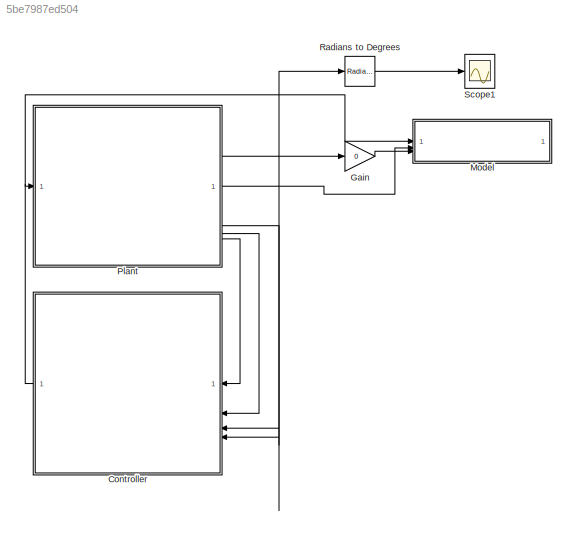
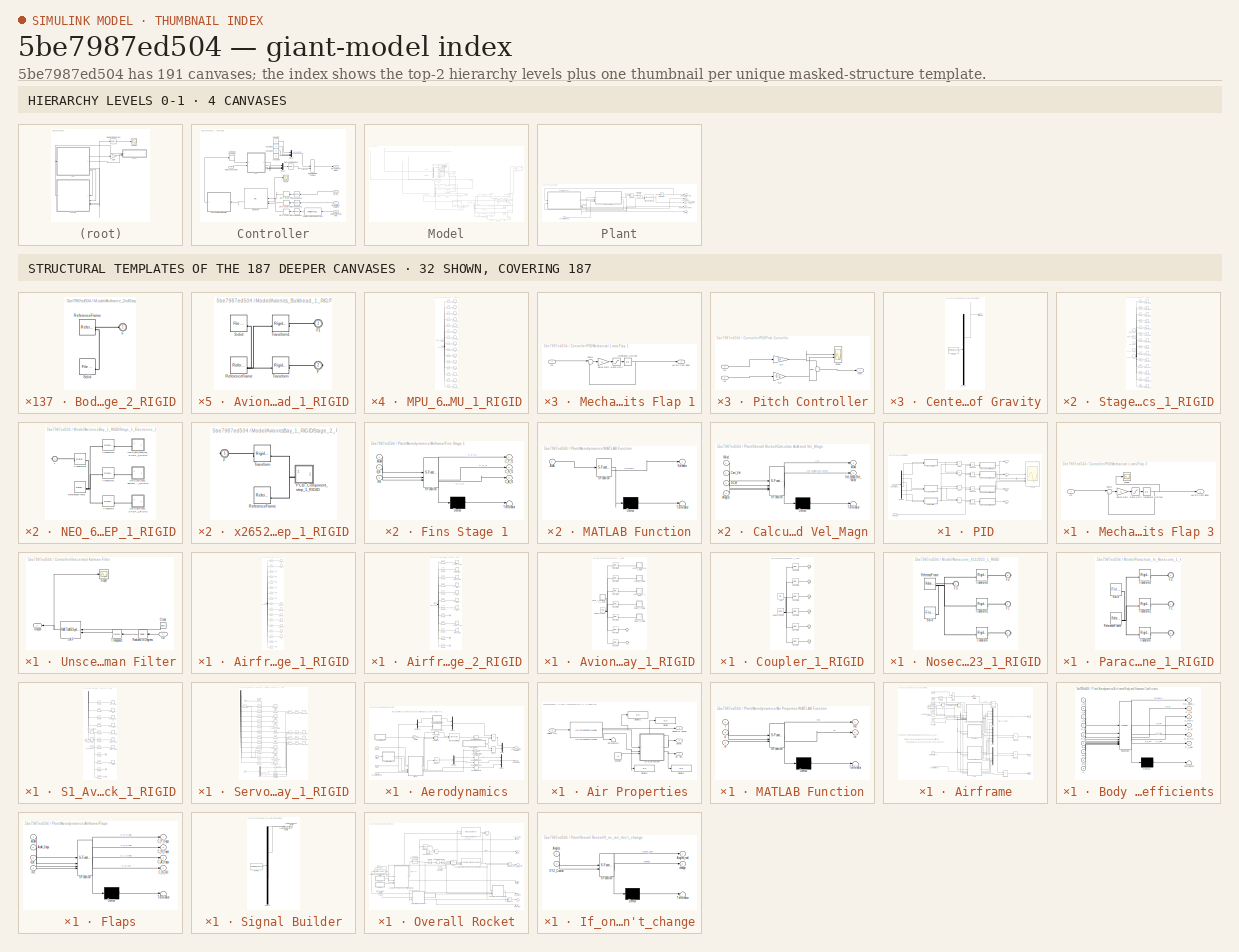
[diagram: thumbnail index - top-2 hierarchy levels (4 canvases) + 32 structural-template representatives of the remaining 187 canvases]
MODEL slx_5be7987ed504
KIND model
CONFIG AbsTol = auto
CONFIG EnableMultiTasking = off
CONFIG FixedStep = auto
CONFIG MaxStep = auto
CONFIG MinStep = auto
CONFIG RelTol = auto
CONFIG SampleTimeConstraint = Unconstrained
CONFIG SolverName = VariableStepAuto
CONFIG StartTime = 0.0
CONFIG StopTime = 5
WORKSPACE source: external: MATLAB File  (data not in archive)
BLOCK [SubSystem] Controller
BLOCK [Inport] Controller/Angles Pitch, Yaw, Roll
  NameLocation = top
  Port = 4
BLOCK [ComplexToRealImag] Controller/Complex to Real-Imag
  Output = Real
BLOCK [Constant] Controller/Constant
  Value = 0
BLOCK [Constant] Controller/Constant1
  Value = 0
BLOCK [Constant] Controller/Constant2
  Value = 0
BLOCK [Constant] Controller/Constant3
  Value = 0
BLOCK [Reference] Controller/Degrees to Radians  REF=simulink_extras/Transformations/Degrees to
Radians
  SourceBlock = simulink_extras/Transformations/Degrees to\nRadians
  SourceType = DegreesToRadians
BLOCK [ManualSwitch] Controller/Double Click to Toggle2
  CurrentSetting = 0
BLOCK [Outport] Controller/Fin Angle from Body
BLOCK [Inport] Controller/Inertial
  NameLocation = top
BLOCK [Reference] Controller/MPU 6050  REF=mspsensorlib/IMU
  NameLocation = top
  SourceBlock = mspsensorlib/IMU
  SourceType = fusion.simulink.imuSensor
BLOCK [Mux] Controller/Mux2
  DisplayOption = bar
BLOCK [Mux] Controller/Mux3
  DisplayOption = bar
BLOCK [Inport] Controller/Not on Launch Rail
  Port = 2
BLOCK [SubSystem] Controller/PID
BLOCK [Sum] Controller/PID/Add
  IconShape = rectangular
  Inputs = +-
BLOCK [Sum] Controller/PID/Add1
  IconShape = rectangular
BLOCK [Sum] Controller/PID/Add2
  IconShape = rectangular
BLOCK [Sum] Controller/PID/Add3
  IconShape = rectangular
  Inputs = +-
BLOCK [Inport] Controller/PID/Change
  Port = 2
BLOCK [Demux] Controller/PID/Demux
  Outputs = 6
BLOCK [Outport] Controller/PID/Fin 1
BLOCK [Outport] Controller/PID/Fin 2
  Port = 2
BLOCK [Outport] Controller/PID/Fin 3
  Port = 3
BLOCK [Outport] Controller/PID/Fin 4
  Port = 4
BLOCK [SubSystem] Controller/PID/Mechanical Limits Flap 1
BLOCK [Outport] Controller/PID/Mechanical Limits Flap 1/AoA Fin from Body
BLOCK [Inport] Controller/PID/Mechanical Limits Flap 1/In1
BLOCK [Integrator] Controller/PID/Mechanical Limits Flap 1/Integrator Limited
  LimitOutput = on
  LowerSaturationLimit = -30
  UpperSaturationLimit = 30
BLOCK [Saturate] Controller/PID/Mechanical Limits Flap 1/Rate Limit
  LowerLimit = -857.14
  UpperLimit = 857.14
BLOCK [Gain] Controller/PID/Mechanical Limits Flap 1/Servo Gain
  Gain = 6
BLOCK [Sum] Controller/PID/Mechanical Limits Flap 1/Sum2
  Inputs = |+-
BLOCK [SubSystem] Controller/PID/Mechanical Limits Flap 2
BLOCK [Outport] Controller/PID/Mechanical Limits Flap 2/AoA Fin from Body
BLOCK [Inport] Controller/PID/Mechanical Limits Flap 2/In1
BLOCK [Integrator] Controller/PID/Mechanical Limits Flap 2/Integrator Limited
  LimitOutput = on
  LowerSaturationLimit = -30
  UpperSaturationLimit = 30
BLOCK [Saturate] Controller/PID/Mechanical Limits Flap 2/Rate Limit
  LowerLimit = -857.14
  UpperLimit = 857.14
BLOCK [Gain] Controller/PID/Mechanical Limits Flap 2/Servo Gain
  Gain = 6
BLOCK [Sum] Controller/PID/Mechanical Limits Flap 2/Sum2
  Inputs = |+-
BLOCK [SubSystem] Controller/PID/Mechanical Limits Flap 3
BLOCK [Outport] Controller/PID/Mechanical Limits Flap 3/AoA Fin from Body
BLOCK [Inport] Controller/PID/Mechanical Limits Flap 3/In1
BLOCK [Integrator] Controller/PID/Mechanical Limits Flap 3/Integrator Limited
  LimitOutput = on
  LowerSaturationLimit = -30
  UpperSaturationLimit = 30
BLOCK [Saturate] Controller/PID/Mechanical Limits Flap 3/Rate Limit
  LowerLimit = -857.14
  UpperLimit = 857.14
BLOCK [Scope] Controller/PID/Mechanical Limits Flap 3/Scope
  Floating = off
  NumInputPorts = 1
  ScopeSpecificationString = Simulink.scopes.TimeScopeBlockCfg('CurrentConfiguration', extmgr.ConfigurationSet(extmgr.Configuration('Core','General UI',true),extmgr.Configuration('Core','Source UI',true),extmgr.Configuration('Sources','WiredSimulink',true,'DataLoggingVariableName','ScopeData4'),extmgr.Configuration('Visuals','Time Domain',true,'SerializedDisplays',{struct('MinYLimReal','-1.875','MaxYLimReal','16.875','YLabelR...<+1369ch>
BLOCK [Gain] Controller/PID/Mechanical Limits Flap 3/Servo Gain
  Gain = 6
BLOCK [Sum] Controller/PID/Mechanical Limits Flap 3/Sum2
  Inputs = |+-
BLOCK [SubSystem] Controller/PID/Mechanical Limits Flap 4
BLOCK [Outport] Controller/PID/Mechanical Limits Flap 4/AoA Fin from Body
BLOCK [Inport] Controller/PID/Mechanical Limits Flap 4/In1
BLOCK [Integrator] Controller/PID/Mechanical Limits Flap 4/Integrator Limited
  LimitOutput = on
  LowerSaturationLimit = -30
  UpperSaturationLimit = 30
BLOCK [Saturate] Controller/PID/Mechanical Limits Flap 4/Rate Limit
  LowerLimit = -857.14
  UpperLimit = 857.14
BLOCK [Gain] Controller/PID/Mechanical Limits Flap 4/Servo Gain
  Gain = 6
BLOCK [Sum] Controller/PID/Mechanical Limits Flap 4/Sum2
  Inputs = |+-
BLOCK [SubSystem] Controller/PID/Pitch Controller
BLOCK [Inport] Controller/PID/Pitch Controller/In1
BLOCK [Inport] Controller/PID/Pitch Controller/In2
  Port = 2
BLOCK [Gain] Controller/PID/Pitch Controller/K_D
  Gain = 0.5
BLOCK [Gain] Controller/PID/Pitch Controller/K_P
  Gain = 1.5
BLOCK [Outport] Controller/PID/Pitch Controller/Out1
BLOCK [Scope] Controller/PID/Pitch Controller/Scope
  Floating = off
  NumInputPorts = 2
  ScopeSpecificationString = Simulink.scopes.TimeScopeBlockCfg('CurrentConfiguration', extmgr.ConfigurationSet(extmgr.Configuration('Core','General UI',true),extmgr.Configuration('Core','Source UI',true),extmgr.Configuration('Sources','WiredSimulink',true,'DataLoggingVariableName','ScopeData4'),extmgr.Configuration('Visuals','Time Domain',true,'SerializedDisplays',{struct('MinYLimReal','-106.07891','MaxYLimReal','69.28547','Y...<+1743ch>
BLOCK [Sum] Controller/PID/Pitch Controller/Sum
BLOCK [Product] Controller/PID/Product10
BLOCK [Product] Controller/PID/Product11
BLOCK [Product] Controller/PID/Product8
BLOCK [Product] Controller/PID/Product9
BLOCK [SubSystem] Controller/PID/Roll Controller
BLOCK [Inport] Controller/PID/Roll Controller/In2
BLOCK [Inport] Controller/PID/Roll Controller/In3
  Port = 2
BLOCK [Gain] Controller/PID/Roll Controller/K_D
  Gain = -.007
BLOCK [Gain] Controller/PID/Roll Controller/K_P
  Gain = -0.02
BLOCK [Outport] Controller/PID/Roll Controller/Out1
BLOCK [Scope] Controller/PID/Roll Controller/Scope
  Floating = off
  NumInputPorts = 4
  ScopeSpecificationString = Simulink.scopes.TimeScopeBlockCfg('CurrentConfiguration', extmgr.ConfigurationSet(extmgr.Configuration('Core','General UI',true),extmgr.Configuration('Core','Source UI',true),extmgr.Configuration('Sources','WiredSimulink',true,'DataLoggingVariableName','ScopeData4'),extmgr.Configuration('Visuals','Time Domain',true,'SerializedDisplays',{struct('MinYLimReal','-111.49637','MaxYLimReal','94.27302','Y...<+1780ch>
BLOCK [Sum] Controller/PID/Roll Controller/Sum
  Inputs = ++++
BLOCK [Scope] Controller/PID/Scope
  Floating = off
  NumInputPorts = 4
  ScopeSpecificationString = Simulink.scopes.TimeScopeBlockCfg('CurrentConfiguration', extmgr.ConfigurationSet(extmgr.Configuration('Core','General UI',true),extmgr.Configuration('Core','Source UI',true),extmgr.Configuration('Sources','WiredSimulink',true,'DataLoggingVariableName','ScopeData1'),extmgr.Configuration('Visuals','Time Domain',true,'SerializedDisplays',{struct('MinYLimReal','-37.5','MaxYLimReal','37.5','YLabelReal...<+1498ch>
BLOCK [Inport] Controller/PID/UKF Output
BLOCK [SubSystem] Controller/PID/Yaw Controller
BLOCK [Inport] Controller/PID/Yaw Controller/In1
BLOCK [Inport] Controller/PID/Yaw Controller/In2
  Port = 2
BLOCK [Gain] Controller/PID/Yaw Controller/K_D
  Gain = 0.5
BLOCK [Gain] Controller/PID/Yaw Controller/K_P
  Gain = 1.5
BLOCK [Outport] Controller/PID/Yaw Controller/Out1
BLOCK [Scope] Controller/PID/Yaw Controller/Scope
  Floating = off
  NumInputPorts = 4
  ScopeSpecificationString = Simulink.scopes.TimeScopeBlockCfg('CurrentConfiguration', extmgr.ConfigurationSet(extmgr.Configuration('Core','General UI',true),extmgr.Configuration('Core','Source UI',true),extmgr.Configuration('Sources','WiredSimulink',true,'DataLoggingVariableName','ScopeData4'),extmgr.Configuration('Visuals','Time Domain',true,'SerializedDisplays',{struct('MinYLimReal','-0.2233','MaxYLimReal','0.24185','YLabe...<+1768ch>
BLOCK [Sum] Controller/PID/Yaw Controller/Sum
  Inputs = ++++
BLOCK [Inport] Controller/Rad. Vel Pitch, Yaw, Roll
  NameLocation = top
  Port = 3
BLOCK [Reference] Controller/Rotation Angles to Quaternions  REF=sharedtransform/Rotation Angles to Quaternions
  AttributesFormatString = Rotation Order: %<rotationOrder>
  LibrarySourceBlock = aerolibtransform2/Rotation Angles to Quaternions
  NameLocation = top
  SourceBlock = sharedtransform/Rotation Angles to Quaternions
  SourceType = Ang2Quat
BLOCK [Scope] Controller/Scope
  Floating = off
  NumInputPorts = 1
  ScopeSpecificationString = Simulink.scopes.TimeScopeBlockCfg
BLOCK [Math] Controller/Transpose
  NameLocation = top
  Operator = transpose
BLOCK [Math] Controller/Transpose1
  NameLocation = top
  Operator = transpose
BLOCK [Math] Controller/Transpose2
  NameLocation = top
  Operator = transpose
BLOCK [SubSystem] Controller/Unscented Kalman Filter
  NameLocation = top
BLOCK [Clock] Controller/Unscented Kalman Filter/Clock
  NameLocation = top
BLOCK [Inport] Controller/Unscented Kalman Filter/In2
  NameLocation = top
BLOCK [Outport] Controller/Unscented Kalman Filter/Output
  NameLocation = top
BLOCK [Reference] Controller/Unscented Kalman Filter/Radians to Degrees  REF=simulink_extras/Transformations/Radians
to Degrees
  NameLocation = top
  SourceBlock = simulink_extras/Transformations/Radians\nto Degrees
  SourceType = RadiansToDegrees
BLOCK [Scope] Controller/Unscented Kalman Filter/Scope
  Floating = off
  NumInputPorts = 2
  ScopeSpecificationString = Simulink.scopes.TimeScopeBlockCfg
BLOCK [Math] Controller/Unscented Kalman Filter/Transpose1
  NameLocation = top
  Operator = transpose
BLOCK [MATLABSystem] Controller/Unscented Kalman Filter/UKF
  MaskDisplay = disp('UKF');\nport_label('input',1,'time');\nport_label('input',2,'z');\nport_label('output',1,'y');\nport_label('output',2,'P');
  MaskType = UKF
  NameLocation = top
  Q_ = 0.1
  R_ = 0.1
  SimulateUsing = Code generation
  System = UKF
  alfa = 0.001
  beta = 2.0
  kappa = 0.0
  x_0 = 0
BLOCK [ZeroOrderHold] Controller/Zero-Order Hold
  NameLocation = top
  SampleTime = 0.001
BLOCK [ZeroOrderHold] Controller/Zero-Order Hold1
  NameLocation = top
  SampleTime = 0.001
BLOCK [ZeroOrderHold] Controller/Zero-Order Hold2
  NameLocation = top
  SampleTime = 0.001
BLOCK [Gain] Gain
  Gain = 0
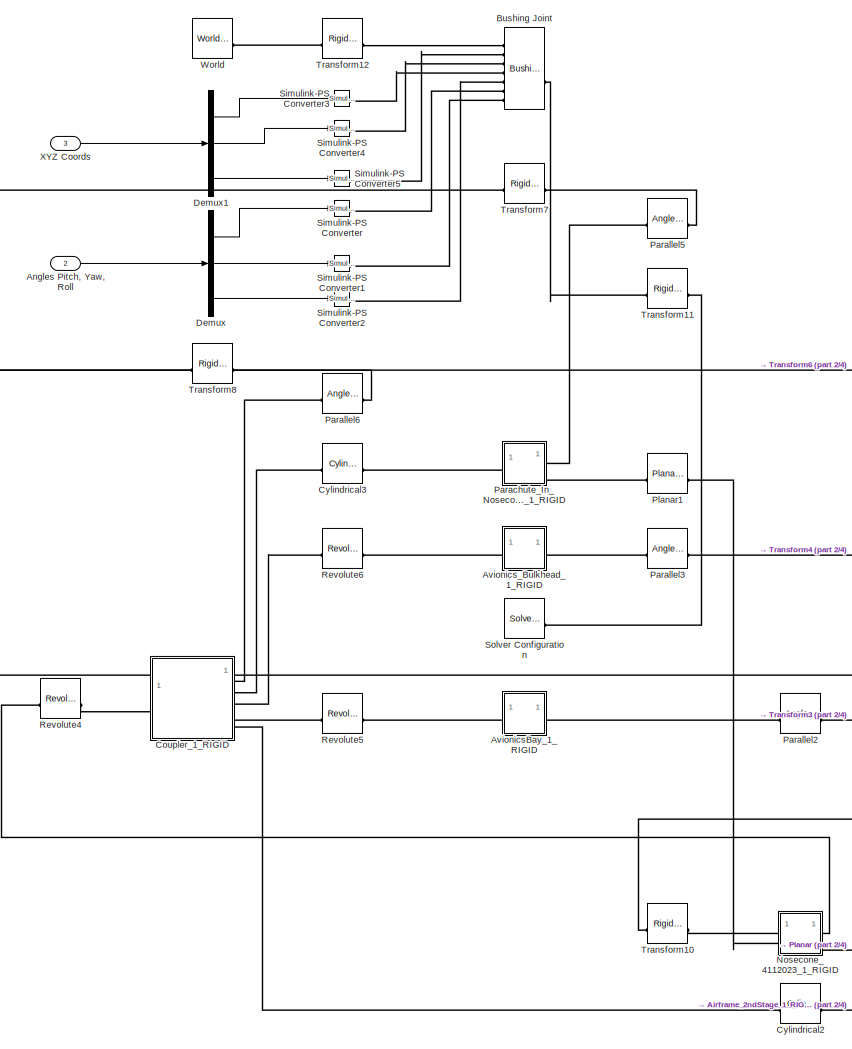
[diagram: Model - part 1/4, central region]
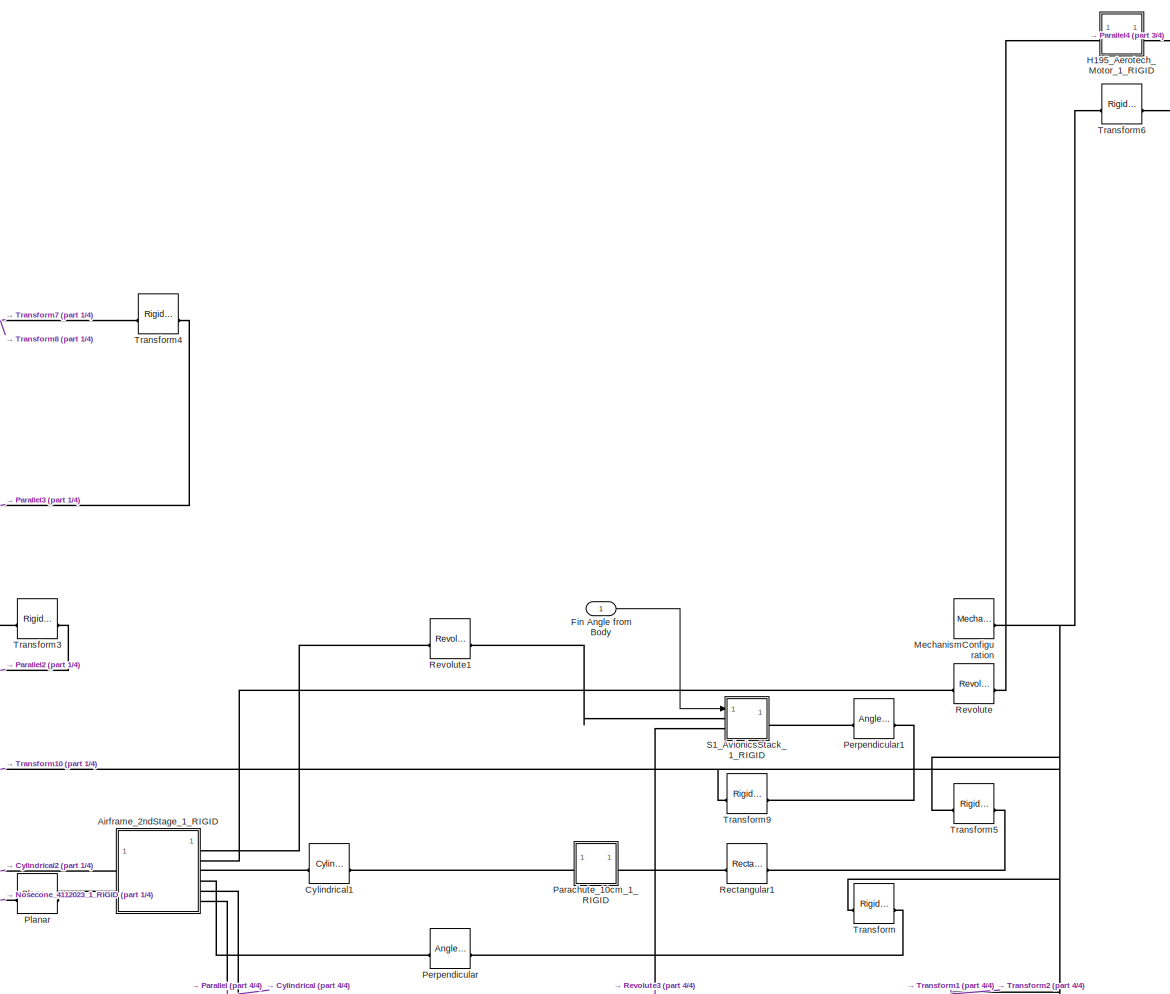
[diagram: Model - part 2/4, middle right region]
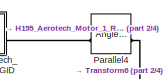
[diagram: Model - part 3/4, top right region]
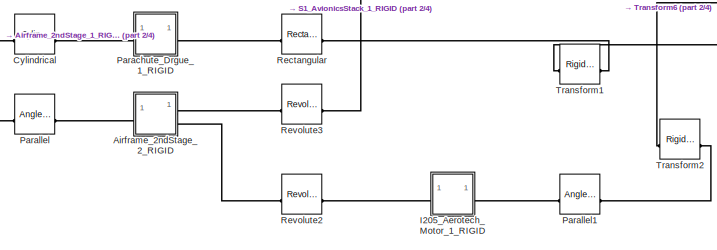
[diagram: Model - part 4/4, bottom right region]
BLOCK [SubSystem] Model
BLOCK [SubSystem] Model/Airframe_2ndStage_1_RIGID
BLOCK [SubSystem] Model/Airframe_2ndStage_1_RIGID/Bodytube_2ndStage_2_RIGID
BLOCK [PMIOPort] Model/Airframe_2ndStage_1_RIGID/Bodytube_2ndStage_2_RIGID/F
  Side = Left
BLOCK [Reference] Model/Airframe_2ndStage_1_RIGID/Bodytube_2ndStage_2_RIGID/ReferenceFrame  REF=sm_lib/Frames and
Transforms/Reference
Frame
  SourceBlock = sm_lib/Frames and\nTransforms/Reference\nFrame
  SourceType = Reference\nFrame
BLOCK [Reference] Model/Airframe_2ndStage_1_RIGID/Bodytube_2ndStage_2_RIGID/Solid  REF=sm_lib/Body Elements/File Solid
  SourceBlock = sm_lib/Body Elements/File Solid
  SourceType = File Solid
BLOCK [SubSystem] Model/Airframe_2ndStage_1_RIGID/CenteringRing_FinSide_1_RIGID
BLOCK [PMIOPort] Model/Airframe_2ndStage_1_RIGID/CenteringRing_FinSide_1_RIGID/F
  Side = Left
BLOCK [Reference] Model/Airframe_2ndStage_1_RIGID/CenteringRing_FinSide_1_RIGID/ReferenceFrame  REF=sm_lib/Frames and
Transforms/Reference
Frame
  SourceBlock = sm_lib/Frames and\nTransforms/Reference\nFrame
  SourceType = Reference\nFrame
BLOCK [Reference] Model/Airframe_2ndStage_1_RIGID/CenteringRing_FinSide_1_RIGID/Solid  REF=sm_lib/Body Elements/File Solid
  SourceBlock = sm_lib/Body Elements/File Solid
  SourceType = File Solid
BLOCK [SubSystem] Model/Airframe_2ndStage_1_RIGID/CenteringRing_I_Bolt_1_RIGID
BLOCK [PMIOPort] Model/Airframe_2ndStage_1_RIGID/CenteringRing_I_Bolt_1_RIGID/F
  Side = Left
BLOCK [Reference] Model/Airframe_2ndStage_1_RIGID/CenteringRing_I_Bolt_1_RIGID/ReferenceFrame  REF=sm_lib/Frames and
Transforms/Reference
Frame
  SourceBlock = sm_lib/Frames and\nTransforms/Reference\nFrame
  SourceType = Reference\nFrame
BLOCK [Reference] Model/Airframe_2ndStage_1_RIGID/CenteringRing_I_Bolt_1_RIGID/Solid  REF=sm_lib/Body Elements/File Solid
  SourceBlock = sm_lib/Body Elements/File Solid
  SourceType = File Solid
BLOCK [SubSystem] Model/Airframe_2ndStage_1_RIGID/CenteringRing_Simple_1_RIGID
BLOCK [PMIOPort] Model/Airframe_2ndStage_1_RIGID/CenteringRing_Simple_1_RIGID/F
  Side = Left
BLOCK [Reference] Model/Airframe_2ndStage_1_RIGID/CenteringRing_Simple_1_RIGID/ReferenceFrame  REF=sm_lib/Frames and
Transforms/Reference
Frame
  SourceBlock = sm_lib/Frames and\nTransforms/Reference\nFrame
  SourceType = Reference\nFrame
BLOCK [Reference] Model/Airframe_2ndStage_1_RIGID/CenteringRing_Simple_1_RIGID/Solid  REF=sm_lib/Body Elements/File Solid
  SourceBlock = sm_lib/Body Elements/File Solid
  SourceType = File Solid
BLOCK [PMIOPort] Model/Airframe_2ndStage_1_RIGID/F
  Port = 8
  Side = Right
BLOCK [PMIOPort] Model/Airframe_2ndStage_1_RIGID/F1
  Port = 7
  Side = Right
BLOCK [PMIOPort] Model/Airframe_2ndStage_1_RIGID/F2
  Port = 2
  Side = Left
BLOCK [PMIOPort] Model/Airframe_2ndStage_1_RIGID/F3
  Port = 6
  Side = Right
BLOCK [PMIOPort] Model/Airframe_2ndStage_1_RIGID/F4
  Port = 5
  Side = Right
BLOCK [PMIOPort] Model/Airframe_2ndStage_1_RIGID/F5
  Port = 4
  Side = Right
BLOCK [PMIOPort] Model/Airframe_2ndStage_1_RIGID/F6
  Side = Left
BLOCK [PMIOPort] Model/Airframe_2ndStage_1_RIGID/F7
  Port = 3
  Side = Right
BLOCK [SubSystem] Model/Airframe_2ndStage_1_RIGID/Fin_Stage2_5_RIGID
BLOCK [PMIOPort] Model/Airframe_2ndStage_1_RIGID/Fin_Stage2_5_RIGID/F
  Side = Left
BLOCK [Reference] Model/Airframe_2ndStage_1_RIGID/Fin_Stage2_5_RIGID/ReferenceFrame  REF=sm_lib/Frames and
Transforms/Reference
Frame
  SourceBlock = sm_lib/Frames and\nTransforms/Reference\nFrame
  SourceType = Reference\nFrame
BLOCK [Reference] Model/Airframe_2ndStage_1_RIGID/Fin_Stage2_5_RIGID/Solid  REF=sm_lib/Body Elements/File Solid
  SourceBlock = sm_lib/Body Elements/File Solid
  SourceType = File Solid
BLOCK [SubSystem] Model/Airframe_2ndStage_1_RIGID/Fin_Stage2_6_RIGID
BLOCK [PMIOPort] Model/Airframe_2ndStage_1_RIGID/Fin_Stage2_6_RIGID/F
  Side = Left
BLOCK [Reference] Model/Airframe_2ndStage_1_RIGID/Fin_Stage2_6_RIGID/ReferenceFrame  REF=sm_lib/Frames and
Transforms/Reference
Frame
  SourceBlock = sm_lib/Frames and\nTransforms/Reference\nFrame
  SourceType = Reference\nFrame
BLOCK [Reference] Model/Airframe_2ndStage_1_RIGID/Fin_Stage2_6_RIGID/Solid  REF=sm_lib/Body Elements/File Solid
  SourceBlock = sm_lib/Body Elements/File Solid
  SourceType = File Solid
BLOCK [SubSystem] Model/Airframe_2ndStage_1_RIGID/Fin_Stage2_7_RIGID
BLOCK [PMIOPort] Model/Airframe_2ndStage_1_RIGID/Fin_Stage2_7_RIGID/F
  Side = Left
BLOCK [Reference] Model/Airframe_2ndStage_1_RIGID/Fin_Stage2_7_RIGID/ReferenceFrame  REF=sm_lib/Frames and
Transforms/Reference
Frame
  SourceBlock = sm_lib/Frames and\nTransforms/Reference\nFrame
  SourceType = Reference\nFrame
BLOCK [Reference] Model/Airframe_2ndStage_1_RIGID/Fin_Stage2_7_RIGID/Solid  REF=sm_lib/Body Elements/File Solid
  SourceBlock = sm_lib/Body Elements/File Solid
  SourceType = File Solid
BLOCK [SubSystem] Model/Airframe_2ndStage_1_RIGID/Fin_Stage2_8_RIGID
BLOCK [PMIOPort] Model/Airframe_2ndStage_1_RIGID/Fin_Stage2_8_RIGID/F
  Side = Left
BLOCK [Reference] Model/Airframe_2ndStage_1_RIGID/Fin_Stage2_8_RIGID/ReferenceFrame  REF=sm_lib/Frames and
Transforms/Reference
Frame
  SourceBlock = sm_lib/Frames and\nTransforms/Reference\nFrame
  SourceType = Reference\nFrame
BLOCK [Reference] Model/Airframe_2ndStage_1_RIGID/Fin_Stage2_8_RIGID/Solid  REF=sm_lib/Body Elements/File Solid
  SourceBlock = sm_lib/Body Elements/File Solid
  SourceType = File Solid
BLOCK [SubSystem] Model/Airframe_2ndStage_1_RIGID/Motormount_2ndStage_1_RIGID
BLOCK [PMIOPort] Model/Airframe_2ndStage_1_RIGID/Motormount_2ndStage_1_RIGID/F
  Side = Left
BLOCK [Reference] Model/Airframe_2ndStage_1_RIGID/Motormount_2ndStage_1_RIGID/ReferenceFrame  REF=sm_lib/Frames and
Transforms/Reference
Frame
  SourceBlock = sm_lib/Frames and\nTransforms/Reference\nFrame
  SourceType = Reference\nFrame
BLOCK [Reference] Model/Airframe_2ndStage_1_RIGID/Motormount_2ndStage_1_RIGID/Solid  REF=sm_lib/Body Elements/File Solid
  SourceBlock = sm_lib/Body Elements/File Solid
  SourceType = File Solid
BLOCK [Reference] Model/Airframe_2ndStage_1_RIGID/ReferenceFrame  REF=sm_lib/Frames and
Transforms/Reference
Frame
  SourceBlock = sm_lib/Frames and\nTransforms/Reference\nFrame
  SourceType = Reference\nFrame
BLOCK [Reference] Model/Airframe_2ndStage_1_RIGID/Transform  REF=sm_lib/Frames and
Transforms/Rigid
Transform
  SourceBlock = sm_lib/Frames and\nTransforms/Rigid\nTransform
  SourceType = Rigid\nTransform
BLOCK [Reference] Model/Airframe_2ndStage_1_RIGID/Transform1  REF=sm_lib/Frames and
Transforms/Rigid
Transform
  SourceBlock = sm_lib/Frames and\nTransforms/Rigid\nTransform
  SourceType = Rigid\nTransform
BLOCK [Reference] Model/Airframe_2ndStage_1_RIGID/Transform10  REF=sm_lib/Frames and
Transforms/Rigid
Transform
  SourceBlock = sm_lib/Frames and\nTransforms/Rigid\nTransform
  SourceType = Rigid\nTransform
BLOCK [Reference] Model/Airframe_2ndStage_1_RIGID/Transform11  REF=sm_lib/Frames and
Transforms/Rigid
Transform
  SourceBlock = sm_lib/Frames and\nTransforms/Rigid\nTransform
  SourceType = Rigid\nTransform
BLOCK [Reference] Model/Airframe_2ndStage_1_RIGID/Transform12  REF=sm_lib/Frames and
Transforms/Rigid
Transform
  SourceBlock = sm_lib/Frames and\nTransforms/Rigid\nTransform
  SourceType = Rigid\nTransform
BLOCK [Reference] Model/Airframe_2ndStage_1_RIGID/Transform13  REF=sm_lib/Frames and
Transforms/Rigid
Transform
  SourceBlock = sm_lib/Frames and\nTransforms/Rigid\nTransform
  SourceType = Rigid\nTransform
BLOCK [Reference] Model/Airframe_2ndStage_1_RIGID/Transform14  REF=sm_lib/Frames and
Transforms/Rigid
Transform
  SourceBlock = sm_lib/Frames and\nTransforms/Rigid\nTransform
  SourceType = Rigid\nTransform
BLOCK [Reference] Model/Airframe_2ndStage_1_RIGID/Transform15  REF=sm_lib/Frames and
Transforms/Rigid
Transform
  SourceBlock = sm_lib/Frames and\nTransforms/Rigid\nTransform
  SourceType = Rigid\nTransform
BLOCK [Reference] Model/Airframe_2ndStage_1_RIGID/Transform16  REF=sm_lib/Frames and
Transforms/Rigid
Transform
  SourceBlock = sm_lib/Frames and\nTransforms/Rigid\nTransform
  SourceType = Rigid\nTransform
BLOCK [Reference] Model/Airframe_2ndStage_1_RIGID/Transform2  REF=sm_lib/Frames and
Transforms/Rigid
Transform
  SourceBlock = sm_lib/Frames and\nTransforms/Rigid\nTransform
  SourceType = Rigid\nTransform
BLOCK [Reference] Model/Airframe_2ndStage_1_RIGID/Transform3  REF=sm_lib/Frames and
Transforms/Rigid
Transform
  SourceBlock = sm_lib/Frames and\nTransforms/Rigid\nTransform
  SourceType = Rigid\nTransform
BLOCK [Reference] Model/Airframe_2ndStage_1_RIGID/Transform4  REF=sm_lib/Frames and
Transforms/Rigid
Transform
  SourceBlock = sm_lib/Frames and\nTransforms/Rigid\nTransform
  SourceType = Rigid\nTransform
BLOCK [Reference] Model/Airframe_2ndStage_1_RIGID/Transform5  REF=sm_lib/Frames and
Transforms/Rigid
Transform
  SourceBlock = sm_lib/Frames and\nTransforms/Rigid\nTransform
  SourceType = Rigid\nTransform
BLOCK [Reference] Model/Airframe_2ndStage_1_RIGID/Transform6  REF=sm_lib/Frames and
Transforms/Rigid
Transform
  SourceBlock = sm_lib/Frames and\nTransforms/Rigid\nTransform
  SourceType = Rigid\nTransform
BLOCK [Reference] Model/Airframe_2ndStage_1_RIGID/Transform7  REF=sm_lib/Frames and
Transforms/Rigid
Transform
  SourceBlock = sm_lib/Frames and\nTransforms/Rigid\nTransform
  SourceType = Rigid\nTransform
BLOCK [Reference] Model/Airframe_2ndStage_1_RIGID/Transform8  REF=sm_lib/Frames and
Transforms/Rigid
Transform
  SourceBlock = sm_lib/Frames and\nTransforms/Rigid\nTransform
  SourceType = Rigid\nTransform
BLOCK [Reference] Model/Airframe_2ndStage_1_RIGID/Transform9  REF=sm_lib/Frames and
Transforms/Rigid
Transform
  SourceBlock = sm_lib/Frames and\nTransforms/Rigid\nTransform
  SourceType = Rigid\nTransform
BLOCK [SubSystem] Model/Airframe_2ndStage_2_RIGID
BLOCK [SubSystem] Model/Airframe_2ndStage_2_RIGID/Bodytube_2ndStage_2_RIGID
BLOCK [PMIOPort] Model/Airframe_2ndStage_2_RIGID/Bodytube_2ndStage_2_RIGID/F
  Side = Left
BLOCK [Reference] Model/Airframe_2ndStage_2_RIGID/Bodytube_2ndStage_2_RIGID/ReferenceFrame  REF=sm_lib/Frames and
Transforms/Reference
Frame
  SourceBlock = sm_lib/Frames and\nTransforms/Reference\nFrame
  SourceType = Reference\nFrame
BLOCK [Reference] Model/Airframe_2ndStage_2_RIGID/Bodytube_2ndStage_2_RIGID/Solid  REF=sm_lib/Body Elements/File Solid
  SourceBlock = sm_lib/Body Elements/File Solid
  SourceType = File Solid
BLOCK [SubSystem] Model/Airframe_2ndStage_2_RIGID/CenteringRing_FinSide_1_RIGID
BLOCK [PMIOPort] Model/Airframe_2ndStage_2_RIGID/CenteringRing_FinSide_1_RIGID/F
  Side = Left
BLOCK [Reference] Model/Airframe_2ndStage_2_RIGID/CenteringRing_FinSide_1_RIGID/ReferenceFrame  REF=sm_lib/Frames and
Transforms/Reference
Frame
  SourceBlock = sm_lib/Frames and\nTransforms/Reference\nFrame
  SourceType = Reference\nFrame
BLOCK [Reference] Model/Airframe_2ndStage_2_RIGID/CenteringRing_FinSide_1_RIGID/Solid  REF=sm_lib/Body Elements/File Solid
  SourceBlock = sm_lib/Body Elements/File Solid
  SourceType = File Solid
BLOCK [SubSystem] Model/Airframe_2ndStage_2_RIGID/CenteringRing_I_Bolt_1_RIGID
BLOCK [PMIOPort] Model/Airframe_2ndStage_2_RIGID/CenteringRing_I_Bolt_1_RIGID/F
  Side = Left
BLOCK [Reference] Model/Airframe_2ndStage_2_RIGID/CenteringRing_I_Bolt_1_RIGID/ReferenceFrame  REF=sm_lib/Frames and
Transforms/Reference
Frame
  SourceBlock = sm_lib/Frames and\nTransforms/Reference\nFrame
  SourceType = Reference\nFrame
BLOCK [Reference] Model/Airframe_2ndStage_2_RIGID/CenteringRing_I_Bolt_1_RIGID/Solid  REF=sm_lib/Body Elements/File Solid
  SourceBlock = sm_lib/Body Elements/File Solid
  SourceType = File Solid
BLOCK [SubSystem] Model/Airframe_2ndStage_2_RIGID/CenteringRing_Simple_1_RIGID
BLOCK [PMIOPort] Model/Airframe_2ndStage_2_RIGID/CenteringRing_Simple_1_RIGID/F
  Side = Left
BLOCK [Reference] Model/Airframe_2ndStage_2_RIGID/CenteringRing_Simple_1_RIGID/ReferenceFrame  REF=sm_lib/Frames and
Transforms/Reference
Frame
  SourceBlock = sm_lib/Frames and\nTransforms/Reference\nFrame
  SourceType = Reference\nFrame
BLOCK [Reference] Model/Airframe_2ndStage_2_RIGID/CenteringRing_Simple_1_RIGID/Solid  REF=sm_lib/Body Elements/File Solid
  SourceBlock = sm_lib/Body Elements/File Solid
  SourceType = File Solid
BLOCK [PMIOPort] Model/Airframe_2ndStage_2_RIGID/F
  Side = Left
BLOCK [PMIOPort] Model/Airframe_2ndStage_2_RIGID/F1
  Port = 3
  Side = Right
BLOCK [PMIOPort] Model/Airframe_2ndStage_2_RIGID/F2
  Port = 2
  Side = Right
BLOCK [SubSystem] Model/Airframe_2ndStage_2_RIGID/Fin_Stage2_5_RIGID
BLOCK [PMIOPort] Model/Airframe_2ndStage_2_RIGID/Fin_Stage2_5_RIGID/F
  Side = Left
BLOCK [Reference] Model/Airframe_2ndStage_2_RIGID/Fin_Stage2_5_RIGID/ReferenceFrame  REF=sm_lib/Frames and
Transforms/Reference
Frame
  SourceBlock = sm_lib/Frames and\nTransforms/Reference\nFrame
  SourceType = Reference\nFrame
BLOCK [Reference] Model/Airframe_2ndStage_2_RIGID/Fin_Stage2_5_RIGID/Solid  REF=sm_lib/Body Elements/File Solid
  SourceBlock = sm_lib/Body Elements/File Solid
  SourceType = File Solid
BLOCK [SubSystem] Model/Airframe_2ndStage_2_RIGID/Fin_Stage2_6_RIGID
BLOCK [PMIOPort] Model/Airframe_2ndStage_2_RIGID/Fin_Stage2_6_RIGID/F
  Side = Left
BLOCK [Reference] Model/Airframe_2ndStage_2_RIGID/Fin_Stage2_6_RIGID/ReferenceFrame  REF=sm_lib/Frames and
Transforms/Reference
Frame
  SourceBlock = sm_lib/Frames and\nTransforms/Reference\nFrame
  SourceType = Reference\nFrame
BLOCK [Reference] Model/Airframe_2ndStage_2_RIGID/Fin_Stage2_6_RIGID/Solid  REF=sm_lib/Body Elements/File Solid
  SourceBlock = sm_lib/Body Elements/File Solid
  SourceType = File Solid
BLOCK [SubSystem] Model/Airframe_2ndStage_2_RIGID/Fin_Stage2_7_RIGID
BLOCK [PMIOPort] Model/Airframe_2ndStage_2_RIGID/Fin_Stage2_7_RIGID/F
  Side = Left
BLOCK [Reference] Model/Airframe_2ndStage_2_RIGID/Fin_Stage2_7_RIGID/ReferenceFrame  REF=sm_lib/Frames and
Transforms/Reference
Frame
  SourceBlock = sm_lib/Frames and\nTransforms/Reference\nFrame
  SourceType = Reference\nFrame
BLOCK [Reference] Model/Airframe_2ndStage_2_RIGID/Fin_Stage2_7_RIGID/Solid  REF=sm_lib/Body Elements/File Solid
  SourceBlock = sm_lib/Body Elements/File Solid
  SourceType = File Solid
BLOCK [SubSystem] Model/Airframe_2ndStage_2_RIGID/Fin_Stage2_8_RIGID
BLOCK [PMIOPort] Model/Airframe_2ndStage_2_RIGID/Fin_Stage2_8_RIGID/F
  Side = Left
BLOCK [Reference] Model/Airframe_2ndStage_2_RIGID/Fin_Stage2_8_RIGID/ReferenceFrame  REF=sm_lib/Frames and
Transforms/Reference
Frame
  SourceBlock = sm_lib/Frames and\nTransforms/Reference\nFrame
  SourceType = Reference\nFrame
BLOCK [Reference] Model/Airframe_2ndStage_2_RIGID/Fin_Stage2_8_RIGID/Solid  REF=sm_lib/Body Elements/File Solid
  SourceBlock = sm_lib/Body Elements/File Solid
  SourceType = File Solid
BLOCK [SubSystem] Model/Airframe_2ndStage_2_RIGID/Motormount_2ndStage_1_RIGID
BLOCK [PMIOPort] Model/Airframe_2ndStage_2_RIGID/Motormount_2ndStage_1_RIGID/F
  Side = Left
BLOCK [Reference] Model/Airframe_2ndStage_2_RIGID/Motormount_2ndStage_1_RIGID/ReferenceFrame  REF=sm_lib/Frames and
Transforms/Reference
Frame
  SourceBlock = sm_lib/Frames and\nTransforms/Reference\nFrame
  SourceType = Reference\nFrame
BLOCK [Reference] Model/Airframe_2ndStage_2_RIGID/Motormount_2ndStage_1_RIGID/Solid  REF=sm_lib/Body Elements/File Solid
  SourceBlock = sm_lib/Body Elements/File Solid
  SourceType = File Solid
BLOCK [Reference] Model/Airframe_2ndStage_2_RIGID/ReferenceFrame  REF=sm_lib/Frames and
Transforms/Reference
Frame
  SourceBlock = sm_lib/Frames and\nTransforms/Reference\nFrame
  SourceType = Reference\nFrame
BLOCK [Reference] Model/Airframe_2ndStage_2_RIGID/Transform  REF=sm_lib/Frames and
Transforms/Rigid
Transform
  SourceBlock = sm_lib/Frames and\nTransforms/Rigid\nTransform
  SourceType = Rigid\nTransform
BLOCK [Reference] Model/Airframe_2ndStage_2_RIGID/Transform1  REF=sm_lib/Frames and
Transforms/Rigid
Transform
  SourceBlock = sm_lib/Frames and\nTransforms/Rigid\nTransform
  SourceType = Rigid\nTransform
BLOCK [Reference] Model/Airframe_2ndStage_2_RIGID/Transform10  REF=sm_lib/Frames and
Transforms/Rigid
Transform
  SourceBlock = sm_lib/Frames and\nTransforms/Rigid\nTransform
  SourceType = Rigid\nTransform
BLOCK [Reference] Model/Airframe_2ndStage_2_RIGID/Transform11  REF=sm_lib/Frames and
Transforms/Rigid
Transform
  SourceBlock = sm_lib/Frames and\nTransforms/Rigid\nTransform
  SourceType = Rigid\nTransform
BLOCK [Reference] Model/Airframe_2ndStage_2_RIGID/Transform2  REF=sm_lib/Frames and
Transforms/Rigid
Transform
  SourceBlock = sm_lib/Frames and\nTransforms/Rigid\nTransform
  SourceType = Rigid\nTransform
BLOCK [Reference] Model/Airframe_2ndStage_2_RIGID/Transform3  REF=sm_lib/Frames and
Transforms/Rigid
Transform
  SourceBlock = sm_lib/Frames and\nTransforms/Rigid\nTransform
  SourceType = Rigid\nTransform
BLOCK [Reference] Model/Airframe_2ndStage_2_RIGID/Transform4  REF=sm_lib/Frames and
Transforms/Rigid
Transform
  SourceBlock = sm_lib/Frames and\nTransforms/Rigid\nTransform
  SourceType = Rigid\nTransform
BLOCK [Reference] Model/Airframe_2ndStage_2_RIGID/Transform5  REF=sm_lib/Frames and
Transforms/Rigid
Transform
  SourceBlock = sm_lib/Frames and\nTransforms/Rigid\nTransform
  SourceType = Rigid\nTransform
BLOCK [Reference] Model/Airframe_2ndStage_2_RIGID/Transform6  REF=sm_lib/Frames and
Transforms/Rigid
Transform
  SourceBlock = sm_lib/Frames and\nTransforms/Rigid\nTransform
  SourceType = Rigid\nTransform
BLOCK [Reference] Model/Airframe_2ndStage_2_RIGID/Transform7  REF=sm_lib/Frames and
Transforms/Rigid
Transform
  SourceBlock = sm_lib/Frames and\nTransforms/Rigid\nTransform
  SourceType = Rigid\nTransform
BLOCK [Reference] Model/Airframe_2ndStage_2_RIGID/Transform8  REF=sm_lib/Frames and
Transforms/Rigid
Transform
  SourceBlock = sm_lib/Frames and\nTransforms/Rigid\nTransform
  SourceType = Rigid\nTransform
BLOCK [Reference] Model/Airframe_2ndStage_2_RIGID/Transform9  REF=sm_lib/Frames and
Transforms/Rigid
Transform
  SourceBlock = sm_lib/Frames and\nTransforms/Rigid\nTransform
  SourceType = Rigid\nTransform
BLOCK [Inport] Model/Angles Pitch, Yaw, Roll
  Port = 2
BLOCK [SubSystem] Model/AvionicsBay_1_RIGID
BLOCK [SubSystem] Model/AvionicsBay_1_RIGID/Avionics_Bulkhead_1_RIGID
BLOCK [PMIOPort] Model/AvionicsBay_1_RIGID/Avionics_Bulkhead_1_RIGID/F
  Side = Left
BLOCK [Reference] Model/AvionicsBay_1_RIGID/Avionics_Bulkhead_1_RIGID/ReferenceFrame  REF=sm_lib/Frames and
Transforms/Reference
Frame
  SourceBlock = sm_lib/Frames and\nTransforms/Reference\nFrame
  SourceType = Reference\nFrame
BLOCK [Reference] Model/AvionicsBay_1_RIGID/Avionics_Bulkhead_1_RIGID/Solid  REF=sm_lib/Body Elements/File Solid
  SourceBlock = sm_lib/Body Elements/File Solid
  SourceType = File Solid
BLOCK [SubSystem] Model/AvionicsBay_1_RIGID/Avionics_Sled_1_RIGID
BLOCK [PMIOPort] Model/AvionicsBay_1_RIGID/Avionics_Sled_1_RIGID/F
  Side = Left
BLOCK [Reference] Model/AvionicsBay_1_RIGID/Avionics_Sled_1_RIGID/ReferenceFrame  REF=sm_lib/Frames and
Transforms/Reference
Frame
  SourceBlock = sm_lib/Frames and\nTransforms/Reference\nFrame
  SourceType = Reference\nFrame
BLOCK [Reference] Model/AvionicsBay_1_RIGID/Avionics_Sled_1_RIGID/Solid  REF=sm_lib/Body Elements/File Solid
  SourceBlock = sm_lib/Body Elements/File Solid
  SourceType = File Solid
BLOCK [SubSystem] Model/AvionicsBay_1_RIGID/Coupler_1_RIGID
BLOCK [PMIOPort] Model/AvionicsBay_1_RIGID/Coupler_1_RIGID/F
  Side = Left
BLOCK [Reference] Model/AvionicsBay_1_RIGID/Coupler_1_RIGID/ReferenceFrame  REF=sm_lib/Frames and
Transforms/Reference
Frame
  SourceBlock = sm_lib/Frames and\nTransforms/Reference\nFrame
  SourceType = Reference\nFrame
BLOCK [Reference] Model/AvionicsBay_1_RIGID/Coupler_1_RIGID/Solid  REF=sm_lib/Body Elements/File Solid
  SourceBlock = sm_lib/Body Elements/File Solid
  SourceType = File Solid
BLOCK [PMIOPort] Model/AvionicsBay_1_RIGID/F
  Port = 2
  Side = Right
BLOCK [PMIOPort] Model/AvionicsBay_1_RIGID/F1
  Side = Left
BLOCK [Reference] Model/AvionicsBay_1_RIGID/ReferenceFrame  REF=sm_lib/Frames and
Transforms/Reference
Frame
  SourceBlock = sm_lib/Frames and\nTransforms/Reference\nFrame
  SourceType = Reference\nFrame
BLOCK [SubSystem] Model/AvionicsBay_1_RIGID/Stage_2_Electronics_1_RIGID
BLOCK [SubSystem] Model/AvionicsBay_1_RIGID/Stage_2_Electronics_1_RIGID/Arduino_MEGA_shield_1_RIGID
BLOCK [PMIOPort] Model/AvionicsBay_1_RIGID/Stage_2_Electronics_1_RIGID/Arduino_MEGA_shield_1_RIGID/F
  Side = Left
BLOCK [Reference] Model/AvionicsBay_1_RIGID/Stage_2_Electronics_1_RIGID/Arduino_MEGA_shield_1_RIGID/ReferenceFrame  REF=sm_lib/Frames and
Transforms/Reference
Frame
  SourceBlock = sm_lib/Frames and\nTransforms/Reference\nFrame
  SourceType = Reference\nFrame
BLOCK [Reference] Model/AvionicsBay_1_RIGID/Stage_2_Electronics_1_RIGID/Arduino_MEGA_shield_1_RIGID/Solid  REF=sm_lib/Body Elements/File Solid
  SourceBlock = sm_lib/Body Elements/File Solid
  SourceType = File Solid
BLOCK [PMIOPort] Model/AvionicsBay_1_RIGID/Stage_2_Electronics_1_RIGID/F
  Side = Right
BLOCK [SubSystem] Model/AvionicsBay_1_RIGID/Stage_2_Electronics_1_RIGID/MPU_6050_IMU_1_RIGID
BLOCK [SubSystem] Model/AvionicsBay_1_RIGID/Stage_2_Electronics_1_RIGID/MPU_6050_IMU_1_RIGID/Base_1_RIGID
BLOCK [PMIOPort] Model/AvionicsBay_1_RIGID/Stage_2_Electronics_1_RIGID/MPU_6050_IMU_1_RIGID/Base_1_RIGID/F
  Side = Left
BLOCK [Reference] Model/AvionicsBay_1_RIGID/Stage_2_Electronics_1_RIGID/MPU_6050_IMU_1_RIGID/Base_1_RIGID/ReferenceFrame  REF=sm_lib/Frames and
Transforms/Reference
Frame
  SourceBlock = sm_lib/Frames and\nTransforms/Reference\nFrame
  SourceType = Reference\nFrame
BLOCK [Reference] Model/AvionicsBay_1_RIGID/Stage_2_Electronics_1_RIGID/MPU_6050_IMU_1_RIGID/Base_1_RIGID/Solid  REF=sm_lib/Body Elements/File Solid
  SourceBlock = sm_lib/Body Elements/File Solid
  SourceType = File Solid
BLOCK [PMIOPort] Model/AvionicsBay_1_RIGID/Stage_2_Electronics_1_RIGID/MPU_6050_IMU_1_RIGID/F
  Side = Right
BLOCK [Reference] Model/AvionicsBay_1_RIGID/Stage_2_Electronics_1_RIGID/MPU_6050_IMU_1_RIGID/ReferenceFrame  REF=sm_lib/Frames and
Transforms/Reference
Frame
  SourceBlock = sm_lib/Frames and\nTransforms/Reference\nFrame
  SourceType = Reference\nFrame
BLOCK [SubSystem] Model/AvionicsBay_1_RIGID/Stage_2_Electronics_1_RIGID/MPU_6050_IMU_1_RIGID/Resistor_black_1_RIGID
BLOCK [PMIOPort] Model/AvionicsBay_1_RIGID/Stage_2_Electronics_1_RIGID/MPU_6050_IMU_1_RIGID/Resistor_black_1_RIGID/F
  Side = Left
BLOCK [Reference] Model/AvionicsBay_1_RIGID/Stage_2_Electronics_1_RIGID/MPU_6050_IMU_1_RIGID/Resistor_black_1_RIGID/ReferenceFrame  REF=sm_lib/Frames and
Transforms/Reference
Frame
  SourceBlock = sm_lib/Frames and\nTransforms/Reference\nFrame
  SourceType = Reference\nFrame
BLOCK [Reference] Model/AvionicsBay_1_RIGID/Stage_2_Electronics_1_RIGID/MPU_6050_IMU_1_RIGID/Resistor_black_1_RIGID/Solid  REF=sm_lib/Body Elements/File Solid
  SourceBlock = sm_lib/Body Elements/File Solid
  SourceType = File Solid
BLOCK [SubSystem] Model/AvionicsBay_1_RIGID/Stage_2_Electronics_1_RIGID/MPU_6050_IMU_1_RIGID/Resistor_small_3_RIGID
BLOCK [PMIOPort] Model/AvionicsBay_1_RIGID/Stage_2_Electronics_1_RIGID/MPU_6050_IMU_1_RIGID/Resistor_small_3_RIGID/F
  Side = Left
BLOCK [Reference] Model/AvionicsBay_1_RIGID/Stage_2_Electronics_1_RIGID/MPU_6050_IMU_1_RIGID/Resistor_small_3_RIGID/ReferenceFrame  REF=sm_lib/Frames and
Transforms/Reference
Frame
  SourceBlock = sm_lib/Frames and\nTransforms/Reference\nFrame
  SourceType = Reference\nFrame
BLOCK [Reference] Model/AvionicsBay_1_RIGID/Stage_2_Electronics_1_RIGID/MPU_6050_IMU_1_RIGID/Resistor_small_3_RIGID/Solid  REF=sm_lib/Body Elements/File Solid
  SourceBlock = sm_lib/Body Elements/File Solid
  SourceType = File Solid
BLOCK [SubSystem] Model/AvionicsBay_1_RIGID/Stage_2_Electronics_1_RIGID/MPU_6050_IMU_1_RIGID/Resistor_small_4_RIGID
BLOCK [PMIOPort] Model/AvionicsBay_1_RIGID/Stage_2_Electronics_1_RIGID/MPU_6050_IMU_1_RIGID/Resistor_small_4_RIGID/F
  Side = Left
BLOCK [Reference] Model/AvionicsBay_1_RIGID/Stage_2_Electronics_1_RIGID/MPU_6050_IMU_1_RIGID/Resistor_small_4_RIGID/ReferenceFrame  REF=sm_lib/Frames and
Transforms/Reference
Frame
  SourceBlock = sm_lib/Frames and\nTransforms/Reference\nFrame
  SourceType = Reference\nFrame
BLOCK [Reference] Model/AvionicsBay_1_RIGID/Stage_2_Electronics_1_RIGID/MPU_6050_IMU_1_RIGID/Resistor_small_4_RIGID/Solid  REF=sm_lib/Body Elements/File Solid
  SourceBlock = sm_lib/Body Elements/File Solid
  SourceType = File Solid
BLOCK [SubSystem] Model/AvionicsBay_1_RIGID/Stage_2_Electronics_1_RIGID/MPU_6050_IMU_1_RIGID/Resistor_small_5_RIGID
BLOCK [PMIOPort] Model/AvionicsBay_1_RIGID/Stage_2_Electronics_1_RIGID/MPU_6050_IMU_1_RIGID/Resistor_small_5_RIGID/F
  Side = Left
BLOCK [Reference] Model/AvionicsBay_1_RIGID/Stage_2_Electronics_1_RIGID/MPU_6050_IMU_1_RIGID/Resistor_small_5_RIGID/ReferenceFrame  REF=sm_lib/Frames and
Transforms/Reference
Frame
  SourceBlock = sm_lib/Frames and\nTransforms/Reference\nFrame
  SourceType = Reference\nFrame
BLOCK [Reference] Model/AvionicsBay_1_RIGID/Stage_2_Electronics_1_RIGID/MPU_6050_IMU_1_RIGID/Resistor_small_5_RIGID/Solid  REF=sm_lib/Body Elements/File Solid
  SourceBlock = sm_lib/Body Elements/File Solid
  SourceType = File Solid
BLOCK [SubSystem] Model/AvionicsBay_1_RIGID/Stage_2_Electronics_1_RIGID/MPU_6050_IMU_1_RIGID/Resistor_small_6_RIGID
BLOCK [PMIOPort] Model/AvionicsBay_1_RIGID/Stage_2_Electronics_1_RIGID/MPU_6050_IMU_1_RIGID/Resistor_small_6_RIGID/F
  Side = Left
BLOCK [Reference] Model/AvionicsBay_1_RIGID/Stage_2_Electronics_1_RIGID/MPU_6050_IMU_1_RIGID/Resistor_small_6_RIGID/ReferenceFrame  REF=sm_lib/Frames and
Transforms/Reference
Frame
  SourceBlock = sm_lib/Frames and\nTransforms/Reference\nFrame
  SourceType = Reference\nFrame
BLOCK [Reference] Model/AvionicsBay_1_RIGID/Stage_2_Electronics_1_RIGID/MPU_6050_IMU_1_RIGID/Resistor_small_6_RIGID/Solid  REF=sm_lib/Body Elements/File Solid
  SourceBlock = sm_lib/Body Elements/File Solid
  SourceType = File Solid
BLOCK [SubSystem] Model/AvionicsBay_1_RIGID/Stage_2_Electronics_1_RIGID/MPU_6050_IMU_1_RIGID/Resistor_small_7_RIGID
BLOCK [PMIOPort] Model/AvionicsBay_1_RIGID/Stage_2_Electronics_1_RIGID/MPU_6050_IMU_1_RIGID/Resistor_small_7_RIGID/F
  Side = Left
BLOCK [Reference] Model/AvionicsBay_1_RIGID/Stage_2_Electronics_1_RIGID/MPU_6050_IMU_1_RIGID/Resistor_small_7_RIGID/ReferenceFrame  REF=sm_lib/Frames and
Transforms/Reference
Frame
  SourceBlock = sm_lib/Frames and\nTransforms/Reference\nFrame
  SourceType = Reference\nFrame
BLOCK [Reference] Model/AvionicsBay_1_RIGID/Stage_2_Electronics_1_RIGID/MPU_6050_IMU_1_RIGID/Resistor_small_7_RIGID/Solid  REF=sm_lib/Body Elements/File Solid
  SourceBlock = sm_lib/Body Elements/File Solid
  SourceType = File Solid
BLOCK [SubSystem] Model/AvionicsBay_1_RIGID/Stage_2_Electronics_1_RIGID/MPU_6050_IMU_1_RIGID/Resistor_small_8_RIGID
BLOCK [PMIOPort] Model/AvionicsBay_1_RIGID/Stage_2_Electronics_1_RIGID/MPU_6050_IMU_1_RIGID/Resistor_small_8_RIGID/F
  Side = Left
BLOCK [Reference] Model/AvionicsBay_1_RIGID/Stage_2_Electronics_1_RIGID/MPU_6050_IMU_1_RIGID/Resistor_small_8_RIGID/ReferenceFrame  REF=sm_lib/Frames and
Transforms/Reference
Frame
  SourceBlock = sm_lib/Frames and\nTransforms/Reference\nFrame
  SourceType = Reference\nFrame
BLOCK [Reference] Model/AvionicsBay_1_RIGID/Stage_2_Electronics_1_RIGID/MPU_6050_IMU_1_RIGID/Resistor_small_8_RIGID/Solid  REF=sm_lib/Body Elements/File Solid
  SourceBlock = sm_lib/Body Elements/File Solid
  SourceType = File Solid
BLOCK [SubSystem] Model/AvionicsBay_1_RIGID/Stage_2_Electronics_1_RIGID/MPU_6050_IMU_1_RIGID/Resistor_small_black_3_RIGID
BLOCK [PMIOPort] Model/AvionicsBay_1_RIGID/Stage_2_Electronics_1_RIGID/MPU_6050_IMU_1_RIGID/Resistor_small_black_3_RIGID/F
  Side = Left
BLOCK [Reference] Model/AvionicsBay_1_RIGID/Stage_2_Electronics_1_RIGID/MPU_6050_IMU_1_RIGID/Resistor_small_black_3_RIGID/ReferenceFrame  REF=sm_lib/Frames and
Transforms/Reference
Frame
  SourceBlock = sm_lib/Frames and\nTransforms/Reference\nFrame
  SourceType = Reference\nFrame
BLOCK [Reference] Model/AvionicsBay_1_RIGID/Stage_2_Electronics_1_RIGID/MPU_6050_IMU_1_RIGID/Resistor_small_black_3_RIGID/Solid  REF=sm_lib/Body Elements/File Solid
  SourceBlock = sm_lib/Body Elements/File Solid
  SourceType = File Solid
BLOCK [SubSystem] Model/AvionicsBay_1_RIGID/Stage_2_Electronics_1_RIGID/MPU_6050_IMU_1_RIGID/Resistor_small_black_4_RIGID
BLOCK [PMIOPort] Model/AvionicsBay_1_RIGID/Stage_2_Electronics_1_RIGID/MPU_6050_IMU_1_RIGID/Resistor_small_black_4_RIGID/F
  Side = Left
BLOCK [Reference] Model/AvionicsBay_1_RIGID/Stage_2_Electronics_1_RIGID/MPU_6050_IMU_1_RIGID/Resistor_small_black_4_RIGID/ReferenceFrame  REF=sm_lib/Frames and
Transforms/Reference
Frame
  SourceBlock = sm_lib/Frames and\nTransforms/Reference\nFrame
  SourceType = Reference\nFrame
BLOCK [Reference] Model/AvionicsBay_1_RIGID/Stage_2_Electronics_1_RIGID/MPU_6050_IMU_1_RIGID/Resistor_small_black_4_RIGID/Solid  REF=sm_lib/Body Elements/File Solid
  SourceBlock = sm_lib/Body Elements/File Solid
  SourceType = File Solid
BLOCK [SubSystem] Model/AvionicsBay_1_RIGID/Stage_2_Electronics_1_RIGID/MPU_6050_IMU_1_RIGID/Resistor_small_black_5_RIGID
BLOCK [PMIOPort] Model/AvionicsBay_1_RIGID/Stage_2_Electronics_1_RIGID/MPU_6050_IMU_1_RIGID/Resistor_small_black_5_RIGID/F
  Side = Left
BLOCK [Reference] Model/AvionicsBay_1_RIGID/Stage_2_Electronics_1_RIGID/MPU_6050_IMU_1_RIGID/Resistor_small_black_5_RIGID/ReferenceFrame  REF=sm_lib/Frames and
Transforms/Reference
Frame
  SourceBlock = sm_lib/Frames and\nTransforms/Reference\nFrame
  SourceType = Reference\nFrame
BLOCK [Reference] Model/AvionicsBay_1_RIGID/Stage_2_Electronics_1_RIGID/MPU_6050_IMU_1_RIGID/Resistor_small_black_5_RIGID/Solid  REF=sm_lib/Body Elements/File Solid
  SourceBlock = sm_lib/Body Elements/File Solid
  SourceType = File Solid
BLOCK [SubSystem] Model/AvionicsBay_1_RIGID/Stage_2_Electronics_1_RIGID/MPU_6050_IMU_1_RIGID/Resistor_small_black_6_RIGID
BLOCK [PMIOPort] Model/AvionicsBay_1_RIGID/Stage_2_Electronics_1_RIGID/MPU_6050_IMU_1_RIGID/Resistor_small_black_6_RIGID/F
  Side = Left
BLOCK [Reference] Model/AvionicsBay_1_RIGID/Stage_2_Electronics_1_RIGID/MPU_6050_IMU_1_RIGID/Resistor_small_black_6_RIGID/ReferenceFrame  REF=sm_lib/Frames and
Transforms/Reference
Frame
  SourceBlock = sm_lib/Frames and\nTransforms/Reference\nFrame
  SourceType = Reference\nFrame
BLOCK [Reference] Model/AvionicsBay_1_RIGID/Stage_2_Electronics_1_RIGID/MPU_6050_IMU_1_RIGID/Resistor_small_black_6_RIGID/Solid  REF=sm_lib/Body Elements/File Solid
  SourceBlock = sm_lib/Body Elements/File Solid
  SourceType = File Solid
BLOCK [SubSystem] Model/AvionicsBay_1_RIGID/Stage_2_Electronics_1_RIGID/MPU_6050_IMU_1_RIGID/S2NH_chip_1_RIGID
BLOCK [PMIOPort] Model/AvionicsBay_1_RIGID/Stage_2_Electronics_1_RIGID/MPU_6050_IMU_1_RIGID/S2NH_chip_1_RIGID/F
  Side = Left
BLOCK [Reference] Model/AvionicsBay_1_RIGID/Stage_2_Electronics_1_RIGID/MPU_6050_IMU_1_RIGID/S2NH_chip_1_RIGID/ReferenceFrame  REF=sm_lib/Frames and
Transforms/Reference
Frame
  SourceBlock = sm_lib/Frames and\nTransforms/Reference\nFrame
  SourceType = Reference\nFrame
BLOCK [Reference] Model/AvionicsBay_1_RIGID/Stage_2_Electronics_1_RIGID/MPU_6050_IMU_1_RIGID/S2NH_chip_1_RIGID/Solid  REF=sm_lib/Body Elements/File Solid
  SourceBlock = sm_lib/Body Elements/File Solid
  SourceType = File Solid
BLOCK [SubSystem] Model/AvionicsBay_1_RIGID/Stage_2_Electronics_1_RIGID/MPU_6050_IMU_1_RIGID/Small_LED_1_RIGID
BLOCK [PMIOPort] Model/AvionicsBay_1_RIGID/Stage_2_Electronics_1_RIGID/MPU_6050_IMU_1_RIGID/Small_LED_1_RIGID/F
  Side = Left
BLOCK [Reference] Model/AvionicsBay_1_RIGID/Stage_2_Electronics_1_RIGID/MPU_6050_IMU_1_RIGID/Small_LED_1_RIGID/ReferenceFrame  REF=sm_lib/Frames and
Transforms/Reference
Frame
  SourceBlock = sm_lib/Frames and\nTransforms/Reference\nFrame
  SourceType = Reference\nFrame
BLOCK [Reference] Model/AvionicsBay_1_RIGID/Stage_2_Electronics_1_RIGID/MPU_6050_IMU_1_RIGID/Small_LED_1_RIGID/Solid  REF=sm_lib/Body Elements/File Solid
  SourceBlock = sm_lib/Body Elements/File Solid
  SourceType = File Solid
BLOCK [Reference] Model/AvionicsBay_1_RIGID/Stage_2_Electronics_1_RIGID/MPU_6050_IMU_1_RIGID/Transform  REF=sm_lib/Frames and
Transforms/Rigid
Transform
  SourceBlock = sm_lib/Frames and\nTransforms/Rigid\nTransform
  SourceType = Rigid\nTransform
BLOCK [Reference] Model/AvionicsBay_1_RIGID/Stage_2_Electronics_1_RIGID/MPU_6050_IMU_1_RIGID/Transform1  REF=sm_lib/Frames and
Transforms/Rigid
Transform
  SourceBlock = sm_lib/Frames and\nTransforms/Rigid\nTransform
  SourceType = Rigid\nTransform
BLOCK [Reference] Model/AvionicsBay_1_RIGID/Stage_2_Electronics_1_RIGID/MPU_6050_IMU_1_RIGID/Transform10  REF=sm_lib/Frames and
Transforms/Rigid
Transform
  SourceBlock = sm_lib/Frames and\nTransforms/Rigid\nTransform
  SourceType = Rigid\nTransform
BLOCK [Reference] Model/AvionicsBay_1_RIGID/Stage_2_Electronics_1_RIGID/MPU_6050_IMU_1_RIGID/Transform11  REF=sm_lib/Frames and
Transforms/Rigid
Transform
  SourceBlock = sm_lib/Frames and\nTransforms/Rigid\nTransform
  SourceType = Rigid\nTransform
BLOCK [Reference] Model/AvionicsBay_1_RIGID/Stage_2_Electronics_1_RIGID/MPU_6050_IMU_1_RIGID/Transform12  REF=sm_lib/Frames and
Transforms/Rigid
Transform
  SourceBlock = sm_lib/Frames and\nTransforms/Rigid\nTransform
  SourceType = Rigid\nTransform
BLOCK [Reference] Model/AvionicsBay_1_RIGID/Stage_2_Electronics_1_RIGID/MPU_6050_IMU_1_RIGID/Transform13  REF=sm_lib/Frames and
Transforms/Rigid
Transform
  SourceBlock = sm_lib/Frames and\nTransforms/Rigid\nTransform
  SourceType = Rigid\nTransform
BLOCK [Reference] Model/AvionicsBay_1_RIGID/Stage_2_Electronics_1_RIGID/MPU_6050_IMU_1_RIGID/Transform14  REF=sm_lib/Frames and
Transforms/Rigid
Transform
  SourceBlock = sm_lib/Frames and\nTransforms/Rigid\nTransform
  SourceType = Rigid\nTransform
BLOCK [Reference] Model/AvionicsBay_1_RIGID/Stage_2_Electronics_1_RIGID/MPU_6050_IMU_1_RIGID/Transform15  REF=sm_lib/Frames and
Transforms/Rigid
Transform
  SourceBlock = sm_lib/Frames and\nTransforms/Rigid\nTransform
  SourceType = Rigid\nTransform
BLOCK [Reference] Model/AvionicsBay_1_RIGID/Stage_2_Electronics_1_RIGID/MPU_6050_IMU_1_RIGID/Transform2  REF=sm_lib/Frames and
Transforms/Rigid
Transform
  SourceBlock = sm_lib/Frames and\nTransforms/Rigid\nTransform
  SourceType = Rigid\nTransform
BLOCK [Reference] Model/AvionicsBay_1_RIGID/Stage_2_Electronics_1_RIGID/MPU_6050_IMU_1_RIGID/Transform3  REF=sm_lib/Frames and
Transforms/Rigid
Transform
  SourceBlock = sm_lib/Frames and\nTransforms/Rigid\nTransform
  SourceType = Rigid\nTransform
BLOCK [Reference] Model/AvionicsBay_1_RIGID/Stage_2_Electronics_1_RIGID/MPU_6050_IMU_1_RIGID/Transform4  REF=sm_lib/Frames and
Transforms/Rigid
Transform
  SourceBlock = sm_lib/Frames and\nTransforms/Rigid\nTransform
  SourceType = Rigid\nTransform
BLOCK [Reference] Model/AvionicsBay_1_RIGID/Stage_2_Electronics_1_RIGID/MPU_6050_IMU_1_RIGID/Transform5  REF=sm_lib/Frames and
Transforms/Rigid
Transform
  SourceBlock = sm_lib/Frames and\nTransforms/Rigid\nTransform
  SourceType = Rigid\nTransform
BLOCK [Reference] Model/AvionicsBay_1_RIGID/Stage_2_Electronics_1_RIGID/MPU_6050_IMU_1_RIGID/Transform6  REF=sm_lib/Frames and
Transforms/Rigid
Transform
  SourceBlock = sm_lib/Frames and\nTransforms/Rigid\nTransform
  SourceType = Rigid\nTransform
BLOCK [Reference] Model/AvionicsBay_1_RIGID/Stage_2_Electronics_1_RIGID/MPU_6050_IMU_1_RIGID/Transform7  REF=sm_lib/Frames and
Transforms/Rigid
Transform
  SourceBlock = sm_lib/Frames and\nTransforms/Rigid\nTransform
  SourceType = Rigid\nTransform
BLOCK [Reference] Model/AvionicsBay_1_RIGID/Stage_2_Electronics_1_RIGID/MPU_6050_IMU_1_RIGID/Transform8  REF=sm_lib/Frames and
Transforms/Rigid
Transform
  SourceBlock = sm_lib/Frames and\nTransforms/Rigid\nTransform
  SourceType = Rigid\nTransform
BLOCK [Reference] Model/AvionicsBay_1_RIGID/Stage_2_Electronics_1_RIGID/MPU_6050_IMU_1_RIGID/Transform9  REF=sm_lib/Frames and
Transforms/Rigid
Transform
  SourceBlock = sm_lib/Frames and\nTransforms/Rigid\nTransform
  SourceType = Rigid\nTransform
BLOCK [SubSystem] Model/AvionicsBay_1_RIGID/Stage_2_Electronics_1_RIGID/MPU_6050_IMU_1_RIGID/sensor_chip_1_RIGID
BLOCK [PMIOPort] Model/AvionicsBay_1_RIGID/Stage_2_Electronics_1_RIGID/MPU_6050_IMU_1_RIGID/sensor_chip_1_RIGID/F
  Side = Left
BLOCK [Reference] Model/AvionicsBay_1_RIGID/Stage_2_Electronics_1_RIGID/MPU_6050_IMU_1_RIGID/sensor_chip_1_RIGID/ReferenceFrame  REF=sm_lib/Frames and
Transforms/Reference
Frame
  SourceBlock = sm_lib/Frames and\nTransforms/Reference\nFrame
  SourceType = Reference\nFrame
BLOCK [Reference] Model/AvionicsBay_1_RIGID/Stage_2_Electronics_1_RIGID/MPU_6050_IMU_1_RIGID/sensor_chip_1_RIGID/Solid  REF=sm_lib/Body Elements/File Solid
  SourceBlock = sm_lib/Body Elements/File Solid
  SourceType = File Solid
BLOCK [SubSystem] Model/AvionicsBay_1_RIGID/Stage_2_Electronics_1_RIGID/NEO_6M_STEP_1_RIGID
BLOCK [PMIOPort] Model/AvionicsBay_1_RIGID/Stage_2_Electronics_1_RIGID/NEO_6M_STEP_1_RIGID/F
  Side = Right
BLOCK [SubSystem] Model/AvionicsBay_1_RIGID/Stage_2_Electronics_1_RIGID/NEO_6M_STEP_1_RIGID/NEO_6M_v100_STEP_1_RIGID
BLOCK [PMIOPort] Model/AvionicsBay_1_RIGID/Stage_2_Electronics_1_RIGID/NEO_6M_STEP_1_RIGID/NEO_6M_v100_STEP_1_RIGID/F
  Side = Left
BLOCK [Reference] Model/AvionicsBay_1_RIGID/Stage_2_Electronics_1_RIGID/NEO_6M_STEP_1_RIGID/NEO_6M_v100_STEP_1_RIGID/ReferenceFrame  REF=sm_lib/Frames and
Transforms/Reference
Frame
  SourceBlock = sm_lib/Frames and\nTransforms/Reference\nFrame
  SourceType = Reference\nFrame
BLOCK [Reference] Model/AvionicsBay_1_RIGID/Stage_2_Electronics_1_RIGID/NEO_6M_STEP_1_RIGID/NEO_6M_v100_STEP_1_RIGID/Solid  REF=sm_lib/Body Elements/File Solid
  SourceBlock = sm_lib/Body Elements/File Solid
  SourceType = File Solid
BLOCK [SubSystem] Model/AvionicsBay_1_RIGID/Stage_2_Electronics_1_RIGID/NEO_6M_STEP_1_RIGID/NEO_6M_v100_bottom_STEP_1_RIGID
BLOCK [PMIOPort] Model/AvionicsBay_1_RIGID/Stage_2_Electronics_1_RIGID/NEO_6M_STEP_1_RIGID/NEO_6M_v100_bottom_STEP_1_RIGID/F
  Side = Left
BLOCK [Reference] Model/AvionicsBay_1_RIGID/Stage_2_Electronics_1_RIGID/NEO_6M_STEP_1_RIGID/NEO_6M_v100_bottom_STEP_1_RIGID/ReferenceFrame  REF=sm_lib/Frames and
Transforms/Reference
Frame
  SourceBlock = sm_lib/Frames and\nTransforms/Reference\nFrame
  SourceType = Reference\nFrame
BLOCK [Reference] Model/AvionicsBay_1_RIGID/Stage_2_Electronics_1_RIGID/NEO_6M_STEP_1_RIGID/NEO_6M_v100_bottom_STEP_1_RIGID/Solid  REF=sm_lib/Body Elements/File Solid
  SourceBlock = sm_lib/Body Elements/File Solid
  SourceType = File Solid
BLOCK [SubSystem] Model/AvionicsBay_1_RIGID/Stage_2_Electronics_1_RIGID/NEO_6M_STEP_1_RIGID/NEO_6M_v100_top_STEP_1_RIGID
BLOCK [PMIOPort] Model/AvionicsBay_1_RIGID/Stage_2_Electronics_1_RIGID/NEO_6M_STEP_1_RIGID/NEO_6M_v100_top_STEP_1_RIGID/F
  Side = Left
BLOCK [Reference] Model/AvionicsBay_1_RIGID/Stage_2_Electronics_1_RIGID/NEO_6M_STEP_1_RIGID/NEO_6M_v100_top_STEP_1_RIGID/ReferenceFrame  REF=sm_lib/Frames and
Transforms/Reference
Frame
  SourceBlock = sm_lib/Frames and\nTransforms/Reference\nFrame
  SourceType = Reference\nFrame
BLOCK [Reference] Model/AvionicsBay_1_RIGID/Stage_2_Electronics_1_RIGID/NEO_6M_STEP_1_RIGID/NEO_6M_v100_top_STEP_1_RIGID/Solid  REF=sm_lib/Body Elements/File Solid
  SourceBlock = sm_lib/Body Elements/File Solid
  SourceType = File Solid
BLOCK [Reference] Model/AvionicsBay_1_RIGID/Stage_2_Electronics_1_RIGID/NEO_6M_STEP_1_RIGID/ReferenceFrame  REF=sm_lib/Frames and
Transforms/Reference
Frame
  SourceBlock = sm_lib/Frames and\nTransforms/Reference\nFrame
  SourceType = Reference\nFrame
BLOCK [Reference] Model/AvionicsBay_1_RIGID/Stage_2_Electronics_1_RIGID/NEO_6M_STEP_1_RIGID/Transform  REF=sm_lib/Frames and
Transforms/Rigid
Transform
  SourceBlock = sm_lib/Frames and\nTransforms/Rigid\nTransform
  SourceType = Rigid\nTransform
BLOCK [Reference] Model/AvionicsBay_1_RIGID/Stage_2_Electronics_1_RIGID/NEO_6M_STEP_1_RIGID/Transform1  REF=sm_lib/Frames and
Transforms/Rigid
Transform
  SourceBlock = sm_lib/Frames and\nTransforms/Rigid\nTransform
  SourceType = Rigid\nTransform
BLOCK [Reference] Model/AvionicsBay_1_RIGID/Stage_2_Electronics_1_RIGID/NEO_6M_STEP_1_RIGID/Transform2  REF=sm_lib/Frames and
Transforms/Rigid
Transform
  SourceBlock = sm_lib/Frames and\nTransforms/Rigid\nTransform
  SourceType = Rigid\nTransform
BLOCK [Reference] Model/AvionicsBay_1_RIGID/Stage_2_Electronics_1_RIGID/NEO_6M_STEP_1_RIGID/Transform3  REF=sm_lib/Frames and
Transforms/Rigid
Transform
  SourceBlock = sm_lib/Frames and\nTransforms/Rigid\nTransform
  SourceType = Rigid\nTransform
BLOCK [SubSystem] Model/AvionicsBay_1_RIGID/Stage_2_Electronics_1_RIGID/Pin_Header_1x10_TH_Pitch_2_54mm_stp_13_RIGID
BLOCK [PMIOPort] Model/AvionicsBay_1_RIGID/Stage_2_Electronics_1_RIGID/Pin_Header_1x10_TH_Pitch_2_54mm_stp_13_RIGID/F
  Side = Left
BLOCK [Reference] Model/AvionicsBay_1_RIGID/Stage_2_Electronics_1_RIGID/Pin_Header_1x10_TH_Pitch_2_54mm_stp_13_RIGID/ReferenceFrame  REF=sm_lib/Frames and
Transforms/Reference
Frame
  SourceBlock = sm_lib/Frames and\nTransforms/Reference\nFrame
  SourceType = Reference\nFrame
BLOCK [Reference] Model/AvionicsBay_1_RIGID/Stage_2_Electronics_1_RIGID/Pin_Header_1x10_TH_Pitch_2_54mm_stp_13_RIGID/Solid  REF=sm_lib/Body Elements/File Solid
  SourceBlock = sm_lib/Body Elements/File Solid
  SourceType = File Solid
BLOCK [SubSystem] Model/AvionicsBay_1_RIGID/Stage_2_Electronics_1_RIGID/Pin_Header_1x16_TH_Pitch_2_54mm_stp_1_RIGID
BLOCK [PMIOPort] Model/AvionicsBay_1_RIGID/Stage_2_Electronics_1_RIGID/Pin_Header_1x16_TH_Pitch_2_54mm_stp_1_RIGID/F
  Side = Left
BLOCK [Reference] Model/AvionicsBay_1_RIGID/Stage_2_Electronics_1_RIGID/Pin_Header_1x16_TH_Pitch_2_54mm_stp_1_RIGID/ReferenceFrame  REF=sm_lib/Frames and
Transforms/Reference
Frame
  SourceBlock = sm_lib/Frames and\nTransforms/Reference\nFrame
  SourceType = Reference\nFrame
BLOCK [Reference] Model/AvionicsBay_1_RIGID/Stage_2_Electronics_1_RIGID/Pin_Header_1x16_TH_Pitch_2_54mm_stp_1_RIGID/Solid  REF=sm_lib/Body Elements/File Solid
  SourceBlock = sm_lib/Body Elements/File Solid
  SourceType = File Solid
BLOCK [SubSystem] Model/AvionicsBay_1_RIGID/Stage_2_Electronics_1_RIGID/Pin_Header_1x16_TH_Pitch_2_54mm_stp_2_RIGID
BLOCK [PMIOPort] Model/AvionicsBay_1_RIGID/Stage_2_Electronics_1_RIGID/Pin_Header_1x16_TH_Pitch_2_54mm_stp_2_RIGID/F
  Side = Left
BLOCK [Reference] Model/AvionicsBay_1_RIGID/Stage_2_Electronics_1_RIGID/Pin_Header_1x16_TH_Pitch_2_54mm_stp_2_RIGID/ReferenceFrame  REF=sm_lib/Frames and
Transforms/Reference
Frame
  SourceBlock = sm_lib/Frames and\nTransforms/Reference\nFrame
  SourceType = Reference\nFrame
BLOCK [Reference] Model/AvionicsBay_1_RIGID/Stage_2_Electronics_1_RIGID/Pin_Header_1x16_TH_Pitch_2_54mm_stp_2_RIGID/Solid  REF=sm_lib/Body Elements/File Solid
  SourceBlock = sm_lib/Body Elements/File Solid
  SourceType = File Solid
BLOCK [SubSystem] Model/AvionicsBay_1_RIGID/Stage_2_Electronics_1_RIGID/Pin_Header_1x5_TH_Pitch_2_54mm_stp_1_RIGID
BLOCK [PMIOPort] Model/AvionicsBay_1_RIGID/Stage_2_Electronics_1_RIGID/Pin_Header_1x5_TH_Pitch_2_54mm_stp_1_RIGID/F
  Side = Left
BLOCK [Reference] Model/AvionicsBay_1_RIGID/Stage_2_Electronics_1_RIGID/Pin_Header_1x5_TH_Pitch_2_54mm_stp_1_RIGID/ReferenceFrame  REF=sm_lib/Frames and
Transforms/Reference
Frame
  SourceBlock = sm_lib/Frames and\nTransforms/Reference\nFrame
  SourceType = Reference\nFrame
BLOCK [Reference] Model/AvionicsBay_1_RIGID/Stage_2_Electronics_1_RIGID/Pin_Header_1x5_TH_Pitch_2_54mm_stp_1_RIGID/Solid  REF=sm_lib/Body Elements/File Solid
  SourceBlock = sm_lib/Body Elements/File Solid
  SourceType = File Solid
BLOCK [SubSystem] Model/AvionicsBay_1_RIGID/Stage_2_Electronics_1_RIGID/Pin_Header_1x7_TH_Pitch_2_54mm_stp_1_RIGID
BLOCK [PMIOPort] Model/AvionicsBay_1_RIGID/Stage_2_Electronics_1_RIGID/Pin_Header_1x7_TH_Pitch_2_54mm_stp_1_RIGID/F
  Side = Left
BLOCK [Reference] Model/AvionicsBay_1_RIGID/Stage_2_Electronics_1_RIGID/Pin_Header_1x7_TH_Pitch_2_54mm_stp_1_RIGID/ReferenceFrame  REF=sm_lib/Frames and
Transforms/Reference
Frame
  SourceBlock = sm_lib/Frames and\nTransforms/Reference\nFrame
  SourceType = Reference\nFrame
BLOCK [Reference] Model/AvionicsBay_1_RIGID/Stage_2_Electronics_1_RIGID/Pin_Header_1x7_TH_Pitch_2_54mm_stp_1_RIGID/Solid  REF=sm_lib/Body Elements/File Solid
  SourceBlock = sm_lib/Body Elements/File Solid
  SourceType = File Solid
BLOCK [SubSystem] Model/AvionicsBay_1_RIGID/Stage_2_Electronics_1_RIGID/Pin_Header_1x8_TH_Pitch_2_54mm_stp_1_RIGID
BLOCK [PMIOPort] Model/AvionicsBay_1_RIGID/Stage_2_Electronics_1_RIGID/Pin_Header_1x8_TH_Pitch_2_54mm_stp_1_RIGID/F
  Side = Left
BLOCK [Reference] Model/AvionicsBay_1_RIGID/Stage_2_Electronics_1_RIGID/Pin_Header_1x8_TH_Pitch_2_54mm_stp_1_RIGID/ReferenceFrame  REF=sm_lib/Frames and
Transforms/Reference
Frame
  SourceBlock = sm_lib/Frames and\nTransforms/Reference\nFrame
  SourceType = Reference\nFrame
BLOCK [Reference] Model/AvionicsBay_1_RIGID/Stage_2_Electronics_1_RIGID/Pin_Header_1x8_TH_Pitch_2_54mm_stp_1_RIGID/Solid  REF=sm_lib/Body Elements/File Solid
  SourceBlock = sm_lib/Body Elements/File Solid
  SourceType = File Solid
BLOCK [SubSystem] Model/AvionicsBay_1_RIGID/Stage_2_Electronics_1_RIGID/Pin_Header_1x8_TH_Pitch_2_54mm_stp_2_RIGID
BLOCK [PMIOPort] Model/AvionicsBay_1_RIGID/Stage_2_Electronics_1_RIGID/Pin_Header_1x8_TH_Pitch_2_54mm_stp_2_RIGID/F
  Side = Left
BLOCK [Reference] Model/AvionicsBay_1_RIGID/Stage_2_Electronics_1_RIGID/Pin_Header_1x8_TH_Pitch_2_54mm_stp_2_RIGID/ReferenceFrame  REF=sm_lib/Frames and
Transforms/Reference
Frame
  SourceBlock = sm_lib/Frames and\nTransforms/Reference\nFrame
  SourceType = Reference\nFrame
BLOCK [Reference] Model/AvionicsBay_1_RIGID/Stage_2_Electronics_1_RIGID/Pin_Header_1x8_TH_Pitch_2_54mm_stp_2_RIGID/Solid  REF=sm_lib/Body Elements/File Solid
  SourceBlock = sm_lib/Body Elements/File Solid
  SourceType = File Solid
BLOCK [SubSystem] Model/AvionicsBay_1_RIGID/Stage_2_Electronics_1_RIGID/Pin_Header_1x8_TH_Pitch_2_54mm_stp_3_RIGID
BLOCK [PMIOPort] Model/AvionicsBay_1_RIGID/Stage_2_Electronics_1_RIGID/Pin_Header_1x8_TH_Pitch_2_54mm_stp_3_RIGID/F
  Side = Left
BLOCK [Reference] Model/AvionicsBay_1_RIGID/Stage_2_Electronics_1_RIGID/Pin_Header_1x8_TH_Pitch_2_54mm_stp_3_RIGID/ReferenceFrame  REF=sm_lib/Frames and
Transforms/Reference
Frame
  SourceBlock = sm_lib/Frames and\nTransforms/Reference\nFrame
  SourceType = Reference\nFrame
BLOCK [Reference] Model/AvionicsBay_1_RIGID/Stage_2_Electronics_1_RIGID/Pin_Header_1x8_TH_Pitch_2_54mm_stp_3_RIGID/Solid  REF=sm_lib/Body Elements/File Solid
  SourceBlock = sm_lib/Body Elements/File Solid
  SourceType = File Solid
BLOCK [SubSystem] Model/AvionicsBay_1_RIGID/Stage_2_Electronics_1_RIGID/Pin_Header_1x8_TH_Pitch_2_54mm_stp_5_RIGID
BLOCK [PMIOPort] Model/AvionicsBay_1_RIGID/Stage_2_Electronics_1_RIGID/Pin_Header_1x8_TH_Pitch_2_54mm_stp_5_RIGID/F
  Side = Left
BLOCK [Reference] Model/AvionicsBay_1_RIGID/Stage_2_Electronics_1_RIGID/Pin_Header_1x8_TH_Pitch_2_54mm_stp_5_RIGID/ReferenceFrame  REF=sm_lib/Frames and
Transforms/Reference
Frame
  SourceBlock = sm_lib/Frames and\nTransforms/Reference\nFrame
  SourceType = Reference\nFrame
BLOCK [Reference] Model/AvionicsBay_1_RIGID/Stage_2_Electronics_1_RIGID/Pin_Header_1x8_TH_Pitch_2_54mm_stp_5_RIGID/Solid  REF=sm_lib/Body Elements/File Solid
  SourceBlock = sm_lib/Body Elements/File Solid
  SourceType = File Solid
BLOCK [SubSystem] Model/AvionicsBay_1_RIGID/Stage_2_Electronics_1_RIGID/Pin_Header_1x8_TH_Pitch_2_54mm_stp_7_RIGID
BLOCK [PMIOPort] Model/AvionicsBay_1_RIGID/Stage_2_Electronics_1_RIGID/Pin_Header_1x8_TH_Pitch_2_54mm_stp_7_RIGID/F
  Side = Left
BLOCK [Reference] Model/AvionicsBay_1_RIGID/Stage_2_Electronics_1_RIGID/Pin_Header_1x8_TH_Pitch_2_54mm_stp_7_RIGID/ReferenceFrame  REF=sm_lib/Frames and
Transforms/Reference
Frame
  SourceBlock = sm_lib/Frames and\nTransforms/Reference\nFrame
  SourceType = Reference\nFrame
BLOCK [Reference] Model/AvionicsBay_1_RIGID/Stage_2_Electronics_1_RIGID/Pin_Header_1x8_TH_Pitch_2_54mm_stp_7_RIGID/Solid  REF=sm_lib/Body Elements/File Solid
  SourceBlock = sm_lib/Body Elements/File Solid
  SourceType = File Solid
BLOCK [SubSystem] Model/AvionicsBay_1_RIGID/Stage_2_Electronics_1_RIGID/Pin_Header_1x8_TH_Pitch_2_54mm_stp_9_RIGID
BLOCK [PMIOPort] Model/AvionicsBay_1_RIGID/Stage_2_Electronics_1_RIGID/Pin_Header_1x8_TH_Pitch_2_54mm_stp_9_RIGID/F
  Side = Left
BLOCK [Reference] Model/AvionicsBay_1_RIGID/Stage_2_Electronics_1_RIGID/Pin_Header_1x8_TH_Pitch_2_54mm_stp_9_RIGID/ReferenceFrame  REF=sm_lib/Frames and
Transforms/Reference
Frame
  SourceBlock = sm_lib/Frames and\nTransforms/Reference\nFrame
  SourceType = Reference\nFrame
BLOCK [Reference] Model/AvionicsBay_1_RIGID/Stage_2_Electronics_1_RIGID/Pin_Header_1x8_TH_Pitch_2_54mm_stp_9_RIGID/Solid  REF=sm_lib/Body Elements/File Solid
  SourceBlock = sm_lib/Body Elements/File Solid
  SourceType = File Solid
BLOCK [Reference] Model/AvionicsBay_1_RIGID/Stage_2_Electronics_1_RIGID/ReferenceFrame  REF=sm_lib/Frames and
Transforms/Reference
Frame
  SourceBlock = sm_lib/Frames and\nTransforms/Reference\nFrame
  SourceType = Reference\nFrame
BLOCK [Reference] Model/AvionicsBay_1_RIGID/Stage_2_Electronics_1_RIGID/Transform  REF=sm_lib/Frames and
Transforms/Rigid
Transform
  SourceBlock = sm_lib/Frames and\nTransforms/Rigid\nTransform
  SourceType = Rigid\nTransform
BLOCK [Reference] Model/AvionicsBay_1_RIGID/Stage_2_Electronics_1_RIGID/Transform1  REF=sm_lib/Frames and
Transforms/Rigid
Transform
  SourceBlock = sm_lib/Frames and\nTransforms/Rigid\nTransform
  SourceType = Rigid\nTransform
BLOCK [Reference] Model/AvionicsBay_1_RIGID/Stage_2_Electronics_1_RIGID/Transform10  REF=sm_lib/Frames and
Transforms/Rigid
Transform
  SourceBlock = sm_lib/Frames and\nTransforms/Rigid\nTransform
  SourceType = Rigid\nTransform
BLOCK [Reference] Model/AvionicsBay_1_RIGID/Stage_2_Electronics_1_RIGID/Transform11  REF=sm_lib/Frames and
Transforms/Rigid
Transform
  SourceBlock = sm_lib/Frames and\nTransforms/Rigid\nTransform
  SourceType = Rigid\nTransform
BLOCK [Reference] Model/AvionicsBay_1_RIGID/Stage_2_Electronics_1_RIGID/Transform12  REF=sm_lib/Frames and
Transforms/Rigid
Transform
  SourceBlock = sm_lib/Frames and\nTransforms/Rigid\nTransform
  SourceType = Rigid\nTransform
BLOCK [Reference] Model/AvionicsBay_1_RIGID/Stage_2_Electronics_1_RIGID/Transform13  REF=sm_lib/Frames and
Transforms/Rigid
Transform
  SourceBlock = sm_lib/Frames and\nTransforms/Rigid\nTransform
  SourceType = Rigid\nTransform
BLOCK [Reference] Model/AvionicsBay_1_RIGID/Stage_2_Electronics_1_RIGID/Transform14  REF=sm_lib/Frames and
Transforms/Rigid
Transform
  SourceBlock = sm_lib/Frames and\nTransforms/Rigid\nTransform
  SourceType = Rigid\nTransform
BLOCK [Reference] Model/AvionicsBay_1_RIGID/Stage_2_Electronics_1_RIGID/Transform2  REF=sm_lib/Frames and
Transforms/Rigid
Transform
  SourceBlock = sm_lib/Frames and\nTransforms/Rigid\nTransform
  SourceType = Rigid\nTransform
BLOCK [Reference] Model/AvionicsBay_1_RIGID/Stage_2_Electronics_1_RIGID/Transform3  REF=sm_lib/Frames and
Transforms/Rigid
Transform
  SourceBlock = sm_lib/Frames and\nTransforms/Rigid\nTransform
  SourceType = Rigid\nTransform
BLOCK [Reference] Model/AvionicsBay_1_RIGID/Stage_2_Electronics_1_RIGID/Transform4  REF=sm_lib/Frames and
Transforms/Rigid
Transform
  SourceBlock = sm_lib/Frames and\nTransforms/Rigid\nTransform
  SourceType = Rigid\nTransform
BLOCK [Reference] Model/AvionicsBay_1_RIGID/Stage_2_Electronics_1_RIGID/Transform5  REF=sm_lib/Frames and
Transforms/Rigid
Transform
  SourceBlock = sm_lib/Frames and\nTransforms/Rigid\nTransform
  SourceType = Rigid\nTransform
BLOCK [Reference] Model/AvionicsBay_1_RIGID/Stage_2_Electronics_1_RIGID/Transform6  REF=sm_lib/Frames and
Transforms/Rigid
Transform
  SourceBlock = sm_lib/Frames and\nTransforms/Rigid\nTransform
  SourceType = Rigid\nTransform
BLOCK [Reference] Model/AvionicsBay_1_RIGID/Stage_2_Electronics_1_RIGID/Transform7  REF=sm_lib/Frames and
Transforms/Rigid
Transform
  SourceBlock = sm_lib/Frames and\nTransforms/Rigid\nTransform
  SourceType = Rigid\nTransform
BLOCK [Reference] Model/AvionicsBay_1_RIGID/Stage_2_Electronics_1_RIGID/Transform8  REF=sm_lib/Frames and
Transforms/Rigid
Transform
  SourceBlock = sm_lib/Frames and\nTransforms/Rigid\nTransform
  SourceType = Rigid\nTransform
BLOCK [Reference] Model/AvionicsBay_1_RIGID/Stage_2_Electronics_1_RIGID/Transform9  REF=sm_lib/Frames and
Transforms/Rigid
Transform
  SourceBlock = sm_lib/Frames and\nTransforms/Rigid\nTransform
  SourceType = Rigid\nTransform
BLOCK [SubSystem] Model/AvionicsBay_1_RIGID/Stage_2_Electronics_1_RIGID/arduinoMega_1_RIGID
BLOCK [PMIOPort] Model/AvionicsBay_1_RIGID/Stage_2_Electronics_1_RIGID/arduinoMega_1_RIGID/F
  Side = Left
BLOCK [Reference] Model/AvionicsBay_1_RIGID/Stage_2_Electronics_1_RIGID/arduinoMega_1_RIGID/ReferenceFrame  REF=sm_lib/Frames and
Transforms/Reference
Frame
  SourceBlock = sm_lib/Frames and\nTransforms/Reference\nFrame
  SourceType = Reference\nFrame
BLOCK [Reference] Model/AvionicsBay_1_RIGID/Stage_2_Electronics_1_RIGID/arduinoMega_1_RIGID/Solid  REF=sm_lib/Body Elements/File Solid
  SourceBlock = sm_lib/Body Elements/File Solid
  SourceType = File Solid
BLOCK [SubSystem] Model/AvionicsBay_1_RIGID/Stage_2_Electronics_1_RIGID/sdreader_1_RIGID
BLOCK [PMIOPort] Model/AvionicsBay_1_RIGID/Stage_2_Electronics_1_RIGID/sdreader_1_RIGID/F
  Side = Left
BLOCK [Reference] Model/AvionicsBay_1_RIGID/Stage_2_Electronics_1_RIGID/sdreader_1_RIGID/ReferenceFrame  REF=sm_lib/Frames and
Transforms/Reference
Frame
  SourceBlock = sm_lib/Frames and\nTransforms/Reference\nFrame
  SourceType = Reference\nFrame
BLOCK [Reference] Model/AvionicsBay_1_RIGID/Stage_2_Electronics_1_RIGID/sdreader_1_RIGID/Solid  REF=sm_lib/Body Elements/File Solid
  SourceBlock = sm_lib/Body Elements/File Solid
  SourceType = File Solid
BLOCK [SubSystem] Model/AvionicsBay_1_RIGID/Stage_2_Electronics_1_RIGID/x2652_BMP280_STEMMA_QT_step_1_RIGID
BLOCK [PMIOPort] Model/AvionicsBay_1_RIGID/Stage_2_Electronics_1_RIGID/x2652_BMP280_STEMMA_QT_step_1_RIGID/F
  Side = Right
BLOCK [SubSystem] Model/AvionicsBay_1_RIGID/Stage_2_Electronics_1_RIGID/x2652_BMP280_STEMMA_QT_step_1_RIGID/PCB_Component_step_1_RIGID
BLOCK [SubSystem] Model/AvionicsBay_1_RIGID/Stage_2_Electronics_1_RIGID/x2652_BMP280_STEMMA_QT_step_1_RIGID/PCB_Component_step_1_RIGID/AP2112K_3_3_step_1_RIGID
BLOCK [PMIOPort] Model/AvionicsBay_1_RIGID/Stage_2_Electronics_1_RIGID/x2652_BMP280_STEMMA_QT_step_1_RIGID/PCB_Component_step_1_RIGID/AP2112K_3_3_step_1_RIGID/F
  Side = Left
BLOCK [Reference] Model/AvionicsBay_1_RIGID/Stage_2_Electronics_1_RIGID/x2652_BMP280_STEMMA_QT_step_1_RIGID/PCB_Component_step_1_RIGID/AP2112K_3_3_step_1_RIGID/ReferenceFrame  REF=sm_lib/Frames and
Transforms/Reference
Frame
  SourceBlock = sm_lib/Frames and\nTransforms/Reference\nFrame
  SourceType = Reference\nFrame
BLOCK [Reference] Model/AvionicsBay_1_RIGID/Stage_2_Electronics_1_RIGID/x2652_BMP280_STEMMA_QT_step_1_RIGID/PCB_Component_step_1_RIGID/AP2112K_3_3_step_1_RIGID/Solid  REF=sm_lib/Body Elements/File Solid
  SourceBlock = sm_lib/Body Elements/File Solid
  SourceType = File Solid
BLOCK [SubSystem] Model/AvionicsBay_1_RIGID/Stage_2_Electronics_1_RIGID/x2652_BMP280_STEMMA_QT_step_1_RIGID/PCB_Component_step_1_RIGID/BMX280_COMBO_step_1_RIGID
BLOCK [PMIOPort] Model/AvionicsBay_1_RIGID/Stage_2_Electronics_1_RIGID/x2652_BMP280_STEMMA_QT_step_1_RIGID/PCB_Component_step_1_RIGID/BMX280_COMBO_step_1_RIGID/F
  Side = Left
BLOCK [Reference] Model/AvionicsBay_1_RIGID/Stage_2_Electronics_1_RIGID/x2652_BMP280_STEMMA_QT_step_1_RIGID/PCB_Component_step_1_RIGID/BMX280_COMBO_step_1_RIGID/ReferenceFrame  REF=sm_lib/Frames and
Transforms/Reference
Frame
  SourceBlock = sm_lib/Frames and\nTransforms/Reference\nFrame
  SourceType = Reference\nFrame
BLOCK [Reference] Model/AvionicsBay_1_RIGID/Stage_2_Electronics_1_RIGID/x2652_BMP280_STEMMA_QT_step_1_RIGID/PCB_Component_step_1_RIGID/BMX280_COMBO_step_1_RIGID/Solid  REF=sm_lib/Body Elements/File Solid
  SourceBlock = sm_lib/Body Elements/File Solid
  SourceType = File Solid
BLOCK [SubSystem] Model/AvionicsBay_1_RIGID/Stage_2_Electronics_1_RIGID/x2652_BMP280_STEMMA_QT_step_1_RIGID/PCB_Component_step_1_RIGID/BSS138_step_1_RIGID
BLOCK [PMIOPort] Model/AvionicsBay_1_RIGID/Stage_2_Electronics_1_RIGID/x2652_BMP280_STEMMA_QT_step_1_RIGID/PCB_Component_step_1_RIGID/BSS138_step_1_RIGID/F
  Side = Left
BLOCK [Reference] Model/AvionicsBay_1_RIGID/Stage_2_Electronics_1_RIGID/x2652_BMP280_STEMMA_QT_step_1_RIGID/PCB_Component_step_1_RIGID/BSS138_step_1_RIGID/ReferenceFrame  REF=sm_lib/Frames and
Transforms/Reference
Frame
  SourceBlock = sm_lib/Frames and\nTransforms/Reference\nFrame
  SourceType = Reference\nFrame
BLOCK [Reference] Model/AvionicsBay_1_RIGID/Stage_2_Electronics_1_RIGID/x2652_BMP280_STEMMA_QT_step_1_RIGID/PCB_Component_step_1_RIGID/BSS138_step_1_RIGID/Solid  REF=sm_lib/Body Elements/File Solid
  SourceBlock = sm_lib/Body Elements/File Solid
  SourceType = File Solid
BLOCK [SubSystem] Model/AvionicsBay_1_RIGID/Stage_2_Electronics_1_RIGID/x2652_BMP280_STEMMA_QT_step_1_RIGID/PCB_Component_step_1_RIGID/Board_step_1_RIGID
BLOCK [PMIOPort] Model/AvionicsBay_1_RIGID/Stage_2_Electronics_1_RIGID/x2652_BMP280_STEMMA_QT_step_1_RIGID/PCB_Component_step_1_RIGID/Board_step_1_RIGID/F
  Side = Left
BLOCK [Reference] Model/AvionicsBay_1_RIGID/Stage_2_Electronics_1_RIGID/x2652_BMP280_STEMMA_QT_step_1_RIGID/PCB_Component_step_1_RIGID/Board_step_1_RIGID/ReferenceFrame  REF=sm_lib/Frames and
Transforms/Reference
Frame
  SourceBlock = sm_lib/Frames and\nTransforms/Reference\nFrame
  SourceType = Reference\nFrame
BLOCK [Reference] Model/AvionicsBay_1_RIGID/Stage_2_Electronics_1_RIGID/x2652_BMP280_STEMMA_QT_step_1_RIGID/PCB_Component_step_1_RIGID/Board_step_1_RIGID/Solid  REF=sm_lib/Body Elements/File Solid
  SourceBlock = sm_lib/Body Elements/File Solid
  SourceType = File Solid
BLOCK [PMIOPort] Model/AvionicsBay_1_RIGID/Stage_2_Electronics_1_RIGID/x2652_BMP280_STEMMA_QT_step_1_RIGID/PCB_Component_step_1_RIGID/F
  Side = Left
BLOCK [SubSystem] Model/AvionicsBay_1_RIGID/Stage_2_Electronics_1_RIGID/x2652_BMP280_STEMMA_QT_step_1_RIGID/PCB_Component_step_1_RIGID/GREEN_step_1_RIGID
BLOCK [PMIOPort] Model/AvionicsBay_1_RIGID/Stage_2_Electronics_1_RIGID/x2652_BMP280_STEMMA_QT_step_1_RIGID/PCB_Component_step_1_RIGID/GREEN_step_1_RIGID/F
  Side = Left
BLOCK [Reference] Model/AvionicsBay_1_RIGID/Stage_2_Electronics_1_RIGID/x2652_BMP280_STEMMA_QT_step_1_RIGID/PCB_Component_step_1_RIGID/GREEN_step_1_RIGID/ReferenceFrame  REF=sm_lib/Frames and
Transforms/Reference
Frame
  SourceBlock = sm_lib/Frames and\nTransforms/Reference\nFrame
  SourceType = Reference\nFrame
BLOCK [Reference] Model/AvionicsBay_1_RIGID/Stage_2_Electronics_1_RIGID/x2652_BMP280_STEMMA_QT_step_1_RIGID/PCB_Component_step_1_RIGID/GREEN_step_1_RIGID/Solid  REF=sm_lib/Body Elements/File Solid
  SourceBlock = sm_lib/Body Elements/File Solid
  SourceType = File Solid
BLOCK [Reference] Model/AvionicsBay_1_RIGID/Stage_2_Electronics_1_RIGID/x2652_BMP280_STEMMA_QT_step_1_RIGID/PCB_Component_step_1_RIGID/ReferenceFrame  REF=sm_lib/Frames and
Transforms/Reference
Frame
  SourceBlock = sm_lib/Frames and\nTransforms/Reference\nFrame
  SourceType = Reference\nFrame
BLOCK [SubSystem] Model/AvionicsBay_1_RIGID/Stage_2_Electronics_1_RIGID/x2652_BMP280_STEMMA_QT_step_1_RIGID/PCB_Component_step_1_RIGID/STEMMA_I2C_QT_step_1_RIGID
BLOCK [PMIOPort] Model/AvionicsBay_1_RIGID/Stage_2_Electronics_1_RIGID/x2652_BMP280_STEMMA_QT_step_1_RIGID/PCB_Component_step_1_RIGID/STEMMA_I2C_QT_step_1_RIGID/F
  Side = Left
BLOCK [Reference] Model/AvionicsBay_1_RIGID/Stage_2_Electronics_1_RIGID/x2652_BMP280_STEMMA_QT_step_1_RIGID/PCB_Component_step_1_RIGID/STEMMA_I2C_QT_step_1_RIGID/ReferenceFrame  REF=sm_lib/Frames and
Transforms/Reference
Frame
  SourceBlock = sm_lib/Frames and\nTransforms/Reference\nFrame
  SourceType = Reference\nFrame
BLOCK [Reference] Model/AvionicsBay_1_RIGID/Stage_2_Electronics_1_RIGID/x2652_BMP280_STEMMA_QT_step_1_RIGID/PCB_Component_step_1_RIGID/STEMMA_I2C_QT_step_1_RIGID/Solid  REF=sm_lib/Body Elements/File Solid
  SourceBlock = sm_lib/Body Elements/File Solid
  SourceType = File Solid
BLOCK [SubSystem] Model/AvionicsBay_1_RIGID/Stage_2_Electronics_1_RIGID/x2652_BMP280_STEMMA_QT_step_1_RIGID/PCB_Component_step_1_RIGID/STEMMA_I2C_QT_step_2_RIGID
BLOCK [PMIOPort] Model/AvionicsBay_1_RIGID/Stage_2_Electronics_1_RIGID/x2652_BMP280_STEMMA_QT_step_1_RIGID/PCB_Component_step_1_RIGID/STEMMA_I2C_QT_step_2_RIGID/F
  Side = Left
BLOCK [Reference] Model/AvionicsBay_1_RIGID/Stage_2_Electronics_1_RIGID/x2652_BMP280_STEMMA_QT_step_1_RIGID/PCB_Component_step_1_RIGID/STEMMA_I2C_QT_step_2_RIGID/ReferenceFrame  REF=sm_lib/Frames and
Transforms/Reference
Frame
  SourceBlock = sm_lib/Frames and\nTransforms/Reference\nFrame
  SourceType = Reference\nFrame
BLOCK [Reference] Model/AvionicsBay_1_RIGID/Stage_2_Electronics_1_RIGID/x2652_BMP280_STEMMA_QT_step_1_RIGID/PCB_Component_step_1_RIGID/STEMMA_I2C_QT_step_2_RIGID/Solid  REF=sm_lib/Body Elements/File Solid
  SourceBlock = sm_lib/Body Elements/File Solid
  SourceType = File Solid
BLOCK [Reference] Model/AvionicsBay_1_RIGID/Stage_2_Electronics_1_RIGID/x2652_BMP280_STEMMA_QT_step_1_RIGID/PCB_Component_step_1_RIGID/Transform  REF=sm_lib/Frames and
Transforms/Rigid
Transform
  SourceBlock = sm_lib/Frames and\nTransforms/Rigid\nTransform
  SourceType = Rigid\nTransform
BLOCK [Reference] Model/AvionicsBay_1_RIGID/Stage_2_Electronics_1_RIGID/x2652_BMP280_STEMMA_QT_step_1_RIGID/PCB_Component_step_1_RIGID/Transform1  REF=sm_lib/Frames and
Transforms/Rigid
Transform
  SourceBlock = sm_lib/Frames and\nTransforms/Rigid\nTransform
  SourceType = Rigid\nTransform
BLOCK [Reference] Model/AvionicsBay_1_RIGID/Stage_2_Electronics_1_RIGID/x2652_BMP280_STEMMA_QT_step_1_RIGID/PCB_Component_step_1_RIGID/Transform10  REF=sm_lib/Frames and
Transforms/Rigid
Transform
  SourceBlock = sm_lib/Frames and\nTransforms/Rigid\nTransform
  SourceType = Rigid\nTransform
BLOCK [Reference] Model/AvionicsBay_1_RIGID/Stage_2_Electronics_1_RIGID/x2652_BMP280_STEMMA_QT_step_1_RIGID/PCB_Component_step_1_RIGID/Transform11  REF=sm_lib/Frames and
Transforms/Rigid
Transform
  SourceBlock = sm_lib/Frames and\nTransforms/Rigid\nTransform
  SourceType = Rigid\nTransform
BLOCK [Reference] Model/AvionicsBay_1_RIGID/Stage_2_Electronics_1_RIGID/x2652_BMP280_STEMMA_QT_step_1_RIGID/PCB_Component_step_1_RIGID/Transform12  REF=sm_lib/Frames and
Transforms/Rigid
Transform
  SourceBlock = sm_lib/Frames and\nTransforms/Rigid\nTransform
  SourceType = Rigid\nTransform
BLOCK [Reference] Model/AvionicsBay_1_RIGID/Stage_2_Electronics_1_RIGID/x2652_BMP280_STEMMA_QT_step_1_RIGID/PCB_Component_step_1_RIGID/Transform13  REF=sm_lib/Frames and
Transforms/Rigid
Transform
  SourceBlock = sm_lib/Frames and\nTransforms/Rigid\nTransform
  SourceType = Rigid\nTransform
BLOCK [Reference] Model/AvionicsBay_1_RIGID/Stage_2_Electronics_1_RIGID/x2652_BMP280_STEMMA_QT_step_1_RIGID/PCB_Component_step_1_RIGID/Transform14  REF=sm_lib/Frames and
Transforms/Rigid
Transform
  SourceBlock = sm_lib/Frames and\nTransforms/Rigid\nTransform
  SourceType = Rigid\nTransform
BLOCK [Reference] Model/AvionicsBay_1_RIGID/Stage_2_Electronics_1_RIGID/x2652_BMP280_STEMMA_QT_step_1_RIGID/PCB_Component_step_1_RIGID/Transform15  REF=sm_lib/Frames and
Transforms/Rigid
Transform
  SourceBlock = sm_lib/Frames and\nTransforms/Rigid\nTransform
  SourceType = Rigid\nTransform
BLOCK [Reference] Model/AvionicsBay_1_RIGID/Stage_2_Electronics_1_RIGID/x2652_BMP280_STEMMA_QT_step_1_RIGID/PCB_Component_step_1_RIGID/Transform2  REF=sm_lib/Frames and
Transforms/Rigid
Transform
  SourceBlock = sm_lib/Frames and\nTransforms/Rigid\nTransform
  SourceType = Rigid\nTransform
BLOCK [Reference] Model/AvionicsBay_1_RIGID/Stage_2_Electronics_1_RIGID/x2652_BMP280_STEMMA_QT_step_1_RIGID/PCB_Component_step_1_RIGID/Transform3  REF=sm_lib/Frames and
Transforms/Rigid
Transform
  SourceBlock = sm_lib/Frames and\nTransforms/Rigid\nTransform
  SourceType = Rigid\nTransform
BLOCK [Reference] Model/AvionicsBay_1_RIGID/Stage_2_Electronics_1_RIGID/x2652_BMP280_STEMMA_QT_step_1_RIGID/PCB_Component_step_1_RIGID/Transform4  REF=sm_lib/Frames and
Transforms/Rigid
Transform
  SourceBlock = sm_lib/Frames and\nTransforms/Rigid\nTransform
  SourceType = Rigid\nTransform
BLOCK [Reference] Model/AvionicsBay_1_RIGID/Stage_2_Electronics_1_RIGID/x2652_BMP280_STEMMA_QT_step_1_RIGID/PCB_Component_step_1_RIGID/Transform5  REF=sm_lib/Frames and
Transforms/Rigid
Transform
  SourceBlock = sm_lib/Frames and\nTransforms/Rigid\nTransform
  SourceType = Rigid\nTransform
BLOCK [Reference] Model/AvionicsBay_1_RIGID/Stage_2_Electronics_1_RIGID/x2652_BMP280_STEMMA_QT_step_1_RIGID/PCB_Component_step_1_RIGID/Transform6  REF=sm_lib/Frames and
Transforms/Rigid
Transform
  SourceBlock = sm_lib/Frames and\nTransforms/Rigid\nTransform
  SourceType = Rigid\nTransform
BLOCK [Reference] Model/AvionicsBay_1_RIGID/Stage_2_Electronics_1_RIGID/x2652_BMP280_STEMMA_QT_step_1_RIGID/PCB_Component_step_1_RIGID/Transform7  REF=sm_lib/Frames and
Transforms/Rigid
Transform
  SourceBlock = sm_lib/Frames and\nTransforms/Rigid\nTransform
  SourceType = Rigid\nTransform
BLOCK [Reference] Model/AvionicsBay_1_RIGID/Stage_2_Electronics_1_RIGID/x2652_BMP280_STEMMA_QT_step_1_RIGID/PCB_Component_step_1_RIGID/Transform8  REF=sm_lib/Frames and
Transforms/Rigid
Transform
  SourceBlock = sm_lib/Frames and\nTransforms/Rigid\nTransform
  SourceType = Rigid\nTransform
BLOCK [Reference] Model/AvionicsBay_1_RIGID/Stage_2_Electronics_1_RIGID/x2652_BMP280_STEMMA_QT_step_1_RIGID/PCB_Component_step_1_RIGID/Transform9  REF=sm_lib/Frames and
Transforms/Rigid
Transform
  SourceBlock = sm_lib/Frames and\nTransforms/Rigid\nTransform
  SourceType = Rigid\nTransform
BLOCK [SubSystem] Model/AvionicsBay_1_RIGID/Stage_2_Electronics_1_RIGID/x2652_BMP280_STEMMA_QT_step_1_RIGID/PCB_Component_step_1_RIGID/x10K_1_step_1_RIGID
BLOCK [PMIOPort] Model/AvionicsBay_1_RIGID/Stage_2_Electronics_1_RIGID/x2652_BMP280_STEMMA_QT_step_1_RIGID/PCB_Component_step_1_RIGID/x10K_1_step_1_RIGID/F
  Side = Left
BLOCK [Reference] Model/AvionicsBay_1_RIGID/Stage_2_Electronics_1_RIGID/x2652_BMP280_STEMMA_QT_step_1_RIGID/PCB_Component_step_1_RIGID/x10K_1_step_1_RIGID/ReferenceFrame  REF=sm_lib/Frames and
Transforms/Reference
Frame
  SourceBlock = sm_lib/Frames and\nTransforms/Reference\nFrame
  SourceType = Reference\nFrame
BLOCK [Reference] Model/AvionicsBay_1_RIGID/Stage_2_Electronics_1_RIGID/x2652_BMP280_STEMMA_QT_step_1_RIGID/PCB_Component_step_1_RIGID/x10K_1_step_1_RIGID/Solid  REF=sm_lib/Body Elements/File Solid
  SourceBlock = sm_lib/Body Elements/File Solid
  SourceType = File Solid
BLOCK [SubSystem] Model/AvionicsBay_1_RIGID/Stage_2_Electronics_1_RIGID/x2652_BMP280_STEMMA_QT_step_1_RIGID/PCB_Component_step_1_RIGID/x10K_step_1_RIGID
BLOCK [PMIOPort] Model/AvionicsBay_1_RIGID/Stage_2_Electronics_1_RIGID/x2652_BMP280_STEMMA_QT_step_1_RIGID/PCB_Component_step_1_RIGID/x10K_step_1_RIGID/F
  Side = Left
BLOCK [Reference] Model/AvionicsBay_1_RIGID/Stage_2_Electronics_1_RIGID/x2652_BMP280_STEMMA_QT_step_1_RIGID/PCB_Component_step_1_RIGID/x10K_step_1_RIGID/ReferenceFrame  REF=sm_lib/Frames and
Transforms/Reference
Frame
  SourceBlock = sm_lib/Frames and\nTransforms/Reference\nFrame
  SourceType = Reference\nFrame
BLOCK [Reference] Model/AvionicsBay_1_RIGID/Stage_2_Electronics_1_RIGID/x2652_BMP280_STEMMA_QT_step_1_RIGID/PCB_Component_step_1_RIGID/x10K_step_1_RIGID/Solid  REF=sm_lib/Body Elements/File Solid
  SourceBlock = sm_lib/Body Elements/File Solid
  SourceType = File Solid
BLOCK [SubSystem] Model/AvionicsBay_1_RIGID/Stage_2_Electronics_1_RIGID/x2652_BMP280_STEMMA_QT_step_1_RIGID/PCB_Component_step_1_RIGID/x10K_step_2_RIGID
BLOCK [PMIOPort] Model/AvionicsBay_1_RIGID/Stage_2_Electronics_1_RIGID/x2652_BMP280_STEMMA_QT_step_1_RIGID/PCB_Component_step_1_RIGID/x10K_step_2_RIGID/F
  Side = Left
BLOCK [Reference] Model/AvionicsBay_1_RIGID/Stage_2_Electronics_1_RIGID/x2652_BMP280_STEMMA_QT_step_1_RIGID/PCB_Component_step_1_RIGID/x10K_step_2_RIGID/ReferenceFrame  REF=sm_lib/Frames and
Transforms/Reference
Frame
  SourceBlock = sm_lib/Frames and\nTransforms/Reference\nFrame
  SourceType = Reference\nFrame
BLOCK [Reference] Model/AvionicsBay_1_RIGID/Stage_2_Electronics_1_RIGID/x2652_BMP280_STEMMA_QT_step_1_RIGID/PCB_Component_step_1_RIGID/x10K_step_2_RIGID/Solid  REF=sm_lib/Body Elements/File Solid
  SourceBlock = sm_lib/Body Elements/File Solid
  SourceType = File Solid
BLOCK [SubSystem] Model/AvionicsBay_1_RIGID/Stage_2_Electronics_1_RIGID/x2652_BMP280_STEMMA_QT_step_1_RIGID/PCB_Component_step_1_RIGID/x10K_step_3_RIGID
BLOCK [PMIOPort] Model/AvionicsBay_1_RIGID/Stage_2_Electronics_1_RIGID/x2652_BMP280_STEMMA_QT_step_1_RIGID/PCB_Component_step_1_RIGID/x10K_step_3_RIGID/F
  Side = Left
BLOCK [Reference] Model/AvionicsBay_1_RIGID/Stage_2_Electronics_1_RIGID/x2652_BMP280_STEMMA_QT_step_1_RIGID/PCB_Component_step_1_RIGID/x10K_step_3_RIGID/ReferenceFrame  REF=sm_lib/Frames and
Transforms/Reference
Frame
  SourceBlock = sm_lib/Frames and\nTransforms/Reference\nFrame
  SourceType = Reference\nFrame
BLOCK [Reference] Model/AvionicsBay_1_RIGID/Stage_2_Electronics_1_RIGID/x2652_BMP280_STEMMA_QT_step_1_RIGID/PCB_Component_step_1_RIGID/x10K_step_3_RIGID/Solid  REF=sm_lib/Body Elements/File Solid
  SourceBlock = sm_lib/Body Elements/File Solid
  SourceType = File Solid
BLOCK [SubSystem] Model/AvionicsBay_1_RIGID/Stage_2_Electronics_1_RIGID/x2652_BMP280_STEMMA_QT_step_1_RIGID/PCB_Component_step_1_RIGID/x10K_step_4_RIGID
BLOCK [PMIOPort] Model/AvionicsBay_1_RIGID/Stage_2_Electronics_1_RIGID/x2652_BMP280_STEMMA_QT_step_1_RIGID/PCB_Component_step_1_RIGID/x10K_step_4_RIGID/F
  Side = Left
BLOCK [Reference] Model/AvionicsBay_1_RIGID/Stage_2_Electronics_1_RIGID/x2652_BMP280_STEMMA_QT_step_1_RIGID/PCB_Component_step_1_RIGID/x10K_step_4_RIGID/ReferenceFrame  REF=sm_lib/Frames and
Transforms/Reference
Frame
  SourceBlock = sm_lib/Frames and\nTransforms/Reference\nFrame
  SourceType = Reference\nFrame
BLOCK [Reference] Model/AvionicsBay_1_RIGID/Stage_2_Electronics_1_RIGID/x2652_BMP280_STEMMA_QT_step_1_RIGID/PCB_Component_step_1_RIGID/x10K_step_4_RIGID/Solid  REF=sm_lib/Body Elements/File Solid
  SourceBlock = sm_lib/Body Elements/File Solid
  SourceType = File Solid
BLOCK [SubSystem] Model/AvionicsBay_1_RIGID/Stage_2_Electronics_1_RIGID/x2652_BMP280_STEMMA_QT_step_1_RIGID/PCB_Component_step_1_RIGID/x10uF_step_1_RIGID
BLOCK [PMIOPort] Model/AvionicsBay_1_RIGID/Stage_2_Electronics_1_RIGID/x2652_BMP280_STEMMA_QT_step_1_RIGID/PCB_Component_step_1_RIGID/x10uF_step_1_RIGID/F
  Side = Left
BLOCK [Reference] Model/AvionicsBay_1_RIGID/Stage_2_Electronics_1_RIGID/x2652_BMP280_STEMMA_QT_step_1_RIGID/PCB_Component_step_1_RIGID/x10uF_step_1_RIGID/ReferenceFrame  REF=sm_lib/Frames and
Transforms/Reference
Frame
  SourceBlock = sm_lib/Frames and\nTransforms/Reference\nFrame
  SourceType = Reference\nFrame
BLOCK [Reference] Model/AvionicsBay_1_RIGID/Stage_2_Electronics_1_RIGID/x2652_BMP280_STEMMA_QT_step_1_RIGID/PCB_Component_step_1_RIGID/x10uF_step_1_RIGID/Solid  REF=sm_lib/Body Elements/File Solid
  SourceBlock = sm_lib/Body Elements/File Solid
  SourceType = File Solid
BLOCK [SubSystem] Model/AvionicsBay_1_RIGID/Stage_2_Electronics_1_RIGID/x2652_BMP280_STEMMA_QT_step_1_RIGID/PCB_Component_step_1_RIGID/x10uF_step_2_RIGID
BLOCK [PMIOPort] Model/AvionicsBay_1_RIGID/Stage_2_Electronics_1_RIGID/x2652_BMP280_STEMMA_QT_step_1_RIGID/PCB_Component_step_1_RIGID/x10uF_step_2_RIGID/F
  Side = Left
BLOCK [Reference] Model/AvionicsBay_1_RIGID/Stage_2_Electronics_1_RIGID/x2652_BMP280_STEMMA_QT_step_1_RIGID/PCB_Component_step_1_RIGID/x10uF_step_2_RIGID/ReferenceFrame  REF=sm_lib/Frames and
Transforms/Reference
Frame
  SourceBlock = sm_lib/Frames and\nTransforms/Reference\nFrame
  SourceType = Reference\nFrame
BLOCK [Reference] Model/AvionicsBay_1_RIGID/Stage_2_Electronics_1_RIGID/x2652_BMP280_STEMMA_QT_step_1_RIGID/PCB_Component_step_1_RIGID/x10uF_step_2_RIGID/Solid  REF=sm_lib/Body Elements/File Solid
  SourceBlock = sm_lib/Body Elements/File Solid
  SourceType = File Solid
BLOCK [SubSystem] Model/AvionicsBay_1_RIGID/Stage_2_Electronics_1_RIGID/x2652_BMP280_STEMMA_QT_step_1_RIGID/PCB_Component_step_1_RIGID/x1N4148_step_1_RIGID
BLOCK [PMIOPort] Model/AvionicsBay_1_RIGID/Stage_2_Electronics_1_RIGID/x2652_BMP280_STEMMA_QT_step_1_RIGID/PCB_Component_step_1_RIGID/x1N4148_step_1_RIGID/F
  Side = Left
BLOCK [Reference] Model/AvionicsBay_1_RIGID/Stage_2_Electronics_1_RIGID/x2652_BMP280_STEMMA_QT_step_1_RIGID/PCB_Component_step_1_RIGID/x1N4148_step_1_RIGID/ReferenceFrame  REF=sm_lib/Frames and
Transforms/Reference
Frame
  SourceBlock = sm_lib/Frames and\nTransforms/Reference\nFrame
  SourceType = Reference\nFrame
BLOCK [Reference] Model/AvionicsBay_1_RIGID/Stage_2_Electronics_1_RIGID/x2652_BMP280_STEMMA_QT_step_1_RIGID/PCB_Component_step_1_RIGID/x1N4148_step_1_RIGID/Solid  REF=sm_lib/Body Elements/File Solid
  SourceBlock = sm_lib/Body Elements/File Solid
  SourceType = File Solid
BLOCK [Reference] Model/AvionicsBay_1_RIGID/Stage_2_Electronics_1_RIGID/x2652_BMP280_STEMMA_QT_step_1_RIGID/ReferenceFrame  REF=sm_lib/Frames and
Transforms/Reference
Frame
  SourceBlock = sm_lib/Frames and\nTransforms/Reference\nFrame
  SourceType = Reference\nFrame
BLOCK [Reference] Model/AvionicsBay_1_RIGID/Stage_2_Electronics_1_RIGID/x2652_BMP280_STEMMA_QT_step_1_RIGID/Transform  REF=sm_lib/Frames and
Transforms/Rigid
Transform
  SourceBlock = sm_lib/Frames and\nTransforms/Rigid\nTransform
  SourceType = Rigid\nTransform
BLOCK [Reference] Model/AvionicsBay_1_RIGID/Transform  REF=sm_lib/Frames and
Transforms/Rigid
Transform
  SourceBlock = sm_lib/Frames and\nTransforms/Rigid\nTransform
  SourceType = Rigid\nTransform
BLOCK [Reference] Model/AvionicsBay_1_RIGID/Transform1  REF=sm_lib/Frames and
Transforms/Rigid
Transform
  SourceBlock = sm_lib/Frames and\nTransforms/Rigid\nTransform
  SourceType = Rigid\nTransform
BLOCK [Reference] Model/AvionicsBay_1_RIGID/Transform2  REF=sm_lib/Frames and
Transforms/Rigid
Transform
  SourceBlock = sm_lib/Frames and\nTransforms/Rigid\nTransform
  SourceType = Rigid\nTransform
BLOCK [Reference] Model/AvionicsBay_1_RIGID/Transform3  REF=sm_lib/Frames and
Transforms/Rigid
Transform
  SourceBlock = sm_lib/Frames and\nTransforms/Rigid\nTransform
  SourceType = Rigid\nTransform
BLOCK [Reference] Model/AvionicsBay_1_RIGID/Transform4  REF=sm_lib/Frames and
Transforms/Rigid
Transform
  SourceBlock = sm_lib/Frames and\nTransforms/Rigid\nTransform
  SourceType = Rigid\nTransform
BLOCK [Reference] Model/AvionicsBay_1_RIGID/Transform5  REF=sm_lib/Frames and
Transforms/Rigid
Transform
  SourceBlock = sm_lib/Frames and\nTransforms/Rigid\nTransform
  SourceType = Rigid\nTransform
BLOCK [Reference] Model/AvionicsBay_1_RIGID/Transform6  REF=sm_lib/Frames and
Transforms/Rigid
Transform
  SourceBlock = sm_lib/Frames and\nTransforms/Rigid\nTransform
  SourceType = Rigid\nTransform
BLOCK [SubSystem] Model/AvionicsBay_1_RIGID/x94435A509_Aluminum_Threaded_Rod_1_1_RIGID
BLOCK [PMIOPort] Model/AvionicsBay_1_RIGID/x94435A509_Aluminum_Threaded_Rod_1_1_RIGID/F
  Side = Left
BLOCK [Reference] Model/AvionicsBay_1_RIGID/x94435A509_Aluminum_Threaded_Rod_1_1_RIGID/ReferenceFrame  REF=sm_lib/Frames and
Transforms/Reference
Frame
  SourceBlock = sm_lib/Frames and\nTransforms/Reference\nFrame
  SourceType = Reference\nFrame
BLOCK [Reference] Model/AvionicsBay_1_RIGID/x94435A509_Aluminum_Threaded_Rod_1_1_RIGID/Solid  REF=sm_lib/Body Elements/File Solid
  SourceBlock = sm_lib/Body Elements/File Solid
  SourceType = File Solid
BLOCK [SubSystem] Model/AvionicsBay_1_RIGID/x94435A509_Aluminum_Threaded_Rod_1_2_RIGID
BLOCK [PMIOPort] Model/AvionicsBay_1_RIGID/x94435A509_Aluminum_Threaded_Rod_1_2_RIGID/F
  Side = Left
BLOCK [Reference] Model/AvionicsBay_1_RIGID/x94435A509_Aluminum_Threaded_Rod_1_2_RIGID/ReferenceFrame  REF=sm_lib/Frames and
Transforms/Reference
Frame
  SourceBlock = sm_lib/Frames and\nTransforms/Reference\nFrame
  SourceType = Reference\nFrame
BLOCK [Reference] Model/AvionicsBay_1_RIGID/x94435A509_Aluminum_Threaded_Rod_1_2_RIGID/Solid  REF=sm_lib/Body Elements/File Solid
  SourceBlock = sm_lib/Body Elements/File Solid
  SourceType = File Solid
BLOCK [SubSystem] Model/Avionics_Bulkhead_1_RIGID
BLOCK [PMIOPort] Model/Avionics_Bulkhead_1_RIGID/F
  Port = 2
  Side = Right
BLOCK [PMIOPort] Model/Avionics_Bulkhead_1_RIGID/F1
  Side = Left
BLOCK [Reference] Model/Avionics_Bulkhead_1_RIGID/ReferenceFrame  REF=sm_lib/Frames and
Transforms/Reference
Frame
  SourceBlock = sm_lib/Frames and\nTransforms/Reference\nFrame
  SourceType = Reference\nFrame
BLOCK [Reference] Model/Avionics_Bulkhead_1_RIGID/Solid  REF=sm_lib/Body Elements/File Solid
  SourceBlock = sm_lib/Body Elements/File Solid
  SourceType = File Solid
BLOCK [Reference] Model/Avionics_Bulkhead_1_RIGID/Transform  REF=sm_lib/Frames and
Transforms/Rigid
Transform
  SourceBlock = sm_lib/Frames and\nTransforms/Rigid\nTransform
  SourceType = Rigid\nTransform
BLOCK [Reference] Model/Avionics_Bulkhead_1_RIGID/Transform1  REF=sm_lib/Frames and
Transforms/Rigid
Transform
  SourceBlock = sm_lib/Frames and\nTransforms/Rigid\nTransform
  SourceType = Rigid\nTransform
BLOCK [Reference] Model/Bushing Joint  REF=sm_lib/Joints/Bushing Joint
  SourceBlock = sm_lib/Joints/Bushing Joint
  SourceType = Bushing Joint
BLOCK [SubSystem] Model/Coupler_1_RIGID
BLOCK [PMIOPort] Model/Coupler_1_RIGID/F
  Port = 6
  Side = Right
BLOCK [PMIOPort] Model/Coupler_1_RIGID/F1
  Side = Left
BLOCK [PMIOPort] Model/Coupler_1_RIGID/F2
  Port = 5
  Side = Right
BLOCK [PMIOPort] Model/Coupler_1_RIGID/F3
  Port = 2
  Side = Right
BLOCK [PMIOPort] Model/Coupler_1_RIGID/F4
  Port = 4
  Side = Right
BLOCK [PMIOPort] Model/Coupler_1_RIGID/F5
  Port = 3
  Side = Right
BLOCK [Reference] Model/Coupler_1_RIGID/ReferenceFrame  REF=sm_lib/Frames and
Transforms/Reference
Frame
  SourceBlock = sm_lib/Frames and\nTransforms/Reference\nFrame
  SourceType = Reference\nFrame
BLOCK [Reference] Model/Coupler_1_RIGID/Solid  REF=sm_lib/Body Elements/File Solid
  SourceBlock = sm_lib/Body Elements/File Solid
  SourceType = File Solid
BLOCK [Reference] Model/Coupler_1_RIGID/Transform  REF=sm_lib/Frames and
Transforms/Rigid
Transform
  SourceBlock = sm_lib/Frames and\nTransforms/Rigid\nTransform
  SourceType = Rigid\nTransform
BLOCK [Reference] Model/Coupler_1_RIGID/Transform1  REF=sm_lib/Frames and
Transforms/Rigid
Transform
  SourceBlock = sm_lib/Frames and\nTransforms/Rigid\nTransform
  SourceType = Rigid\nTransform
BLOCK [Reference] Model/Coupler_1_RIGID/Transform2  REF=sm_lib/Frames and
Transforms/Rigid
Transform
  SourceBlock = sm_lib/Frames and\nTransforms/Rigid\nTransform
  SourceType = Rigid\nTransform
BLOCK [Reference] Model/Coupler_1_RIGID/Transform3  REF=sm_lib/Frames and
Transforms/Rigid
Transform
  SourceBlock = sm_lib/Frames and\nTransforms/Rigid\nTransform
  SourceType = Rigid\nTransform
BLOCK [Reference] Model/Coupler_1_RIGID/Transform4  REF=sm_lib/Frames and
Transforms/Rigid
Transform
  SourceBlock = sm_lib/Frames and\nTransforms/Rigid\nTransform
  SourceType = Rigid\nTransform
BLOCK [Reference] Model/Coupler_1_RIGID/Transform5  REF=sm_lib/Frames and
Transforms/Rigid
Transform
  SourceBlock = sm_lib/Frames and\nTransforms/Rigid\nTransform
  SourceType = Rigid\nTransform
BLOCK [Reference] Model/Cylindrical  REF=sm_lib/Joints/Cylindrical
Joint
  SourceBlock = sm_lib/Joints/Cylindrical\nJoint
  SourceType = Cylindrical\nJoint
BLOCK [Reference] Model/Cylindrical1  REF=sm_lib/Joints/Cylindrical
Joint
  SourceBlock = sm_lib/Joints/Cylindrical\nJoint
  SourceType = Cylindrical\nJoint
BLOCK [Reference] Model/Cylindrical2  REF=sm_lib/Joints/Cylindrical
Joint
  SourceBlock = sm_lib/Joints/Cylindrical\nJoint
  SourceType = Cylindrical\nJoint
BLOCK [Reference] Model/Cylindrical3  REF=sm_lib/Joints/Cylindrical
Joint
  SourceBlock = sm_lib/Joints/Cylindrical\nJoint
  SourceType = Cylindrical\nJoint
BLOCK [Demux] Model/Demux
  Outputs = 3
BLOCK [Demux] Model/Demux1
  Outputs = 3
BLOCK [Inport] Model/Fin Angle from Body
BLOCK [SubSystem] Model/H195_Aerotech_Motor_1_RIGID
BLOCK [PMIOPort] Model/H195_Aerotech_Motor_1_RIGID/F
  Side = Left
BLOCK [PMIOPort] Model/H195_Aerotech_Motor_1_RIGID/F1
  Port = 2
  Side = Right
BLOCK [Reference] Model/H195_Aerotech_Motor_1_RIGID/ReferenceFrame  REF=sm_lib/Frames and
Transforms/Reference
Frame
  SourceBlock = sm_lib/Frames and\nTransforms/Reference\nFrame
  SourceType = Reference\nFrame
BLOCK [Reference] Model/H195_Aerotech_Motor_1_RIGID/Solid  REF=sm_lib/Body Elements/File Solid
  SourceBlock = sm_lib/Body Elements/File Solid
  SourceType = File Solid
BLOCK [Reference] Model/H195_Aerotech_Motor_1_RIGID/Transform  REF=sm_lib/Frames and
Transforms/Rigid
Transform
  SourceBlock = sm_lib/Frames and\nTransforms/Rigid\nTransform
  SourceType = Rigid\nTransform
BLOCK [Reference] Model/H195_Aerotech_Motor_1_RIGID/Transform1  REF=sm_lib/Frames and
Transforms/Rigid
Transform
  SourceBlock = sm_lib/Frames and\nTransforms/Rigid\nTransform
  SourceType = Rigid\nTransform
BLOCK [SubSystem] Model/I205_Aerotech_Motor_1_RIGID
BLOCK [PMIOPort] Model/I205_Aerotech_Motor_1_RIGID/F
  Side = Left
BLOCK [PMIOPort] Model/I205_Aerotech_Motor_1_RIGID/F1
  Port = 2
  Side = Right
BLOCK [Reference] Model/I205_Aerotech_Motor_1_RIGID/ReferenceFrame  REF=sm_lib/Frames and
Transforms/Reference
Frame
  SourceBlock = sm_lib/Frames and\nTransforms/Reference\nFrame
  SourceType = Reference\nFrame
BLOCK [Reference] Model/I205_Aerotech_Motor_1_RIGID/Solid  REF=sm_lib/Body Elements/File Solid
  SourceBlock = sm_lib/Body Elements/File Solid
  SourceType = File Solid
BLOCK [Reference] Model/I205_Aerotech_Motor_1_RIGID/Transform  REF=sm_lib/Frames and
Transforms/Rigid
Transform
  SourceBlock = sm_lib/Frames and\nTransforms/Rigid\nTransform
  SourceType = Rigid\nTransform
BLOCK [Reference] Model/I205_Aerotech_Motor_1_RIGID/Transform1  REF=sm_lib/Frames and
Transforms/Rigid
Transform
  SourceBlock = sm_lib/Frames and\nTransforms/Rigid\nTransform
  SourceType = Rigid\nTransform
BLOCK [Reference] Model/MechanismConfiguration  REF=sm_lib/Utilities/Mechanism
Configuration
  SourceBlock = sm_lib/Utilities/Mechanism\nConfiguration
  SourceType = Mechanism\nConfiguration
BLOCK [SubSystem] Model/Nosecone_4112023_1_RIGID
BLOCK [PMIOPort] Model/Nosecone_4112023_1_RIGID/F
  Port = 4
  Side = Right
BLOCK [PMIOPort] Model/Nosecone_4112023_1_RIGID/F1
  Port = 2
  Side = Left
BLOCK [PMIOPort] Model/Nosecone_4112023_1_RIGID/F2
  Port = 3
  Side = Right
BLOCK [PMIOPort] Model/Nosecone_4112023_1_RIGID/F3
  Side = Left
BLOCK [Reference] Model/Nosecone_4112023_1_RIGID/ReferenceFrame  REF=sm_lib/Frames and
Transforms/Reference
Frame
  SourceBlock = sm_lib/Frames and\nTransforms/Reference\nFrame
  SourceType = Reference\nFrame
BLOCK [Reference] Model/Nosecone_4112023_1_RIGID/Solid  REF=sm_lib/Body Elements/File Solid
  SourceBlock = sm_lib/Body Elements/File Solid
  SourceType = File Solid
BLOCK [Reference] Model/Nosecone_4112023_1_RIGID/Transform  REF=sm_lib/Frames and
Transforms/Rigid
Transform
  SourceBlock = sm_lib/Frames and\nTransforms/Rigid\nTransform
  SourceType = Rigid\nTransform
BLOCK [Reference] Model/Nosecone_4112023_1_RIGID/Transform1  REF=sm_lib/Frames and
Transforms/Rigid
Transform
  SourceBlock = sm_lib/Frames and\nTransforms/Rigid\nTransform
  SourceType = Rigid\nTransform
BLOCK [Reference] Model/Nosecone_4112023_1_RIGID/Transform2  REF=sm_lib/Frames and
Transforms/Rigid
Transform
  SourceBlock = sm_lib/Frames and\nTransforms/Rigid\nTransform
  SourceType = Rigid\nTransform
BLOCK [SubSystem] Model/Parachute_10cm_1_RIGID
BLOCK [PMIOPort] Model/Parachute_10cm_1_RIGID/F
  Side = Left
BLOCK [PMIOPort] Model/Parachute_10cm_1_RIGID/F1
  Port = 2
  Side = Right
BLOCK [Reference] Model/Parachute_10cm_1_RIGID/ReferenceFrame  REF=sm_lib/Frames and
Transforms/Reference
Frame
  SourceBlock = sm_lib/Frames and\nTransforms/Reference\nFrame
  SourceType = Reference\nFrame
BLOCK [Reference] Model/Parachute_10cm_1_RIGID/Solid  REF=sm_lib/Body Elements/File Solid
  SourceBlock = sm_lib/Body Elements/File Solid
  SourceType = File Solid
BLOCK [Reference] Model/Parachute_10cm_1_RIGID/Transform  REF=sm_lib/Frames and
Transforms/Rigid
Transform
  SourceBlock = sm_lib/Frames and\nTransforms/Rigid\nTransform
  SourceType = Rigid\nTransform
BLOCK [Reference] Model/Parachute_10cm_1_RIGID/Transform1  REF=sm_lib/Frames and
Transforms/Rigid
Transform
  SourceBlock = sm_lib/Frames and\nTransforms/Rigid\nTransform
  SourceType = Rigid\nTransform
BLOCK [SubSystem] Model/Parachute_Drgue_1_RIGID
BLOCK [PMIOPort] Model/Parachute_Drgue_1_RIGID/F
  Side = Left
BLOCK [PMIOPort] Model/Parachute_Drgue_1_RIGID/F1
  Port = 2
  Side = Right
BLOCK [Reference] Model/Parachute_Drgue_1_RIGID/ReferenceFrame  REF=sm_lib/Frames and
Transforms/Reference
Frame
  SourceBlock = sm_lib/Frames and\nTransforms/Reference\nFrame
  SourceType = Reference\nFrame
BLOCK [Reference] Model/Parachute_Drgue_1_RIGID/Solid  REF=sm_lib/Body Elements/File Solid
  SourceBlock = sm_lib/Body Elements/File Solid
  SourceType = File Solid
BLOCK [Reference] Model/Parachute_Drgue_1_RIGID/Transform  REF=sm_lib/Frames and
Transforms/Rigid
Transform
  SourceBlock = sm_lib/Frames and\nTransforms/Rigid\nTransform
  SourceType = Rigid\nTransform
BLOCK [Reference] Model/Parachute_Drgue_1_RIGID/Transform1  REF=sm_lib/Frames and
Transforms/Rigid
Transform
  SourceBlock = sm_lib/Frames and\nTransforms/Rigid\nTransform
  SourceType = Rigid\nTransform
BLOCK [SubSystem] Model/Parachute_In_Nosecone_1_RIGID
BLOCK [PMIOPort] Model/Parachute_In_Nosecone_1_RIGID/F
  Port = 3
  Side = Right
BLOCK [PMIOPort] Model/Parachute_In_Nosecone_1_RIGID/F1
  Port = 2
  Side = Right
BLOCK [PMIOPort] Model/Parachute_In_Nosecone_1_RIGID/F2
  Side = Left
BLOCK [Reference] Model/Parachute_In_Nosecone_1_RIGID/ReferenceFrame  REF=sm_lib/Frames and
Transforms/Reference
Frame
  SourceBlock = sm_lib/Frames and\nTransforms/Reference\nFrame
  SourceType = Reference\nFrame
BLOCK [Reference] Model/Parachute_In_Nosecone_1_RIGID/Solid  REF=sm_lib/Body Elements/File Solid
  SourceBlock = sm_lib/Body Elements/File Solid
  SourceType = File Solid
BLOCK [Reference] Model/Parachute_In_Nosecone_1_RIGID/Transform  REF=sm_lib/Frames and
Transforms/Rigid
Transform
  SourceBlock = sm_lib/Frames and\nTransforms/Rigid\nTransform
  SourceType = Rigid\nTransform
BLOCK [Reference] Model/Parachute_In_Nosecone_1_RIGID/Transform1  REF=sm_lib/Frames and
Transforms/Rigid
Transform
  SourceBlock = sm_lib/Frames and\nTransforms/Rigid\nTransform
  SourceType = Rigid\nTransform
BLOCK [Reference] Model/Parachute_In_Nosecone_1_RIGID/Transform2  REF=sm_lib/Frames and
Transforms/Rigid
Transform
  SourceBlock = sm_lib/Frames and\nTransforms/Rigid\nTransform
  SourceType = Rigid\nTransform
BLOCK [Reference] Model/Parallel  REF=sm_lib/Constraints/Angle
Constraint
  SourceBlock = sm_lib/Constraints/Angle\nConstraint
  SourceType = Angle\nConstraint
BLOCK [Reference] Model/Parallel1  REF=sm_lib/Constraints/Angle
Constraint
  SourceBlock = sm_lib/Constraints/Angle\nConstraint
  SourceType = Angle\nConstraint
BLOCK [Reference] Model/Parallel2  REF=sm_lib/Constraints/Angle
Constraint
  SourceBlock = sm_lib/Constraints/Angle\nConstraint
  SourceType = Angle\nConstraint
BLOCK [Reference] Model/Parallel3  REF=sm_lib/Constraints/Angle
Constraint
  SourceBlock = sm_lib/Constraints/Angle\nConstraint
  SourceType = Angle\nConstraint
BLOCK [Reference] Model/Parallel4  REF=sm_lib/Constraints/Angle
Constraint
  SourceBlock = sm_lib/Constraints/Angle\nConstraint
  SourceType = Angle\nConstraint
BLOCK [Reference] Model/Parallel5  REF=sm_lib/Constraints/Angle
Constraint
  SourceBlock = sm_lib/Constraints/Angle\nConstraint
  SourceType = Angle\nConstraint
BLOCK [Reference] Model/Parallel6  REF=sm_lib/Constraints/Angle
Constraint
  SourceBlock = sm_lib/Constraints/Angle\nConstraint
  SourceType = Angle\nConstraint
BLOCK [Reference] Model/Perpendicular  REF=sm_lib/Constraints/Angle
Constraint
  SourceBlock = sm_lib/Constraints/Angle\nConstraint
  SourceType = Angle\nConstraint
BLOCK [Reference] Model/Perpendicular1  REF=sm_lib/Constraints/Angle
Constraint
  SourceBlock = sm_lib/Constraints/Angle\nConstraint
  SourceType = Angle\nConstraint
BLOCK [Reference] Model/Planar  REF=sm_lib/Joints/Planar Joint
  SourceBlock = sm_lib/Joints/Planar Joint
  SourceType = Planar Joint
BLOCK [Reference] Model/Planar1  REF=sm_lib/Joints/Planar Joint
  SourceBlock = sm_lib/Joints/Planar Joint
  SourceType = Planar Joint
BLOCK [Reference] Model/Rectangular  REF=sm_lib/Joints/Rectangular
Joint
  SourceBlock = sm_lib/Joints/Rectangular\nJoint
  SourceType = Rectangular\nJoint
BLOCK [Reference] Model/Rectangular1  REF=sm_lib/Joints/Rectangular
Joint
  SourceBlock = sm_lib/Joints/Rectangular\nJoint
  SourceType = Rectangular\nJoint
BLOCK [Reference] Model/Revolute  REF=sm_lib/Joints/Revolute Joint
  SourceBlock = sm_lib/Joints/Revolute Joint
  SourceType = Revolute Joint
BLOCK [Reference] Model/Revolute1  REF=sm_lib/Joints/Revolute Joint
  SourceBlock = sm_lib/Joints/Revolute Joint
  SourceType = Revolute Joint
BLOCK [Reference] Model/Revolute2  REF=sm_lib/Joints/Revolute Joint
  SourceBlock = sm_lib/Joints/Revolute Joint
  SourceType = Revolute Joint
BLOCK [Reference] Model/Revolute3  REF=sm_lib/Joints/Revolute Joint
  SourceBlock = sm_lib/Joints/Revolute Joint
  SourceType = Revolute Joint
BLOCK [Reference] Model/Revolute4  REF=sm_lib/Joints/Revolute Joint
  SourceBlock = sm_lib/Joints/Revolute Joint
  SourceType = Revolute Joint
BLOCK [Reference] Model/Revolute5  REF=sm_lib/Joints/Revolute Joint
  SourceBlock = sm_lib/Joints/Revolute Joint
  SourceType = Revolute Joint
BLOCK [Reference] Model/Revolute6  REF=sm_lib/Joints/Revolute Joint
  SourceBlock = sm_lib/Joints/Revolute Joint
  SourceType = Revolute Joint
BLOCK [SubSystem] Model/S1_AvionicsStack_1_RIGID
BLOCK [SubSystem] Model/S1_AvionicsStack_1_RIGID/Avionics_Bulkhead_1_RIGID
BLOCK [PMIOPort] Model/S1_AvionicsStack_1_RIGID/Avionics_Bulkhead_1_RIGID/F
  Side = Left
BLOCK [Reference] Model/S1_AvionicsStack_1_RIGID/Avionics_Bulkhead_1_RIGID/ReferenceFrame  REF=sm_lib/Frames and
Transforms/Reference
Frame
  SourceBlock = sm_lib/Frames and\nTransforms/Reference\nFrame
  SourceType = Reference\nFrame
BLOCK [Reference] Model/S1_AvionicsStack_1_RIGID/Avionics_Bulkhead_1_RIGID/Solid  REF=sm_lib/Body Elements/File Solid
  SourceBlock = sm_lib/Body Elements/File Solid
  SourceType = File Solid
BLOCK [SubSystem] Model/S1_AvionicsStack_1_RIGID/Avionics_Sled_1_RIGID
BLOCK [PMIOPort] Model/S1_AvionicsStack_1_RIGID/Avionics_Sled_1_RIGID/F
  Side = Left
BLOCK [Reference] Model/S1_AvionicsStack_1_RIGID/Avionics_Sled_1_RIGID/ReferenceFrame  REF=sm_lib/Frames and
Transforms/Reference
Frame
  SourceBlock = sm_lib/Frames and\nTransforms/Reference\nFrame
  SourceType = Reference\nFrame
BLOCK [Reference] Model/S1_AvionicsStack_1_RIGID/Avionics_Sled_1_RIGID/Solid  REF=sm_lib/Body Elements/File Solid
  SourceBlock = sm_lib/Body Elements/File Solid
  SourceType = File Solid
BLOCK [PMIOPort] Model/S1_AvionicsStack_1_RIGID/F
  Side = Left
BLOCK [PMIOPort] Model/S1_AvionicsStack_1_RIGID/F1
  Port = 2
  Side = Left
BLOCK [PMIOPort] Model/S1_AvionicsStack_1_RIGID/F2
  Port = 3
  Side = Right
BLOCK [Inport] Model/S1_AvionicsStack_1_RIGID/Input
BLOCK [SubSystem] Model/S1_AvionicsStack_1_RIGID/Piston_1_RIGID
BLOCK [PMIOPort] Model/S1_AvionicsStack_1_RIGID/Piston_1_RIGID/F
  Side = Left
BLOCK [Reference] Model/S1_AvionicsStack_1_RIGID/Piston_1_RIGID/ReferenceFrame  REF=sm_lib/Frames and
Transforms/Reference
Frame
  SourceBlock = sm_lib/Frames and\nTransforms/Reference\nFrame
  SourceType = Reference\nFrame
BLOCK [Reference] Model/S1_AvionicsStack_1_RIGID/Piston_1_RIGID/Solid  REF=sm_lib/Body Elements/File Solid
  SourceBlock = sm_lib/Body Elements/File Solid
  SourceType = File Solid
BLOCK [Reference] Model/S1_AvionicsStack_1_RIGID/ReferenceFrame  REF=sm_lib/Frames and
Transforms/Reference
Frame
  SourceBlock = sm_lib/Frames and\nTransforms/Reference\nFrame
  SourceType = Reference\nFrame
BLOCK [SubSystem] Model/S1_AvionicsStack_1_RIGID/S1_FwdAirframe_1_RIGID
BLOCK [PMIOPort] Model/S1_AvionicsStack_1_RIGID/S1_FwdAirframe_1_RIGID/F
  Side = Left
BLOCK [Reference] Model/S1_AvionicsStack_1_RIGID/S1_FwdAirframe_1_RIGID/ReferenceFrame  REF=sm_lib/Frames and
Transforms/Reference
Frame
  SourceBlock = sm_lib/Frames and\nTransforms/Reference\nFrame
  SourceType = Reference\nFrame
BLOCK [Reference] Model/S1_AvionicsStack_1_RIGID/S1_FwdAirframe_1_RIGID/Solid  REF=sm_lib/Body Elements/File Solid
  SourceBlock = sm_lib/Body Elements/File Solid
  SourceType = File Solid
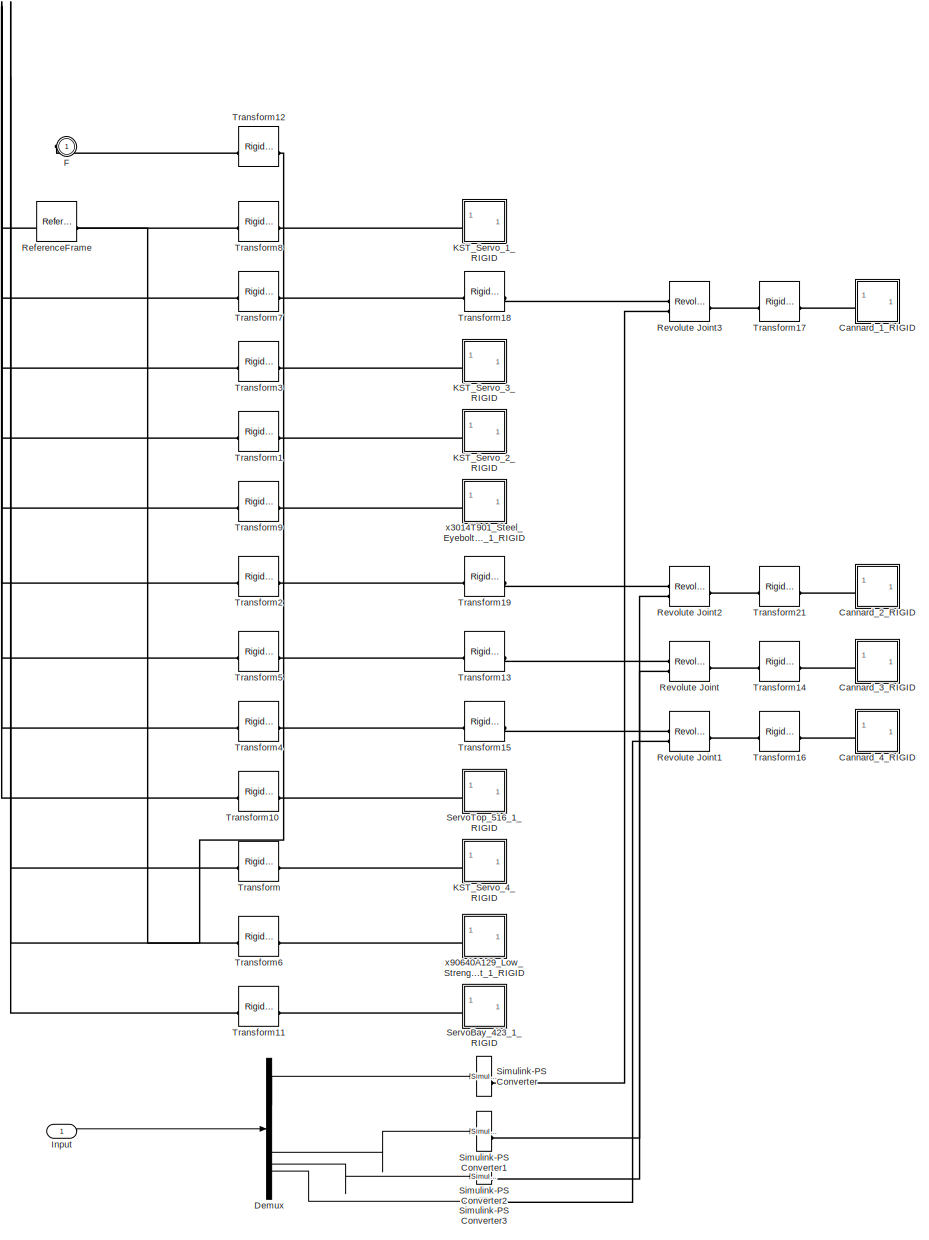
[diagram: Model/S1_AvionicsStack_1_RIGID/Servo_avionics_Bay_1_RIGID - part 1/1, most of the canvas]
BLOCK [SubSystem] Model/S1_AvionicsStack_1_RIGID/Servo_avionics_Bay_1_RIGID
BLOCK [SubSystem] Model/S1_AvionicsStack_1_RIGID/Servo_avionics_Bay_1_RIGID/Cannard_1_RIGID
BLOCK [PMIOPort] Model/S1_AvionicsStack_1_RIGID/Servo_avionics_Bay_1_RIGID/Cannard_1_RIGID/F
  Side = Left
BLOCK [Reference] Model/S1_AvionicsStack_1_RIGID/Servo_avionics_Bay_1_RIGID/Cannard_1_RIGID/ReferenceFrame  REF=sm_lib/Frames and
Transforms/Reference
Frame
  SourceBlock = sm_lib/Frames and\nTransforms/Reference\nFrame
  SourceType = Reference\nFrame
BLOCK [Reference] Model/S1_AvionicsStack_1_RIGID/Servo_avionics_Bay_1_RIGID/Cannard_1_RIGID/Solid  REF=sm_lib/Body Elements/File Solid
  SourceBlock = sm_lib/Body Elements/File Solid
  SourceType = File Solid
BLOCK [SubSystem] Model/S1_AvionicsStack_1_RIGID/Servo_avionics_Bay_1_RIGID/Cannard_2_RIGID
BLOCK [PMIOPort] Model/S1_AvionicsStack_1_RIGID/Servo_avionics_Bay_1_RIGID/Cannard_2_RIGID/F
  Side = Left
BLOCK [Reference] Model/S1_AvionicsStack_1_RIGID/Servo_avionics_Bay_1_RIGID/Cannard_2_RIGID/ReferenceFrame  REF=sm_lib/Frames and
Transforms/Reference
Frame
  SourceBlock = sm_lib/Frames and\nTransforms/Reference\nFrame
  SourceType = Reference\nFrame
BLOCK [Reference] Model/S1_AvionicsStack_1_RIGID/Servo_avionics_Bay_1_RIGID/Cannard_2_RIGID/Solid  REF=sm_lib/Body Elements/File Solid
  SourceBlock = sm_lib/Body Elements/File Solid
  SourceType = File Solid
BLOCK [SubSystem] Model/S1_AvionicsStack_1_RIGID/Servo_avionics_Bay_1_RIGID/Cannard_3_RIGID
BLOCK [PMIOPort] Model/S1_AvionicsStack_1_RIGID/Servo_avionics_Bay_1_RIGID/Cannard_3_RIGID/F
  Side = Left
BLOCK [Reference] Model/S1_AvionicsStack_1_RIGID/Servo_avionics_Bay_1_RIGID/Cannard_3_RIGID/ReferenceFrame  REF=sm_lib/Frames and
Transforms/Reference
Frame
  SourceBlock = sm_lib/Frames and\nTransforms/Reference\nFrame
  SourceType = Reference\nFrame
BLOCK [Reference] Model/S1_AvionicsStack_1_RIGID/Servo_avionics_Bay_1_RIGID/Cannard_3_RIGID/Solid  REF=sm_lib/Body Elements/File Solid
  SourceBlock = sm_lib/Body Elements/File Solid
  SourceType = File Solid
BLOCK [SubSystem] Model/S1_AvionicsStack_1_RIGID/Servo_avionics_Bay_1_RIGID/Cannard_4_RIGID
BLOCK [PMIOPort] Model/S1_AvionicsStack_1_RIGID/Servo_avionics_Bay_1_RIGID/Cannard_4_RIGID/F
  Side = Left
BLOCK [Reference] Model/S1_AvionicsStack_1_RIGID/Servo_avionics_Bay_1_RIGID/Cannard_4_RIGID/ReferenceFrame  REF=sm_lib/Frames and
Transforms/Reference
Frame
  SourceBlock = sm_lib/Frames and\nTransforms/Reference\nFrame
  SourceType = Reference\nFrame
BLOCK [Reference] Model/S1_AvionicsStack_1_RIGID/Servo_avionics_Bay_1_RIGID/Cannard_4_RIGID/Solid  REF=sm_lib/Body Elements/File Solid
  SourceBlock = sm_lib/Body Elements/File Solid
  SourceType = File Solid
BLOCK [Demux] Model/S1_AvionicsStack_1_RIGID/Servo_avionics_Bay_1_RIGID/Demux
BLOCK [PMIOPort] Model/S1_AvionicsStack_1_RIGID/Servo_avionics_Bay_1_RIGID/F
  Side = Right
BLOCK [Inport] Model/S1_AvionicsStack_1_RIGID/Servo_avionics_Bay_1_RIGID/Input
BLOCK [SubSystem] Model/S1_AvionicsStack_1_RIGID/Servo_avionics_Bay_1_RIGID/KST_Servo_1_RIGID
BLOCK [PMIOPort] Model/S1_AvionicsStack_1_RIGID/Servo_avionics_Bay_1_RIGID/KST_Servo_1_RIGID/F
  Side = Left
BLOCK [Reference] Model/S1_AvionicsStack_1_RIGID/Servo_avionics_Bay_1_RIGID/KST_Servo_1_RIGID/ReferenceFrame  REF=sm_lib/Frames and
Transforms/Reference
Frame
  SourceBlock = sm_lib/Frames and\nTransforms/Reference\nFrame
  SourceType = Reference\nFrame
BLOCK [Reference] Model/S1_AvionicsStack_1_RIGID/Servo_avionics_Bay_1_RIGID/KST_Servo_1_RIGID/Solid  REF=sm_lib/Body Elements/File Solid
  SourceBlock = sm_lib/Body Elements/File Solid
  SourceType = File Solid
BLOCK [SubSystem] Model/S1_AvionicsStack_1_RIGID/Servo_avionics_Bay_1_RIGID/KST_Servo_2_RIGID
BLOCK [PMIOPort] Model/S1_AvionicsStack_1_RIGID/Servo_avionics_Bay_1_RIGID/KST_Servo_2_RIGID/F
  Side = Left
BLOCK [Reference] Model/S1_AvionicsStack_1_RIGID/Servo_avionics_Bay_1_RIGID/KST_Servo_2_RIGID/ReferenceFrame  REF=sm_lib/Frames and
Transforms/Reference
Frame
  SourceBlock = sm_lib/Frames and\nTransforms/Reference\nFrame
  SourceType = Reference\nFrame
BLOCK [Reference] Model/S1_AvionicsStack_1_RIGID/Servo_avionics_Bay_1_RIGID/KST_Servo_2_RIGID/Solid  REF=sm_lib/Body Elements/File Solid
  SourceBlock = sm_lib/Body Elements/File Solid
  SourceType = File Solid
BLOCK [SubSystem] Model/S1_AvionicsStack_1_RIGID/Servo_avionics_Bay_1_RIGID/KST_Servo_3_RIGID
BLOCK [PMIOPort] Model/S1_AvionicsStack_1_RIGID/Servo_avionics_Bay_1_RIGID/KST_Servo_3_RIGID/F
  Side = Left
BLOCK [Reference] Model/S1_AvionicsStack_1_RIGID/Servo_avionics_Bay_1_RIGID/KST_Servo_3_RIGID/ReferenceFrame  REF=sm_lib/Frames and
Transforms/Reference
Frame
  SourceBlock = sm_lib/Frames and\nTransforms/Reference\nFrame
  SourceType = Reference\nFrame
BLOCK [Reference] Model/S1_AvionicsStack_1_RIGID/Servo_avionics_Bay_1_RIGID/KST_Servo_3_RIGID/Solid  REF=sm_lib/Body Elements/File Solid
  SourceBlock = sm_lib/Body Elements/File Solid
  SourceType = File Solid
BLOCK [SubSystem] Model/S1_AvionicsStack_1_RIGID/Servo_avionics_Bay_1_RIGID/KST_Servo_4_RIGID
BLOCK [PMIOPort] Model/S1_AvionicsStack_1_RIGID/Servo_avionics_Bay_1_RIGID/KST_Servo_4_RIGID/F
  Side = Left
BLOCK [Reference] Model/S1_AvionicsStack_1_RIGID/Servo_avionics_Bay_1_RIGID/KST_Servo_4_RIGID/ReferenceFrame  REF=sm_lib/Frames and
Transforms/Reference
Frame
  SourceBlock = sm_lib/Frames and\nTransforms/Reference\nFrame
  SourceType = Reference\nFrame
BLOCK [Reference] Model/S1_AvionicsStack_1_RIGID/Servo_avionics_Bay_1_RIGID/KST_Servo_4_RIGID/Solid  REF=sm_lib/Body Elements/File Solid
  SourceBlock = sm_lib/Body Elements/File Solid
  SourceType = File Solid
BLOCK [Reference] Model/S1_AvionicsStack_1_RIGID/Servo_avionics_Bay_1_RIGID/ReferenceFrame  REF=sm_lib/Frames and
Transforms/Reference
Frame
  SourceBlock = sm_lib/Frames and\nTransforms/Reference\nFrame
  SourceType = Reference\nFrame
BLOCK [Reference] Model/S1_AvionicsStack_1_RIGID/Servo_avionics_Bay_1_RIGID/Revolute Joint  REF=sm_lib/Joints/Revolute Joint
  SourceBlock = sm_lib/Joints/Revolute Joint
  SourceType = Revolute Joint
BLOCK [Reference] Model/S1_AvionicsStack_1_RIGID/Servo_avionics_Bay_1_RIGID/Revolute Joint1  REF=sm_lib/Joints/Revolute Joint
  SourceBlock = sm_lib/Joints/Revolute Joint
  SourceType = Revolute Joint
BLOCK [Reference] Model/S1_AvionicsStack_1_RIGID/Servo_avionics_Bay_1_RIGID/Revolute Joint2  REF=sm_lib/Joints/Revolute Joint
  SourceBlock = sm_lib/Joints/Revolute Joint
  SourceType = Revolute Joint
BLOCK [Reference] Model/S1_AvionicsStack_1_RIGID/Servo_avionics_Bay_1_RIGID/Revolute Joint3  REF=sm_lib/Joints/Revolute Joint
  SourceBlock = sm_lib/Joints/Revolute Joint
  SourceType = Revolute Joint
BLOCK [SubSystem] Model/S1_AvionicsStack_1_RIGID/Servo_avionics_Bay_1_RIGID/ServoBay_423_1_RIGID
BLOCK [PMIOPort] Model/S1_AvionicsStack_1_RIGID/Servo_avionics_Bay_1_RIGID/ServoBay_423_1_RIGID/F
  Side = Left
BLOCK [Reference] Model/S1_AvionicsStack_1_RIGID/Servo_avionics_Bay_1_RIGID/ServoBay_423_1_RIGID/ReferenceFrame  REF=sm_lib/Frames and
Transforms/Reference
Frame
  SourceBlock = sm_lib/Frames and\nTransforms/Reference\nFrame
  SourceType = Reference\nFrame
BLOCK [Reference] Model/S1_AvionicsStack_1_RIGID/Servo_avionics_Bay_1_RIGID/ServoBay_423_1_RIGID/Solid  REF=sm_lib/Body Elements/File Solid
  SourceBlock = sm_lib/Body Elements/File Solid
  SourceType = File Solid
BLOCK [SubSystem] Model/S1_AvionicsStack_1_RIGID/Servo_avionics_Bay_1_RIGID/ServoTop_516_1_RIGID
BLOCK [PMIOPort] Model/S1_AvionicsStack_1_RIGID/Servo_avionics_Bay_1_RIGID/ServoTop_516_1_RIGID/F
  Side = Left
BLOCK [Reference] Model/S1_AvionicsStack_1_RIGID/Servo_avionics_Bay_1_RIGID/ServoTop_516_1_RIGID/ReferenceFrame  REF=sm_lib/Frames and
Transforms/Reference
Frame
  SourceBlock = sm_lib/Frames and\nTransforms/Reference\nFrame
  SourceType = Reference\nFrame
BLOCK [Reference] Model/S1_AvionicsStack_1_RIGID/Servo_avionics_Bay_1_RIGID/ServoTop_516_1_RIGID/Solid  REF=sm_lib/Body Elements/File Solid
  SourceBlock = sm_lib/Body Elements/File Solid
  SourceType = File Solid
BLOCK [Reference] Model/S1_AvionicsStack_1_RIGID/Servo_avionics_Bay_1_RIGID/Simulink-PS Converter  REF=nesl_utility/Simulink-PS
Converter
  SourceBlock = nesl_utility/Simulink-PS\nConverter
  SourceType = Simulink-PS\nConverter
BLOCK [Reference] Model/S1_AvionicsStack_1_RIGID/Servo_avionics_Bay_1_RIGID/Simulink-PS Converter1  REF=nesl_utility/Simulink-PS
Converter
  SourceBlock = nesl_utility/Simulink-PS\nConverter
  SourceType = Simulink-PS\nConverter
BLOCK [Reference] Model/S1_AvionicsStack_1_RIGID/Servo_avionics_Bay_1_RIGID/Simulink-PS Converter2  REF=nesl_utility/Simulink-PS
Converter
  SourceBlock = nesl_utility/Simulink-PS\nConverter
  SourceType = Simulink-PS\nConverter
BLOCK [Reference] Model/S1_AvionicsStack_1_RIGID/Servo_avionics_Bay_1_RIGID/Simulink-PS Converter3  REF=nesl_utility/Simulink-PS
Converter
  SourceBlock = nesl_utility/Simulink-PS\nConverter
  SourceType = Simulink-PS\nConverter
BLOCK [Reference] Model/S1_AvionicsStack_1_RIGID/Servo_avionics_Bay_1_RIGID/Transform  REF=sm_lib/Frames and
Transforms/Rigid
Transform
  SourceBlock = sm_lib/Frames and\nTransforms/Rigid\nTransform
  SourceType = Rigid\nTransform
BLOCK [Reference] Model/S1_AvionicsStack_1_RIGID/Servo_avionics_Bay_1_RIGID/Transform1  REF=sm_lib/Frames and
Transforms/Rigid
Transform
  SourceBlock = sm_lib/Frames and\nTransforms/Rigid\nTransform
  SourceType = Rigid\nTransform
BLOCK [Reference] Model/S1_AvionicsStack_1_RIGID/Servo_avionics_Bay_1_RIGID/Transform10  REF=sm_lib/Frames and
Transforms/Rigid
Transform
  SourceBlock = sm_lib/Frames and\nTransforms/Rigid\nTransform
  SourceType = Rigid\nTransform
BLOCK [Reference] Model/S1_AvionicsStack_1_RIGID/Servo_avionics_Bay_1_RIGID/Transform11  REF=sm_lib/Frames and
Transforms/Rigid
Transform
  SourceBlock = sm_lib/Frames and\nTransforms/Rigid\nTransform
  SourceType = Rigid\nTransform
BLOCK [Reference] Model/S1_AvionicsStack_1_RIGID/Servo_avionics_Bay_1_RIGID/Transform12  REF=sm_lib/Frames and
Transforms/Rigid
Transform
  SourceBlock = sm_lib/Frames and\nTransforms/Rigid\nTransform
  SourceType = Rigid\nTransform
BLOCK [Reference] Model/S1_AvionicsStack_1_RIGID/Servo_avionics_Bay_1_RIGID/Transform13  REF=sm_lib/Frames and
Transforms/Rigid
Transform
  SourceBlock = sm_lib/Frames and\nTransforms/Rigid\nTransform
  SourceType = Rigid\nTransform
BLOCK [Reference] Model/S1_AvionicsStack_1_RIGID/Servo_avionics_Bay_1_RIGID/Transform14  REF=sm_lib/Frames and
Transforms/Rigid
Transform
  SourceBlock = sm_lib/Frames and\nTransforms/Rigid\nTransform
  SourceType = Rigid\nTransform
BLOCK [Reference] Model/S1_AvionicsStack_1_RIGID/Servo_avionics_Bay_1_RIGID/Transform15  REF=sm_lib/Frames and
Transforms/Rigid
Transform
  SourceBlock = sm_lib/Frames and\nTransforms/Rigid\nTransform
  SourceType = Rigid\nTransform
BLOCK [Reference] Model/S1_AvionicsStack_1_RIGID/Servo_avionics_Bay_1_RIGID/Transform16  REF=sm_lib/Frames and
Transforms/Rigid
Transform
  SourceBlock = sm_lib/Frames and\nTransforms/Rigid\nTransform
  SourceType = Rigid\nTransform
BLOCK [Reference] Model/S1_AvionicsStack_1_RIGID/Servo_avionics_Bay_1_RIGID/Transform17  REF=sm_lib/Frames and
Transforms/Rigid
Transform
  SourceBlock = sm_lib/Frames and\nTransforms/Rigid\nTransform
  SourceType = Rigid\nTransform
BLOCK [Reference] Model/S1_AvionicsStack_1_RIGID/Servo_avionics_Bay_1_RIGID/Transform18  REF=sm_lib/Frames and
Transforms/Rigid
Transform
  SourceBlock = sm_lib/Frames and\nTransforms/Rigid\nTransform
  SourceType = Rigid\nTransform
BLOCK [Reference] Model/S1_AvionicsStack_1_RIGID/Servo_avionics_Bay_1_RIGID/Transform19  REF=sm_lib/Frames and
Transforms/Rigid
Transform
  SourceBlock = sm_lib/Frames and\nTransforms/Rigid\nTransform
  SourceType = Rigid\nTransform
BLOCK [Reference] Model/S1_AvionicsStack_1_RIGID/Servo_avionics_Bay_1_RIGID/Transform2  REF=sm_lib/Frames and
Transforms/Rigid
Transform
  SourceBlock = sm_lib/Frames and\nTransforms/Rigid\nTransform
  SourceType = Rigid\nTransform
BLOCK [Reference] Model/S1_AvionicsStack_1_RIGID/Servo_avionics_Bay_1_RIGID/Transform21  REF=sm_lib/Frames and
Transforms/Rigid
Transform
  SourceBlock = sm_lib/Frames and\nTransforms/Rigid\nTransform
  SourceType = Rigid\nTransform
BLOCK [Reference] Model/S1_AvionicsStack_1_RIGID/Servo_avionics_Bay_1_RIGID/Transform3  REF=sm_lib/Frames and
Transforms/Rigid
Transform
  SourceBlock = sm_lib/Frames and\nTransforms/Rigid\nTransform
  SourceType = Rigid\nTransform
BLOCK [Reference] Model/S1_AvionicsStack_1_RIGID/Servo_avionics_Bay_1_RIGID/Transform4  REF=sm_lib/Frames and
Transforms/Rigid
Transform
  SourceBlock = sm_lib/Frames and\nTransforms/Rigid\nTransform
  SourceType = Rigid\nTransform
BLOCK [Reference] Model/S1_AvionicsStack_1_RIGID/Servo_avionics_Bay_1_RIGID/Transform5  REF=sm_lib/Frames and
Transforms/Rigid
Transform
  SourceBlock = sm_lib/Frames and\nTransforms/Rigid\nTransform
  SourceType = Rigid\nTransform
BLOCK [Reference] Model/S1_AvionicsStack_1_RIGID/Servo_avionics_Bay_1_RIGID/Transform6  REF=sm_lib/Frames and
Transforms/Rigid
Transform
  SourceBlock = sm_lib/Frames and\nTransforms/Rigid\nTransform
  SourceType = Rigid\nTransform
BLOCK [Reference] Model/S1_AvionicsStack_1_RIGID/Servo_avionics_Bay_1_RIGID/Transform7  REF=sm_lib/Frames and
Transforms/Rigid
Transform
  SourceBlock = sm_lib/Frames and\nTransforms/Rigid\nTransform
  SourceType = Rigid\nTransform
BLOCK [Reference] Model/S1_AvionicsStack_1_RIGID/Servo_avionics_Bay_1_RIGID/Transform8  REF=sm_lib/Frames and
Transforms/Rigid
Transform
  SourceBlock = sm_lib/Frames and\nTransforms/Rigid\nTransform
  SourceType = Rigid\nTransform
BLOCK [Reference] Model/S1_AvionicsStack_1_RIGID/Servo_avionics_Bay_1_RIGID/Transform9  REF=sm_lib/Frames and
Transforms/Rigid
Transform
  SourceBlock = sm_lib/Frames and\nTransforms/Rigid\nTransform
  SourceType = Rigid\nTransform
BLOCK [SubSystem] Model/S1_AvionicsStack_1_RIGID/Servo_avionics_Bay_1_RIGID/x3014T901_Steel_Eyebolt_with_Shoulder_for_Lifting_1_RIGID
BLOCK [PMIOPort] Model/S1_AvionicsStack_1_RIGID/Servo_avionics_Bay_1_RIGID/x3014T901_Steel_Eyebolt_with_Shoulder_for_Lifting_1_RIGID/F
  Side = Left
BLOCK [Reference] Model/S1_AvionicsStack_1_RIGID/Servo_avionics_Bay_1_RIGID/x3014T901_Steel_Eyebolt_with_Shoulder_for_Lifting_1_RIGID/ReferenceFrame  REF=sm_lib/Frames and
Transforms/Reference
Frame
  SourceBlock = sm_lib/Frames and\nTransforms/Reference\nFrame
  SourceType = Reference\nFrame
BLOCK [Reference] Model/S1_AvionicsStack_1_RIGID/Servo_avionics_Bay_1_RIGID/x3014T901_Steel_Eyebolt_with_Shoulder_for_Lifting_1_RIGID/Solid  REF=sm_lib/Body Elements/File Solid
  SourceBlock = sm_lib/Body Elements/File Solid
  SourceType = File Solid
BLOCK [SubSystem] Model/S1_AvionicsStack_1_RIGID/Servo_avionics_Bay_1_RIGID/x90640A129_Low_Strength_Steel_Nylon_Insert_Locknut_1_RIGID
BLOCK [PMIOPort] Model/S1_AvionicsStack_1_RIGID/Servo_avionics_Bay_1_RIGID/x90640A129_Low_Strength_Steel_Nylon_Insert_Locknut_1_RIGID/F
  Side = Left
BLOCK [Reference] Model/S1_AvionicsStack_1_RIGID/Servo_avionics_Bay_1_RIGID/x90640A129_Low_Strength_Steel_Nylon_Insert_Locknut_1_RIGID/ReferenceFrame  REF=sm_lib/Frames and
Transforms/Reference
Frame
  SourceBlock = sm_lib/Frames and\nTransforms/Reference\nFrame
  SourceType = Reference\nFrame
BLOCK [Reference] Model/S1_AvionicsStack_1_RIGID/Servo_avionics_Bay_1_RIGID/x90640A129_Low_Strength_Steel_Nylon_Insert_Locknut_1_RIGID/Solid  REF=sm_lib/Body Elements/File Solid
  SourceBlock = sm_lib/Body Elements/File Solid
  SourceType = File Solid
BLOCK [SubSystem] Model/S1_AvionicsStack_1_RIGID/Stage_2_Electronics_1_RIGID
BLOCK [SubSystem] Model/S1_AvionicsStack_1_RIGID/Stage_2_Electronics_1_RIGID/Arduino_MEGA_shield_1_RIGID
BLOCK [PMIOPort] Model/S1_AvionicsStack_1_RIGID/Stage_2_Electronics_1_RIGID/Arduino_MEGA_shield_1_RIGID/F
  Side = Left
BLOCK [Reference] Model/S1_AvionicsStack_1_RIGID/Stage_2_Electronics_1_RIGID/Arduino_MEGA_shield_1_RIGID/ReferenceFrame  REF=sm_lib/Frames and
Transforms/Reference
Frame
  SourceBlock = sm_lib/Frames and\nTransforms/Reference\nFrame
  SourceType = Reference\nFrame
BLOCK [Reference] Model/S1_AvionicsStack_1_RIGID/Stage_2_Electronics_1_RIGID/Arduino_MEGA_shield_1_RIGID/Solid  REF=sm_lib/Body Elements/File Solid
  SourceBlock = sm_lib/Body Elements/File Solid
  SourceType = File Solid
BLOCK [PMIOPort] Model/S1_AvionicsStack_1_RIGID/Stage_2_Electronics_1_RIGID/F
  Side = Right
BLOCK [SubSystem] Model/S1_AvionicsStack_1_RIGID/Stage_2_Electronics_1_RIGID/MPU_6050_IMU_1_RIGID
BLOCK [SubSystem] Model/S1_AvionicsStack_1_RIGID/Stage_2_Electronics_1_RIGID/MPU_6050_IMU_1_RIGID/Base_1_RIGID
BLOCK [PMIOPort] Model/S1_AvionicsStack_1_RIGID/Stage_2_Electronics_1_RIGID/MPU_6050_IMU_1_RIGID/Base_1_RIGID/F
  Side = Left
BLOCK [Reference] Model/S1_AvionicsStack_1_RIGID/Stage_2_Electronics_1_RIGID/MPU_6050_IMU_1_RIGID/Base_1_RIGID/ReferenceFrame  REF=sm_lib/Frames and
Transforms/Reference
Frame
  SourceBlock = sm_lib/Frames and\nTransforms/Reference\nFrame
  SourceType = Reference\nFrame
BLOCK [Reference] Model/S1_AvionicsStack_1_RIGID/Stage_2_Electronics_1_RIGID/MPU_6050_IMU_1_RIGID/Base_1_RIGID/Solid  REF=sm_lib/Body Elements/File Solid
  SourceBlock = sm_lib/Body Elements/File Solid
  SourceType = File Solid
BLOCK [PMIOPort] Model/S1_AvionicsStack_1_RIGID/Stage_2_Electronics_1_RIGID/MPU_6050_IMU_1_RIGID/F
  Side = Right
BLOCK [Reference] Model/S1_AvionicsStack_1_RIGID/Stage_2_Electronics_1_RIGID/MPU_6050_IMU_1_RIGID/ReferenceFrame  REF=sm_lib/Frames and
Transforms/Reference
Frame
  SourceBlock = sm_lib/Frames and\nTransforms/Reference\nFrame
  SourceType = Reference\nFrame
BLOCK [SubSystem] Model/S1_AvionicsStack_1_RIGID/Stage_2_Electronics_1_RIGID/MPU_6050_IMU_1_RIGID/Resistor_black_1_RIGID
BLOCK [PMIOPort] Model/S1_AvionicsStack_1_RIGID/Stage_2_Electronics_1_RIGID/MPU_6050_IMU_1_RIGID/Resistor_black_1_RIGID/F
  Side = Left
BLOCK [Reference] Model/S1_AvionicsStack_1_RIGID/Stage_2_Electronics_1_RIGID/MPU_6050_IMU_1_RIGID/Resistor_black_1_RIGID/ReferenceFrame  REF=sm_lib/Frames and
Transforms/Reference
Frame
  SourceBlock = sm_lib/Frames and\nTransforms/Reference\nFrame
  SourceType = Reference\nFrame
BLOCK [Reference] Model/S1_AvionicsStack_1_RIGID/Stage_2_Electronics_1_RIGID/MPU_6050_IMU_1_RIGID/Resistor_black_1_RIGID/Solid  REF=sm_lib/Body Elements/File Solid
  SourceBlock = sm_lib/Body Elements/File Solid
  SourceType = File Solid
BLOCK [SubSystem] Model/S1_AvionicsStack_1_RIGID/Stage_2_Electronics_1_RIGID/MPU_6050_IMU_1_RIGID/Resistor_small_3_RIGID
BLOCK [PMIOPort] Model/S1_AvionicsStack_1_RIGID/Stage_2_Electronics_1_RIGID/MPU_6050_IMU_1_RIGID/Resistor_small_3_RIGID/F
  Side = Left
BLOCK [Reference] Model/S1_AvionicsStack_1_RIGID/Stage_2_Electronics_1_RIGID/MPU_6050_IMU_1_RIGID/Resistor_small_3_RIGID/ReferenceFrame  REF=sm_lib/Frames and
Transforms/Reference
Frame
  SourceBlock = sm_lib/Frames and\nTransforms/Reference\nFrame
  SourceType = Reference\nFrame
BLOCK [Reference] Model/S1_AvionicsStack_1_RIGID/Stage_2_Electronics_1_RIGID/MPU_6050_IMU_1_RIGID/Resistor_small_3_RIGID/Solid  REF=sm_lib/Body Elements/File Solid
  SourceBlock = sm_lib/Body Elements/File Solid
  SourceType = File Solid
BLOCK [SubSystem] Model/S1_AvionicsStack_1_RIGID/Stage_2_Electronics_1_RIGID/MPU_6050_IMU_1_RIGID/Resistor_small_4_RIGID
BLOCK [PMIOPort] Model/S1_AvionicsStack_1_RIGID/Stage_2_Electronics_1_RIGID/MPU_6050_IMU_1_RIGID/Resistor_small_4_RIGID/F
  Side = Left
BLOCK [Reference] Model/S1_AvionicsStack_1_RIGID/Stage_2_Electronics_1_RIGID/MPU_6050_IMU_1_RIGID/Resistor_small_4_RIGID/ReferenceFrame  REF=sm_lib/Frames and
Transforms/Reference
Frame
  SourceBlock = sm_lib/Frames and\nTransforms/Reference\nFrame
  SourceType = Reference\nFrame
BLOCK [Reference] Model/S1_AvionicsStack_1_RIGID/Stage_2_Electronics_1_RIGID/MPU_6050_IMU_1_RIGID/Resistor_small_4_RIGID/Solid  REF=sm_lib/Body Elements/File Solid
  SourceBlock = sm_lib/Body Elements/File Solid
  SourceType = File Solid
BLOCK [SubSystem] Model/S1_AvionicsStack_1_RIGID/Stage_2_Electronics_1_RIGID/MPU_6050_IMU_1_RIGID/Resistor_small_5_RIGID
BLOCK [PMIOPort] Model/S1_AvionicsStack_1_RIGID/Stage_2_Electronics_1_RIGID/MPU_6050_IMU_1_RIGID/Resistor_small_5_RIGID/F
  Side = Left
BLOCK [Reference] Model/S1_AvionicsStack_1_RIGID/Stage_2_Electronics_1_RIGID/MPU_6050_IMU_1_RIGID/Resistor_small_5_RIGID/ReferenceFrame  REF=sm_lib/Frames and
Transforms/Reference
Frame
  SourceBlock = sm_lib/Frames and\nTransforms/Reference\nFrame
  SourceType = Reference\nFrame
BLOCK [Reference] Model/S1_AvionicsStack_1_RIGID/Stage_2_Electronics_1_RIGID/MPU_6050_IMU_1_RIGID/Resistor_small_5_RIGID/Solid  REF=sm_lib/Body Elements/File Solid
  SourceBlock = sm_lib/Body Elements/File Solid
  SourceType = File Solid
BLOCK [SubSystem] Model/S1_AvionicsStack_1_RIGID/Stage_2_Electronics_1_RIGID/MPU_6050_IMU_1_RIGID/Resistor_small_6_RIGID
BLOCK [PMIOPort] Model/S1_AvionicsStack_1_RIGID/Stage_2_Electronics_1_RIGID/MPU_6050_IMU_1_RIGID/Resistor_small_6_RIGID/F
  Side = Left
BLOCK [Reference] Model/S1_AvionicsStack_1_RIGID/Stage_2_Electronics_1_RIGID/MPU_6050_IMU_1_RIGID/Resistor_small_6_RIGID/ReferenceFrame  REF=sm_lib/Frames and
Transforms/Reference
Frame
  SourceBlock = sm_lib/Frames and\nTransforms/Reference\nFrame
  SourceType = Reference\nFrame
BLOCK [Reference] Model/S1_AvionicsStack_1_RIGID/Stage_2_Electronics_1_RIGID/MPU_6050_IMU_1_RIGID/Resistor_small_6_RIGID/Solid  REF=sm_lib/Body Elements/File Solid
  SourceBlock = sm_lib/Body Elements/File Solid
  SourceType = File Solid
BLOCK [SubSystem] Model/S1_AvionicsStack_1_RIGID/Stage_2_Electronics_1_RIGID/MPU_6050_IMU_1_RIGID/Resistor_small_7_RIGID
BLOCK [PMIOPort] Model/S1_AvionicsStack_1_RIGID/Stage_2_Electronics_1_RIGID/MPU_6050_IMU_1_RIGID/Resistor_small_7_RIGID/F
  Side = Left
BLOCK [Reference] Model/S1_AvionicsStack_1_RIGID/Stage_2_Electronics_1_RIGID/MPU_6050_IMU_1_RIGID/Resistor_small_7_RIGID/ReferenceFrame  REF=sm_lib/Frames and
Transforms/Reference
Frame
  SourceBlock = sm_lib/Frames and\nTransforms/Reference\nFrame
  SourceType = Reference\nFrame
BLOCK [Reference] Model/S1_AvionicsStack_1_RIGID/Stage_2_Electronics_1_RIGID/MPU_6050_IMU_1_RIGID/Resistor_small_7_RIGID/Solid  REF=sm_lib/Body Elements/File Solid
  SourceBlock = sm_lib/Body Elements/File Solid
  SourceType = File Solid
BLOCK [SubSystem] Model/S1_AvionicsStack_1_RIGID/Stage_2_Electronics_1_RIGID/MPU_6050_IMU_1_RIGID/Resistor_small_8_RIGID
BLOCK [PMIOPort] Model/S1_AvionicsStack_1_RIGID/Stage_2_Electronics_1_RIGID/MPU_6050_IMU_1_RIGID/Resistor_small_8_RIGID/F
  Side = Left
BLOCK [Reference] Model/S1_AvionicsStack_1_RIGID/Stage_2_Electronics_1_RIGID/MPU_6050_IMU_1_RIGID/Resistor_small_8_RIGID/ReferenceFrame  REF=sm_lib/Frames and
Transforms/Reference
Frame
  SourceBlock = sm_lib/Frames and\nTransforms/Reference\nFrame
  SourceType = Reference\nFrame
BLOCK [Reference] Model/S1_AvionicsStack_1_RIGID/Stage_2_Electronics_1_RIGID/MPU_6050_IMU_1_RIGID/Resistor_small_8_RIGID/Solid  REF=sm_lib/Body Elements/File Solid
  SourceBlock = sm_lib/Body Elements/File Solid
  SourceType = File Solid
BLOCK [SubSystem] Model/S1_AvionicsStack_1_RIGID/Stage_2_Electronics_1_RIGID/MPU_6050_IMU_1_RIGID/Resistor_small_black_3_RIGID
BLOCK [PMIOPort] Model/S1_AvionicsStack_1_RIGID/Stage_2_Electronics_1_RIGID/MPU_6050_IMU_1_RIGID/Resistor_small_black_3_RIGID/F
  Side = Left
BLOCK [Reference] Model/S1_AvionicsStack_1_RIGID/Stage_2_Electronics_1_RIGID/MPU_6050_IMU_1_RIGID/Resistor_small_black_3_RIGID/ReferenceFrame  REF=sm_lib/Frames and
Transforms/Reference
Frame
  SourceBlock = sm_lib/Frames and\nTransforms/Reference\nFrame
  SourceType = Reference\nFrame
BLOCK [Reference] Model/S1_AvionicsStack_1_RIGID/Stage_2_Electronics_1_RIGID/MPU_6050_IMU_1_RIGID/Resistor_small_black_3_RIGID/Solid  REF=sm_lib/Body Elements/File Solid
  SourceBlock = sm_lib/Body Elements/File Solid
  SourceType = File Solid
BLOCK [SubSystem] Model/S1_AvionicsStack_1_RIGID/Stage_2_Electronics_1_RIGID/MPU_6050_IMU_1_RIGID/Resistor_small_black_4_RIGID
BLOCK [PMIOPort] Model/S1_AvionicsStack_1_RIGID/Stage_2_Electronics_1_RIGID/MPU_6050_IMU_1_RIGID/Resistor_small_black_4_RIGID/F
  Side = Left
BLOCK [Reference] Model/S1_AvionicsStack_1_RIGID/Stage_2_Electronics_1_RIGID/MPU_6050_IMU_1_RIGID/Resistor_small_black_4_RIGID/ReferenceFrame  REF=sm_lib/Frames and
Transforms/Reference
Frame
  SourceBlock = sm_lib/Frames and\nTransforms/Reference\nFrame
  SourceType = Reference\nFrame
BLOCK [Reference] Model/S1_AvionicsStack_1_RIGID/Stage_2_Electronics_1_RIGID/MPU_6050_IMU_1_RIGID/Resistor_small_black_4_RIGID/Solid  REF=sm_lib/Body Elements/File Solid
  SourceBlock = sm_lib/Body Elements/File Solid
  SourceType = File Solid
BLOCK [SubSystem] Model/S1_AvionicsStack_1_RIGID/Stage_2_Electronics_1_RIGID/MPU_6050_IMU_1_RIGID/Resistor_small_black_5_RIGID
BLOCK [PMIOPort] Model/S1_AvionicsStack_1_RIGID/Stage_2_Electronics_1_RIGID/MPU_6050_IMU_1_RIGID/Resistor_small_black_5_RIGID/F
  Side = Left
BLOCK [Reference] Model/S1_AvionicsStack_1_RIGID/Stage_2_Electronics_1_RIGID/MPU_6050_IMU_1_RIGID/Resistor_small_black_5_RIGID/ReferenceFrame  REF=sm_lib/Frames and
Transforms/Reference
Frame
  SourceBlock = sm_lib/Frames and\nTransforms/Reference\nFrame
  SourceType = Reference\nFrame
BLOCK [Reference] Model/S1_AvionicsStack_1_RIGID/Stage_2_Electronics_1_RIGID/MPU_6050_IMU_1_RIGID/Resistor_small_black_5_RIGID/Solid  REF=sm_lib/Body Elements/File Solid
  SourceBlock = sm_lib/Body Elements/File Solid
  SourceType = File Solid
BLOCK [SubSystem] Model/S1_AvionicsStack_1_RIGID/Stage_2_Electronics_1_RIGID/MPU_6050_IMU_1_RIGID/Resistor_small_black_6_RIGID
BLOCK [PMIOPort] Model/S1_AvionicsStack_1_RIGID/Stage_2_Electronics_1_RIGID/MPU_6050_IMU_1_RIGID/Resistor_small_black_6_RIGID/F
  Side = Left
BLOCK [Reference] Model/S1_AvionicsStack_1_RIGID/Stage_2_Electronics_1_RIGID/MPU_6050_IMU_1_RIGID/Resistor_small_black_6_RIGID/ReferenceFrame  REF=sm_lib/Frames and
Transforms/Reference
Frame
  SourceBlock = sm_lib/Frames and\nTransforms/Reference\nFrame
  SourceType = Reference\nFrame
BLOCK [Reference] Model/S1_AvionicsStack_1_RIGID/Stage_2_Electronics_1_RIGID/MPU_6050_IMU_1_RIGID/Resistor_small_black_6_RIGID/Solid  REF=sm_lib/Body Elements/File Solid
  SourceBlock = sm_lib/Body Elements/File Solid
  SourceType = File Solid
BLOCK [SubSystem] Model/S1_AvionicsStack_1_RIGID/Stage_2_Electronics_1_RIGID/MPU_6050_IMU_1_RIGID/S2NH_chip_1_RIGID
BLOCK [PMIOPort] Model/S1_AvionicsStack_1_RIGID/Stage_2_Electronics_1_RIGID/MPU_6050_IMU_1_RIGID/S2NH_chip_1_RIGID/F
  Side = Left
BLOCK [Reference] Model/S1_AvionicsStack_1_RIGID/Stage_2_Electronics_1_RIGID/MPU_6050_IMU_1_RIGID/S2NH_chip_1_RIGID/ReferenceFrame  REF=sm_lib/Frames and
Transforms/Reference
Frame
  SourceBlock = sm_lib/Frames and\nTransforms/Reference\nFrame
  SourceType = Reference\nFrame
BLOCK [Reference] Model/S1_AvionicsStack_1_RIGID/Stage_2_Electronics_1_RIGID/MPU_6050_IMU_1_RIGID/S2NH_chip_1_RIGID/Solid  REF=sm_lib/Body Elements/File Solid
  SourceBlock = sm_lib/Body Elements/File Solid
  SourceType = File Solid
BLOCK [SubSystem] Model/S1_AvionicsStack_1_RIGID/Stage_2_Electronics_1_RIGID/MPU_6050_IMU_1_RIGID/Small_LED_1_RIGID
BLOCK [PMIOPort] Model/S1_AvionicsStack_1_RIGID/Stage_2_Electronics_1_RIGID/MPU_6050_IMU_1_RIGID/Small_LED_1_RIGID/F
  Side = Left
BLOCK [Reference] Model/S1_AvionicsStack_1_RIGID/Stage_2_Electronics_1_RIGID/MPU_6050_IMU_1_RIGID/Small_LED_1_RIGID/ReferenceFrame  REF=sm_lib/Frames and
Transforms/Reference
Frame
  SourceBlock = sm_lib/Frames and\nTransforms/Reference\nFrame
  SourceType = Reference\nFrame
BLOCK [Reference] Model/S1_AvionicsStack_1_RIGID/Stage_2_Electronics_1_RIGID/MPU_6050_IMU_1_RIGID/Small_LED_1_RIGID/Solid  REF=sm_lib/Body Elements/File Solid
  SourceBlock = sm_lib/Body Elements/File Solid
  SourceType = File Solid
BLOCK [Reference] Model/S1_AvionicsStack_1_RIGID/Stage_2_Electronics_1_RIGID/MPU_6050_IMU_1_RIGID/Transform  REF=sm_lib/Frames and
Transforms/Rigid
Transform
  SourceBlock = sm_lib/Frames and\nTransforms/Rigid\nTransform
  SourceType = Rigid\nTransform
BLOCK [Reference] Model/S1_AvionicsStack_1_RIGID/Stage_2_Electronics_1_RIGID/MPU_6050_IMU_1_RIGID/Transform1  REF=sm_lib/Frames and
Transforms/Rigid
Transform
  SourceBlock = sm_lib/Frames and\nTransforms/Rigid\nTransform
  SourceType = Rigid\nTransform
BLOCK [Reference] Model/S1_AvionicsStack_1_RIGID/Stage_2_Electronics_1_RIGID/MPU_6050_IMU_1_RIGID/Transform10  REF=sm_lib/Frames and
Transforms/Rigid
Transform
  SourceBlock = sm_lib/Frames and\nTransforms/Rigid\nTransform
  SourceType = Rigid\nTransform
BLOCK [Reference] Model/S1_AvionicsStack_1_RIGID/Stage_2_Electronics_1_RIGID/MPU_6050_IMU_1_RIGID/Transform11  REF=sm_lib/Frames and
Transforms/Rigid
Transform
  SourceBlock = sm_lib/Frames and\nTransforms/Rigid\nTransform
  SourceType = Rigid\nTransform
BLOCK [Reference] Model/S1_AvionicsStack_1_RIGID/Stage_2_Electronics_1_RIGID/MPU_6050_IMU_1_RIGID/Transform12  REF=sm_lib/Frames and
Transforms/Rigid
Transform
  SourceBlock = sm_lib/Frames and\nTransforms/Rigid\nTransform
  SourceType = Rigid\nTransform
BLOCK [Reference] Model/S1_AvionicsStack_1_RIGID/Stage_2_Electronics_1_RIGID/MPU_6050_IMU_1_RIGID/Transform13  REF=sm_lib/Frames and
Transforms/Rigid
Transform
  SourceBlock = sm_lib/Frames and\nTransforms/Rigid\nTransform
  SourceType = Rigid\nTransform
BLOCK [Reference] Model/S1_AvionicsStack_1_RIGID/Stage_2_Electronics_1_RIGID/MPU_6050_IMU_1_RIGID/Transform14  REF=sm_lib/Frames and
Transforms/Rigid
Transform
  SourceBlock = sm_lib/Frames and\nTransforms/Rigid\nTransform
  SourceType = Rigid\nTransform
BLOCK [Reference] Model/S1_AvionicsStack_1_RIGID/Stage_2_Electronics_1_RIGID/MPU_6050_IMU_1_RIGID/Transform15  REF=sm_lib/Frames and
Transforms/Rigid
Transform
  SourceBlock = sm_lib/Frames and\nTransforms/Rigid\nTransform
  SourceType = Rigid\nTransform
BLOCK [Reference] Model/S1_AvionicsStack_1_RIGID/Stage_2_Electronics_1_RIGID/MPU_6050_IMU_1_RIGID/Transform2  REF=sm_lib/Frames and
Transforms/Rigid
Transform
  SourceBlock = sm_lib/Frames and\nTransforms/Rigid\nTransform
  SourceType = Rigid\nTransform
BLOCK [Reference] Model/S1_AvionicsStack_1_RIGID/Stage_2_Electronics_1_RIGID/MPU_6050_IMU_1_RIGID/Transform3  REF=sm_lib/Frames and
Transforms/Rigid
Transform
  SourceBlock = sm_lib/Frames and\nTransforms/Rigid\nTransform
  SourceType = Rigid\nTransform
BLOCK [Reference] Model/S1_AvionicsStack_1_RIGID/Stage_2_Electronics_1_RIGID/MPU_6050_IMU_1_RIGID/Transform4  REF=sm_lib/Frames and
Transforms/Rigid
Transform
  SourceBlock = sm_lib/Frames and\nTransforms/Rigid\nTransform
  SourceType = Rigid\nTransform
BLOCK [Reference] Model/S1_AvionicsStack_1_RIGID/Stage_2_Electronics_1_RIGID/MPU_6050_IMU_1_RIGID/Transform5  REF=sm_lib/Frames and
Transforms/Rigid
Transform
  SourceBlock = sm_lib/Frames and\nTransforms/Rigid\nTransform
  SourceType = Rigid\nTransform
BLOCK [Reference] Model/S1_AvionicsStack_1_RIGID/Stage_2_Electronics_1_RIGID/MPU_6050_IMU_1_RIGID/Transform6  REF=sm_lib/Frames and
Transforms/Rigid
Transform
  SourceBlock = sm_lib/Frames and\nTransforms/Rigid\nTransform
  SourceType = Rigid\nTransform
BLOCK [Reference] Model/S1_AvionicsStack_1_RIGID/Stage_2_Electronics_1_RIGID/MPU_6050_IMU_1_RIGID/Transform7  REF=sm_lib/Frames and
Transforms/Rigid
Transform
  SourceBlock = sm_lib/Frames and\nTransforms/Rigid\nTransform
  SourceType = Rigid\nTransform
BLOCK [Reference] Model/S1_AvionicsStack_1_RIGID/Stage_2_Electronics_1_RIGID/MPU_6050_IMU_1_RIGID/Transform8  REF=sm_lib/Frames and
Transforms/Rigid
Transform
  SourceBlock = sm_lib/Frames and\nTransforms/Rigid\nTransform
  SourceType = Rigid\nTransform
BLOCK [Reference] Model/S1_AvionicsStack_1_RIGID/Stage_2_Electronics_1_RIGID/MPU_6050_IMU_1_RIGID/Transform9  REF=sm_lib/Frames and
Transforms/Rigid
Transform
  SourceBlock = sm_lib/Frames and\nTransforms/Rigid\nTransform
  SourceType = Rigid\nTransform
BLOCK [SubSystem] Model/S1_AvionicsStack_1_RIGID/Stage_2_Electronics_1_RIGID/MPU_6050_IMU_1_RIGID/sensor_chip_1_RIGID
BLOCK [PMIOPort] Model/S1_AvionicsStack_1_RIGID/Stage_2_Electronics_1_RIGID/MPU_6050_IMU_1_RIGID/sensor_chip_1_RIGID/F
  Side = Left
BLOCK [Reference] Model/S1_AvionicsStack_1_RIGID/Stage_2_Electronics_1_RIGID/MPU_6050_IMU_1_RIGID/sensor_chip_1_RIGID/ReferenceFrame  REF=sm_lib/Frames and
Transforms/Reference
Frame
  SourceBlock = sm_lib/Frames and\nTransforms/Reference\nFrame
  SourceType = Reference\nFrame
BLOCK [Reference] Model/S1_AvionicsStack_1_RIGID/Stage_2_Electronics_1_RIGID/MPU_6050_IMU_1_RIGID/sensor_chip_1_RIGID/Solid  REF=sm_lib/Body Elements/File Solid
  SourceBlock = sm_lib/Body Elements/File Solid
  SourceType = File Solid
BLOCK [SubSystem] Model/S1_AvionicsStack_1_RIGID/Stage_2_Electronics_1_RIGID/NEO_6M_STEP_1_RIGID
BLOCK [PMIOPort] Model/S1_AvionicsStack_1_RIGID/Stage_2_Electronics_1_RIGID/NEO_6M_STEP_1_RIGID/F
  Side = Right
BLOCK [SubSystem] Model/S1_AvionicsStack_1_RIGID/Stage_2_Electronics_1_RIGID/NEO_6M_STEP_1_RIGID/NEO_6M_v100_STEP_1_RIGID
BLOCK [PMIOPort] Model/S1_AvionicsStack_1_RIGID/Stage_2_Electronics_1_RIGID/NEO_6M_STEP_1_RIGID/NEO_6M_v100_STEP_1_RIGID/F
  Side = Left
BLOCK [Reference] Model/S1_AvionicsStack_1_RIGID/Stage_2_Electronics_1_RIGID/NEO_6M_STEP_1_RIGID/NEO_6M_v100_STEP_1_RIGID/ReferenceFrame  REF=sm_lib/Frames and
Transforms/Reference
Frame
  SourceBlock = sm_lib/Frames and\nTransforms/Reference\nFrame
  SourceType = Reference\nFrame
BLOCK [Reference] Model/S1_AvionicsStack_1_RIGID/Stage_2_Electronics_1_RIGID/NEO_6M_STEP_1_RIGID/NEO_6M_v100_STEP_1_RIGID/Solid  REF=sm_lib/Body Elements/File Solid
  SourceBlock = sm_lib/Body Elements/File Solid
  SourceType = File Solid
BLOCK [SubSystem] Model/S1_AvionicsStack_1_RIGID/Stage_2_Electronics_1_RIGID/NEO_6M_STEP_1_RIGID/NEO_6M_v100_bottom_STEP_1_RIGID
BLOCK [PMIOPort] Model/S1_AvionicsStack_1_RIGID/Stage_2_Electronics_1_RIGID/NEO_6M_STEP_1_RIGID/NEO_6M_v100_bottom_STEP_1_RIGID/F
  Side = Left
BLOCK [Reference] Model/S1_AvionicsStack_1_RIGID/Stage_2_Electronics_1_RIGID/NEO_6M_STEP_1_RIGID/NEO_6M_v100_bottom_STEP_1_RIGID/ReferenceFrame  REF=sm_lib/Frames and
Transforms/Reference
Frame
  SourceBlock = sm_lib/Frames and\nTransforms/Reference\nFrame
  SourceType = Reference\nFrame
BLOCK [Reference] Model/S1_AvionicsStack_1_RIGID/Stage_2_Electronics_1_RIGID/NEO_6M_STEP_1_RIGID/NEO_6M_v100_bottom_STEP_1_RIGID/Solid  REF=sm_lib/Body Elements/File Solid
  SourceBlock = sm_lib/Body Elements/File Solid
  SourceType = File Solid
BLOCK [SubSystem] Model/S1_AvionicsStack_1_RIGID/Stage_2_Electronics_1_RIGID/NEO_6M_STEP_1_RIGID/NEO_6M_v100_top_STEP_1_RIGID
BLOCK [PMIOPort] Model/S1_AvionicsStack_1_RIGID/Stage_2_Electronics_1_RIGID/NEO_6M_STEP_1_RIGID/NEO_6M_v100_top_STEP_1_RIGID/F
  Side = Left
BLOCK [Reference] Model/S1_AvionicsStack_1_RIGID/Stage_2_Electronics_1_RIGID/NEO_6M_STEP_1_RIGID/NEO_6M_v100_top_STEP_1_RIGID/ReferenceFrame  REF=sm_lib/Frames and
Transforms/Reference
Frame
  SourceBlock = sm_lib/Frames and\nTransforms/Reference\nFrame
  SourceType = Reference\nFrame
BLOCK [Reference] Model/S1_AvionicsStack_1_RIGID/Stage_2_Electronics_1_RIGID/NEO_6M_STEP_1_RIGID/NEO_6M_v100_top_STEP_1_RIGID/Solid  REF=sm_lib/Body Elements/File Solid
  SourceBlock = sm_lib/Body Elements/File Solid
  SourceType = File Solid
BLOCK [Reference] Model/S1_AvionicsStack_1_RIGID/Stage_2_Electronics_1_RIGID/NEO_6M_STEP_1_RIGID/ReferenceFrame  REF=sm_lib/Frames and
Transforms/Reference
Frame
  SourceBlock = sm_lib/Frames and\nTransforms/Reference\nFrame
  SourceType = Reference\nFrame
BLOCK [Reference] Model/S1_AvionicsStack_1_RIGID/Stage_2_Electronics_1_RIGID/NEO_6M_STEP_1_RIGID/Transform  REF=sm_lib/Frames and
Transforms/Rigid
Transform
  SourceBlock = sm_lib/Frames and\nTransforms/Rigid\nTransform
  SourceType = Rigid\nTransform
BLOCK [Reference] Model/S1_AvionicsStack_1_RIGID/Stage_2_Electronics_1_RIGID/NEO_6M_STEP_1_RIGID/Transform1  REF=sm_lib/Frames and
Transforms/Rigid
Transform
  SourceBlock = sm_lib/Frames and\nTransforms/Rigid\nTransform
  SourceType = Rigid\nTransform
BLOCK [Reference] Model/S1_AvionicsStack_1_RIGID/Stage_2_Electronics_1_RIGID/NEO_6M_STEP_1_RIGID/Transform2  REF=sm_lib/Frames and
Transforms/Rigid
Transform
  SourceBlock = sm_lib/Frames and\nTransforms/Rigid\nTransform
  SourceType = Rigid\nTransform
BLOCK [Reference] Model/S1_AvionicsStack_1_RIGID/Stage_2_Electronics_1_RIGID/NEO_6M_STEP_1_RIGID/Transform3  REF=sm_lib/Frames and
Transforms/Rigid
Transform
  SourceBlock = sm_lib/Frames and\nTransforms/Rigid\nTransform
  SourceType = Rigid\nTransform
BLOCK [SubSystem] Model/S1_AvionicsStack_1_RIGID/Stage_2_Electronics_1_RIGID/Pin_Header_1x10_TH_Pitch_2_54mm_stp_13_RIGID
BLOCK [PMIOPort] Model/S1_AvionicsStack_1_RIGID/Stage_2_Electronics_1_RIGID/Pin_Header_1x10_TH_Pitch_2_54mm_stp_13_RIGID/F
  Side = Left
BLOCK [Reference] Model/S1_AvionicsStack_1_RIGID/Stage_2_Electronics_1_RIGID/Pin_Header_1x10_TH_Pitch_2_54mm_stp_13_RIGID/ReferenceFrame  REF=sm_lib/Frames and
Transforms/Reference
Frame
  SourceBlock = sm_lib/Frames and\nTransforms/Reference\nFrame
  SourceType = Reference\nFrame
BLOCK [Reference] Model/S1_AvionicsStack_1_RIGID/Stage_2_Electronics_1_RIGID/Pin_Header_1x10_TH_Pitch_2_54mm_stp_13_RIGID/Solid  REF=sm_lib/Body Elements/File Solid
  SourceBlock = sm_lib/Body Elements/File Solid
  SourceType = File Solid
BLOCK [SubSystem] Model/S1_AvionicsStack_1_RIGID/Stage_2_Electronics_1_RIGID/Pin_Header_1x16_TH_Pitch_2_54mm_stp_1_RIGID
BLOCK [PMIOPort] Model/S1_AvionicsStack_1_RIGID/Stage_2_Electronics_1_RIGID/Pin_Header_1x16_TH_Pitch_2_54mm_stp_1_RIGID/F
  Side = Left
BLOCK [Reference] Model/S1_AvionicsStack_1_RIGID/Stage_2_Electronics_1_RIGID/Pin_Header_1x16_TH_Pitch_2_54mm_stp_1_RIGID/ReferenceFrame  REF=sm_lib/Frames and
Transforms/Reference
Frame
  SourceBlock = sm_lib/Frames and\nTransforms/Reference\nFrame
  SourceType = Reference\nFrame
BLOCK [Reference] Model/S1_AvionicsStack_1_RIGID/Stage_2_Electronics_1_RIGID/Pin_Header_1x16_TH_Pitch_2_54mm_stp_1_RIGID/Solid  REF=sm_lib/Body Elements/File Solid
  SourceBlock = sm_lib/Body Elements/File Solid
  SourceType = File Solid
BLOCK [SubSystem] Model/S1_AvionicsStack_1_RIGID/Stage_2_Electronics_1_RIGID/Pin_Header_1x16_TH_Pitch_2_54mm_stp_2_RIGID
BLOCK [PMIOPort] Model/S1_AvionicsStack_1_RIGID/Stage_2_Electronics_1_RIGID/Pin_Header_1x16_TH_Pitch_2_54mm_stp_2_RIGID/F
  Side = Left
BLOCK [Reference] Model/S1_AvionicsStack_1_RIGID/Stage_2_Electronics_1_RIGID/Pin_Header_1x16_TH_Pitch_2_54mm_stp_2_RIGID/ReferenceFrame  REF=sm_lib/Frames and
Transforms/Reference
Frame
  SourceBlock = sm_lib/Frames and\nTransforms/Reference\nFrame
  SourceType = Reference\nFrame
BLOCK [Reference] Model/S1_AvionicsStack_1_RIGID/Stage_2_Electronics_1_RIGID/Pin_Header_1x16_TH_Pitch_2_54mm_stp_2_RIGID/Solid  REF=sm_lib/Body Elements/File Solid
  SourceBlock = sm_lib/Body Elements/File Solid
  SourceType = File Solid
BLOCK [SubSystem] Model/S1_AvionicsStack_1_RIGID/Stage_2_Electronics_1_RIGID/Pin_Header_1x5_TH_Pitch_2_54mm_stp_1_RIGID
BLOCK [PMIOPort] Model/S1_AvionicsStack_1_RIGID/Stage_2_Electronics_1_RIGID/Pin_Header_1x5_TH_Pitch_2_54mm_stp_1_RIGID/F
  Side = Left
BLOCK [Reference] Model/S1_AvionicsStack_1_RIGID/Stage_2_Electronics_1_RIGID/Pin_Header_1x5_TH_Pitch_2_54mm_stp_1_RIGID/ReferenceFrame  REF=sm_lib/Frames and
Transforms/Reference
Frame
  SourceBlock = sm_lib/Frames and\nTransforms/Reference\nFrame
  SourceType = Reference\nFrame
BLOCK [Reference] Model/S1_AvionicsStack_1_RIGID/Stage_2_Electronics_1_RIGID/Pin_Header_1x5_TH_Pitch_2_54mm_stp_1_RIGID/Solid  REF=sm_lib/Body Elements/File Solid
  SourceBlock = sm_lib/Body Elements/File Solid
  SourceType = File Solid
BLOCK [SubSystem] Model/S1_AvionicsStack_1_RIGID/Stage_2_Electronics_1_RIGID/Pin_Header_1x7_TH_Pitch_2_54mm_stp_1_RIGID
BLOCK [PMIOPort] Model/S1_AvionicsStack_1_RIGID/Stage_2_Electronics_1_RIGID/Pin_Header_1x7_TH_Pitch_2_54mm_stp_1_RIGID/F
  Side = Left
BLOCK [Reference] Model/S1_AvionicsStack_1_RIGID/Stage_2_Electronics_1_RIGID/Pin_Header_1x7_TH_Pitch_2_54mm_stp_1_RIGID/ReferenceFrame  REF=sm_lib/Frames and
Transforms/Reference
Frame
  SourceBlock = sm_lib/Frames and\nTransforms/Reference\nFrame
  SourceType = Reference\nFrame
BLOCK [Reference] Model/S1_AvionicsStack_1_RIGID/Stage_2_Electronics_1_RIGID/Pin_Header_1x7_TH_Pitch_2_54mm_stp_1_RIGID/Solid  REF=sm_lib/Body Elements/File Solid
  SourceBlock = sm_lib/Body Elements/File Solid
  SourceType = File Solid
BLOCK [SubSystem] Model/S1_AvionicsStack_1_RIGID/Stage_2_Electronics_1_RIGID/Pin_Header_1x8_TH_Pitch_2_54mm_stp_1_RIGID
BLOCK [PMIOPort] Model/S1_AvionicsStack_1_RIGID/Stage_2_Electronics_1_RIGID/Pin_Header_1x8_TH_Pitch_2_54mm_stp_1_RIGID/F
  Side = Left
BLOCK [Reference] Model/S1_AvionicsStack_1_RIGID/Stage_2_Electronics_1_RIGID/Pin_Header_1x8_TH_Pitch_2_54mm_stp_1_RIGID/ReferenceFrame  REF=sm_lib/Frames and
Transforms/Reference
Frame
  SourceBlock = sm_lib/Frames and\nTransforms/Reference\nFrame
  SourceType = Reference\nFrame
BLOCK [Reference] Model/S1_AvionicsStack_1_RIGID/Stage_2_Electronics_1_RIGID/Pin_Header_1x8_TH_Pitch_2_54mm_stp_1_RIGID/Solid  REF=sm_lib/Body Elements/File Solid
  SourceBlock = sm_lib/Body Elements/File Solid
  SourceType = File Solid
BLOCK [SubSystem] Model/S1_AvionicsStack_1_RIGID/Stage_2_Electronics_1_RIGID/Pin_Header_1x8_TH_Pitch_2_54mm_stp_2_RIGID
BLOCK [PMIOPort] Model/S1_AvionicsStack_1_RIGID/Stage_2_Electronics_1_RIGID/Pin_Header_1x8_TH_Pitch_2_54mm_stp_2_RIGID/F
  Side = Left
BLOCK [Reference] Model/S1_AvionicsStack_1_RIGID/Stage_2_Electronics_1_RIGID/Pin_Header_1x8_TH_Pitch_2_54mm_stp_2_RIGID/ReferenceFrame  REF=sm_lib/Frames and
Transforms/Reference
Frame
  SourceBlock = sm_lib/Frames and\nTransforms/Reference\nFrame
  SourceType = Reference\nFrame
BLOCK [Reference] Model/S1_AvionicsStack_1_RIGID/Stage_2_Electronics_1_RIGID/Pin_Header_1x8_TH_Pitch_2_54mm_stp_2_RIGID/Solid  REF=sm_lib/Body Elements/File Solid
  SourceBlock = sm_lib/Body Elements/File Solid
  SourceType = File Solid
BLOCK [SubSystem] Model/S1_AvionicsStack_1_RIGID/Stage_2_Electronics_1_RIGID/Pin_Header_1x8_TH_Pitch_2_54mm_stp_3_RIGID
BLOCK [PMIOPort] Model/S1_AvionicsStack_1_RIGID/Stage_2_Electronics_1_RIGID/Pin_Header_1x8_TH_Pitch_2_54mm_stp_3_RIGID/F
  Side = Left
BLOCK [Reference] Model/S1_AvionicsStack_1_RIGID/Stage_2_Electronics_1_RIGID/Pin_Header_1x8_TH_Pitch_2_54mm_stp_3_RIGID/ReferenceFrame  REF=sm_lib/Frames and
Transforms/Reference
Frame
  SourceBlock = sm_lib/Frames and\nTransforms/Reference\nFrame
  SourceType = Reference\nFrame
BLOCK [Reference] Model/S1_AvionicsStack_1_RIGID/Stage_2_Electronics_1_RIGID/Pin_Header_1x8_TH_Pitch_2_54mm_stp_3_RIGID/Solid  REF=sm_lib/Body Elements/File Solid
  SourceBlock = sm_lib/Body Elements/File Solid
  SourceType = File Solid
BLOCK [SubSystem] Model/S1_AvionicsStack_1_RIGID/Stage_2_Electronics_1_RIGID/Pin_Header_1x8_TH_Pitch_2_54mm_stp_5_RIGID
BLOCK [PMIOPort] Model/S1_AvionicsStack_1_RIGID/Stage_2_Electronics_1_RIGID/Pin_Header_1x8_TH_Pitch_2_54mm_stp_5_RIGID/F
  Side = Left
BLOCK [Reference] Model/S1_AvionicsStack_1_RIGID/Stage_2_Electronics_1_RIGID/Pin_Header_1x8_TH_Pitch_2_54mm_stp_5_RIGID/ReferenceFrame  REF=sm_lib/Frames and
Transforms/Reference
Frame
  SourceBlock = sm_lib/Frames and\nTransforms/Reference\nFrame
  SourceType = Reference\nFrame
BLOCK [Reference] Model/S1_AvionicsStack_1_RIGID/Stage_2_Electronics_1_RIGID/Pin_Header_1x8_TH_Pitch_2_54mm_stp_5_RIGID/Solid  REF=sm_lib/Body Elements/File Solid
  SourceBlock = sm_lib/Body Elements/File Solid
  SourceType = File Solid
BLOCK [SubSystem] Model/S1_AvionicsStack_1_RIGID/Stage_2_Electronics_1_RIGID/Pin_Header_1x8_TH_Pitch_2_54mm_stp_7_RIGID
BLOCK [PMIOPort] Model/S1_AvionicsStack_1_RIGID/Stage_2_Electronics_1_RIGID/Pin_Header_1x8_TH_Pitch_2_54mm_stp_7_RIGID/F
  Side = Left
BLOCK [Reference] Model/S1_AvionicsStack_1_RIGID/Stage_2_Electronics_1_RIGID/Pin_Header_1x8_TH_Pitch_2_54mm_stp_7_RIGID/ReferenceFrame  REF=sm_lib/Frames and
Transforms/Reference
Frame
  SourceBlock = sm_lib/Frames and\nTransforms/Reference\nFrame
  SourceType = Reference\nFrame
BLOCK [Reference] Model/S1_AvionicsStack_1_RIGID/Stage_2_Electronics_1_RIGID/Pin_Header_1x8_TH_Pitch_2_54mm_stp_7_RIGID/Solid  REF=sm_lib/Body Elements/File Solid
  SourceBlock = sm_lib/Body Elements/File Solid
  SourceType = File Solid
BLOCK [SubSystem] Model/S1_AvionicsStack_1_RIGID/Stage_2_Electronics_1_RIGID/Pin_Header_1x8_TH_Pitch_2_54mm_stp_9_RIGID
BLOCK [PMIOPort] Model/S1_AvionicsStack_1_RIGID/Stage_2_Electronics_1_RIGID/Pin_Header_1x8_TH_Pitch_2_54mm_stp_9_RIGID/F
  Side = Left
BLOCK [Reference] Model/S1_AvionicsStack_1_RIGID/Stage_2_Electronics_1_RIGID/Pin_Header_1x8_TH_Pitch_2_54mm_stp_9_RIGID/ReferenceFrame  REF=sm_lib/Frames and
Transforms/Reference
Frame
  SourceBlock = sm_lib/Frames and\nTransforms/Reference\nFrame
  SourceType = Reference\nFrame
BLOCK [Reference] Model/S1_AvionicsStack_1_RIGID/Stage_2_Electronics_1_RIGID/Pin_Header_1x8_TH_Pitch_2_54mm_stp_9_RIGID/Solid  REF=sm_lib/Body Elements/File Solid
  SourceBlock = sm_lib/Body Elements/File Solid
  SourceType = File Solid
BLOCK [Reference] Model/S1_AvionicsStack_1_RIGID/Stage_2_Electronics_1_RIGID/ReferenceFrame  REF=sm_lib/Frames and
Transforms/Reference
Frame
  SourceBlock = sm_lib/Frames and\nTransforms/Reference\nFrame
  SourceType = Reference\nFrame
BLOCK [Reference] Model/S1_AvionicsStack_1_RIGID/Stage_2_Electronics_1_RIGID/Transform  REF=sm_lib/Frames and
Transforms/Rigid
Transform
  SourceBlock = sm_lib/Frames and\nTransforms/Rigid\nTransform
  SourceType = Rigid\nTransform
BLOCK [Reference] Model/S1_AvionicsStack_1_RIGID/Stage_2_Electronics_1_RIGID/Transform1  REF=sm_lib/Frames and
Transforms/Rigid
Transform
  SourceBlock = sm_lib/Frames and\nTransforms/Rigid\nTransform
  SourceType = Rigid\nTransform
BLOCK [Reference] Model/S1_AvionicsStack_1_RIGID/Stage_2_Electronics_1_RIGID/Transform10  REF=sm_lib/Frames and
Transforms/Rigid
Transform
  SourceBlock = sm_lib/Frames and\nTransforms/Rigid\nTransform
  SourceType = Rigid\nTransform
BLOCK [Reference] Model/S1_AvionicsStack_1_RIGID/Stage_2_Electronics_1_RIGID/Transform11  REF=sm_lib/Frames and
Transforms/Rigid
Transform
  SourceBlock = sm_lib/Frames and\nTransforms/Rigid\nTransform
  SourceType = Rigid\nTransform
BLOCK [Reference] Model/S1_AvionicsStack_1_RIGID/Stage_2_Electronics_1_RIGID/Transform12  REF=sm_lib/Frames and
Transforms/Rigid
Transform
  SourceBlock = sm_lib/Frames and\nTransforms/Rigid\nTransform
  SourceType = Rigid\nTransform
BLOCK [Reference] Model/S1_AvionicsStack_1_RIGID/Stage_2_Electronics_1_RIGID/Transform13  REF=sm_lib/Frames and
Transforms/Rigid
Transform
  SourceBlock = sm_lib/Frames and\nTransforms/Rigid\nTransform
  SourceType = Rigid\nTransform
BLOCK [Reference] Model/S1_AvionicsStack_1_RIGID/Stage_2_Electronics_1_RIGID/Transform14  REF=sm_lib/Frames and
Transforms/Rigid
Transform
  SourceBlock = sm_lib/Frames and\nTransforms/Rigid\nTransform
  SourceType = Rigid\nTransform
BLOCK [Reference] Model/S1_AvionicsStack_1_RIGID/Stage_2_Electronics_1_RIGID/Transform2  REF=sm_lib/Frames and
Transforms/Rigid
Transform
  SourceBlock = sm_lib/Frames and\nTransforms/Rigid\nTransform
  SourceType = Rigid\nTransform
BLOCK [Reference] Model/S1_AvionicsStack_1_RIGID/Stage_2_Electronics_1_RIGID/Transform3  REF=sm_lib/Frames and
Transforms/Rigid
Transform
  SourceBlock = sm_lib/Frames and\nTransforms/Rigid\nTransform
  SourceType = Rigid\nTransform
BLOCK [Reference] Model/S1_AvionicsStack_1_RIGID/Stage_2_Electronics_1_RIGID/Transform4  REF=sm_lib/Frames and
Transforms/Rigid
Transform
  SourceBlock = sm_lib/Frames and\nTransforms/Rigid\nTransform
  SourceType = Rigid\nTransform
BLOCK [Reference] Model/S1_AvionicsStack_1_RIGID/Stage_2_Electronics_1_RIGID/Transform5  REF=sm_lib/Frames and
Transforms/Rigid
Transform
  SourceBlock = sm_lib/Frames and\nTransforms/Rigid\nTransform
  SourceType = Rigid\nTransform
BLOCK [Reference] Model/S1_AvionicsStack_1_RIGID/Stage_2_Electronics_1_RIGID/Transform6  REF=sm_lib/Frames and
Transforms/Rigid
Transform
  SourceBlock = sm_lib/Frames and\nTransforms/Rigid\nTransform
  SourceType = Rigid\nTransform
BLOCK [Reference] Model/S1_AvionicsStack_1_RIGID/Stage_2_Electronics_1_RIGID/Transform7  REF=sm_lib/Frames and
Transforms/Rigid
Transform
  SourceBlock = sm_lib/Frames and\nTransforms/Rigid\nTransform
  SourceType = Rigid\nTransform
BLOCK [Reference] Model/S1_AvionicsStack_1_RIGID/Stage_2_Electronics_1_RIGID/Transform8  REF=sm_lib/Frames and
Transforms/Rigid
Transform
  SourceBlock = sm_lib/Frames and\nTransforms/Rigid\nTransform
  SourceType = Rigid\nTransform
BLOCK [Reference] Model/S1_AvionicsStack_1_RIGID/Stage_2_Electronics_1_RIGID/Transform9  REF=sm_lib/Frames and
Transforms/Rigid
Transform
  SourceBlock = sm_lib/Frames and\nTransforms/Rigid\nTransform
  SourceType = Rigid\nTransform
BLOCK [SubSystem] Model/S1_AvionicsStack_1_RIGID/Stage_2_Electronics_1_RIGID/arduinoMega_1_RIGID
BLOCK [PMIOPort] Model/S1_AvionicsStack_1_RIGID/Stage_2_Electronics_1_RIGID/arduinoMega_1_RIGID/F
  Side = Left
BLOCK [Reference] Model/S1_AvionicsStack_1_RIGID/Stage_2_Electronics_1_RIGID/arduinoMega_1_RIGID/ReferenceFrame  REF=sm_lib/Frames and
Transforms/Reference
Frame
  SourceBlock = sm_lib/Frames and\nTransforms/Reference\nFrame
  SourceType = Reference\nFrame
BLOCK [Reference] Model/S1_AvionicsStack_1_RIGID/Stage_2_Electronics_1_RIGID/arduinoMega_1_RIGID/Solid  REF=sm_lib/Body Elements/File Solid
  SourceBlock = sm_lib/Body Elements/File Solid
  SourceType = File Solid
BLOCK [SubSystem] Model/S1_AvionicsStack_1_RIGID/Stage_2_Electronics_1_RIGID/sdreader_1_RIGID
BLOCK [PMIOPort] Model/S1_AvionicsStack_1_RIGID/Stage_2_Electronics_1_RIGID/sdreader_1_RIGID/F
  Side = Left
BLOCK [Reference] Model/S1_AvionicsStack_1_RIGID/Stage_2_Electronics_1_RIGID/sdreader_1_RIGID/ReferenceFrame  REF=sm_lib/Frames and
Transforms/Reference
Frame
  SourceBlock = sm_lib/Frames and\nTransforms/Reference\nFrame
  SourceType = Reference\nFrame
BLOCK [Reference] Model/S1_AvionicsStack_1_RIGID/Stage_2_Electronics_1_RIGID/sdreader_1_RIGID/Solid  REF=sm_lib/Body Elements/File Solid
  SourceBlock = sm_lib/Body Elements/File Solid
  SourceType = File Solid
BLOCK [SubSystem] Model/S1_AvionicsStack_1_RIGID/Stage_2_Electronics_1_RIGID/x2652_BMP280_STEMMA_QT_step_1_RIGID
BLOCK [PMIOPort] Model/S1_AvionicsStack_1_RIGID/Stage_2_Electronics_1_RIGID/x2652_BMP280_STEMMA_QT_step_1_RIGID/F
  Side = Right
BLOCK [SubSystem] Model/S1_AvionicsStack_1_RIGID/Stage_2_Electronics_1_RIGID/x2652_BMP280_STEMMA_QT_step_1_RIGID/PCB_Component_step_1_RIGID
BLOCK [SubSystem] Model/S1_AvionicsStack_1_RIGID/Stage_2_Electronics_1_RIGID/x2652_BMP280_STEMMA_QT_step_1_RIGID/PCB_Component_step_1_RIGID/AP2112K_3_3_step_1_RIGID
BLOCK [PMIOPort] Model/S1_AvionicsStack_1_RIGID/Stage_2_Electronics_1_RIGID/x2652_BMP280_STEMMA_QT_step_1_RIGID/PCB_Component_step_1_RIGID/AP2112K_3_3_step_1_RIGID/F
  Side = Left
BLOCK [Reference] Model/S1_AvionicsStack_1_RIGID/Stage_2_Electronics_1_RIGID/x2652_BMP280_STEMMA_QT_step_1_RIGID/PCB_Component_step_1_RIGID/AP2112K_3_3_step_1_RIGID/ReferenceFrame  REF=sm_lib/Frames and
Transforms/Reference
Frame
  SourceBlock = sm_lib/Frames and\nTransforms/Reference\nFrame
  SourceType = Reference\nFrame
BLOCK [Reference] Model/S1_AvionicsStack_1_RIGID/Stage_2_Electronics_1_RIGID/x2652_BMP280_STEMMA_QT_step_1_RIGID/PCB_Component_step_1_RIGID/AP2112K_3_3_step_1_RIGID/Solid  REF=sm_lib/Body Elements/File Solid
  SourceBlock = sm_lib/Body Elements/File Solid
  SourceType = File Solid
BLOCK [SubSystem] Model/S1_AvionicsStack_1_RIGID/Stage_2_Electronics_1_RIGID/x2652_BMP280_STEMMA_QT_step_1_RIGID/PCB_Component_step_1_RIGID/BMX280_COMBO_step_1_RIGID
BLOCK [PMIOPort] Model/S1_AvionicsStack_1_RIGID/Stage_2_Electronics_1_RIGID/x2652_BMP280_STEMMA_QT_step_1_RIGID/PCB_Component_step_1_RIGID/BMX280_COMBO_step_1_RIGID/F
  Side = Left
BLOCK [Reference] Model/S1_AvionicsStack_1_RIGID/Stage_2_Electronics_1_RIGID/x2652_BMP280_STEMMA_QT_step_1_RIGID/PCB_Component_step_1_RIGID/BMX280_COMBO_step_1_RIGID/ReferenceFrame  REF=sm_lib/Frames and
Transforms/Reference
Frame
  SourceBlock = sm_lib/Frames and\nTransforms/Reference\nFrame
  SourceType = Reference\nFrame
BLOCK [Reference] Model/S1_AvionicsStack_1_RIGID/Stage_2_Electronics_1_RIGID/x2652_BMP280_STEMMA_QT_step_1_RIGID/PCB_Component_step_1_RIGID/BMX280_COMBO_step_1_RIGID/Solid  REF=sm_lib/Body Elements/File Solid
  SourceBlock = sm_lib/Body Elements/File Solid
  SourceType = File Solid
BLOCK [SubSystem] Model/S1_AvionicsStack_1_RIGID/Stage_2_Electronics_1_RIGID/x2652_BMP280_STEMMA_QT_step_1_RIGID/PCB_Component_step_1_RIGID/BSS138_step_1_RIGID
BLOCK [PMIOPort] Model/S1_AvionicsStack_1_RIGID/Stage_2_Electronics_1_RIGID/x2652_BMP280_STEMMA_QT_step_1_RIGID/PCB_Component_step_1_RIGID/BSS138_step_1_RIGID/F
  Side = Left
BLOCK [Reference] Model/S1_AvionicsStack_1_RIGID/Stage_2_Electronics_1_RIGID/x2652_BMP280_STEMMA_QT_step_1_RIGID/PCB_Component_step_1_RIGID/BSS138_step_1_RIGID/ReferenceFrame  REF=sm_lib/Frames and
Transforms/Reference
Frame
  SourceBlock = sm_lib/Frames and\nTransforms/Reference\nFrame
  SourceType = Reference\nFrame
BLOCK [Reference] Model/S1_AvionicsStack_1_RIGID/Stage_2_Electronics_1_RIGID/x2652_BMP280_STEMMA_QT_step_1_RIGID/PCB_Component_step_1_RIGID/BSS138_step_1_RIGID/Solid  REF=sm_lib/Body Elements/File Solid
  SourceBlock = sm_lib/Body Elements/File Solid
  SourceType = File Solid
BLOCK [SubSystem] Model/S1_AvionicsStack_1_RIGID/Stage_2_Electronics_1_RIGID/x2652_BMP280_STEMMA_QT_step_1_RIGID/PCB_Component_step_1_RIGID/Board_step_1_RIGID
BLOCK [PMIOPort] Model/S1_AvionicsStack_1_RIGID/Stage_2_Electronics_1_RIGID/x2652_BMP280_STEMMA_QT_step_1_RIGID/PCB_Component_step_1_RIGID/Board_step_1_RIGID/F
  Side = Left
BLOCK [Reference] Model/S1_AvionicsStack_1_RIGID/Stage_2_Electronics_1_RIGID/x2652_BMP280_STEMMA_QT_step_1_RIGID/PCB_Component_step_1_RIGID/Board_step_1_RIGID/ReferenceFrame  REF=sm_lib/Frames and
Transforms/Reference
Frame
  SourceBlock = sm_lib/Frames and\nTransforms/Reference\nFrame
  SourceType = Reference\nFrame
BLOCK [Reference] Model/S1_AvionicsStack_1_RIGID/Stage_2_Electronics_1_RIGID/x2652_BMP280_STEMMA_QT_step_1_RIGID/PCB_Component_step_1_RIGID/Board_step_1_RIGID/Solid  REF=sm_lib/Body Elements/File Solid
  SourceBlock = sm_lib/Body Elements/File Solid
  SourceType = File Solid
BLOCK [PMIOPort] Model/S1_AvionicsStack_1_RIGID/Stage_2_Electronics_1_RIGID/x2652_BMP280_STEMMA_QT_step_1_RIGID/PCB_Component_step_1_RIGID/F
  Side = Left
BLOCK [SubSystem] Model/S1_AvionicsStack_1_RIGID/Stage_2_Electronics_1_RIGID/x2652_BMP280_STEMMA_QT_step_1_RIGID/PCB_Component_step_1_RIGID/GREEN_step_1_RIGID
BLOCK [PMIOPort] Model/S1_AvionicsStack_1_RIGID/Stage_2_Electronics_1_RIGID/x2652_BMP280_STEMMA_QT_step_1_RIGID/PCB_Component_step_1_RIGID/GREEN_step_1_RIGID/F
  Side = Left
BLOCK [Reference] Model/S1_AvionicsStack_1_RIGID/Stage_2_Electronics_1_RIGID/x2652_BMP280_STEMMA_QT_step_1_RIGID/PCB_Component_step_1_RIGID/GREEN_step_1_RIGID/ReferenceFrame  REF=sm_lib/Frames and
Transforms/Reference
Frame
  SourceBlock = sm_lib/Frames and\nTransforms/Reference\nFrame
  SourceType = Reference\nFrame
BLOCK [Reference] Model/S1_AvionicsStack_1_RIGID/Stage_2_Electronics_1_RIGID/x2652_BMP280_STEMMA_QT_step_1_RIGID/PCB_Component_step_1_RIGID/GREEN_step_1_RIGID/Solid  REF=sm_lib/Body Elements/File Solid
  SourceBlock = sm_lib/Body Elements/File Solid
  SourceType = File Solid
BLOCK [Reference] Model/S1_AvionicsStack_1_RIGID/Stage_2_Electronics_1_RIGID/x2652_BMP280_STEMMA_QT_step_1_RIGID/PCB_Component_step_1_RIGID/ReferenceFrame  REF=sm_lib/Frames and
Transforms/Reference
Frame
  SourceBlock = sm_lib/Frames and\nTransforms/Reference\nFrame
  SourceType = Reference\nFrame
BLOCK [SubSystem] Model/S1_AvionicsStack_1_RIGID/Stage_2_Electronics_1_RIGID/x2652_BMP280_STEMMA_QT_step_1_RIGID/PCB_Component_step_1_RIGID/STEMMA_I2C_QT_step_1_RIGID
BLOCK [PMIOPort] Model/S1_AvionicsStack_1_RIGID/Stage_2_Electronics_1_RIGID/x2652_BMP280_STEMMA_QT_step_1_RIGID/PCB_Component_step_1_RIGID/STEMMA_I2C_QT_step_1_RIGID/F
  Side = Left
BLOCK [Reference] Model/S1_AvionicsStack_1_RIGID/Stage_2_Electronics_1_RIGID/x2652_BMP280_STEMMA_QT_step_1_RIGID/PCB_Component_step_1_RIGID/STEMMA_I2C_QT_step_1_RIGID/ReferenceFrame  REF=sm_lib/Frames and
Transforms/Reference
Frame
  SourceBlock = sm_lib/Frames and\nTransforms/Reference\nFrame
  SourceType = Reference\nFrame
BLOCK [Reference] Model/S1_AvionicsStack_1_RIGID/Stage_2_Electronics_1_RIGID/x2652_BMP280_STEMMA_QT_step_1_RIGID/PCB_Component_step_1_RIGID/STEMMA_I2C_QT_step_1_RIGID/Solid  REF=sm_lib/Body Elements/File Solid
  SourceBlock = sm_lib/Body Elements/File Solid
  SourceType = File Solid
BLOCK [SubSystem] Model/S1_AvionicsStack_1_RIGID/Stage_2_Electronics_1_RIGID/x2652_BMP280_STEMMA_QT_step_1_RIGID/PCB_Component_step_1_RIGID/STEMMA_I2C_QT_step_2_RIGID
BLOCK [PMIOPort] Model/S1_AvionicsStack_1_RIGID/Stage_2_Electronics_1_RIGID/x2652_BMP280_STEMMA_QT_step_1_RIGID/PCB_Component_step_1_RIGID/STEMMA_I2C_QT_step_2_RIGID/F
  Side = Left
BLOCK [Reference] Model/S1_AvionicsStack_1_RIGID/Stage_2_Electronics_1_RIGID/x2652_BMP280_STEMMA_QT_step_1_RIGID/PCB_Component_step_1_RIGID/STEMMA_I2C_QT_step_2_RIGID/ReferenceFrame  REF=sm_lib/Frames and
Transforms/Reference
Frame
  SourceBlock = sm_lib/Frames and\nTransforms/Reference\nFrame
  SourceType = Reference\nFrame
BLOCK [Reference] Model/S1_AvionicsStack_1_RIGID/Stage_2_Electronics_1_RIGID/x2652_BMP280_STEMMA_QT_step_1_RIGID/PCB_Component_step_1_RIGID/STEMMA_I2C_QT_step_2_RIGID/Solid  REF=sm_lib/Body Elements/File Solid
  SourceBlock = sm_lib/Body Elements/File Solid
  SourceType = File Solid
BLOCK [Reference] Model/S1_AvionicsStack_1_RIGID/Stage_2_Electronics_1_RIGID/x2652_BMP280_STEMMA_QT_step_1_RIGID/PCB_Component_step_1_RIGID/Transform  REF=sm_lib/Frames and
Transforms/Rigid
Transform
  SourceBlock = sm_lib/Frames and\nTransforms/Rigid\nTransform
  SourceType = Rigid\nTransform
BLOCK [Reference] Model/S1_AvionicsStack_1_RIGID/Stage_2_Electronics_1_RIGID/x2652_BMP280_STEMMA_QT_step_1_RIGID/PCB_Component_step_1_RIGID/Transform1  REF=sm_lib/Frames and
Transforms/Rigid
Transform
  SourceBlock = sm_lib/Frames and\nTransforms/Rigid\nTransform
  SourceType = Rigid\nTransform
BLOCK [Reference] Model/S1_AvionicsStack_1_RIGID/Stage_2_Electronics_1_RIGID/x2652_BMP280_STEMMA_QT_step_1_RIGID/PCB_Component_step_1_RIGID/Transform10  REF=sm_lib/Frames and
Transforms/Rigid
Transform
  SourceBlock = sm_lib/Frames and\nTransforms/Rigid\nTransform
  SourceType = Rigid\nTransform
BLOCK [Reference] Model/S1_AvionicsStack_1_RIGID/Stage_2_Electronics_1_RIGID/x2652_BMP280_STEMMA_QT_step_1_RIGID/PCB_Component_step_1_RIGID/Transform11  REF=sm_lib/Frames and
Transforms/Rigid
Transform
  SourceBlock = sm_lib/Frames and\nTransforms/Rigid\nTransform
  SourceType = Rigid\nTransform
BLOCK [Reference] Model/S1_AvionicsStack_1_RIGID/Stage_2_Electronics_1_RIGID/x2652_BMP280_STEMMA_QT_step_1_RIGID/PCB_Component_step_1_RIGID/Transform12  REF=sm_lib/Frames and
Transforms/Rigid
Transform
  SourceBlock = sm_lib/Frames and\nTransforms/Rigid\nTransform
  SourceType = Rigid\nTransform
BLOCK [Reference] Model/S1_AvionicsStack_1_RIGID/Stage_2_Electronics_1_RIGID/x2652_BMP280_STEMMA_QT_step_1_RIGID/PCB_Component_step_1_RIGID/Transform13  REF=sm_lib/Frames and
Transforms/Rigid
Transform
  SourceBlock = sm_lib/Frames and\nTransforms/Rigid\nTransform
  SourceType = Rigid\nTransform
BLOCK [Reference] Model/S1_AvionicsStack_1_RIGID/Stage_2_Electronics_1_RIGID/x2652_BMP280_STEMMA_QT_step_1_RIGID/PCB_Component_step_1_RIGID/Transform14  REF=sm_lib/Frames and
Transforms/Rigid
Transform
  SourceBlock = sm_lib/Frames and\nTransforms/Rigid\nTransform
  SourceType = Rigid\nTransform
BLOCK [Reference] Model/S1_AvionicsStack_1_RIGID/Stage_2_Electronics_1_RIGID/x2652_BMP280_STEMMA_QT_step_1_RIGID/PCB_Component_step_1_RIGID/Transform15  REF=sm_lib/Frames and
Transforms/Rigid
Transform
  SourceBlock = sm_lib/Frames and\nTransforms/Rigid\nTransform
  SourceType = Rigid\nTransform
BLOCK [Reference] Model/S1_AvionicsStack_1_RIGID/Stage_2_Electronics_1_RIGID/x2652_BMP280_STEMMA_QT_step_1_RIGID/PCB_Component_step_1_RIGID/Transform2  REF=sm_lib/Frames and
Transforms/Rigid
Transform
  SourceBlock = sm_lib/Frames and\nTransforms/Rigid\nTransform
  SourceType = Rigid\nTransform
BLOCK [Reference] Model/S1_AvionicsStack_1_RIGID/Stage_2_Electronics_1_RIGID/x2652_BMP280_STEMMA_QT_step_1_RIGID/PCB_Component_step_1_RIGID/Transform3  REF=sm_lib/Frames and
Transforms/Rigid
Transform
  SourceBlock = sm_lib/Frames and\nTransforms/Rigid\nTransform
  SourceType = Rigid\nTransform
BLOCK [Reference] Model/S1_AvionicsStack_1_RIGID/Stage_2_Electronics_1_RIGID/x2652_BMP280_STEMMA_QT_step_1_RIGID/PCB_Component_step_1_RIGID/Transform4  REF=sm_lib/Frames and
Transforms/Rigid
Transform
  SourceBlock = sm_lib/Frames and\nTransforms/Rigid\nTransform
  SourceType = Rigid\nTransform
BLOCK [Reference] Model/S1_AvionicsStack_1_RIGID/Stage_2_Electronics_1_RIGID/x2652_BMP280_STEMMA_QT_step_1_RIGID/PCB_Component_step_1_RIGID/Transform5  REF=sm_lib/Frames and
Transforms/Rigid
Transform
  SourceBlock = sm_lib/Frames and\nTransforms/Rigid\nTransform
  SourceType = Rigid\nTransform
BLOCK [Reference] Model/S1_AvionicsStack_1_RIGID/Stage_2_Electronics_1_RIGID/x2652_BMP280_STEMMA_QT_step_1_RIGID/PCB_Component_step_1_RIGID/Transform6  REF=sm_lib/Frames and
Transforms/Rigid
Transform
  SourceBlock = sm_lib/Frames and\nTransforms/Rigid\nTransform
  SourceType = Rigid\nTransform
BLOCK [Reference] Model/S1_AvionicsStack_1_RIGID/Stage_2_Electronics_1_RIGID/x2652_BMP280_STEMMA_QT_step_1_RIGID/PCB_Component_step_1_RIGID/Transform7  REF=sm_lib/Frames and
Transforms/Rigid
Transform
  SourceBlock = sm_lib/Frames and\nTransforms/Rigid\nTransform
  SourceType = Rigid\nTransform
BLOCK [Reference] Model/S1_AvionicsStack_1_RIGID/Stage_2_Electronics_1_RIGID/x2652_BMP280_STEMMA_QT_step_1_RIGID/PCB_Component_step_1_RIGID/Transform8  REF=sm_lib/Frames and
Transforms/Rigid
Transform
  SourceBlock = sm_lib/Frames and\nTransforms/Rigid\nTransform
  SourceType = Rigid\nTransform
BLOCK [Reference] Model/S1_AvionicsStack_1_RIGID/Stage_2_Electronics_1_RIGID/x2652_BMP280_STEMMA_QT_step_1_RIGID/PCB_Component_step_1_RIGID/Transform9  REF=sm_lib/Frames and
Transforms/Rigid
Transform
  SourceBlock = sm_lib/Frames and\nTransforms/Rigid\nTransform
  SourceType = Rigid\nTransform
BLOCK [SubSystem] Model/S1_AvionicsStack_1_RIGID/Stage_2_Electronics_1_RIGID/x2652_BMP280_STEMMA_QT_step_1_RIGID/PCB_Component_step_1_RIGID/x10K_1_step_1_RIGID
BLOCK [PMIOPort] Model/S1_AvionicsStack_1_RIGID/Stage_2_Electronics_1_RIGID/x2652_BMP280_STEMMA_QT_step_1_RIGID/PCB_Component_step_1_RIGID/x10K_1_step_1_RIGID/F
  Side = Left
BLOCK [Reference] Model/S1_AvionicsStack_1_RIGID/Stage_2_Electronics_1_RIGID/x2652_BMP280_STEMMA_QT_step_1_RIGID/PCB_Component_step_1_RIGID/x10K_1_step_1_RIGID/ReferenceFrame  REF=sm_lib/Frames and
Transforms/Reference
Frame
  SourceBlock = sm_lib/Frames and\nTransforms/Reference\nFrame
  SourceType = Reference\nFrame
BLOCK [Reference] Model/S1_AvionicsStack_1_RIGID/Stage_2_Electronics_1_RIGID/x2652_BMP280_STEMMA_QT_step_1_RIGID/PCB_Component_step_1_RIGID/x10K_1_step_1_RIGID/Solid  REF=sm_lib/Body Elements/File Solid
  SourceBlock = sm_lib/Body Elements/File Solid
  SourceType = File Solid
BLOCK [SubSystem] Model/S1_AvionicsStack_1_RIGID/Stage_2_Electronics_1_RIGID/x2652_BMP280_STEMMA_QT_step_1_RIGID/PCB_Component_step_1_RIGID/x10K_step_1_RIGID
BLOCK [PMIOPort] Model/S1_AvionicsStack_1_RIGID/Stage_2_Electronics_1_RIGID/x2652_BMP280_STEMMA_QT_step_1_RIGID/PCB_Component_step_1_RIGID/x10K_step_1_RIGID/F
  Side = Left
BLOCK [Reference] Model/S1_AvionicsStack_1_RIGID/Stage_2_Electronics_1_RIGID/x2652_BMP280_STEMMA_QT_step_1_RIGID/PCB_Component_step_1_RIGID/x10K_step_1_RIGID/ReferenceFrame  REF=sm_lib/Frames and
Transforms/Reference
Frame
  SourceBlock = sm_lib/Frames and\nTransforms/Reference\nFrame
  SourceType = Reference\nFrame
BLOCK [Reference] Model/S1_AvionicsStack_1_RIGID/Stage_2_Electronics_1_RIGID/x2652_BMP280_STEMMA_QT_step_1_RIGID/PCB_Component_step_1_RIGID/x10K_step_1_RIGID/Solid  REF=sm_lib/Body Elements/File Solid
  SourceBlock = sm_lib/Body Elements/File Solid
  SourceType = File Solid
BLOCK [SubSystem] Model/S1_AvionicsStack_1_RIGID/Stage_2_Electronics_1_RIGID/x2652_BMP280_STEMMA_QT_step_1_RIGID/PCB_Component_step_1_RIGID/x10K_step_2_RIGID
BLOCK [PMIOPort] Model/S1_AvionicsStack_1_RIGID/Stage_2_Electronics_1_RIGID/x2652_BMP280_STEMMA_QT_step_1_RIGID/PCB_Component_step_1_RIGID/x10K_step_2_RIGID/F
  Side = Left
BLOCK [Reference] Model/S1_AvionicsStack_1_RIGID/Stage_2_Electronics_1_RIGID/x2652_BMP280_STEMMA_QT_step_1_RIGID/PCB_Component_step_1_RIGID/x10K_step_2_RIGID/ReferenceFrame  REF=sm_lib/Frames and
Transforms/Reference
Frame
  SourceBlock = sm_lib/Frames and\nTransforms/Reference\nFrame
  SourceType = Reference\nFrame
BLOCK [Reference] Model/S1_AvionicsStack_1_RIGID/Stage_2_Electronics_1_RIGID/x2652_BMP280_STEMMA_QT_step_1_RIGID/PCB_Component_step_1_RIGID/x10K_step_2_RIGID/Solid  REF=sm_lib/Body Elements/File Solid
  SourceBlock = sm_lib/Body Elements/File Solid
  SourceType = File Solid
BLOCK [SubSystem] Model/S1_AvionicsStack_1_RIGID/Stage_2_Electronics_1_RIGID/x2652_BMP280_STEMMA_QT_step_1_RIGID/PCB_Component_step_1_RIGID/x10K_step_3_RIGID
BLOCK [PMIOPort] Model/S1_AvionicsStack_1_RIGID/Stage_2_Electronics_1_RIGID/x2652_BMP280_STEMMA_QT_step_1_RIGID/PCB_Component_step_1_RIGID/x10K_step_3_RIGID/F
  Side = Left
BLOCK [Reference] Model/S1_AvionicsStack_1_RIGID/Stage_2_Electronics_1_RIGID/x2652_BMP280_STEMMA_QT_step_1_RIGID/PCB_Component_step_1_RIGID/x10K_step_3_RIGID/ReferenceFrame  REF=sm_lib/Frames and
Transforms/Reference
Frame
  SourceBlock = sm_lib/Frames and\nTransforms/Reference\nFrame
  SourceType = Reference\nFrame
BLOCK [Reference] Model/S1_AvionicsStack_1_RIGID/Stage_2_Electronics_1_RIGID/x2652_BMP280_STEMMA_QT_step_1_RIGID/PCB_Component_step_1_RIGID/x10K_step_3_RIGID/Solid  REF=sm_lib/Body Elements/File Solid
  SourceBlock = sm_lib/Body Elements/File Solid
  SourceType = File Solid
BLOCK [SubSystem] Model/S1_AvionicsStack_1_RIGID/Stage_2_Electronics_1_RIGID/x2652_BMP280_STEMMA_QT_step_1_RIGID/PCB_Component_step_1_RIGID/x10K_step_4_RIGID
BLOCK [PMIOPort] Model/S1_AvionicsStack_1_RIGID/Stage_2_Electronics_1_RIGID/x2652_BMP280_STEMMA_QT_step_1_RIGID/PCB_Component_step_1_RIGID/x10K_step_4_RIGID/F
  Side = Left
BLOCK [Reference] Model/S1_AvionicsStack_1_RIGID/Stage_2_Electronics_1_RIGID/x2652_BMP280_STEMMA_QT_step_1_RIGID/PCB_Component_step_1_RIGID/x10K_step_4_RIGID/ReferenceFrame  REF=sm_lib/Frames and
Transforms/Reference
Frame
  SourceBlock = sm_lib/Frames and\nTransforms/Reference\nFrame
  SourceType = Reference\nFrame
BLOCK [Reference] Model/S1_AvionicsStack_1_RIGID/Stage_2_Electronics_1_RIGID/x2652_BMP280_STEMMA_QT_step_1_RIGID/PCB_Component_step_1_RIGID/x10K_step_4_RIGID/Solid  REF=sm_lib/Body Elements/File Solid
  SourceBlock = sm_lib/Body Elements/File Solid
  SourceType = File Solid
BLOCK [SubSystem] Model/S1_AvionicsStack_1_RIGID/Stage_2_Electronics_1_RIGID/x2652_BMP280_STEMMA_QT_step_1_RIGID/PCB_Component_step_1_RIGID/x10uF_step_1_RIGID
BLOCK [PMIOPort] Model/S1_AvionicsStack_1_RIGID/Stage_2_Electronics_1_RIGID/x2652_BMP280_STEMMA_QT_step_1_RIGID/PCB_Component_step_1_RIGID/x10uF_step_1_RIGID/F
  Side = Left
BLOCK [Reference] Model/S1_AvionicsStack_1_RIGID/Stage_2_Electronics_1_RIGID/x2652_BMP280_STEMMA_QT_step_1_RIGID/PCB_Component_step_1_RIGID/x10uF_step_1_RIGID/ReferenceFrame  REF=sm_lib/Frames and
Transforms/Reference
Frame
  SourceBlock = sm_lib/Frames and\nTransforms/Reference\nFrame
  SourceType = Reference\nFrame
BLOCK [Reference] Model/S1_AvionicsStack_1_RIGID/Stage_2_Electronics_1_RIGID/x2652_BMP280_STEMMA_QT_step_1_RIGID/PCB_Component_step_1_RIGID/x10uF_step_1_RIGID/Solid  REF=sm_lib/Body Elements/File Solid
  SourceBlock = sm_lib/Body Elements/File Solid
  SourceType = File Solid
BLOCK [SubSystem] Model/S1_AvionicsStack_1_RIGID/Stage_2_Electronics_1_RIGID/x2652_BMP280_STEMMA_QT_step_1_RIGID/PCB_Component_step_1_RIGID/x10uF_step_2_RIGID
BLOCK [PMIOPort] Model/S1_AvionicsStack_1_RIGID/Stage_2_Electronics_1_RIGID/x2652_BMP280_STEMMA_QT_step_1_RIGID/PCB_Component_step_1_RIGID/x10uF_step_2_RIGID/F
  Side = Left
BLOCK [Reference] Model/S1_AvionicsStack_1_RIGID/Stage_2_Electronics_1_RIGID/x2652_BMP280_STEMMA_QT_step_1_RIGID/PCB_Component_step_1_RIGID/x10uF_step_2_RIGID/ReferenceFrame  REF=sm_lib/Frames and
Transforms/Reference
Frame
  SourceBlock = sm_lib/Frames and\nTransforms/Reference\nFrame
  SourceType = Reference\nFrame
BLOCK [Reference] Model/S1_AvionicsStack_1_RIGID/Stage_2_Electronics_1_RIGID/x2652_BMP280_STEMMA_QT_step_1_RIGID/PCB_Component_step_1_RIGID/x10uF_step_2_RIGID/Solid  REF=sm_lib/Body Elements/File Solid
  SourceBlock = sm_lib/Body Elements/File Solid
  SourceType = File Solid
BLOCK [SubSystem] Model/S1_AvionicsStack_1_RIGID/Stage_2_Electronics_1_RIGID/x2652_BMP280_STEMMA_QT_step_1_RIGID/PCB_Component_step_1_RIGID/x1N4148_step_1_RIGID
BLOCK [PMIOPort] Model/S1_AvionicsStack_1_RIGID/Stage_2_Electronics_1_RIGID/x2652_BMP280_STEMMA_QT_step_1_RIGID/PCB_Component_step_1_RIGID/x1N4148_step_1_RIGID/F
  Side = Left
BLOCK [Reference] Model/S1_AvionicsStack_1_RIGID/Stage_2_Electronics_1_RIGID/x2652_BMP280_STEMMA_QT_step_1_RIGID/PCB_Component_step_1_RIGID/x1N4148_step_1_RIGID/ReferenceFrame  REF=sm_lib/Frames and
Transforms/Reference
Frame
  SourceBlock = sm_lib/Frames and\nTransforms/Reference\nFrame
  SourceType = Reference\nFrame
BLOCK [Reference] Model/S1_AvionicsStack_1_RIGID/Stage_2_Electronics_1_RIGID/x2652_BMP280_STEMMA_QT_step_1_RIGID/PCB_Component_step_1_RIGID/x1N4148_step_1_RIGID/Solid  REF=sm_lib/Body Elements/File Solid
  SourceBlock = sm_lib/Body Elements/File Solid
  SourceType = File Solid
BLOCK [Reference] Model/S1_AvionicsStack_1_RIGID/Stage_2_Electronics_1_RIGID/x2652_BMP280_STEMMA_QT_step_1_RIGID/ReferenceFrame  REF=sm_lib/Frames and
Transforms/Reference
Frame
  SourceBlock = sm_lib/Frames and\nTransforms/Reference\nFrame
  SourceType = Reference\nFrame
BLOCK [Reference] Model/S1_AvionicsStack_1_RIGID/Stage_2_Electronics_1_RIGID/x2652_BMP280_STEMMA_QT_step_1_RIGID/Transform  REF=sm_lib/Frames and
Transforms/Rigid
Transform
  SourceBlock = sm_lib/Frames and\nTransforms/Rigid\nTransform
  SourceType = Rigid\nTransform
BLOCK [SubSystem] Model/S1_AvionicsStack_1_RIGID/StagingCoupler_1_RIGID
BLOCK [PMIOPort] Model/S1_AvionicsStack_1_RIGID/StagingCoupler_1_RIGID/F
  Side = Left
BLOCK [Reference] Model/S1_AvionicsStack_1_RIGID/StagingCoupler_1_RIGID/ReferenceFrame  REF=sm_lib/Frames and
Transforms/Reference
Frame
  SourceBlock = sm_lib/Frames and\nTransforms/Reference\nFrame
  SourceType = Reference\nFrame
BLOCK [Reference] Model/S1_AvionicsStack_1_RIGID/StagingCoupler_1_RIGID/Solid  REF=sm_lib/Body Elements/File Solid
  SourceBlock = sm_lib/Body Elements/File Solid
  SourceType = File Solid
BLOCK [Reference] Model/S1_AvionicsStack_1_RIGID/Transform  REF=sm_lib/Frames and
Transforms/Rigid
Transform
  SourceBlock = sm_lib/Frames and\nTransforms/Rigid\nTransform
  SourceType = Rigid\nTransform
BLOCK [Reference] Model/S1_AvionicsStack_1_RIGID/Transform1  REF=sm_lib/Frames and
Transforms/Rigid
Transform
  SourceBlock = sm_lib/Frames and\nTransforms/Rigid\nTransform
  SourceType = Rigid\nTransform
BLOCK [Reference] Model/S1_AvionicsStack_1_RIGID/Transform10  REF=sm_lib/Frames and
Transforms/Rigid
Transform
  SourceBlock = sm_lib/Frames and\nTransforms/Rigid\nTransform
  SourceType = Rigid\nTransform
BLOCK [Reference] Model/S1_AvionicsStack_1_RIGID/Transform2  REF=sm_lib/Frames and
Transforms/Rigid
Transform
  SourceBlock = sm_lib/Frames and\nTransforms/Rigid\nTransform
  SourceType = Rigid\nTransform
BLOCK [Reference] Model/S1_AvionicsStack_1_RIGID/Transform3  REF=sm_lib/Frames and
Transforms/Rigid
Transform
  SourceBlock = sm_lib/Frames and\nTransforms/Rigid\nTransform
  SourceType = Rigid\nTransform
BLOCK [Reference] Model/S1_AvionicsStack_1_RIGID/Transform4  REF=sm_lib/Frames and
Transforms/Rigid
Transform
  SourceBlock = sm_lib/Frames and\nTransforms/Rigid\nTransform
  SourceType = Rigid\nTransform
BLOCK [Reference] Model/S1_AvionicsStack_1_RIGID/Transform5  REF=sm_lib/Frames and
Transforms/Rigid
Transform
  SourceBlock = sm_lib/Frames and\nTransforms/Rigid\nTransform
  SourceType = Rigid\nTransform
BLOCK [Reference] Model/S1_AvionicsStack_1_RIGID/Transform6  REF=sm_lib/Frames and
Transforms/Rigid
Transform
  SourceBlock = sm_lib/Frames and\nTransforms/Rigid\nTransform
  SourceType = Rigid\nTransform
BLOCK [Reference] Model/S1_AvionicsStack_1_RIGID/Transform7  REF=sm_lib/Frames and
Transforms/Rigid
Transform
  SourceBlock = sm_lib/Frames and\nTransforms/Rigid\nTransform
  SourceType = Rigid\nTransform
BLOCK [Reference] Model/S1_AvionicsStack_1_RIGID/Transform8  REF=sm_lib/Frames and
Transforms/Rigid
Transform
  SourceBlock = sm_lib/Frames and\nTransforms/Rigid\nTransform
  SourceType = Rigid\nTransform
BLOCK [Reference] Model/S1_AvionicsStack_1_RIGID/Transform9  REF=sm_lib/Frames and
Transforms/Rigid
Transform
  SourceBlock = sm_lib/Frames and\nTransforms/Rigid\nTransform
  SourceType = Rigid\nTransform
BLOCK [SubSystem] Model/S1_AvionicsStack_1_RIGID/x2sLipo_1_RIGID
BLOCK [PMIOPort] Model/S1_AvionicsStack_1_RIGID/x2sLipo_1_RIGID/F
  Side = Left
BLOCK [Reference] Model/S1_AvionicsStack_1_RIGID/x2sLipo_1_RIGID/ReferenceFrame  REF=sm_lib/Frames and
Transforms/Reference
Frame
  SourceBlock = sm_lib/Frames and\nTransforms/Reference\nFrame
  SourceType = Reference\nFrame
BLOCK [Reference] Model/S1_AvionicsStack_1_RIGID/x2sLipo_1_RIGID/Solid  REF=sm_lib/Body Elements/File Solid
  SourceBlock = sm_lib/Body Elements/File Solid
  SourceType = File Solid
BLOCK [SubSystem] Model/S1_AvionicsStack_1_RIGID/x94435A509_Aluminum_Threaded_Rod_1_1_RIGID
BLOCK [PMIOPort] Model/S1_AvionicsStack_1_RIGID/x94435A509_Aluminum_Threaded_Rod_1_1_RIGID/F
  Side = Left
BLOCK [Reference] Model/S1_AvionicsStack_1_RIGID/x94435A509_Aluminum_Threaded_Rod_1_1_RIGID/ReferenceFrame  REF=sm_lib/Frames and
Transforms/Reference
Frame
  SourceBlock = sm_lib/Frames and\nTransforms/Reference\nFrame
  SourceType = Reference\nFrame
BLOCK [Reference] Model/S1_AvionicsStack_1_RIGID/x94435A509_Aluminum_Threaded_Rod_1_1_RIGID/Solid  REF=sm_lib/Body Elements/File Solid
  SourceBlock = sm_lib/Body Elements/File Solid
  SourceType = File Solid
BLOCK [SubSystem] Model/S1_AvionicsStack_1_RIGID/x94435A509_Aluminum_Threaded_Rod_1_2_RIGID
BLOCK [PMIOPort] Model/S1_AvionicsStack_1_RIGID/x94435A509_Aluminum_Threaded_Rod_1_2_RIGID/F
  Side = Left
BLOCK [Reference] Model/S1_AvionicsStack_1_RIGID/x94435A509_Aluminum_Threaded_Rod_1_2_RIGID/ReferenceFrame  REF=sm_lib/Frames and
Transforms/Reference
Frame
  SourceBlock = sm_lib/Frames and\nTransforms/Reference\nFrame
  SourceType = Reference\nFrame
BLOCK [Reference] Model/S1_AvionicsStack_1_RIGID/x94435A509_Aluminum_Threaded_Rod_1_2_RIGID/Solid  REF=sm_lib/Body Elements/File Solid
  SourceBlock = sm_lib/Body Elements/File Solid
  SourceType = File Solid
BLOCK [Reference] Model/Simulink-PS Converter  REF=nesl_utility/Simulink-PS
Converter
  SourceBlock = nesl_utility/Simulink-PS\nConverter
  SourceType = Simulink-PS\nConverter
BLOCK [Reference] Model/Simulink-PS Converter1  REF=nesl_utility/Simulink-PS
Converter
  SourceBlock = nesl_utility/Simulink-PS\nConverter
  SourceType = Simulink-PS\nConverter
BLOCK [Reference] Model/Simulink-PS Converter2  REF=nesl_utility/Simulink-PS
Converter
  SourceBlock = nesl_utility/Simulink-PS\nConverter
  SourceType = Simulink-PS\nConverter
BLOCK [Reference] Model/Simulink-PS Converter3  REF=nesl_utility/Simulink-PS
Converter
  SourceBlock = nesl_utility/Simulink-PS\nConverter
  SourceType = Simulink-PS\nConverter
BLOCK [Reference] Model/Simulink-PS Converter4  REF=nesl_utility/Simulink-PS
Converter
  SourceBlock = nesl_utility/Simulink-PS\nConverter
  SourceType = Simulink-PS\nConverter
BLOCK [Reference] Model/Simulink-PS Converter5  REF=nesl_utility/Simulink-PS
Converter
  SourceBlock = nesl_utility/Simulink-PS\nConverter
  SourceType = Simulink-PS\nConverter
BLOCK [Reference] Model/Solver Configuration  REF=nesl_utility/Solver
Configuration
  SourceBlock = nesl_utility/Solver\nConfiguration
  SourceType = Solver\nConfiguration
BLOCK [Reference] Model/Transform  REF=sm_lib/Frames and
Transforms/Rigid
Transform
  SourceBlock = sm_lib/Frames and\nTransforms/Rigid\nTransform
  SourceType = Rigid\nTransform
BLOCK [Reference] Model/Transform1  REF=sm_lib/Frames and
Transforms/Rigid
Transform
  SourceBlock = sm_lib/Frames and\nTransforms/Rigid\nTransform
  SourceType = Rigid\nTransform
BLOCK [Reference] Model/Transform10  REF=sm_lib/Frames and
Transforms/Rigid
Transform
  SourceBlock = sm_lib/Frames and\nTransforms/Rigid\nTransform
  SourceType = Rigid\nTransform
BLOCK [Reference] Model/Transform11  REF=sm_lib/Frames and
Transforms/Rigid
Transform
  SourceBlock = sm_lib/Frames and\nTransforms/Rigid\nTransform
  SourceType = Rigid\nTransform
BLOCK [Reference] Model/Transform12  REF=sm_lib/Frames and
Transforms/Rigid
Transform
  SourceBlock = sm_lib/Frames and\nTransforms/Rigid\nTransform
  SourceType = Rigid\nTransform
BLOCK [Reference] Model/Transform2  REF=sm_lib/Frames and
Transforms/Rigid
Transform
  SourceBlock = sm_lib/Frames and\nTransforms/Rigid\nTransform
  SourceType = Rigid\nTransform
BLOCK [Reference] Model/Transform3  REF=sm_lib/Frames and
Transforms/Rigid
Transform
  SourceBlock = sm_lib/Frames and\nTransforms/Rigid\nTransform
  SourceType = Rigid\nTransform
BLOCK [Reference] Model/Transform4  REF=sm_lib/Frames and
Transforms/Rigid
Transform
  SourceBlock = sm_lib/Frames and\nTransforms/Rigid\nTransform
  SourceType = Rigid\nTransform
BLOCK [Reference] Model/Transform5  REF=sm_lib/Frames and
Transforms/Rigid
Transform
  SourceBlock = sm_lib/Frames and\nTransforms/Rigid\nTransform
  SourceType = Rigid\nTransform
BLOCK [Reference] Model/Transform6  REF=sm_lib/Frames and
Transforms/Rigid
Transform
  SourceBlock = sm_lib/Frames and\nTransforms/Rigid\nTransform
  SourceType = Rigid\nTransform
BLOCK [Reference] Model/Transform7  REF=sm_lib/Frames and
Transforms/Rigid
Transform
  SourceBlock = sm_lib/Frames and\nTransforms/Rigid\nTransform
  SourceType = Rigid\nTransform
BLOCK [Reference] Model/Transform8  REF=sm_lib/Frames and
Transforms/Rigid
Transform
  SourceBlock = sm_lib/Frames and\nTransforms/Rigid\nTransform
  SourceType = Rigid\nTransform
BLOCK [Reference] Model/Transform9  REF=sm_lib/Frames and
Transforms/Rigid
Transform
  SourceBlock = sm_lib/Frames and\nTransforms/Rigid\nTransform
  SourceType = Rigid\nTransform
BLOCK [Reference] Model/World  REF=sm_lib/Frames and
Transforms/World Frame
  SourceBlock = sm_lib/Frames and\nTransforms/World Frame
  SourceType = World Frame
BLOCK [Inport] Model/XYZ Coords
  Port = 3
BLOCK [SubSystem] Plant
BLOCK [SubSystem] Plant/Aerodynamics
BLOCK [SubSystem] Plant/Aerodynamics/Air Properties
BLOCK [Outport] Plant/Aerodynamics/Air Properties/Density
BLOCK [Display] Plant/Aerodynamics/Air Properties/Display
  Decimation = 1
BLOCK [Display] Plant/Aerodynamics/Air Properties/Display1
  Decimation = 1
BLOCK [Display] Plant/Aerodynamics/Air Properties/Display2
  Decimation = 1
BLOCK [Display] Plant/Aerodynamics/Air Properties/Display3
  Decimation = 1
BLOCK [Inport] Plant/Aerodynamics/Air Properties/Height (m)
BLOCK [Constant] Plant/Aerodynamics/Air Properties/Humidity
  Value = 10
BLOCK [Reference] Plant/Aerodynamics/Air Properties/ISA Atmosphere Model  REF=aerolibatmos2/ISA Atmosphere Model
  SourceBlock = aerolibatmos2/ISA Atmosphere Model
  SourceType = International Standard Atmosphere Model
BLOCK [Outport] Plant/Aerodynamics/Air Properties/Kin. Visc.
  Port = 2
BLOCK [SubSystem] Plant/Aerodynamics/Air Properties/MATLAB Function
  ErrorFcn = Stateflow.Translate.translate
  PermitHierarchicalResolution = ExplicitOnly
  SFBlockType = MATLAB Function
  TreatAsAtomicUnit = on
BLOCK [Demux] Plant/Aerodynamics/Air Properties/MATLAB Function/ Demux 
  Outputs = 1
BLOCK [S-Function] Plant/Aerodynamics/Air Properties/MATLAB Function/ SFunction 
  EnableBusSupport = on
  FunctionName = sf_sfun
  PortCounts = [3 3]
  SFcnIsStateOwnerBlock = off
  SFunctionDeploymentMode = off
  Tag = Stateflow S-Function 2
BLOCK [Terminator] Plant/Aerodynamics/Air Properties/MATLAB Function/ Terminator 
BLOCK [Inport] Plant/Aerodynamics/Air Properties/MATLAB Function/h
  Port = 3
BLOCK [Outport] Plant/Aerodynamics/Air Properties/MATLAB Function/nu
  Port = 2
BLOCK [Inport] Plant/Aerodynamics/Air Properties/MATLAB Function/p
  Port = 2
BLOCK [Outport] Plant/Aerodynamics/Air Properties/MATLAB Function/rho
BLOCK [Inport] Plant/Aerodynamics/Air Properties/MATLAB Function/t
BLOCK [Outport] Plant/Aerodynamics/Air Properties/Speed of Sound
  Port = 3
BLOCK [Terminator] Plant/Aerodynamics/Air Properties/Terminator1
BLOCK [SubSystem] Plant/Aerodynamics/Airframe
BLOCK [Sum] Plant/Aerodynamics/Airframe/Add
  IconShape = rectangular
BLOCK [Inport] Plant/Aerodynamics/Airframe/AoA
  Port = 4
BLOCK [Inport] Plant/Aerodynamics/Airframe/AoA Fin from Body
  Port = 5
BLOCK [SubSystem] Plant/Aerodynamics/Airframe/Body  and Nosecone Coefficients
  ErrorFcn = Stateflow.Translate.translate
  LibrarySourceBlock = simulink/User-Defined\nFunctions/MATLAB Function
  PermitHierarchicalResolution = ExplicitOnly
  SFBlockType = MATLAB Function
  TreatAsAtomicUnit = on
BLOCK [Demux] Plant/Aerodynamics/Airframe/Body  and Nosecone Coefficients/ Demux 
  Outputs = 1
BLOCK [S-Function] Plant/Aerodynamics/Airframe/Body  and Nosecone Coefficients/ SFunction 
  EnableBusSupport = on
  FunctionName = sf_sfun
  PortCounts = [9 7]
  SFcnIsStateOwnerBlock = off
  SFunctionDeploymentMode = off
  Tag = Stateflow S-Function 3
BLOCK [Terminator] Plant/Aerodynamics/Airframe/Body  and Nosecone Coefficients/ Terminator 
BLOCK [Inport] Plant/Aerodynamics/Airframe/Body  and Nosecone Coefficients/AoA
  Port = 7
BLOCK [Outport] Plant/Aerodynamics/Airframe/Body  and Nosecone Coefficients/C_A_BN
  Port = 6
BLOCK [Outport] Plant/Aerodynamics/Airframe/Body  and Nosecone Coefficients/C_N_B
  Port = 4
BLOCK [Outport] Plant/Aerodynamics/Airframe/Body  and Nosecone Coefficients/C_N_NC
  Port = 5
BLOCK [Outport] Plant/Aerodynamics/Airframe/Body  and Nosecone Coefficients/C_P_B
  Port = 2
BLOCK [Outport] Plant/Aerodynamics/Airframe/Body  and Nosecone Coefficients/C_P_NC
  Port = 3
BLOCK [Inport] Plant/Aerodynamics/Airframe/Body  and Nosecone Coefficients/D_B
  Port = 4
BLOCK [Inport] Plant/Aerodynamics/Airframe/Body  and Nosecone Coefficients/D_D
  Port = 5
BLOCK [Inport] Plant/Aerodynamics/Airframe/Body  and Nosecone Coefficients/K
  Port = 9
BLOCK [Inport] Plant/Aerodynamics/Airframe/Body  and Nosecone Coefficients/L_B
  Port = 2
BLOCK [Inport] Plant/Aerodynamics/Airframe/Body  and Nosecone Coefficients/L_C
  Port = 3
BLOCK [Inport] Plant/Aerodynamics/Airframe/Body  and Nosecone Coefficients/L_N
BLOCK [Outport] Plant/Aerodynamics/Airframe/Body  and Nosecone Coefficients/NC_Base_A
BLOCK [Inport] Plant/Aerodynamics/Airframe/Body  and Nosecone Coefficients/Nu
  Port = 8
BLOCK [Inport] Plant/Aerodynamics/Airframe/Body  and Nosecone Coefficients/Re
  Port = 6
BLOCK [Mux] Plant/Aerodynamics/Airframe/C_A
  DisplayOption = bar
BLOCK [Outport] Plant/Aerodynamics/Airframe/C_P
BLOCK [Inport] Plant/Aerodynamics/Airframe/Density
  Port = 2
BLOCK [Constant] Plant/Aerodynamics/Airframe/Diameter Body
  Value = .079
BLOCK [Product] Plant/Aerodynamics/Airframe/Divide
  Inputs = **
BLOCK [Product] Plant/Aerodynamics/Airframe/Divide3
  Inputs = **/
BLOCK [Outport] Plant/Aerodynamics/Airframe/F_A
  Port = 3
BLOCK [Outport] Plant/Aerodynamics/Airframe/F_N
  Port = 2
BLOCK [SubSystem] Plant/Aerodynamics/Airframe/Fins Stage 1
  ErrorFcn = Stateflow.Translate.translate
  LibrarySourceBlock = simulink/User-Defined\nFunctions/MATLAB Function
  PermitHierarchicalResolution = ExplicitOnly
  SFBlockType = MATLAB Function
  TreatAsAtomicUnit = on
BLOCK [Demux] Plant/Aerodynamics/Airframe/Fins Stage 1/ Demux 
  Outputs = 1
BLOCK [S-Function] Plant/Aerodynamics/Airframe/Fins Stage 1/ SFunction 
  EnableBusSupport = on
  FunctionName = sf_sfun
  PortCounts = [3 4]
  SFcnIsStateOwnerBlock = off
  SFunctionDeploymentMode = off
  Tag = Stateflow S-Function 13
BLOCK [Terminator] Plant/Aerodynamics/Airframe/Fins Stage 1/ Terminator 
BLOCK [Inport] Plant/Aerodynamics/Airframe/Fins Stage 1/AoA
BLOCK [Outport] Plant/Aerodynamics/Airframe/Fins Stage 1/C_A_f1
  Port = 3
BLOCK [Outport] Plant/Aerodynamics/Airframe/Fins Stage 1/C_N_f1
  Port = 2
BLOCK [Outport] Plant/Aerodynamics/Airframe/Fins Stage 1/C_P_f1
BLOCK [Inport] Plant/Aerodynamics/Airframe/Fins Stage 1/Re
  Port = 3
BLOCK [Inport] Plant/Aerodynamics/Airframe/Fins Stage 1/d_bt
  Port = 2
BLOCK [SubSystem] Plant/Aerodynamics/Airframe/Fins Stage 2
  ErrorFcn = Stateflow.Translate.translate
  LibrarySourceBlock = simulink/User-Defined\nFunctions/MATLAB Function
  PermitHierarchicalResolution = ExplicitOnly
  SFBlockType = MATLAB Function
  TreatAsAtomicUnit = on
BLOCK [Demux] Plant/Aerodynamics/Airframe/Fins Stage 2/ Demux 
  Outputs = 1
BLOCK [S-Function] Plant/Aerodynamics/Airframe/Fins Stage 2/ SFunction 
  EnableBusSupport = on
  FunctionName = sf_sfun
  PortCounts = [3 4]
  SFcnIsStateOwnerBlock = off
  SFunctionDeploymentMode = off
  Tag = Stateflow S-Function 11
BLOCK [Terminator] Plant/Aerodynamics/Airframe/Fins Stage 2/ Terminator 
BLOCK [Inport] Plant/Aerodynamics/Airframe/Fins Stage 2/AoA
BLOCK [Outport] Plant/Aerodynamics/Airframe/Fins Stage 2/C_A_f2
  Port = 3
BLOCK [Outport] Plant/Aerodynamics/Airframe/Fins Stage 2/C_N_f2
  Port = 2
BLOCK [Outport] Plant/Aerodynamics/Airframe/Fins Stage 2/C_P_f2
BLOCK [Inport] Plant/Aerodynamics/Airframe/Fins Stage 2/Re
  Port = 3
BLOCK [Inport] Plant/Aerodynamics/Airframe/Fins Stage 2/d_bt
  Port = 2
BLOCK [SubSystem] Plant/Aerodynamics/Airframe/Flaps
  ErrorFcn = Stateflow.Translate.translate
  LibrarySourceBlock = simulink/User-Defined\nFunctions/MATLAB Function
  PermitHierarchicalResolution = ExplicitOnly
  SFBlockType = MATLAB Function
  TreatAsAtomicUnit = on
BLOCK [Demux] Plant/Aerodynamics/Airframe/Flaps/ Demux 
  Outputs = 1
BLOCK [S-Function] Plant/Aerodynamics/Airframe/Flaps/ SFunction 
  EnableBusSupport = on
  FunctionName = sf_sfun
  PortCounts = [4 5]
  SFcnIsStateOwnerBlock = off
  SFunctionDeploymentMode = off
  Tag = Stateflow S-Function 7
BLOCK [Terminator] Plant/Aerodynamics/Airframe/Flaps/ Terminator 
BLOCK [Inport] Plant/Aerodynamics/Airframe/Flaps/AoA
BLOCK [Inport] Plant/Aerodynamics/Airframe/Flaps/AoA_flaps
  Port = 2
BLOCK [Outport] Plant/Aerodynamics/Airframe/Flaps/C_A_flaps
  Port = 3
BLOCK [Outport] Plant/Aerodynamics/Airframe/Flaps/C_N_flaps
  Port = 2
BLOCK [Outport] Plant/Aerodynamics/Airframe/Flaps/C_N_roll
  Port = 4
BLOCK [Outport] Plant/Aerodynamics/Airframe/Flaps/C_P_flaps
BLOCK [Inport] Plant/Aerodynamics/Airframe/Flaps/Re
  Port = 4
BLOCK [Inport] Plant/Aerodynamics/Airframe/Flaps/d_bt
  Port = 3
BLOCK [Constant] Plant/Aerodynamics/Airframe/K_Value
BLOCK [Inport] Plant/Aerodynamics/Airframe/Kin. Visc.
  Port = 3
BLOCK [Constant] Plant/Aerodynamics/Airframe/Length Body
  Value = .08+.61+.783
BLOCK [Constant] Plant/Aerodynamics/Airframe/Length Conical Section
  Value = 0
BLOCK [Constant] Plant/Aerodynamics/Airframe/Length NC
  Value = .33
BLOCK [Gain] Plant/Aerodynamics/Airframe/Multiply
  Gain = 1/2
BLOCK [Mux] Plant/Aerodynamics/Airframe/Mux
  DisplayOption = bar
  Inputs = 5
BLOCK [Mux] Plant/Aerodynamics/Airframe/Mux1
  DisplayOption = bar
  Inputs = 5
BLOCK [Product] Plant/Aerodynamics/Airframe/Product1
BLOCK [Product] Plant/Aerodynamics/Airframe/Product2
BLOCK [Product] Plant/Aerodynamics/Airframe/Product3
BLOCK [Product] Plant/Aerodynamics/Airframe/Product4
BLOCK [Outport] Plant/Aerodynamics/Airframe/Roll
  Port = 4
BLOCK [Math] Plant/Aerodynamics/Airframe/Square
  Operator = square
BLOCK [Inport] Plant/Aerodynamics/Airframe/Velocity
BLOCK [Inport] Plant/Aerodynamics/Altitude
  Port = 3
BLOCK [Outport] Plant/Aerodynamics/Ang. Accel. Pitch, Yaw, Roll
BLOCK [Inport] Plant/Aerodynamics/AoA
BLOCK [Inport] Plant/Aerodynamics/AoA Fin from Body
  Port = 4
BLOCK [Reference] Plant/Aerodynamics/Array-Vector Multiply  REF=dspmtrx3/Array-Vector
Multiply
  SourceBlock = dspmtrx3/Array-Vector\nMultiply
  SourceType = Array-Vector Multiply
BLOCK [Gain] Plant/Aerodynamics/C_P of Flaps from Center Axis
  Gain = .0381
BLOCK [SubSystem] Plant/Aerodynamics/Center of Gravity
  ClipboardFcn = sigbuilder_block('clipboard');
  CloseFcn = sigbuilder_block('close');
  ContinueFcn = sigbuilder_block('continue');
  CopyFcn = sigbuilder_block('copy');
  DeleteFcn = sigbuilder_block('delete');
  LoadFcn = sigbuilder_block('load');
  MaskHideContents = on
  ModelCloseFcn = sigbuilder_block('modelClose');
  NameChangeFcn = sigbuilder_block('namechange');
  OpenFcn = sigbuilder_block('open',[309.6 144.6 550.8 400.2 ]);
  PauseFcn = sigbuilder_block('pause');
  PreSaveFcn = sigbuilder_block('preSave');
  StartFcn = sigbuilder_block('start');
  StopFcn = sigbuilder_block('stop');
  Tag = STV Subsys
BLOCK [Demux] Plant/Aerodynamics/Center of Gravity/Demux
  DisplayOption = none
  Outputs = 1
  Tag = STV Demux
BLOCK [FromWorkspace] Plant/Aerodynamics/Center of Gravity/FromWs
  Tag = STV FromWs
  VariableName = tuvar
  ZeroCross = off
BLOCK [Outport] Plant/Aerodynamics/Center of Gravity/Signal 2
  Tag = STV Outport
BLOCK [Demux] Plant/Aerodynamics/Demux
  Outputs = 2
BLOCK [Demux] Plant/Aerodynamics/Demux8
  Outputs = 2
BLOCK [Product] Plant/Aerodynamics/Divide
  Inputs = **/
BLOCK [Product] Plant/Aerodynamics/Divide1
  Inputs = /*
BLOCK [SubSystem] Plant/Aerodynamics/MATLAB Function
  ErrorFcn = Stateflow.Translate.translate
  LibrarySourceBlock = simulink/User-Defined\nFunctions/MATLAB Function
  PermitHierarchicalResolution = ExplicitOnly
  SFBlockType = MATLAB Function
  TreatAsAtomicUnit = on
BLOCK [Demux] Plant/Aerodynamics/MATLAB Function/ Demux 
  Outputs = 1
BLOCK [S-Function] Plant/Aerodynamics/MATLAB Function/ SFunction 
  EnableBusSupport = on
  FunctionName = sf_sfun
  PortCounts = [1 2]
  SFcnIsStateOwnerBlock = off
  SFunctionDeploymentMode = off
  Tag = Stateflow S-Function 8
BLOCK [Terminator] Plant/Aerodynamics/MATLAB Function/ Terminator 
BLOCK [Inport] Plant/Aerodynamics/MATLAB Function/AoA
BLOCK [Outport] Plant/Aerodynamics/MATLAB Function/Solvable
BLOCK [SubSystem] Plant/Aerodynamics/MATLAB Function1
  ErrorFcn = Stateflow.Translate.translate
  LibrarySourceBlock = simulink/User-Defined\nFunctions/MATLAB Function
  PermitHierarchicalResolution = ExplicitOnly
  SFBlockType = MATLAB Function
  TreatAsAtomicUnit = on
BLOCK [Demux] Plant/Aerodynamics/MATLAB Function1/ Demux 
  Outputs = 1
BLOCK [S-Function] Plant/Aerodynamics/MATLAB Function1/ SFunction 
  EnableBusSupport = on
  FunctionName = sf_sfun
  PortCounts = [1 2]
  SFcnIsStateOwnerBlock = off
  SFunctionDeploymentMode = off
  Tag = Stateflow S-Function 18
BLOCK [Terminator] Plant/Aerodynamics/MATLAB Function1/ Terminator 
BLOCK [Inport] Plant/Aerodynamics/MATLAB Function1/AoA
BLOCK [Outport] Plant/Aerodynamics/MATLAB Function1/Solvable
BLOCK [Gain] Plant/Aerodynamics/Multiply
  Gain = 0.01
BLOCK [Mux] Plant/Aerodynamics/Mux2
  DisplayOption = bar
  Inputs = 2
BLOCK [Mux] Plant/Aerodynamics/Mux5
  DisplayOption = bar
  Inputs = 3
BLOCK [Mux] Plant/Aerodynamics/Mux6
  DisplayOption = bar
  Inputs = 2
BLOCK [Reshape] Plant/Aerodynamics/Reshape
  OutputDimensionality = Customize
  OutputDimensions = [2,5]
BLOCK [Selector] Plant/Aerodynamics/Selector
  IndexOptions = Index vector (dialog)
  Indices = [1 3 5 7 9 2 4 6 8 10]
  InputPortWidth = 10
  OutputSizes = 1
BLOCK [SubSystem] Plant/Aerodynamics/Signal Builder
  ClipboardFcn = sigbuilder_block('clipboard');
  CloseFcn = sigbuilder_block('close');
  ContinueFcn = sigbuilder_block('continue');
  CopyFcn = sigbuilder_block('copy');
  DeleteFcn = sigbuilder_block('delete');
  LoadFcn = sigbuilder_block('load');
  MaskHideContents = on
  ModelCloseFcn = sigbuilder_block('modelClose');
  NameChangeFcn = sigbuilder_block('namechange');
  OpenFcn = sigbuilder_block('open',[375 140.4 550.8 400.2 ]);
  PauseFcn = sigbuilder_block('pause');
  PreSaveFcn = sigbuilder_block('preSave');
  StartFcn = sigbuilder_block('start');
  StopFcn = sigbuilder_block('stop');
  Tag = STV Subsys
BLOCK [Demux] Plant/Aerodynamics/Signal Builder/Demux
  DisplayOption = none
  Outputs = 2
  Tag = STV Demux
BLOCK [FromWorkspace] Plant/Aerodynamics/Signal Builder/FromWs
  Tag = STV FromWs
  VariableName = tuvar
  ZeroCross = off
BLOCK [Outport] Plant/Aerodynamics/Signal Builder/Logitudinal Moment of Inertia
  Tag = STV Outport
BLOCK [Outport] Plant/Aerodynamics/Signal Builder/Rotational Moment of Inertia
  Port = 2
  Tag = STV Outport
BLOCK [Sum] Plant/Aerodynamics/Subtract
  IconShape = rectangular
  Inputs = +-
BLOCK [Sum] Plant/Aerodynamics/Sum of Elements
  IconShape = rectangular
  Inputs = +
BLOCK [Sum] Plant/Aerodynamics/Sum of Elements3
  IconShape = rectangular
  Inputs = +
BLOCK [Sum] Plant/Aerodynamics/Sum of Elements4
  IconShape = rectangular
  Inputs = +
BLOCK [Sum] Plant/Aerodynamics/Sum of Elements5
  CollapseDim = 2
  CollapseMode = Specified dimension
  IconShape = rectangular
  Inputs = +
BLOCK [Inport] Plant/Aerodynamics/Velocity
  Port = 2
BLOCK [Outport] Plant/Aerodynamics/XYZ Forces
  Port = 2
BLOCK [Outport] Plant/Angles Pitch, Yaw, Roll
BLOCK [Inport] Plant/AoA Fin from Body
BLOCK [Reference] Plant/Array-Vector Add  REF=dspmtrx3/Array-Vector
Add
  SourceBlock = dspmtrx3/Array-Vector\nAdd
  SourceType = Array-Vector Add
BLOCK [Outport] Plant/Inertial
  Port = 5
BLOCK [Integrator] Plant/Integrator
BLOCK [Integrator] Plant/Integrator1
BLOCK [Outport] Plant/Not on Launch Rail
  Port = 4
BLOCK [SubSystem] Plant/Overall Rocket
BLOCK [Sum] Plant/Overall Rocket/Add
  IconShape = rectangular
BLOCK [Sum] Plant/Overall Rocket/Add2
  IconShape = rectangular
BLOCK [Outport] Plant/Overall Rocket/Altitude
  Port = 3
BLOCK [Outport] Plant/Overall Rocket/AoA
BLOCK [SubSystem] Plant/Overall Rocket/Calculate AoA and Vel_Magn
  ErrorFcn = Stateflow.Translate.translate
  LibrarySourceBlock = simulink/User-Defined\nFunctions/MATLAB Function
  PermitHierarchicalResolution = ExplicitOnly
  SFBlockType = MATLAB Function
  TreatAsAtomicUnit = on
BLOCK [Demux] Plant/Overall Rocket/Calculate AoA and Vel_Magn/ Demux 
  Outputs = 1
BLOCK [S-Function] Plant/Overall Rocket/Calculate AoA and Vel_Magn/ SFunction 
  EnableBusSupport = on
  FunctionName = sf_sfun
  PortCounts = [4 3]
  SFcnIsStateOwnerBlock = off
  SFunctionDeploymentMode = off
  Tag = Stateflow S-Function 10
BLOCK [Terminator] Plant/Overall Rocket/Calculate AoA and Vel_Magn/ Terminator 
BLOCK [Inport] Plant/Overall Rocket/Calculate AoA and Vel_Magn/Angles
  Port = 4
BLOCK [Outport] Plant/Overall Rocket/Calculate AoA and Vel_Magn/AoA
BLOCK [Inport] Plant/Overall Rocket/Calculate AoA and Vel_Magn/Cart_Vel
  Port = 2
BLOCK [Inport] Plant/Overall Rocket/Calculate AoA and Vel_Magn/DCM
  Port = 3
BLOCK [Outport] Plant/Overall Rocket/Calculate AoA and Vel_Magn/Vel_Magn_Rel_Wind
  Port = 2
BLOCK [Inport] Plant/Overall Rocket/Calculate AoA and Vel_Magn/Wind
BLOCK [SubSystem] Plant/Overall Rocket/Combine Forces and Convert to Cartesian
  ErrorFcn = Stateflow.Translate.translate
  LibrarySourceBlock = simulink/User-Defined\nFunctions/MATLAB Function
  PermitHierarchicalResolution = ExplicitOnly
  SFBlockType = MATLAB Function
  TreatAsAtomicUnit = on
BLOCK [Demux] Plant/Overall Rocket/Combine Forces and Convert to Cartesian/ Demux 
  Outputs = 1
BLOCK [S-Function] Plant/Overall Rocket/Combine Forces and Convert to Cartesian/ SFunction 
  EnableBusSupport = on
  FunctionName = sf_sfun
  PortCounts = [4 3]
  SFcnIsStateOwnerBlock = off
  SFunctionDeploymentMode = off
  Tag = Stateflow S-Function 16
BLOCK [Terminator] Plant/Overall Rocket/Combine Forces and Convert to Cartesian/ Terminator 
BLOCK [Outport] Plant/Overall Rocket/Combine Forces and Convert to Cartesian/Cart_Accel
BLOCK [Inport] Plant/Overall Rocket/Combine Forces and Convert to Cartesian/DCM
  Port = 2
BLOCK [Inport] Plant/Overall Rocket/Combine Forces and Convert to Cartesian/Impulse
  Port = 3
BLOCK [Outport] Plant/Overall Rocket/Combine Forces and Convert to Cartesian/Inertial_Accel
  Port = 2
BLOCK [Inport] Plant/Overall Rocket/Combine Forces and Convert to Cartesian/Mass
  Port = 4
BLOCK [Inport] Plant/Overall Rocket/Combine Forces and Convert to Cartesian/XYZ_Inertial_Force
BLOCK [Constant] Plant/Overall Rocket/Constant
  Value = 0.01
BLOCK [Constant] Plant/Overall Rocket/Elevation at FAR
  Value = 630
BLOCK [SubSystem] Plant/Overall Rocket/If_on_rail_don't_change
  ErrorFcn = Stateflow.Translate.translate
  LibrarySourceBlock = simulink/User-Defined\nFunctions/MATLAB Function
  PermitHierarchicalResolution = ExplicitOnly
  SFBlockType = MATLAB Function
  TreatAsAtomicUnit = on
BLOCK [Demux] Plant/Overall Rocket/If_on_rail_don't_change/ Demux 
  Outputs = 1
BLOCK [S-Function] Plant/Overall Rocket/If_on_rail_don't_change/ SFunction 
  EnableBusSupport = on
  FunctionName = sf_sfun
  PortCounts = [2 3]
  SFcnIsStateOwnerBlock = off
  SFunctionDeploymentMode = off
  Tag = Stateflow S-Function 14
BLOCK [Terminator] Plant/Overall Rocket/If_on_rail_don't_change/ Terminator 
BLOCK [Inport] Plant/Overall Rocket/If_on_rail_don't_change/Angles
BLOCK [Outport] Plant/Overall Rocket/If_on_rail_don't_change/Angles_real
BLOCK [Inport] Plant/Overall Rocket/If_on_rail_don't_change/XYZ_Coords
  Port = 2
BLOCK [Outport] Plant/Overall Rocket/If_on_rail_don't_change/change
  Port = 2
BLOCK [SubSystem] Plant/Overall Rocket/Impulse
  ClipboardFcn = sigbuilder_block('clipboard');
  CloseFcn = sigbuilder_block('close');
  ContinueFcn = sigbuilder_block('continue');
  CopyFcn = sigbuilder_block('copy');
  DeleteFcn = sigbuilder_block('delete');
  LoadFcn = sigbuilder_block('load');
  MaskHideContents = on
  ModelCloseFcn = sigbuilder_block('modelClose');
  NameChangeFcn = sigbuilder_block('namechange');
  OpenFcn = sigbuilder_block('open',[396 -4.2 574.2 590.4 ]);
  PauseFcn = sigbuilder_block('pause');
  PreSaveFcn = sigbuilder_block('preSave');
  StartFcn = sigbuilder_block('start');
  StopFcn = sigbuilder_block('stop');
  Tag = STV Subsys
BLOCK [Demux] Plant/Overall Rocket/Impulse/Demux
  DisplayOption = none
  Outputs = 1
  Tag = STV Demux
BLOCK [FromWorkspace] Plant/Overall Rocket/Impulse/FromWs
  Tag = STV FromWs
  VariableName = tuvar
  ZeroCross = off
BLOCK [Outport] Plant/Overall Rocket/Impulse/Signal 2
  Tag = STV Outport
BLOCK [Outport] Plant/Overall Rocket/Inertial
  Port = 5
BLOCK [SecondOrderIntegrator] Plant/Overall Rocket/Integrator, Second-Order
  StateNameDXDT = 'Velocity'
  StateNameX = 'Position'
  ZeroCross = off
BLOCK [SubSystem] Plant/Overall Rocket/Mass
  ClipboardFcn = sigbuilder_block('clipboard');
  CloseFcn = sigbuilder_block('close');
  ContinueFcn = sigbuilder_block('continue');
  CopyFcn = sigbuilder_block('copy');
  DeleteFcn = sigbuilder_block('delete');
  LoadFcn = sigbuilder_block('load');
  MaskHideContents = on
  ModelCloseFcn = sigbuilder_block('modelClose');
  NameChangeFcn = sigbuilder_block('namechange');
  OpenFcn = sigbuilder_block('open',[0 0 1152 596.4 ]);
  PauseFcn = sigbuilder_block('pause');
  PreSaveFcn = sigbuilder_block('preSave');
  StartFcn = sigbuilder_block('start');
  StopFcn = sigbuilder_block('stop');
  Tag = STV Subsys
BLOCK [Demux] Plant/Overall Rocket/Mass/Demux
  DisplayOption = none
  Outputs = 1
  Tag = STV Demux
BLOCK [FromWorkspace] Plant/Overall Rocket/Mass/FromWs
  Tag = STV FromWs
  VariableName = tuvar
  ZeroCross = off
BLOCK [Outport] Plant/Overall Rocket/Mass/Signal 2
  Tag = STV Outport
BLOCK [Outport] Plant/Overall Rocket/Not on Bar
  Port = 4
BLOCK [Inport] Plant/Overall Rocket/Pitch, Yaw, Roll Angle
BLOCK [Product] Plant/Overall Rocket/Product
BLOCK [Product] Plant/Overall Rocket/Product1
BLOCK [Reference] Plant/Overall Rocket/Rotation Angles to Direction Cosine Matrix  REF=sharedtransform/Rotation Angles to
Direction Cosine Matrix
  AttributesFormatString = Rotation Order: %<rotationOrder>
  LibrarySourceBlock = aerolibtransform2/Rotation Angles to\nDirection Cosine Matrix
  SourceBlock = sharedtransform/Rotation Angles to\nDirection Cosine Matrix
  SourceType = Ang2DCM
BLOCK [Selector] Plant/Overall Rocket/Selector
  IndexOptions = Index vector (dialog)
  Indices = [3]
  InputPortWidth = 3
  OutputSizes = 1
BLOCK [Sqrt] Plant/Overall Rocket/Sqrt
BLOCK [Math] Plant/Overall Rocket/Square
  Operator = square
BLOCK [Sum] Plant/Overall Rocket/Sum of Elements
  IconShape = rectangular
  Inputs = +
BLOCK [Switch] Plant/Overall Rocket/Switch
  Criteria = u2 ~= 0
  InputSameDT = off
  SaturateOnIntegerOverflow = off
BLOCK [Outport] Plant/Overall Rocket/Vel_Magn
  Port = 2
BLOCK [Reference] Plant/Overall Rocket/Von Karman Wind Turbulence Model (Continuous (+q +r))  REF=aerolibwind2/Dryden Wind Turbulence Model 
(Continuous (+q -r))
  LibrarySourceBlock = aerolibwind2/Von Karman Wind Turbulence Model \n(Continuous (+q +r))
  SourceBlock = aerolibwind2/Dryden Wind Turbulence Model \n(Continuous (+q -r))
  SourceType = Wind Turbulence Model
BLOCK [Reference] Plant/Overall Rocket/Wind Shear Model  REF=aerolibwind2/Wind Shear Model
  SourceBlock = aerolibwind2/Wind Shear Model
  SourceType = Wind Shear Model
BLOCK [Outport] Plant/Overall Rocket/Wind_Angular_Rates
  Port = 7
BLOCK [Outport] Plant/Overall Rocket/XYZ Coords
  Port = 6
BLOCK [Inport] Plant/Overall Rocket/XYZ Forces
  Port = 2
BLOCK [Product] Plant/Product
BLOCK [Outport] Plant/Rad. Vel Pitch, Yaw, Roll
  Port = 3
BLOCK [Outport] Plant/XYZ Coords
  Port = 2
BLOCK [Reference] Radians to Degrees  REF=simulink_extras/Transformations/Radians
to Degrees
  SourceBlock = simulink_extras/Transformations/Radians\nto Degrees
  SourceType = RadiansToDegrees
BLOCK [Scope] Scope1
  Floating = off
  NumInputPorts = 1
  ScopeSpecificationString = Simulink.scopes.TimeScopeBlockCfg('CurrentConfiguration', extmgr.ConfigurationSet(extmgr.Configuration('Core','General UI',true),extmgr.Configuration('Core','Source UI',true),extmgr.Configuration('Sources','WiredSimulink',true,'DataLoggingVariableName','ScopeData1'),extmgr.Configuration('Visuals','Time Domain',true,'SerializedDisplays',{struct('MinYLimReal','-14.64037','MaxYLimReal','14.19143','YL...<+1543ch>
ANNOTATION Plant/Aerodynamics: If AoA greater than 15 degrees do not use coefficients because they are inaccurate
ANNOTATION Plant/Aerodynamics/Airframe: http://argoshpr.ch/joomla1/articles/pdf/sentinel39-galejs.pdf - for lift coefficients
ANNOTATION Plant/Aerodynamics/Airframe: http://servidor.demec.ufpr.br/CFD/bibliografia/aerodinamica/Crowell_1996.pdf - for center of pressures extended
ANNOTATION Plant/Aerodynamics/Airframe: https://cambridgerocket.sourceforge.net/AerodynamicCoefficients.pdf
LINE Controller/Angles Pitch, Yaw, Roll:1 -> Controller/Rotation Angles to Quaternions:1
LINE Controller/Complex to Real-Imag:1 -> Controller/PID:1
LINE Controller/Constant1:1 -> Controller/Mux3:2
LINE Controller/Constant2:1 -> Controller/Mux3:3
LINE Controller/Constant3:1 -> Controller/Mux3:4
LINE Controller/Constant:1 -> Controller/Mux3:1
LINE Controller/Degrees to Radians:1 -> Controller/Double Click to Toggle2:2
LINE Controller/Double Click to Toggle2:1 -> Controller/Fin Angle from Body:1
LINE Controller/Inertial:1 -> Controller/Transpose2:1
LINE Controller/MPU 6050:2 -> Controller/Unscented Kalman Filter:1
LINE Controller/Mux2:1 -> Controller/Degrees to Radians:1
LINE Controller/Mux3:1 -> Controller/Double Click to Toggle2:1
LINE Controller/Not on Launch Rail:1 -> Controller/PID:2
LINE Controller/PID/Add1:1 -> Controller/PID/Product9:1
LINE Controller/PID/Add2:1 -> Controller/PID/Product8:1
LINE Controller/PID/Add3:1 -> Controller/PID/Product11:1
LINE Controller/PID/Add:1 -> Controller/PID/Product10:1
NET Controller/PID/Change:1 -> Controller/PID/Product10:2, Controller/PID/Product11:2, Controller/PID/Product8:2, Controller/PID/Product9:2
LINE Controller/PID/Demux:1 -> Controller/PID/Pitch Controller:1
LINE Controller/PID/Demux:2 -> Controller/PID/Yaw Controller:1
LINE Controller/PID/Demux:3 -> Controller/PID/Roll Controller:1
LINE Controller/PID/Demux:4 -> Controller/PID/Pitch Controller:2
LINE Controller/PID/Demux:5 -> Controller/PID/Yaw Controller:2
LINE Controller/PID/Demux:6 -> Controller/PID/Roll Controller:2
LINE Controller/PID/Mechanical Limits Flap 1/In1:1 -> Controller/PID/Mechanical Limits Flap 1/Sum2:1
NET Controller/PID/Mechanical Limits Flap 1/Integrator Limited:1 -> Controller/PID/Mechanical Limits Flap 1/AoA Fin from Body:1, Controller/PID/Mechanical Limits Flap 1/Sum2:2
LINE Controller/PID/Mechanical Limits Flap 1/Rate Limit:1 -> Controller/PID/Mechanical Limits Flap 1/Integrator Limited:1
LINE Controller/PID/Mechanical Limits Flap 1/Servo Gain:1 -> Controller/PID/Mechanical Limits Flap 1/Rate Limit:1
LINE Controller/PID/Mechanical Limits Flap 1/Sum2:1 -> Controller/PID/Mechanical Limits Flap 1/Servo Gain:1
NET Controller/PID/Mechanical Limits Flap 1:1 -> Controller/PID/Fin 1:1, Controller/PID/Scope:1
LINE Controller/PID/Mechanical Limits Flap 2/In1:1 -> Controller/PID/Mechanical Limits Flap 2/Sum2:1
NET Controller/PID/Mechanical Limits Flap 2/Integrator Limited:1 -> Controller/PID/Mechanical Limits Flap 2/AoA Fin from Body:1, Controller/PID/Mechanical Limits Flap 2/Sum2:2
LINE Controller/PID/Mechanical Limits Flap 2/Rate Limit:1 -> Controller/PID/Mechanical Limits Flap 2/Integrator Limited:1
LINE Controller/PID/Mechanical Limits Flap 2/Servo Gain:1 -> Controller/PID/Mechanical Limits Flap 2/Rate Limit:1
LINE Controller/PID/Mechanical Limits Flap 2/Sum2:1 -> Controller/PID/Mechanical Limits Flap 2/Servo Gain:1
NET Controller/PID/Mechanical Limits Flap 2:1 -> Controller/PID/Fin 2:1, Controller/PID/Scope:2
LINE Controller/PID/Mechanical Limits Flap 3/In1:1 -> Controller/PID/Mechanical Limits Flap 3/Sum2:1
NET Controller/PID/Mechanical Limits Flap 3/Integrator Limited:1 -> Controller/PID/Mechanical Limits Flap 3/AoA Fin from Body:1, Controller/PID/Mechanical Limits Flap 3/Scope:1, Controller/PID/Mechanical Limits Flap 3/Sum2:2
LINE Controller/PID/Mechanical Limits Flap 3/Rate Limit:1 -> Controller/PID/Mechanical Limits Flap 3/Integrator Limited:1
LINE Controller/PID/Mechanical Limits Flap 3/Servo Gain:1 -> Controller/PID/Mechanical Limits Flap 3/Rate Limit:1
LINE Controller/PID/Mechanical Limits Flap 3/Sum2:1 -> Controller/PID/Mechanical Limits Flap 3/Servo Gain:1
NET Controller/PID/Mechanical Limits Flap 3:1 -> Controller/PID/Fin 3:1, Controller/PID/Scope:3
LINE Controller/PID/Mechanical Limits Flap 4/In1:1 -> Controller/PID/Mechanical Limits Flap 4/Sum2:1
NET Controller/PID/Mechanical Limits Flap 4/Integrator Limited:1 -> Controller/PID/Mechanical Limits Flap 4/AoA Fin from Body:1, Controller/PID/Mechanical Limits Flap 4/Sum2:2
LINE Controller/PID/Mechanical Limits Flap 4/Rate Limit:1 -> Controller/PID/Mechanical Limits Flap 4/Integrator Limited:1
LINE Controller/PID/Mechanical Limits Flap 4/Servo Gain:1 -> Controller/PID/Mechanical Limits Flap 4/Rate Limit:1
LINE Controller/PID/Mechanical Limits Flap 4/Sum2:1 -> Controller/PID/Mechanical Limits Flap 4/Servo Gain:1
NET Controller/PID/Mechanical Limits Flap 4:1 -> Controller/PID/Fin 4:1, Controller/PID/Scope:4
LINE Controller/PID/Pitch Controller/In1:1 -> Controller/PID/Pitch Controller/K_P:1
LINE Controller/PID/Pitch Controller/In2:1 -> Controller/PID/Pitch Controller/K_D:1
NET Controller/PID/Pitch Controller/K_D:1 -> Controller/PID/Pitch Controller/Scope:2, Controller/PID/Pitch Controller/Sum:2
NET Controller/PID/Pitch Controller/K_P:1 -> Controller/PID/Pitch Controller/Scope:1, Controller/PID/Pitch Controller/Sum:1
LINE Controller/PID/Pitch Controller/Sum:1 -> Controller/PID/Pitch Controller/Out1:1
NET Controller/PID/Pitch Controller:1 -> Controller/PID/Add2:1, Controller/PID/Add:1
LINE Controller/PID/Product10:1 -> Controller/PID/Mechanical Limits Flap 3:1
LINE Controller/PID/Product11:1 -> Controller/PID/Mechanical Limits Flap 4:1
LINE Controller/PID/Product8:1 -> Controller/PID/Mechanical Limits Flap 1:1
LINE Controller/PID/Product9:1 -> Controller/PID/Mechanical Limits Flap 2:1
LINE Controller/PID/Roll Controller/In2:1 -> Controller/PID/Roll Controller/K_P:1
LINE Controller/PID/Roll Controller/In3:1 -> Controller/PID/Roll Controller/K_D:1
NET Controller/PID/Roll Controller/K_D:1 -> Controller/PID/Roll Controller/Scope:2, Controller/PID/Roll Controller/Sum:2
NET Controller/PID/Roll Controller/K_P:1 -> Controller/PID/Roll Controller/Scope:1, Controller/PID/Roll Controller/Sum:1
LINE Controller/PID/Roll Controller/Sum:1 -> Controller/PID/Roll Controller/Out1:1
NET Controller/PID/Roll Controller:1 -> Controller/PID/Add1:1, Controller/PID/Add2:2, Controller/PID/Add3:2, Controller/PID/Add:2
LINE Controller/PID/UKF Output:1 -> Controller/PID/Demux:1
LINE Controller/PID/Yaw Controller/In1:1 -> Controller/PID/Yaw Controller/K_P:1
LINE Controller/PID/Yaw Controller/In2:1 -> Controller/PID/Yaw Controller/K_D:1
NET Controller/PID/Yaw Controller/K_D:1 -> Controller/PID/Yaw Controller/Scope:2, Controller/PID/Yaw Controller/Sum:2
NET Controller/PID/Yaw Controller/K_P:1 -> Controller/PID/Yaw Controller/Scope:1, Controller/PID/Yaw Controller/Sum:1
LINE Controller/PID/Yaw Controller/Sum:1 -> Controller/PID/Yaw Controller/Out1:1
NET Controller/PID/Yaw Controller:1 -> Controller/PID/Add1:2, Controller/PID/Add3:1
LINE Controller/PID:1 -> Controller/Mux2:1
LINE Controller/PID:2 -> Controller/Mux2:2
LINE Controller/PID:3 -> Controller/Mux2:3
LINE Controller/PID:4 -> Controller/Mux2:4
LINE Controller/Rad. Vel Pitch, Yaw, Roll:1 -> Controller/Transpose1:1
LINE Controller/Rotation Angles to Quaternions:1 -> Controller/Transpose:1
LINE Controller/Transpose1:1 -> Controller/Zero-Order Hold1:1
LINE Controller/Transpose2:1 -> Controller/Zero-Order Hold:1
LINE Controller/Transpose:1 -> Controller/Zero-Order Hold2:1
LINE Controller/Unscented Kalman Filter/Clock:1 -> Controller/Unscented Kalman Filter/UKF:1
LINE Controller/Unscented Kalman Filter/In2:1 -> Controller/Unscented Kalman Filter/Radians to Degrees:1
LINE Controller/Unscented Kalman Filter/Radians to Degrees:1 -> Controller/Unscented Kalman Filter/Transpose1:1
LINE Controller/Unscented Kalman Filter/Transpose1:1 -> Controller/Unscented Kalman Filter/UKF:2
NET Controller/Unscented Kalman Filter/UKF:1 -> Controller/Unscented Kalman Filter/Output:1, Controller/Unscented Kalman Filter/Scope:1
LINE Controller/Unscented Kalman Filter:1 -> Controller/Complex to Real-Imag:1
NET Controller/Zero-Order Hold1:1 -> Controller/MPU 6050:2, Controller/Scope:1
LINE Controller/Zero-Order Hold2:1 -> Controller/MPU 6050:3
LINE Controller/Zero-Order Hold:1 -> Controller/MPU 6050:1
NET Controller:1 -> Model:1, Plant:1
LINE Gain:1 -> Model:3
LINE Model/Angles Pitch, Yaw, Roll:1 -> Model/Demux:1
LINE Model/Demux1:1 -> Model/Simulink-PS Converter3:1
LINE Model/Demux1:2 -> Model/Simulink-PS Converter4:1
LINE Model/Demux1:3 -> Model/Simulink-PS Converter5:1
LINE Model/Demux:1 -> Model/Simulink-PS Converter:1
LINE Model/Demux:2 -> Model/Simulink-PS Converter1:1
LINE Model/Demux:3 -> Model/Simulink-PS Converter2:1
LINE Model/Fin Angle from Body:1 -> Model/S1_AvionicsStack_1_RIGID:1
LINE Model/S1_AvionicsStack_1_RIGID/Input:1 -> Model/S1_AvionicsStack_1_RIGID/Servo_avionics_Bay_1_RIGID:1
LINE Model/S1_AvionicsStack_1_RIGID/Servo_avionics_Bay_1_RIGID/Demux:1 -> Model/S1_AvionicsStack_1_RIGID/Servo_avionics_Bay_1_RIGID/Simulink-PS Converter:1
LINE Model/S1_AvionicsStack_1_RIGID/Servo_avionics_Bay_1_RIGID/Demux:2 -> Model/S1_AvionicsStack_1_RIGID/Servo_avionics_Bay_1_RIGID/Simulink-PS Converter1:1
LINE Model/S1_AvionicsStack_1_RIGID/Servo_avionics_Bay_1_RIGID/Demux:3 -> Model/S1_AvionicsStack_1_RIGID/Servo_avionics_Bay_1_RIGID/Simulink-PS Converter2:1
LINE Model/S1_AvionicsStack_1_RIGID/Servo_avionics_Bay_1_RIGID/Demux:4 -> Model/S1_AvionicsStack_1_RIGID/Servo_avionics_Bay_1_RIGID/Simulink-PS Converter3:1
LINE Model/S1_AvionicsStack_1_RIGID/Servo_avionics_Bay_1_RIGID/Input:1 -> Model/S1_AvionicsStack_1_RIGID/Servo_avionics_Bay_1_RIGID/Demux:1
LINE Model/XYZ Coords:1 -> Model/Demux1:1
LINE Plant/Aerodynamics/Air Properties/Height (m):1 -> Plant/Aerodynamics/Air Properties/ISA Atmosphere Model:1
LINE Plant/Aerodynamics/Air Properties/Humidity:1 -> Plant/Aerodynamics/Air Properties/MATLAB Function:3
NET Plant/Aerodynamics/Air Properties/ISA Atmosphere Model:1 -> Plant/Aerodynamics/Air Properties/Display2:1, Plant/Aerodynamics/Air Properties/MATLAB Function:1
LINE Plant/Aerodynamics/Air Properties/ISA Atmosphere Model:2 -> Plant/Aerodynamics/Air Properties/Speed of Sound:1
NET Plant/Aerodynamics/Air Properties/ISA Atmosphere Model:3 -> Plant/Aerodynamics/Air Properties/Display3:1, Plant/Aerodynamics/Air Properties/MATLAB Function:2
LINE Plant/Aerodynamics/Air Properties/ISA Atmosphere Model:4 -> Plant/Aerodynamics/Air Properties/Terminator1:1
NET Plant/Aerodynamics/Air Properties/MATLAB Function:1 -> Plant/Aerodynamics/Air Properties/Density:1, Plant/Aerodynamics/Air Properties/Display:1
NET Plant/Aerodynamics/Air Properties/MATLAB Function:2 -> Plant/Aerodynamics/Air Properties/Display1:1, Plant/Aerodynamics/Air Properties/Kin. Visc.:1
LINE Plant/Aerodynamics/Air Properties:1 -> Plant/Aerodynamics/Airframe:2
LINE Plant/Aerodynamics/Air Properties:2 -> Plant/Aerodynamics/Airframe:3
LINE Plant/Aerodynamics/Airframe/Add:1 -> Plant/Aerodynamics/Airframe/Divide3:2
LINE Plant/Aerodynamics/Airframe/AoA Fin from Body:1 -> Plant/Aerodynamics/Airframe/Flaps:2
NET Plant/Aerodynamics/Airframe/AoA:1 -> Plant/Aerodynamics/Airframe/Body  and Nosecone Coefficients:7, Plant/Aerodynamics/Airframe/Fins Stage 1:1, Plant/Aerodynamics/Airframe/Fins Stage 2:1, Plant/Aerodynamics/Airframe/Flaps:1
LINE Plant/Aerodynamics/Airframe/Body  and Nosecone Coefficients:1 -> Plant/Aerodynamics/Airframe/Product2:2
LINE Plant/Aerodynamics/Airframe/Body  and Nosecone Coefficients:2 -> Plant/Aerodynamics/Airframe/Mux1:1
LINE Plant/Aerodynamics/Airframe/Body  and Nosecone Coefficients:3 -> Plant/Aerodynamics/Airframe/Mux1:2
LINE Plant/Aerodynamics/Airframe/Body  and Nosecone Coefficients:4 -> Plant/Aerodynamics/Airframe/Mux:1
LINE Plant/Aerodynamics/Airframe/Body  and Nosecone Coefficients:5 -> Plant/Aerodynamics/Airframe/Mux:2
LINE Plant/Aerodynamics/Airframe/Body  and Nosecone Coefficients:6 -> Plant/Aerodynamics/Airframe/C_A:1
LINE Plant/Aerodynamics/Airframe/C_A:1 -> Plant/Aerodynamics/Airframe/Product4:2
LINE Plant/Aerodynamics/Airframe/Density:1 -> Plant/Aerodynamics/Airframe/Divide:1
NET Plant/Aerodynamics/Airframe/Diameter Body:1 -> Plant/Aerodynamics/Airframe/Body  and Nosecone Coefficients:4, Plant/Aerodynamics/Airframe/Body  and Nosecone Coefficients:5, Plant/Aerodynamics/Airframe/Fins Stage 1:2, Plant/Aerodynamics/Airframe/Fins Stage 2:2, Plant/Aerodynamics/Airframe/Flaps:3
NET Plant/Aerodynamics/Airframe/Divide3:1 -> Plant/Aerodynamics/Airframe/Body  and Nosecone Coefficients:6, Plant/Aerodynamics/Airframe/Fins Stage 1:3, Plant/Aerodynamics/Airframe/Fins Stage 2:3, Plant/Aerodynamics/Airframe/Flaps:4
LINE Plant/Aerodynamics/Airframe/Divide:1 -> Plant/Aerodynamics/Airframe/Multiply:1
LINE Plant/Aerodynamics/Airframe/Fins Stage 1:1 -> Plant/Aerodynamics/Airframe/Mux1:3
LINE Plant/Aerodynamics/Airframe/Fins Stage 1:2 -> Plant/Aerodynamics/Airframe/Mux:3
LINE Plant/Aerodynamics/Airframe/Fins Stage 1:3 -> Plant/Aerodynamics/Airframe/C_A:2
LINE Plant/Aerodynamics/Airframe/Fins Stage 2:1 -> Plant/Aerodynamics/Airframe/Mux1:4
LINE Plant/Aerodynamics/Airframe/Fins Stage 2:2 -> Plant/Aerodynamics/Airframe/Mux:4
LINE Plant/Aerodynamics/Airframe/Fins Stage 2:3 -> Plant/Aerodynamics/Airframe/C_A:3
LINE Plant/Aerodynamics/Airframe/Flaps:1 -> Plant/Aerodynamics/Airframe/Mux1:5
LINE Plant/Aerodynamics/Airframe/Flaps:2 -> Plant/Aerodynamics/Airframe/Mux:5
LINE Plant/Aerodynamics/Airframe/Flaps:3 -> Plant/Aerodynamics/Airframe/C_A:4
LINE Plant/Aerodynamics/Airframe/Flaps:4 -> Plant/Aerodynamics/Airframe/Product1:2
LINE Plant/Aerodynamics/Airframe/K_Value:1 -> Plant/Aerodynamics/Airframe/Body  and Nosecone Coefficients:9
NET Plant/Aerodynamics/Airframe/Kin. Visc.:1 -> Plant/Aerodynamics/Airframe/Body  and Nosecone Coefficients:8, Plant/Aerodynamics/Airframe/Divide3:3
NET Plant/Aerodynamics/Airframe/Length Body:1 -> Plant/Aerodynamics/Airframe/Add:2, Plant/Aerodynamics/Airframe/Body  and Nosecone Coefficients:2
LINE Plant/Aerodynamics/Airframe/Length Conical Section:1 -> Plant/Aerodynamics/Airframe/Body  and Nosecone Coefficients:3
NET Plant/Aerodynamics/Airframe/Length NC:1 -> Plant/Aerodynamics/Airframe/Add:1, Plant/Aerodynamics/Airframe/Body  and Nosecone Coefficients:1
LINE Plant/Aerodynamics/Airframe/Multiply:1 -> Plant/Aerodynamics/Airframe/Product2:1
LINE Plant/Aerodynamics/Airframe/Mux1:1 -> Plant/Aerodynamics/Airframe/C_P:1
LINE Plant/Aerodynamics/Airframe/Mux:1 -> Plant/Aerodynamics/Airframe/Product3:1
LINE Plant/Aerodynamics/Airframe/Product1:1 -> Plant/Aerodynamics/Airframe/Roll:1
NET Plant/Aerodynamics/Airframe/Product2:1 -> Plant/Aerodynamics/Airframe/Product1:1, Plant/Aerodynamics/Airframe/Product3:2, Plant/Aerodynamics/Airframe/Product4:1
LINE Plant/Aerodynamics/Airframe/Product3:1 -> Plant/Aerodynamics/Airframe/F_N:1
LINE Plant/Aerodynamics/Airframe/Product4:1 -> Plant/Aerodynamics/Airframe/F_A:1
NET Plant/Aerodynamics/Airframe/Square:1 -> Plant/Aerodynamics/Airframe/Divide3:1, Plant/Aerodynamics/Airframe/Divide:2
LINE Plant/Aerodynamics/Airframe/Velocity:1 -> Plant/Aerodynamics/Airframe/Square:1
LINE Plant/Aerodynamics/Airframe:1 -> Plant/Aerodynamics/Subtract:2
NET Plant/Aerodynamics/Airframe:2 -> Plant/Aerodynamics/Reshape:1, Plant/Aerodynamics/Selector:1
LINE Plant/Aerodynamics/Airframe:3 -> Plant/Aerodynamics/Sum of Elements:1
LINE Plant/Aerodynamics/Airframe:4 -> Plant/Aerodynamics/C_P of Flaps from Center Axis:1
LINE Plant/Aerodynamics/Altitude:1 -> Plant/Aerodynamics/Air Properties:1
LINE Plant/Aerodynamics/AoA Fin from Body:1 -> Plant/Aerodynamics/Airframe:5
NET Plant/Aerodynamics/AoA:1 -> Plant/Aerodynamics/Airframe:4, Plant/Aerodynamics/Demux8:1
LINE Plant/Aerodynamics/Array-Vector Multiply:1 -> Plant/Aerodynamics/Sum of Elements5:1
LINE Plant/Aerodynamics/C_P of Flaps from Center Axis:1 -> Plant/Aerodynamics/Divide1:2
LINE Plant/Aerodynamics/Center of Gravity:1 -> Plant/Aerodynamics/Multiply:1
LINE Plant/Aerodynamics/Demux8:1 -> Plant/Aerodynamics/MATLAB Function:1
LINE Plant/Aerodynamics/Demux8:2 -> Plant/Aerodynamics/MATLAB Function1:1
LINE Plant/Aerodynamics/Demux:1 -> Plant/Aerodynamics/Sum of Elements3:1
LINE Plant/Aerodynamics/Demux:2 -> Plant/Aerodynamics/Sum of Elements4:1
LINE Plant/Aerodynamics/Divide1:1 -> Plant/Aerodynamics/Mux6:2
LINE Plant/Aerodynamics/Divide:1 -> Plant/Aerodynamics/Mux6:1
LINE Plant/Aerodynamics/MATLAB Function1:1 -> Plant/Aerodynamics/Mux2:2
LINE Plant/Aerodynamics/MATLAB Function:1 -> Plant/Aerodynamics/Mux2:1
LINE Plant/Aerodynamics/Multiply:1 -> Plant/Aerodynamics/Subtract:1
LINE Plant/Aerodynamics/Mux2:1 -> Plant/Aerodynamics/Divide:1
LINE Plant/Aerodynamics/Mux5:1 -> Plant/Aerodynamics/XYZ Forces:1
LINE Plant/Aerodynamics/Mux6:1 -> Plant/Aerodynamics/Ang. Accel. Pitch, Yaw, Roll:1
LINE Plant/Aerodynamics/Reshape:1 -> Plant/Aerodynamics/Array-Vector Multiply:1
LINE Plant/Aerodynamics/Selector:1 -> Plant/Aerodynamics/Demux:1
LINE Plant/Aerodynamics/Signal Builder:1 -> Plant/Aerodynamics/Divide:3
LINE Plant/Aerodynamics/Signal Builder:2 -> Plant/Aerodynamics/Divide1:1
LINE Plant/Aerodynamics/Subtract:1 -> Plant/Aerodynamics/Array-Vector Multiply:2
LINE Plant/Aerodynamics/Sum of Elements3:1 -> Plant/Aerodynamics/Mux5:1
LINE Plant/Aerodynamics/Sum of Elements4:1 -> Plant/Aerodynamics/Mux5:2
LINE Plant/Aerodynamics/Sum of Elements5:1 -> Plant/Aerodynamics/Divide:2
LINE Plant/Aerodynamics/Sum of Elements:1 -> Plant/Aerodynamics/Mux5:3
LINE Plant/Aerodynamics/Velocity:1 -> Plant/Aerodynamics/Airframe:1
LINE Plant/Aerodynamics:1 -> Plant/Product:1
LINE Plant/Aerodynamics:2 -> Plant/Overall Rocket:2
LINE Plant/AoA Fin from Body:1 -> Plant/Aerodynamics:4
NET Plant/Array-Vector Add:1 -> Plant/Integrator1:1, Plant/Rad. Vel Pitch, Yaw, Roll:1
NET Plant/Integrator1:1 -> Plant/Angles Pitch, Yaw, Roll:1, Plant/Overall Rocket:1
LINE Plant/Integrator:1 -> Plant/Array-Vector Add:1
LINE Plant/Overall Rocket/Add2:1 -> Plant/Overall Rocket/Calculate AoA and Vel_Magn:1
NET Plant/Overall Rocket/Add:1 -> Plant/Overall Rocket/Altitude:1, Plant/Overall Rocket/Von Karman Wind Turbulence Model (Continuous (+q +r)):1, Plant/Overall Rocket/Wind Shear Model:1
LINE Plant/Overall Rocket/Calculate AoA and Vel_Magn:1 -> Plant/Overall Rocket/Product:1
LINE Plant/Overall Rocket/Calculate AoA and Vel_Magn:2 -> Plant/Overall Rocket/Vel_Magn:1
LINE Plant/Overall Rocket/Combine Forces and Convert to Cartesian:1 -> Plant/Overall Rocket/Integrator, Second-Order:1
LINE Plant/Overall Rocket/Combine Forces and Convert to Cartesian:2 -> Plant/Overall Rocket/Inertial:1
LINE Plant/Overall Rocket/Constant:1 -> Plant/Overall Rocket/Switch:3
LINE Plant/Overall Rocket/Elevation at FAR:1 -> Plant/Overall Rocket/Add:2
NET Plant/Overall Rocket/If_on_rail_don't_change:1 -> Plant/Overall Rocket/Calculate AoA and Vel_Magn:4, Plant/Overall Rocket/Rotation Angles to Direction Cosine Matrix:1
NET Plant/Overall Rocket/If_on_rail_don't_change:2 -> Plant/Overall Rocket/Not on Bar:1, Plant/Overall Rocket/Product1:2, Plant/Overall Rocket/Product:2
LINE Plant/Overall Rocket/Impulse:1 -> Plant/Overall Rocket/Combine Forces and Convert to Cartesian:3
NET Plant/Overall Rocket/Integrator, Second-Order:1 -> Plant/Overall Rocket/If_on_rail_don't_change:2, Plant/Overall Rocket/Selector:1, Plant/Overall Rocket/XYZ Coords:1
NET Plant/Overall Rocket/Integrator, Second-Order:2 -> Plant/Overall Rocket/Calculate AoA and Vel_Magn:2, Plant/Overall Rocket/Square:1
LINE Plant/Overall Rocket/Mass:1 -> Plant/Overall Rocket/Combine Forces and Convert to Cartesian:4
LINE Plant/Overall Rocket/Pitch, Yaw, Roll Angle:1 -> Plant/Overall Rocket/If_on_rail_don't_change:1
LINE Plant/Overall Rocket/Product1:1 -> Plant/Overall Rocket/Wind_Angular_Rates:1
LINE Plant/Overall Rocket/Product:1 -> Plant/Overall Rocket/AoA:1
NET Plant/Overall Rocket/Rotation Angles to Direction Cosine Matrix:1 -> Plant/Overall Rocket/Calculate AoA and Vel_Magn:3, Plant/Overall Rocket/Combine Forces and Convert to Cartesian:2, Plant/Overall Rocket/Von Karman Wind Turbulence Model (Continuous (+q +r)):3, Plant/Overall Rocket/Wind Shear Model:2
LINE Plant/Overall Rocket/Selector:1 -> Plant/Overall Rocket/Add:1
NET Plant/Overall Rocket/Sqrt:1 -> Plant/Overall Rocket/Switch:1, Plant/Overall Rocket/Switch:2
LINE Plant/Overall Rocket/Square:1 -> Plant/Overall Rocket/Sum of Elements:1
LINE Plant/Overall Rocket/Sum of Elements:1 -> Plant/Overall Rocket/Sqrt:1
LINE Plant/Overall Rocket/Switch:1 -> Plant/Overall Rocket/Von Karman Wind Turbulence Model (Continuous (+q +r)):2
LINE Plant/Overall Rocket/Von Karman Wind Turbulence Model (Continuous (+q +r)):1 -> Plant/Overall Rocket/Add2:2
LINE Plant/Overall Rocket/Von Karman Wind Turbulence Model (Continuous (+q +r)):2 -> Plant/Overall Rocket/Product1:1
LINE Plant/Overall Rocket/Wind Shear Model:1 -> Plant/Overall Rocket/Add2:1
LINE Plant/Overall Rocket/XYZ Forces:1 -> Plant/Overall Rocket/Combine Forces and Convert to Cartesian:1
LINE Plant/Overall Rocket:1 -> Plant/Aerodynamics:1
LINE Plant/Overall Rocket:2 -> Plant/Aerodynamics:2
LINE Plant/Overall Rocket:3 -> Plant/Aerodynamics:3
NET Plant/Overall Rocket:4 -> Plant/Not on Launch Rail:1, Plant/Product:2
LINE Plant/Overall Rocket:5 -> Plant/Inertial:1
LINE Plant/Overall Rocket:6 -> Plant/XYZ Coords:1
LINE Plant/Overall Rocket:7 -> Plant/Array-Vector Add:2
LINE Plant/Product:1 -> Plant/Integrator:1
NET Plant:1 -> Controller:4, Model:2, Radians to Degrees:1
LINE Plant:2 -> Gain:1
LINE Plant:3 -> Controller:3
LINE Plant:4 -> Controller:2
LINE Plant:5 -> Controller:1
LINE Radians to Degrees:1 -> Scope1:1
PNET net1: Model/Airframe_2ndStage_1_RIGID/Bodytube_2ndStage_2_RIGID/F:RConn1 -- Model/Airframe_2ndStage_1_RIGID/Bodytube_2ndStage_2_RIGID/ReferenceFrame:RConn1 -- Model/Airframe_2ndStage_1_RIGID/Bodytube_2ndStage_2_RIGID/Solid:RConn1
PLINE Model/Airframe_2ndStage_1_RIGID/Bodytube_2ndStage_2_RIGID:LConn1 -- Model/Airframe_2ndStage_1_RIGID/Transform16:RConn1
PNET net2: Model/Airframe_2ndStage_1_RIGID/CenteringRing_FinSide_1_RIGID/F:RConn1 -- Model/Airframe_2ndStage_1_RIGID/CenteringRing_FinSide_1_RIGID/ReferenceFrame:RConn1 -- Model/Airframe_2ndStage_1_RIGID/CenteringRing_FinSide_1_RIGID/Solid:RConn1
PLINE Model/Airframe_2ndStage_1_RIGID/CenteringRing_FinSide_1_RIGID:LConn1 -- Model/Airframe_2ndStage_1_RIGID/Transform12:RConn1
PNET net3: Model/Airframe_2ndStage_1_RIGID/CenteringRing_I_Bolt_1_RIGID/F:RConn1 -- Model/Airframe_2ndStage_1_RIGID/CenteringRing_I_Bolt_1_RIGID/ReferenceFrame:RConn1 -- Model/Airframe_2ndStage_1_RIGID/CenteringRing_I_Bolt_1_RIGID/Solid:RConn1
PLINE Model/Airframe_2ndStage_1_RIGID/CenteringRing_I_Bolt_1_RIGID:LConn1 -- Model/Airframe_2ndStage_1_RIGID/Transform13:RConn1
PNET net4: Model/Airframe_2ndStage_1_RIGID/CenteringRing_Simple_1_RIGID/F:RConn1 -- Model/Airframe_2ndStage_1_RIGID/CenteringRing_Simple_1_RIGID/ReferenceFrame:RConn1 -- Model/Airframe_2ndStage_1_RIGID/CenteringRing_Simple_1_RIGID/Solid:RConn1
PLINE Model/Airframe_2ndStage_1_RIGID/CenteringRing_Simple_1_RIGID:LConn1 -- Model/Airframe_2ndStage_1_RIGID/Transform15:RConn1
PLINE Model/Airframe_2ndStage_1_RIGID/F1:RConn1 -- Model/Airframe_2ndStage_1_RIGID/Transform1:RConn1
PLINE Model/Airframe_2ndStage_1_RIGID/F2:RConn1 -- Model/Airframe_2ndStage_1_RIGID/Transform2:RConn1
PLINE Model/Airframe_2ndStage_1_RIGID/F3:RConn1 -- Model/Airframe_2ndStage_1_RIGID/Transform3:RConn1
PLINE Model/Airframe_2ndStage_1_RIGID/F4:RConn1 -- Model/Airframe_2ndStage_1_RIGID/Transform4:RConn1
PLINE Model/Airframe_2ndStage_1_RIGID/F5:RConn1 -- Model/Airframe_2ndStage_1_RIGID/Transform5:RConn1
PLINE Model/Airframe_2ndStage_1_RIGID/F6:RConn1 -- Model/Airframe_2ndStage_1_RIGID/Transform6:RConn1
PLINE Model/Airframe_2ndStage_1_RIGID/F7:RConn1 -- Model/Airframe_2ndStage_1_RIGID/Transform7:RConn1
PLINE Model/Airframe_2ndStage_1_RIGID/F:RConn1 -- Model/Airframe_2ndStage_1_RIGID/Transform:RConn1
PNET net5: Model/Airframe_2ndStage_1_RIGID/Fin_Stage2_5_RIGID/F:RConn1 -- Model/Airframe_2ndStage_1_RIGID/Fin_Stage2_5_RIGID/ReferenceFrame:RConn1 -- Model/Airframe_2ndStage_1_RIGID/Fin_Stage2_5_RIGID/Solid:RConn1
PLINE Model/Airframe_2ndStage_1_RIGID/Fin_Stage2_5_RIGID:LConn1 -- Model/Airframe_2ndStage_1_RIGID/Transform11:RConn1
PNET net6: Model/Airframe_2ndStage_1_RIGID/Fin_Stage2_6_RIGID/F:RConn1 -- Model/Airframe_2ndStage_1_RIGID/Fin_Stage2_6_RIGID/ReferenceFrame:RConn1 -- Model/Airframe_2ndStage_1_RIGID/Fin_Stage2_6_RIGID/Solid:RConn1
PLINE Model/Airframe_2ndStage_1_RIGID/Fin_Stage2_6_RIGID:LConn1 -- Model/Airframe_2ndStage_1_RIGID/Transform8:RConn1
PNET net7: Model/Airframe_2ndStage_1_RIGID/Fin_Stage2_7_RIGID/F:RConn1 -- Model/Airframe_2ndStage_1_RIGID/Fin_Stage2_7_RIGID/ReferenceFrame:RConn1 -- Model/Airframe_2ndStage_1_RIGID/Fin_Stage2_7_RIGID/Solid:RConn1
PLINE Model/Airframe_2ndStage_1_RIGID/Fin_Stage2_7_RIGID:LConn1 -- Model/Airframe_2ndStage_1_RIGID/Transform10:RConn1
PNET net8: Model/Airframe_2ndStage_1_RIGID/Fin_Stage2_8_RIGID/F:RConn1 -- Model/Airframe_2ndStage_1_RIGID/Fin_Stage2_8_RIGID/ReferenceFrame:RConn1 -- Model/Airframe_2ndStage_1_RIGID/Fin_Stage2_8_RIGID/Solid:RConn1
PLINE Model/Airframe_2ndStage_1_RIGID/Fin_Stage2_8_RIGID:LConn1 -- Model/Airframe_2ndStage_1_RIGID/Transform9:RConn1
PNET net9: Model/Airframe_2ndStage_1_RIGID/Motormount_2ndStage_1_RIGID/F:RConn1 -- Model/Airframe_2ndStage_1_RIGID/Motormount_2ndStage_1_RIGID/ReferenceFrame:RConn1 -- Model/Airframe_2ndStage_1_RIGID/Motormount_2ndStage_1_RIGID/Solid:RConn1
PLINE Model/Airframe_2ndStage_1_RIGID/Motormount_2ndStage_1_RIGID:LConn1 -- Model/Airframe_2ndStage_1_RIGID/Transform14:RConn1
PNET net10: Model/Airframe_2ndStage_1_RIGID/ReferenceFrame:RConn1 -- Model/Airframe_2ndStage_1_RIGID/Transform10:LConn1 -- Model/Airframe_2ndStage_1_RIGID/Transform11:LConn1 -- Model/Airframe_2ndStage_1_RIGID/Transform12:LConn1 -- Model/Airframe_2ndStage_1_RIGID/Transform13:LConn1 -- Model/Airframe_2ndStage_1_RIGID/Transform14:LConn1 -- Model/Airframe_2ndStage_1_RIGID/Transform15:LConn1 -- Model/Airframe_2ndStage_1_RIGID/Transform16:LConn1 -- Model/Airframe_2ndStage_1_RIGID/Transform1:LConn1 -- Model/Airframe_2ndStage_1_RIGID/Transform2:LConn1 -- Model/Airframe_2ndStage_1_RIGID/Transform3:LConn1 -- Model/Airframe_2ndStage_1_RIGID/Transform4:LConn1 -- Model/Airframe_2ndStage_1_RIGID/Transform5:LConn1 -- Model/Airframe_2ndStage_1_RIGID/Transform6:LConn1 -- Model/Airframe_2ndStage_1_RIGID/Transform7:LConn1 -- Model/Airframe_2ndStage_1_RIGID/Transform8:LConn1 -- Model/Airframe_2ndStage_1_RIGID/Transform9:LConn1 -- Model/Airframe_2ndStage_1_RIGID/Transform:LConn1
PLINE Model/Airframe_2ndStage_1_RIGID:LConn1 -- Model/Cylindrical2:RConn1
PLINE Model/Airframe_2ndStage_1_RIGID:LConn2 -- Model/Planar:RConn1
PLINE Model/Airframe_2ndStage_1_RIGID:RConn1 -- Model/Revolute1:LConn1
PLINE Model/Airframe_2ndStage_1_RIGID:RConn2 -- Model/Revolute:LConn1
PLINE Model/Airframe_2ndStage_1_RIGID:RConn3 -- Model/Cylindrical1:LConn1
PLINE Model/Airframe_2ndStage_1_RIGID:RConn4 -- Model/Perpendicular:LConn1
PLINE Model/Airframe_2ndStage_1_RIGID:RConn5 -- Model/Cylindrical:LConn1
PLINE Model/Airframe_2ndStage_1_RIGID:RConn6 -- Model/Parallel:LConn1
PNET net11: Model/Airframe_2ndStage_2_RIGID/Bodytube_2ndStage_2_RIGID/F:RConn1 -- Model/Airframe_2ndStage_2_RIGID/Bodytube_2ndStage_2_RIGID/ReferenceFrame:RConn1 -- Model/Airframe_2ndStage_2_RIGID/Bodytube_2ndStage_2_RIGID/Solid:RConn1
PLINE Model/Airframe_2ndStage_2_RIGID/Bodytube_2ndStage_2_RIGID:LConn1 -- Model/Airframe_2ndStage_2_RIGID/Transform11:RConn1
PNET net12: Model/Airframe_2ndStage_2_RIGID/CenteringRing_FinSide_1_RIGID/F:RConn1 -- Model/Airframe_2ndStage_2_RIGID/CenteringRing_FinSide_1_RIGID/ReferenceFrame:RConn1 -- Model/Airframe_2ndStage_2_RIGID/CenteringRing_FinSide_1_RIGID/Solid:RConn1
PLINE Model/Airframe_2ndStage_2_RIGID/CenteringRing_FinSide_1_RIGID:LConn1 -- Model/Airframe_2ndStage_2_RIGID/Transform7:RConn1
PNET net13: Model/Airframe_2ndStage_2_RIGID/CenteringRing_I_Bolt_1_RIGID/F:RConn1 -- Model/Airframe_2ndStage_2_RIGID/CenteringRing_I_Bolt_1_RIGID/ReferenceFrame:RConn1 -- Model/Airframe_2ndStage_2_RIGID/CenteringRing_I_Bolt_1_RIGID/Solid:RConn1
PLINE Model/Airframe_2ndStage_2_RIGID/CenteringRing_I_Bolt_1_RIGID:LConn1 -- Model/Airframe_2ndStage_2_RIGID/Transform8:RConn1
PNET net14: Model/Airframe_2ndStage_2_RIGID/CenteringRing_Simple_1_RIGID/F:RConn1 -- Model/Airframe_2ndStage_2_RIGID/CenteringRing_Simple_1_RIGID/ReferenceFrame:RConn1 -- Model/Airframe_2ndStage_2_RIGID/CenteringRing_Simple_1_RIGID/Solid:RConn1
PLINE Model/Airframe_2ndStage_2_RIGID/CenteringRing_Simple_1_RIGID:LConn1 -- Model/Airframe_2ndStage_2_RIGID/Transform10:RConn1
PLINE Model/Airframe_2ndStage_2_RIGID/F1:RConn1 -- Model/Airframe_2ndStage_2_RIGID/Transform1:RConn1
PLINE Model/Airframe_2ndStage_2_RIGID/F2:RConn1 -- Model/Airframe_2ndStage_2_RIGID/Transform2:RConn1
PLINE Model/Airframe_2ndStage_2_RIGID/F:RConn1 -- Model/Airframe_2ndStage_2_RIGID/Transform:RConn1
PNET net15: Model/Airframe_2ndStage_2_RIGID/Fin_Stage2_5_RIGID/F:RConn1 -- Model/Airframe_2ndStage_2_RIGID/Fin_Stage2_5_RIGID/ReferenceFrame:RConn1 -- Model/Airframe_2ndStage_2_RIGID/Fin_Stage2_5_RIGID/Solid:RConn1
PLINE Model/Airframe_2ndStage_2_RIGID/Fin_Stage2_5_RIGID:LConn1 -- Model/Airframe_2ndStage_2_RIGID/Transform6:RConn1
PNET net16: Model/Airframe_2ndStage_2_RIGID/Fin_Stage2_6_RIGID/F:RConn1 -- Model/Airframe_2ndStage_2_RIGID/Fin_Stage2_6_RIGID/ReferenceFrame:RConn1 -- Model/Airframe_2ndStage_2_RIGID/Fin_Stage2_6_RIGID/Solid:RConn1
PLINE Model/Airframe_2ndStage_2_RIGID/Fin_Stage2_6_RIGID:LConn1 -- Model/Airframe_2ndStage_2_RIGID/Transform3:RConn1
PNET net17: Model/Airframe_2ndStage_2_RIGID/Fin_Stage2_7_RIGID/F:RConn1 -- Model/Airframe_2ndStage_2_RIGID/Fin_Stage2_7_RIGID/ReferenceFrame:RConn1 -- Model/Airframe_2ndStage_2_RIGID/Fin_Stage2_7_RIGID/Solid:RConn1
PLINE Model/Airframe_2ndStage_2_RIGID/Fin_Stage2_7_RIGID:LConn1 -- Model/Airframe_2ndStage_2_RIGID/Transform5:RConn1
PNET net18: Model/Airframe_2ndStage_2_RIGID/Fin_Stage2_8_RIGID/F:RConn1 -- Model/Airframe_2ndStage_2_RIGID/Fin_Stage2_8_RIGID/ReferenceFrame:RConn1 -- Model/Airframe_2ndStage_2_RIGID/Fin_Stage2_8_RIGID/Solid:RConn1
PLINE Model/Airframe_2ndStage_2_RIGID/Fin_Stage2_8_RIGID:LConn1 -- Model/Airframe_2ndStage_2_RIGID/Transform4:RConn1
PNET net19: Model/Airframe_2ndStage_2_RIGID/Motormount_2ndStage_1_RIGID/F:RConn1 -- Model/Airframe_2ndStage_2_RIGID/Motormount_2ndStage_1_RIGID/ReferenceFrame:RConn1 -- Model/Airframe_2ndStage_2_RIGID/Motormount_2ndStage_1_RIGID/Solid:RConn1
PLINE Model/Airframe_2ndStage_2_RIGID/Motormount_2ndStage_1_RIGID:LConn1 -- Model/Airframe_2ndStage_2_RIGID/Transform9:RConn1
PNET net20: Model/Airframe_2ndStage_2_RIGID/ReferenceFrame:RConn1 -- Model/Airframe_2ndStage_2_RIGID/Transform10:LConn1 -- Model/Airframe_2ndStage_2_RIGID/Transform11:LConn1 -- Model/Airframe_2ndStage_2_RIGID/Transform1:LConn1 -- Model/Airframe_2ndStage_2_RIGID/Transform2:LConn1 -- Model/Airframe_2ndStage_2_RIGID/Transform3:LConn1 -- Model/Airframe_2ndStage_2_RIGID/Transform4:LConn1 -- Model/Airframe_2ndStage_2_RIGID/Transform5:LConn1 -- Model/Airframe_2ndStage_2_RIGID/Transform6:LConn1 -- Model/Airframe_2ndStage_2_RIGID/Transform7:LConn1 -- Model/Airframe_2ndStage_2_RIGID/Transform8:LConn1 -- Model/Airframe_2ndStage_2_RIGID/Transform9:LConn1 -- Model/Airframe_2ndStage_2_RIGID/Transform:LConn1
PLINE Model/Airframe_2ndStage_2_RIGID:LConn1 -- Model/Parallel:RConn1
PLINE Model/Airframe_2ndStage_2_RIGID:RConn1 -- Model/Revolute3:LConn1
PLINE Model/Airframe_2ndStage_2_RIGID:RConn2 -- Model/Revolute2:LConn1
PNET net21: Model/AvionicsBay_1_RIGID/Avionics_Bulkhead_1_RIGID/F:RConn1 -- Model/AvionicsBay_1_RIGID/Avionics_Bulkhead_1_RIGID/ReferenceFrame:RConn1 -- Model/AvionicsBay_1_RIGID/Avionics_Bulkhead_1_RIGID/Solid:RConn1
PLINE Model/AvionicsBay_1_RIGID/Avionics_Bulkhead_1_RIGID:LConn1 -- Model/AvionicsBay_1_RIGID/Transform6:RConn1
PNET net22: Model/AvionicsBay_1_RIGID/Avionics_Sled_1_RIGID/F:RConn1 -- Model/AvionicsBay_1_RIGID/Avionics_Sled_1_RIGID/ReferenceFrame:RConn1 -- Model/AvionicsBay_1_RIGID/Avionics_Sled_1_RIGID/Solid:RConn1
PLINE Model/AvionicsBay_1_RIGID/Avionics_Sled_1_RIGID:LConn1 -- Model/AvionicsBay_1_RIGID/Transform4:RConn1
PNET net23: Model/AvionicsBay_1_RIGID/Coupler_1_RIGID/F:RConn1 -- Model/AvionicsBay_1_RIGID/Coupler_1_RIGID/ReferenceFrame:RConn1 -- Model/AvionicsBay_1_RIGID/Coupler_1_RIGID/Solid:RConn1
PLINE Model/AvionicsBay_1_RIGID/Coupler_1_RIGID:LConn1 -- Model/AvionicsBay_1_RIGID/Transform5:RConn1
PLINE Model/AvionicsBay_1_RIGID/F1:RConn1 -- Model/AvionicsBay_1_RIGID/Transform1:RConn1
PLINE Model/AvionicsBay_1_RIGID/F:RConn1 -- Model/AvionicsBay_1_RIGID/Transform:RConn1
PNET net24: Model/AvionicsBay_1_RIGID/ReferenceFrame:RConn1 -- Model/AvionicsBay_1_RIGID/Stage_2_Electronics_1_RIGID:RConn1 -- Model/AvionicsBay_1_RIGID/Transform1:LConn1 -- Model/AvionicsBay_1_RIGID/Transform2:LConn1 -- Model/AvionicsBay_1_RIGID/Transform3:LConn1 -- Model/AvionicsBay_1_RIGID/Transform4:LConn1 -- Model/AvionicsBay_1_RIGID/Transform5:LConn1 -- Model/AvionicsBay_1_RIGID/Transform6:LConn1 -- Model/AvionicsBay_1_RIGID/Transform:LConn1
PNET net25: Model/AvionicsBay_1_RIGID/Stage_2_Electronics_1_RIGID/Arduino_MEGA_shield_1_RIGID/F:RConn1 -- Model/AvionicsBay_1_RIGID/Stage_2_Electronics_1_RIGID/Arduino_MEGA_shield_1_RIGID/ReferenceFrame:RConn1 -- Model/AvionicsBay_1_RIGID/Stage_2_Electronics_1_RIGID/Arduino_MEGA_shield_1_RIGID/Solid:RConn1
PLINE Model/AvionicsBay_1_RIGID/Stage_2_Electronics_1_RIGID/Arduino_MEGA_shield_1_RIGID:LConn1 -- Model/AvionicsBay_1_RIGID/Stage_2_Electronics_1_RIGID/Transform6:RConn1
PLINE Model/AvionicsBay_1_RIGID/Stage_2_Electronics_1_RIGID/F:RConn1 -- Model/AvionicsBay_1_RIGID/Stage_2_Electronics_1_RIGID/Transform14:LConn1
PNET net26: Model/AvionicsBay_1_RIGID/Stage_2_Electronics_1_RIGID/MPU_6050_IMU_1_RIGID/Base_1_RIGID/F:RConn1 -- Model/AvionicsBay_1_RIGID/Stage_2_Electronics_1_RIGID/MPU_6050_IMU_1_RIGID/Base_1_RIGID/ReferenceFrame:RConn1 -- Model/AvionicsBay_1_RIGID/Stage_2_Electronics_1_RIGID/MPU_6050_IMU_1_RIGID/Base_1_RIGID/Solid:RConn1
PLINE Model/AvionicsBay_1_RIGID/Stage_2_Electronics_1_RIGID/MPU_6050_IMU_1_RIGID/Base_1_RIGID:LConn1 -- Model/AvionicsBay_1_RIGID/Stage_2_Electronics_1_RIGID/MPU_6050_IMU_1_RIGID/Transform10:RConn1
PLINE Model/AvionicsBay_1_RIGID/Stage_2_Electronics_1_RIGID/MPU_6050_IMU_1_RIGID/F:RConn1 -- Model/AvionicsBay_1_RIGID/Stage_2_Electronics_1_RIGID/MPU_6050_IMU_1_RIGID/Transform15:LConn1
PNET net27: Model/AvionicsBay_1_RIGID/Stage_2_Electronics_1_RIGID/MPU_6050_IMU_1_RIGID/ReferenceFrame:RConn1 -- Model/AvionicsBay_1_RIGID/Stage_2_Electronics_1_RIGID/MPU_6050_IMU_1_RIGID/Transform10:LConn1 -- Model/AvionicsBay_1_RIGID/Stage_2_Electronics_1_RIGID/MPU_6050_IMU_1_RIGID/Transform11:LConn1 -- Model/AvionicsBay_1_RIGID/Stage_2_Electronics_1_RIGID/MPU_6050_IMU_1_RIGID/Transform12:LConn1 -- Model/AvionicsBay_1_RIGID/Stage_2_Electronics_1_RIGID/MPU_6050_IMU_1_RIGID/Transform13:LConn1 -- Model/AvionicsBay_1_RIGID/Stage_2_Electronics_1_RIGID/MPU_6050_IMU_1_RIGID/Transform14:LConn1 -- Model/AvionicsBay_1_RIGID/Stage_2_Electronics_1_RIGID/MPU_6050_IMU_1_RIGID/Transform15:RConn1 -- Model/AvionicsBay_1_RIGID/Stage_2_Electronics_1_RIGID/MPU_6050_IMU_1_RIGID/Transform1:LConn1 -- Model/AvionicsBay_1_RIGID/Stage_2_Electronics_1_RIGID/MPU_6050_IMU_1_RIGID/Transform2:LConn1 -- Model/AvionicsBay_1_RIGID/Stage_2_Electronics_1_RIGID/MPU_6050_IMU_1_RIGID/Transform3:LConn1 -- Model/AvionicsBay_1_RIGID/Stage_2_Electronics_1_RIGID/MPU_6050_IMU_1_RIGID/Transform4:LConn1 -- Model/AvionicsBay_1_RIGID/Stage_2_Electronics_1_RIGID/MPU_6050_IMU_1_RIGID/Transform5:LConn1 -- Model/AvionicsBay_1_RIGID/Stage_2_Electronics_1_RIGID/MPU_6050_IMU_1_RIGID/Transform6:LConn1 -- Model/AvionicsBay_1_RIGID/Stage_2_Electronics_1_RIGID/MPU_6050_IMU_1_RIGID/Transform7:LConn1 -- Model/AvionicsBay_1_RIGID/Stage_2_Electronics_1_RIGID/MPU_6050_IMU_1_RIGID/Transform8:LConn1 -- Model/AvionicsBay_1_RIGID/Stage_2_Electronics_1_RIGID/MPU_6050_IMU_1_RIGID/Transform9:LConn1 -- Model/AvionicsBay_1_RIGID/Stage_2_Electronics_1_RIGID/MPU_6050_IMU_1_RIGID/Transform:LConn1
PNET net28: Model/AvionicsBay_1_RIGID/Stage_2_Electronics_1_RIGID/MPU_6050_IMU_1_RIGID/Resistor_black_1_RIGID/F:RConn1 -- Model/AvionicsBay_1_RIGID/Stage_2_Electronics_1_RIGID/MPU_6050_IMU_1_RIGID/Resistor_black_1_RIGID/ReferenceFrame:RConn1 -- Model/AvionicsBay_1_RIGID/Stage_2_Electronics_1_RIGID/MPU_6050_IMU_1_RIGID/Resistor_black_1_RIGID/Solid:RConn1
PLINE Model/AvionicsBay_1_RIGID/Stage_2_Electronics_1_RIGID/MPU_6050_IMU_1_RIGID/Resistor_black_1_RIGID:LConn1 -- Model/AvionicsBay_1_RIGID/Stage_2_Electronics_1_RIGID/MPU_6050_IMU_1_RIGID/Transform4:RConn1
PNET net29: Model/AvionicsBay_1_RIGID/Stage_2_Electronics_1_RIGID/MPU_6050_IMU_1_RIGID/Resistor_small_3_RIGID/F:RConn1 -- Model/AvionicsBay_1_RIGID/Stage_2_Electronics_1_RIGID/MPU_6050_IMU_1_RIGID/Resistor_small_3_RIGID/ReferenceFrame:RConn1 -- Model/AvionicsBay_1_RIGID/Stage_2_Electronics_1_RIGID/MPU_6050_IMU_1_RIGID/Resistor_small_3_RIGID/Solid:RConn1
PLINE Model/AvionicsBay_1_RIGID/Stage_2_Electronics_1_RIGID/MPU_6050_IMU_1_RIGID/Resistor_small_3_RIGID:LConn1 -- Model/AvionicsBay_1_RIGID/Stage_2_Electronics_1_RIGID/MPU_6050_IMU_1_RIGID/Transform14:RConn1
PNET net30: Model/AvionicsBay_1_RIGID/Stage_2_Electronics_1_RIGID/MPU_6050_IMU_1_RIGID/Resistor_small_4_RIGID/F:RConn1 -- Model/AvionicsBay_1_RIGID/Stage_2_Electronics_1_RIGID/MPU_6050_IMU_1_RIGID/Resistor_small_4_RIGID/ReferenceFrame:RConn1 -- Model/AvionicsBay_1_RIGID/Stage_2_Electronics_1_RIGID/MPU_6050_IMU_1_RIGID/Resistor_small_4_RIGID/Solid:RConn1
PLINE Model/AvionicsBay_1_RIGID/Stage_2_Electronics_1_RIGID/MPU_6050_IMU_1_RIGID/Resistor_small_4_RIGID:LConn1 -- Model/AvionicsBay_1_RIGID/Stage_2_Electronics_1_RIGID/MPU_6050_IMU_1_RIGID/Transform11:RConn1
PNET net31: Model/AvionicsBay_1_RIGID/Stage_2_Electronics_1_RIGID/MPU_6050_IMU_1_RIGID/Resistor_small_5_RIGID/F:RConn1 -- Model/AvionicsBay_1_RIGID/Stage_2_Electronics_1_RIGID/MPU_6050_IMU_1_RIGID/Resistor_small_5_RIGID/ReferenceFrame:RConn1 -- Model/AvionicsBay_1_RIGID/Stage_2_Electronics_1_RIGID/MPU_6050_IMU_1_RIGID/Resistor_small_5_RIGID/Solid:RConn1
PLINE Model/AvionicsBay_1_RIGID/Stage_2_Electronics_1_RIGID/MPU_6050_IMU_1_RIGID/Resistor_small_5_RIGID:LConn1 -- Model/AvionicsBay_1_RIGID/Stage_2_Electronics_1_RIGID/MPU_6050_IMU_1_RIGID/Transform7:RConn1
PNET net32: Model/AvionicsBay_1_RIGID/Stage_2_Electronics_1_RIGID/MPU_6050_IMU_1_RIGID/Resistor_small_6_RIGID/F:RConn1 -- Model/AvionicsBay_1_RIGID/Stage_2_Electronics_1_RIGID/MPU_6050_IMU_1_RIGID/Resistor_small_6_RIGID/ReferenceFrame:RConn1 -- Model/AvionicsBay_1_RIGID/Stage_2_Electronics_1_RIGID/MPU_6050_IMU_1_RIGID/Resistor_small_6_RIGID/Solid:RConn1
PLINE Model/AvionicsBay_1_RIGID/Stage_2_Electronics_1_RIGID/MPU_6050_IMU_1_RIGID/Resistor_small_6_RIGID:LConn1 -- Model/AvionicsBay_1_RIGID/Stage_2_Electronics_1_RIGID/MPU_6050_IMU_1_RIGID/Transform1:RConn1
PNET net33: Model/AvionicsBay_1_RIGID/Stage_2_Electronics_1_RIGID/MPU_6050_IMU_1_RIGID/Resistor_small_7_RIGID/F:RConn1 -- Model/AvionicsBay_1_RIGID/Stage_2_Electronics_1_RIGID/MPU_6050_IMU_1_RIGID/Resistor_small_7_RIGID/ReferenceFrame:RConn1 -- Model/AvionicsBay_1_RIGID/Stage_2_Electronics_1_RIGID/MPU_6050_IMU_1_RIGID/Resistor_small_7_RIGID/Solid:RConn1
PLINE Model/AvionicsBay_1_RIGID/Stage_2_Electronics_1_RIGID/MPU_6050_IMU_1_RIGID/Resistor_small_7_RIGID:LConn1 -- Model/AvionicsBay_1_RIGID/Stage_2_Electronics_1_RIGID/MPU_6050_IMU_1_RIGID/Transform2:RConn1
PNET net34: Model/AvionicsBay_1_RIGID/Stage_2_Electronics_1_RIGID/MPU_6050_IMU_1_RIGID/Resistor_small_8_RIGID/F:RConn1 -- Model/AvionicsBay_1_RIGID/Stage_2_Electronics_1_RIGID/MPU_6050_IMU_1_RIGID/Resistor_small_8_RIGID/ReferenceFrame:RConn1 -- Model/AvionicsBay_1_RIGID/Stage_2_Electronics_1_RIGID/MPU_6050_IMU_1_RIGID/Resistor_small_8_RIGID/Solid:RConn1
PLINE Model/AvionicsBay_1_RIGID/Stage_2_Electronics_1_RIGID/MPU_6050_IMU_1_RIGID/Resistor_small_8_RIGID:LConn1 -- Model/AvionicsBay_1_RIGID/Stage_2_Electronics_1_RIGID/MPU_6050_IMU_1_RIGID/Transform9:RConn1
PNET net35: Model/AvionicsBay_1_RIGID/Stage_2_Electronics_1_RIGID/MPU_6050_IMU_1_RIGID/Resistor_small_black_3_RIGID/F:RConn1 -- Model/AvionicsBay_1_RIGID/Stage_2_Electronics_1_RIGID/MPU_6050_IMU_1_RIGID/Resistor_small_black_3_RIGID/ReferenceFrame:RConn1 -- Model/AvionicsBay_1_RIGID/Stage_2_Electronics_1_RIGID/MPU_6050_IMU_1_RIGID/Resistor_small_black_3_RIGID/Solid:RConn1
PLINE Model/AvionicsBay_1_RIGID/Stage_2_Electronics_1_RIGID/MPU_6050_IMU_1_RIGID/Resistor_small_black_3_RIGID:LConn1 -- Model/AvionicsBay_1_RIGID/Stage_2_Electronics_1_RIGID/MPU_6050_IMU_1_RIGID/Transform6:RConn1
PNET net36: Model/AvionicsBay_1_RIGID/Stage_2_Electronics_1_RIGID/MPU_6050_IMU_1_RIGID/Resistor_small_black_4_RIGID/F:RConn1 -- Model/AvionicsBay_1_RIGID/Stage_2_Electronics_1_RIGID/MPU_6050_IMU_1_RIGID/Resistor_small_black_4_RIGID/ReferenceFrame:RConn1 -- Model/AvionicsBay_1_RIGID/Stage_2_Electronics_1_RIGID/MPU_6050_IMU_1_RIGID/Resistor_small_black_4_RIGID/Solid:RConn1
PLINE Model/AvionicsBay_1_RIGID/Stage_2_Electronics_1_RIGID/MPU_6050_IMU_1_RIGID/Resistor_small_black_4_RIGID:LConn1 -- Model/AvionicsBay_1_RIGID/Stage_2_Electronics_1_RIGID/MPU_6050_IMU_1_RIGID/Transform:RConn1
PNET net37: Model/AvionicsBay_1_RIGID/Stage_2_Electronics_1_RIGID/MPU_6050_IMU_1_RIGID/Resistor_small_black_5_RIGID/F:RConn1 -- Model/AvionicsBay_1_RIGID/Stage_2_Electronics_1_RIGID/MPU_6050_IMU_1_RIGID/Resistor_small_black_5_RIGID/ReferenceFrame:RConn1 -- Model/AvionicsBay_1_RIGID/Stage_2_Electronics_1_RIGID/MPU_6050_IMU_1_RIGID/Resistor_small_black_5_RIGID/Solid:RConn1
PLINE Model/AvionicsBay_1_RIGID/Stage_2_Electronics_1_RIGID/MPU_6050_IMU_1_RIGID/Resistor_small_black_5_RIGID:LConn1 -- Model/AvionicsBay_1_RIGID/Stage_2_Electronics_1_RIGID/MPU_6050_IMU_1_RIGID/Transform3:RConn1
PNET net38: Model/AvionicsBay_1_RIGID/Stage_2_Electronics_1_RIGID/MPU_6050_IMU_1_RIGID/Resistor_small_black_6_RIGID/F:RConn1 -- Model/AvionicsBay_1_RIGID/Stage_2_Electronics_1_RIGID/MPU_6050_IMU_1_RIGID/Resistor_small_black_6_RIGID/ReferenceFrame:RConn1 -- Model/AvionicsBay_1_RIGID/Stage_2_Electronics_1_RIGID/MPU_6050_IMU_1_RIGID/Resistor_small_black_6_RIGID/Solid:RConn1
PLINE Model/AvionicsBay_1_RIGID/Stage_2_Electronics_1_RIGID/MPU_6050_IMU_1_RIGID/Resistor_small_black_6_RIGID:LConn1 -- Model/AvionicsBay_1_RIGID/Stage_2_Electronics_1_RIGID/MPU_6050_IMU_1_RIGID/Transform5:RConn1
PNET net39: Model/AvionicsBay_1_RIGID/Stage_2_Electronics_1_RIGID/MPU_6050_IMU_1_RIGID/S2NH_chip_1_RIGID/F:RConn1 -- Model/AvionicsBay_1_RIGID/Stage_2_Electronics_1_RIGID/MPU_6050_IMU_1_RIGID/S2NH_chip_1_RIGID/ReferenceFrame:RConn1 -- Model/AvionicsBay_1_RIGID/Stage_2_Electronics_1_RIGID/MPU_6050_IMU_1_RIGID/S2NH_chip_1_RIGID/Solid:RConn1
PLINE Model/AvionicsBay_1_RIGID/Stage_2_Electronics_1_RIGID/MPU_6050_IMU_1_RIGID/S2NH_chip_1_RIGID:LConn1 -- Model/AvionicsBay_1_RIGID/Stage_2_Electronics_1_RIGID/MPU_6050_IMU_1_RIGID/Transform13:RConn1
PNET net40: Model/AvionicsBay_1_RIGID/Stage_2_Electronics_1_RIGID/MPU_6050_IMU_1_RIGID/Small_LED_1_RIGID/F:RConn1 -- Model/AvionicsBay_1_RIGID/Stage_2_Electronics_1_RIGID/MPU_6050_IMU_1_RIGID/Small_LED_1_RIGID/ReferenceFrame:RConn1 -- Model/AvionicsBay_1_RIGID/Stage_2_Electronics_1_RIGID/MPU_6050_IMU_1_RIGID/Small_LED_1_RIGID/Solid:RConn1
PLINE Model/AvionicsBay_1_RIGID/Stage_2_Electronics_1_RIGID/MPU_6050_IMU_1_RIGID/Small_LED_1_RIGID:LConn1 -- Model/AvionicsBay_1_RIGID/Stage_2_Electronics_1_RIGID/MPU_6050_IMU_1_RIGID/Transform8:RConn1
PLINE Model/AvionicsBay_1_RIGID/Stage_2_Electronics_1_RIGID/MPU_6050_IMU_1_RIGID/Transform12:RConn1 -- Model/AvionicsBay_1_RIGID/Stage_2_Electronics_1_RIGID/MPU_6050_IMU_1_RIGID/sensor_chip_1_RIGID:LConn1
PNET net41: Model/AvionicsBay_1_RIGID/Stage_2_Electronics_1_RIGID/MPU_6050_IMU_1_RIGID/sensor_chip_1_RIGID/F:RConn1 -- Model/AvionicsBay_1_RIGID/Stage_2_Electronics_1_RIGID/MPU_6050_IMU_1_RIGID/sensor_chip_1_RIGID/ReferenceFrame:RConn1 -- Model/AvionicsBay_1_RIGID/Stage_2_Electronics_1_RIGID/MPU_6050_IMU_1_RIGID/sensor_chip_1_RIGID/Solid:RConn1
PNET net42: Model/AvionicsBay_1_RIGID/Stage_2_Electronics_1_RIGID/MPU_6050_IMU_1_RIGID:RConn1 -- Model/AvionicsBay_1_RIGID/Stage_2_Electronics_1_RIGID/NEO_6M_STEP_1_RIGID:RConn1 -- Model/AvionicsBay_1_RIGID/Stage_2_Electronics_1_RIGID/ReferenceFrame:RConn1 -- Model/AvionicsBay_1_RIGID/Stage_2_Electronics_1_RIGID/Transform10:LConn1 -- Model/AvionicsBay_1_RIGID/Stage_2_Electronics_1_RIGID/Transform11:LConn1 -- Model/AvionicsBay_1_RIGID/Stage_2_Electronics_1_RIGID/Transform12:LConn1 -- Model/AvionicsBay_1_RIGID/Stage_2_Electronics_1_RIGID/Transform13:LConn1 -- Model/AvionicsBay_1_RIGID/Stage_2_Electronics_1_RIGID/Transform14:RConn1 -- Model/AvionicsBay_1_RIGID/Stage_2_Electronics_1_RIGID/Transform1:LConn1 -- Model/AvionicsBay_1_RIGID/Stage_2_Electronics_1_RIGID/Transform2:LConn1 -- Model/AvionicsBay_1_RIGID/Stage_2_Electronics_1_RIGID/Transform3:LConn1 -- Model/AvionicsBay_1_RIGID/Stage_2_Electronics_1_RIGID/Transform4:LConn1 -- Model/AvionicsBay_1_RIGID/Stage_2_Electronics_1_RIGID/Transform5:LConn1 -- Model/AvionicsBay_1_RIGID/Stage_2_Electronics_1_RIGID/Transform6:LConn1 -- Model/AvionicsBay_1_RIGID/Stage_2_Electronics_1_RIGID/Transform7:LConn1 -- Model/AvionicsBay_1_RIGID/Stage_2_Electronics_1_RIGID/Transform8:LConn1 -- Model/AvionicsBay_1_RIGID/Stage_2_Electronics_1_RIGID/Transform9:LConn1 -- Model/AvionicsBay_1_RIGID/Stage_2_Electronics_1_RIGID/Transform:LConn1 -- Model/AvionicsBay_1_RIGID/Stage_2_Electronics_1_RIGID/x2652_BMP280_STEMMA_QT_step_1_RIGID:RConn1
PLINE Model/AvionicsBay_1_RIGID/Stage_2_Electronics_1_RIGID/NEO_6M_STEP_1_RIGID/F:RConn1 -- Model/AvionicsBay_1_RIGID/Stage_2_Electronics_1_RIGID/NEO_6M_STEP_1_RIGID/Transform3:LConn1
PNET net43: Model/AvionicsBay_1_RIGID/Stage_2_Electronics_1_RIGID/NEO_6M_STEP_1_RIGID/NEO_6M_v100_STEP_1_RIGID/F:RConn1 -- Model/AvionicsBay_1_RIGID/Stage_2_Electronics_1_RIGID/NEO_6M_STEP_1_RIGID/NEO_6M_v100_STEP_1_RIGID/ReferenceFrame:RConn1 -- Model/AvionicsBay_1_RIGID/Stage_2_Electronics_1_RIGID/NEO_6M_STEP_1_RIGID/NEO_6M_v100_STEP_1_RIGID/Solid:RConn1
PLINE Model/AvionicsBay_1_RIGID/Stage_2_Electronics_1_RIGID/NEO_6M_STEP_1_RIGID/NEO_6M_v100_STEP_1_RIGID:LConn1 -- Model/AvionicsBay_1_RIGID/Stage_2_Electronics_1_RIGID/NEO_6M_STEP_1_RIGID/Transform:RConn1
PNET net44: Model/AvionicsBay_1_RIGID/Stage_2_Electronics_1_RIGID/NEO_6M_STEP_1_RIGID/NEO_6M_v100_bottom_STEP_1_RIGID/F:RConn1 -- Model/AvionicsBay_1_RIGID/Stage_2_Electronics_1_RIGID/NEO_6M_STEP_1_RIGID/NEO_6M_v100_bottom_STEP_1_RIGID/ReferenceFrame:RConn1 -- Model/AvionicsBay_1_RIGID/Stage_2_Electronics_1_RIGID/NEO_6M_STEP_1_RIGID/NEO_6M_v100_bottom_STEP_1_RIGID/Solid:RConn1
PLINE Model/AvionicsBay_1_RIGID/Stage_2_Electronics_1_RIGID/NEO_6M_STEP_1_RIGID/NEO_6M_v100_bottom_STEP_1_RIGID:LConn1 -- Model/AvionicsBay_1_RIGID/Stage_2_Electronics_1_RIGID/NEO_6M_STEP_1_RIGID/Transform1:RConn1
PNET net45: Model/AvionicsBay_1_RIGID/Stage_2_Electronics_1_RIGID/NEO_6M_STEP_1_RIGID/NEO_6M_v100_top_STEP_1_RIGID/F:RConn1 -- Model/AvionicsBay_1_RIGID/Stage_2_Electronics_1_RIGID/NEO_6M_STEP_1_RIGID/NEO_6M_v100_top_STEP_1_RIGID/ReferenceFrame:RConn1 -- Model/AvionicsBay_1_RIGID/Stage_2_Electronics_1_RIGID/NEO_6M_STEP_1_RIGID/NEO_6M_v100_top_STEP_1_RIGID/Solid:RConn1
PLINE Model/AvionicsBay_1_RIGID/Stage_2_Electronics_1_RIGID/NEO_6M_STEP_1_RIGID/NEO_6M_v100_top_STEP_1_RIGID:LConn1 -- Model/AvionicsBay_1_RIGID/Stage_2_Electronics_1_RIGID/NEO_6M_STEP_1_RIGID/Transform2:RConn1
PNET net46: Model/AvionicsBay_1_RIGID/Stage_2_Electronics_1_RIGID/NEO_6M_STEP_1_RIGID/ReferenceFrame:RConn1 -- Model/AvionicsBay_1_RIGID/Stage_2_Electronics_1_RIGID/NEO_6M_STEP_1_RIGID/Transform1:LConn1 -- Model/AvionicsBay_1_RIGID/Stage_2_Electronics_1_RIGID/NEO_6M_STEP_1_RIGID/Transform2:LConn1 -- Model/AvionicsBay_1_RIGID/Stage_2_Electronics_1_RIGID/NEO_6M_STEP_1_RIGID/Transform3:RConn1 -- Model/AvionicsBay_1_RIGID/Stage_2_Electronics_1_RIGID/NEO_6M_STEP_1_RIGID/Transform:LConn1
PNET net47: Model/AvionicsBay_1_RIGID/Stage_2_Electronics_1_RIGID/Pin_Header_1x10_TH_Pitch_2_54mm_stp_13_RIGID/F:RConn1 -- Model/AvionicsBay_1_RIGID/Stage_2_Electronics_1_RIGID/Pin_Header_1x10_TH_Pitch_2_54mm_stp_13_RIGID/ReferenceFrame:RConn1 -- Model/AvionicsBay_1_RIGID/Stage_2_Electronics_1_RIGID/Pin_Header_1x10_TH_Pitch_2_54mm_stp_13_RIGID/Solid:RConn1
PLINE Model/AvionicsBay_1_RIGID/Stage_2_Electronics_1_RIGID/Pin_Header_1x10_TH_Pitch_2_54mm_stp_13_RIGID:LConn1 -- Model/AvionicsBay_1_RIGID/Stage_2_Electronics_1_RIGID/Transform1:RConn1
PNET net48: Model/AvionicsBay_1_RIGID/Stage_2_Electronics_1_RIGID/Pin_Header_1x16_TH_Pitch_2_54mm_stp_1_RIGID/F:RConn1 -- Model/AvionicsBay_1_RIGID/Stage_2_Electronics_1_RIGID/Pin_Header_1x16_TH_Pitch_2_54mm_stp_1_RIGID/ReferenceFrame:RConn1 -- Model/AvionicsBay_1_RIGID/Stage_2_Electronics_1_RIGID/Pin_Header_1x16_TH_Pitch_2_54mm_stp_1_RIGID/Solid:RConn1
PLINE Model/AvionicsBay_1_RIGID/Stage_2_Electronics_1_RIGID/Pin_Header_1x16_TH_Pitch_2_54mm_stp_1_RIGID:LConn1 -- Model/AvionicsBay_1_RIGID/Stage_2_Electronics_1_RIGID/Transform4:RConn1
PNET net49: Model/AvionicsBay_1_RIGID/Stage_2_Electronics_1_RIGID/Pin_Header_1x16_TH_Pitch_2_54mm_stp_2_RIGID/F:RConn1 -- Model/AvionicsBay_1_RIGID/Stage_2_Electronics_1_RIGID/Pin_Header_1x16_TH_Pitch_2_54mm_stp_2_RIGID/ReferenceFrame:RConn1 -- Model/AvionicsBay_1_RIGID/Stage_2_Electronics_1_RIGID/Pin_Header_1x16_TH_Pitch_2_54mm_stp_2_RIGID/Solid:RConn1
PLINE Model/AvionicsBay_1_RIGID/Stage_2_Electronics_1_RIGID/Pin_Header_1x16_TH_Pitch_2_54mm_stp_2_RIGID:LConn1 -- Model/AvionicsBay_1_RIGID/Stage_2_Electronics_1_RIGID/Transform9:RConn1
PNET net50: Model/AvionicsBay_1_RIGID/Stage_2_Electronics_1_RIGID/Pin_Header_1x5_TH_Pitch_2_54mm_stp_1_RIGID/F:RConn1 -- Model/AvionicsBay_1_RIGID/Stage_2_Electronics_1_RIGID/Pin_Header_1x5_TH_Pitch_2_54mm_stp_1_RIGID/ReferenceFrame:RConn1 -- Model/AvionicsBay_1_RIGID/Stage_2_Electronics_1_RIGID/Pin_Header_1x5_TH_Pitch_2_54mm_stp_1_RIGID/Solid:RConn1
PLINE Model/AvionicsBay_1_RIGID/Stage_2_Electronics_1_RIGID/Pin_Header_1x5_TH_Pitch_2_54mm_stp_1_RIGID:LConn1 -- Model/AvionicsBay_1_RIGID/Stage_2_Electronics_1_RIGID/Transform:RConn1
PNET net51: Model/AvionicsBay_1_RIGID/Stage_2_Electronics_1_RIGID/Pin_Header_1x7_TH_Pitch_2_54mm_stp_1_RIGID/F:RConn1 -- Model/AvionicsBay_1_RIGID/Stage_2_Electronics_1_RIGID/Pin_Header_1x7_TH_Pitch_2_54mm_stp_1_RIGID/ReferenceFrame:RConn1 -- Model/AvionicsBay_1_RIGID/Stage_2_Electronics_1_RIGID/Pin_Header_1x7_TH_Pitch_2_54mm_stp_1_RIGID/Solid:RConn1
PLINE Model/AvionicsBay_1_RIGID/Stage_2_Electronics_1_RIGID/Pin_Header_1x7_TH_Pitch_2_54mm_stp_1_RIGID:LConn1 -- Model/AvionicsBay_1_RIGID/Stage_2_Electronics_1_RIGID/Transform3:RConn1
PNET net52: Model/AvionicsBay_1_RIGID/Stage_2_Electronics_1_RIGID/Pin_Header_1x8_TH_Pitch_2_54mm_stp_1_RIGID/F:RConn1 -- Model/AvionicsBay_1_RIGID/Stage_2_Electronics_1_RIGID/Pin_Header_1x8_TH_Pitch_2_54mm_stp_1_RIGID/ReferenceFrame:RConn1 -- Model/AvionicsBay_1_RIGID/Stage_2_Electronics_1_RIGID/Pin_Header_1x8_TH_Pitch_2_54mm_stp_1_RIGID/Solid:RConn1
PLINE Model/AvionicsBay_1_RIGID/Stage_2_Electronics_1_RIGID/Pin_Header_1x8_TH_Pitch_2_54mm_stp_1_RIGID:LConn1 -- Model/AvionicsBay_1_RIGID/Stage_2_Electronics_1_RIGID/Transform7:RConn1
PNET net53: Model/AvionicsBay_1_RIGID/Stage_2_Electronics_1_RIGID/Pin_Header_1x8_TH_Pitch_2_54mm_stp_2_RIGID/F:RConn1 -- Model/AvionicsBay_1_RIGID/Stage_2_Electronics_1_RIGID/Pin_Header_1x8_TH_Pitch_2_54mm_stp_2_RIGID/ReferenceFrame:RConn1 -- Model/AvionicsBay_1_RIGID/Stage_2_Electronics_1_RIGID/Pin_Header_1x8_TH_Pitch_2_54mm_stp_2_RIGID/Solid:RConn1
PLINE Model/AvionicsBay_1_RIGID/Stage_2_Electronics_1_RIGID/Pin_Header_1x8_TH_Pitch_2_54mm_stp_2_RIGID:LConn1 -- Model/AvionicsBay_1_RIGID/Stage_2_Electronics_1_RIGID/Transform13:RConn1
PNET net54: Model/AvionicsBay_1_RIGID/Stage_2_Electronics_1_RIGID/Pin_Header_1x8_TH_Pitch_2_54mm_stp_3_RIGID/F:RConn1 -- Model/AvionicsBay_1_RIGID/Stage_2_Electronics_1_RIGID/Pin_Header_1x8_TH_Pitch_2_54mm_stp_3_RIGID/ReferenceFrame:RConn1 -- Model/AvionicsBay_1_RIGID/Stage_2_Electronics_1_RIGID/Pin_Header_1x8_TH_Pitch_2_54mm_stp_3_RIGID/Solid:RConn1
PLINE Model/AvionicsBay_1_RIGID/Stage_2_Electronics_1_RIGID/Pin_Header_1x8_TH_Pitch_2_54mm_stp_3_RIGID:LConn1 -- Model/AvionicsBay_1_RIGID/Stage_2_Electronics_1_RIGID/Transform12:RConn1
PNET net55: Model/AvionicsBay_1_RIGID/Stage_2_Electronics_1_RIGID/Pin_Header_1x8_TH_Pitch_2_54mm_stp_5_RIGID/F:RConn1 -- Model/AvionicsBay_1_RIGID/Stage_2_Electronics_1_RIGID/Pin_Header_1x8_TH_Pitch_2_54mm_stp_5_RIGID/ReferenceFrame:RConn1 -- Model/AvionicsBay_1_RIGID/Stage_2_Electronics_1_RIGID/Pin_Header_1x8_TH_Pitch_2_54mm_stp_5_RIGID/Solid:RConn1
PLINE Model/AvionicsBay_1_RIGID/Stage_2_Electronics_1_RIGID/Pin_Header_1x8_TH_Pitch_2_54mm_stp_5_RIGID:LConn1 -- Model/AvionicsBay_1_RIGID/Stage_2_Electronics_1_RIGID/Transform5:RConn1
PNET net56: Model/AvionicsBay_1_RIGID/Stage_2_Electronics_1_RIGID/Pin_Header_1x8_TH_Pitch_2_54mm_stp_7_RIGID/F:RConn1 -- Model/AvionicsBay_1_RIGID/Stage_2_Electronics_1_RIGID/Pin_Header_1x8_TH_Pitch_2_54mm_stp_7_RIGID/ReferenceFrame:RConn1 -- Model/AvionicsBay_1_RIGID/Stage_2_Electronics_1_RIGID/Pin_Header_1x8_TH_Pitch_2_54mm_stp_7_RIGID/Solid:RConn1
PLINE Model/AvionicsBay_1_RIGID/Stage_2_Electronics_1_RIGID/Pin_Header_1x8_TH_Pitch_2_54mm_stp_7_RIGID:LConn1 -- Model/AvionicsBay_1_RIGID/Stage_2_Electronics_1_RIGID/Transform8:RConn1
PNET net57: Model/AvionicsBay_1_RIGID/Stage_2_Electronics_1_RIGID/Pin_Header_1x8_TH_Pitch_2_54mm_stp_9_RIGID/F:RConn1 -- Model/AvionicsBay_1_RIGID/Stage_2_Electronics_1_RIGID/Pin_Header_1x8_TH_Pitch_2_54mm_stp_9_RIGID/ReferenceFrame:RConn1 -- Model/AvionicsBay_1_RIGID/Stage_2_Electronics_1_RIGID/Pin_Header_1x8_TH_Pitch_2_54mm_stp_9_RIGID/Solid:RConn1
PLINE Model/AvionicsBay_1_RIGID/Stage_2_Electronics_1_RIGID/Pin_Header_1x8_TH_Pitch_2_54mm_stp_9_RIGID:LConn1 -- Model/AvionicsBay_1_RIGID/Stage_2_Electronics_1_RIGID/Transform10:RConn1
PLINE Model/AvionicsBay_1_RIGID/Stage_2_Electronics_1_RIGID/Transform11:RConn1 -- Model/AvionicsBay_1_RIGID/Stage_2_Electronics_1_RIGID/sdreader_1_RIGID:LConn1
PLINE Model/AvionicsBay_1_RIGID/Stage_2_Electronics_1_RIGID/Transform2:RConn1 -- Model/AvionicsBay_1_RIGID/Stage_2_Electronics_1_RIGID/arduinoMega_1_RIGID:LConn1
PNET net58: Model/AvionicsBay_1_RIGID/Stage_2_Electronics_1_RIGID/arduinoMega_1_RIGID/F:RConn1 -- Model/AvionicsBay_1_RIGID/Stage_2_Electronics_1_RIGID/arduinoMega_1_RIGID/ReferenceFrame:RConn1 -- Model/AvionicsBay_1_RIGID/Stage_2_Electronics_1_RIGID/arduinoMega_1_RIGID/Solid:RConn1
PNET net59: Model/AvionicsBay_1_RIGID/Stage_2_Electronics_1_RIGID/sdreader_1_RIGID/F:RConn1 -- Model/AvionicsBay_1_RIGID/Stage_2_Electronics_1_RIGID/sdreader_1_RIGID/ReferenceFrame:RConn1 -- Model/AvionicsBay_1_RIGID/Stage_2_Electronics_1_RIGID/sdreader_1_RIGID/Solid:RConn1
PLINE Model/AvionicsBay_1_RIGID/Stage_2_Electronics_1_RIGID/x2652_BMP280_STEMMA_QT_step_1_RIGID/F:RConn1 -- Model/AvionicsBay_1_RIGID/Stage_2_Electronics_1_RIGID/x2652_BMP280_STEMMA_QT_step_1_RIGID/Transform:LConn1
PNET net60: Model/AvionicsBay_1_RIGID/Stage_2_Electronics_1_RIGID/x2652_BMP280_STEMMA_QT_step_1_RIGID/PCB_Component_step_1_RIGID/AP2112K_3_3_step_1_RIGID/F:RConn1 -- Model/AvionicsBay_1_RIGID/Stage_2_Electronics_1_RIGID/x2652_BMP280_STEMMA_QT_step_1_RIGID/PCB_Component_step_1_RIGID/AP2112K_3_3_step_1_RIGID/ReferenceFrame:RConn1 -- Model/AvionicsBay_1_RIGID/Stage_2_Electronics_1_RIGID/x2652_BMP280_STEMMA_QT_step_1_RIGID/PCB_Component_step_1_RIGID/AP2112K_3_3_step_1_RIGID/Solid:RConn1
PLINE Model/AvionicsBay_1_RIGID/Stage_2_Electronics_1_RIGID/x2652_BMP280_STEMMA_QT_step_1_RIGID/PCB_Component_step_1_RIGID/AP2112K_3_3_step_1_RIGID:LConn1 -- Model/AvionicsBay_1_RIGID/Stage_2_Electronics_1_RIGID/x2652_BMP280_STEMMA_QT_step_1_RIGID/PCB_Component_step_1_RIGID/Transform2:RConn1
PNET net61: Model/AvionicsBay_1_RIGID/Stage_2_Electronics_1_RIGID/x2652_BMP280_STEMMA_QT_step_1_RIGID/PCB_Component_step_1_RIGID/BMX280_COMBO_step_1_RIGID/F:RConn1 -- Model/AvionicsBay_1_RIGID/Stage_2_Electronics_1_RIGID/x2652_BMP280_STEMMA_QT_step_1_RIGID/PCB_Component_step_1_RIGID/BMX280_COMBO_step_1_RIGID/ReferenceFrame:RConn1 -- Model/AvionicsBay_1_RIGID/Stage_2_Electronics_1_RIGID/x2652_BMP280_STEMMA_QT_step_1_RIGID/PCB_Component_step_1_RIGID/BMX280_COMBO_step_1_RIGID/Solid:RConn1
PLINE Model/AvionicsBay_1_RIGID/Stage_2_Electronics_1_RIGID/x2652_BMP280_STEMMA_QT_step_1_RIGID/PCB_Component_step_1_RIGID/BMX280_COMBO_step_1_RIGID:LConn1 -- Model/AvionicsBay_1_RIGID/Stage_2_Electronics_1_RIGID/x2652_BMP280_STEMMA_QT_step_1_RIGID/PCB_Component_step_1_RIGID/Transform14:RConn1
PNET net62: Model/AvionicsBay_1_RIGID/Stage_2_Electronics_1_RIGID/x2652_BMP280_STEMMA_QT_step_1_RIGID/PCB_Component_step_1_RIGID/BSS138_step_1_RIGID/F:RConn1 -- Model/AvionicsBay_1_RIGID/Stage_2_Electronics_1_RIGID/x2652_BMP280_STEMMA_QT_step_1_RIGID/PCB_Component_step_1_RIGID/BSS138_step_1_RIGID/ReferenceFrame:RConn1 -- Model/AvionicsBay_1_RIGID/Stage_2_Electronics_1_RIGID/x2652_BMP280_STEMMA_QT_step_1_RIGID/PCB_Component_step_1_RIGID/BSS138_step_1_RIGID/Solid:RConn1
PLINE Model/AvionicsBay_1_RIGID/Stage_2_Electronics_1_RIGID/x2652_BMP280_STEMMA_QT_step_1_RIGID/PCB_Component_step_1_RIGID/BSS138_step_1_RIGID:LConn1 -- Model/AvionicsBay_1_RIGID/Stage_2_Electronics_1_RIGID/x2652_BMP280_STEMMA_QT_step_1_RIGID/PCB_Component_step_1_RIGID/Transform10:RConn1
PNET net63: Model/AvionicsBay_1_RIGID/Stage_2_Electronics_1_RIGID/x2652_BMP280_STEMMA_QT_step_1_RIGID/PCB_Component_step_1_RIGID/Board_step_1_RIGID/F:RConn1 -- Model/AvionicsBay_1_RIGID/Stage_2_Electronics_1_RIGID/x2652_BMP280_STEMMA_QT_step_1_RIGID/PCB_Component_step_1_RIGID/Board_step_1_RIGID/ReferenceFrame:RConn1 -- Model/AvionicsBay_1_RIGID/Stage_2_Electronics_1_RIGID/x2652_BMP280_STEMMA_QT_step_1_RIGID/PCB_Component_step_1_RIGID/Board_step_1_RIGID/Solid:RConn1
PLINE Model/AvionicsBay_1_RIGID/Stage_2_Electronics_1_RIGID/x2652_BMP280_STEMMA_QT_step_1_RIGID/PCB_Component_step_1_RIGID/Board_step_1_RIGID:LConn1 -- Model/AvionicsBay_1_RIGID/Stage_2_Electronics_1_RIGID/x2652_BMP280_STEMMA_QT_step_1_RIGID/PCB_Component_step_1_RIGID/Transform:RConn1
PLINE Model/AvionicsBay_1_RIGID/Stage_2_Electronics_1_RIGID/x2652_BMP280_STEMMA_QT_step_1_RIGID/PCB_Component_step_1_RIGID/F:RConn1 -- Model/AvionicsBay_1_RIGID/Stage_2_Electronics_1_RIGID/x2652_BMP280_STEMMA_QT_step_1_RIGID/PCB_Component_step_1_RIGID/Transform15:LConn1
PNET net64: Model/AvionicsBay_1_RIGID/Stage_2_Electronics_1_RIGID/x2652_BMP280_STEMMA_QT_step_1_RIGID/PCB_Component_step_1_RIGID/GREEN_step_1_RIGID/F:RConn1 -- Model/AvionicsBay_1_RIGID/Stage_2_Electronics_1_RIGID/x2652_BMP280_STEMMA_QT_step_1_RIGID/PCB_Component_step_1_RIGID/GREEN_step_1_RIGID/ReferenceFrame:RConn1 -- Model/AvionicsBay_1_RIGID/Stage_2_Electronics_1_RIGID/x2652_BMP280_STEMMA_QT_step_1_RIGID/PCB_Component_step_1_RIGID/GREEN_step_1_RIGID/Solid:RConn1
PLINE Model/AvionicsBay_1_RIGID/Stage_2_Electronics_1_RIGID/x2652_BMP280_STEMMA_QT_step_1_RIGID/PCB_Component_step_1_RIGID/GREEN_step_1_RIGID:LConn1 -- Model/AvionicsBay_1_RIGID/Stage_2_Electronics_1_RIGID/x2652_BMP280_STEMMA_QT_step_1_RIGID/PCB_Component_step_1_RIGID/Transform6:RConn1
PNET net65: Model/AvionicsBay_1_RIGID/Stage_2_Electronics_1_RIGID/x2652_BMP280_STEMMA_QT_step_1_RIGID/PCB_Component_step_1_RIGID/ReferenceFrame:RConn1 -- Model/AvionicsBay_1_RIGID/Stage_2_Electronics_1_RIGID/x2652_BMP280_STEMMA_QT_step_1_RIGID/PCB_Component_step_1_RIGID/Transform10:LConn1 -- Model/AvionicsBay_1_RIGID/Stage_2_Electronics_1_RIGID/x2652_BMP280_STEMMA_QT_step_1_RIGID/PCB_Component_step_1_RIGID/Transform11:LConn1 -- Model/AvionicsBay_1_RIGID/Stage_2_Electronics_1_RIGID/x2652_BMP280_STEMMA_QT_step_1_RIGID/PCB_Component_step_1_RIGID/Transform12:LConn1 -- Model/AvionicsBay_1_RIGID/Stage_2_Electronics_1_RIGID/x2652_BMP280_STEMMA_QT_step_1_RIGID/PCB_Component_step_1_RIGID/Transform13:LConn1 -- Model/AvionicsBay_1_RIGID/Stage_2_Electronics_1_RIGID/x2652_BMP280_STEMMA_QT_step_1_RIGID/PCB_Component_step_1_RIGID/Transform14:LConn1 -- Model/AvionicsBay_1_RIGID/Stage_2_Electronics_1_RIGID/x2652_BMP280_STEMMA_QT_step_1_RIGID/PCB_Component_step_1_RIGID/Transform15:RConn1 -- Model/AvionicsBay_1_RIGID/Stage_2_Electronics_1_RIGID/x2652_BMP280_STEMMA_QT_step_1_RIGID/PCB_Component_step_1_RIGID/Transform1:LConn1 -- Model/AvionicsBay_1_RIGID/Stage_2_Electronics_1_RIGID/x2652_BMP280_STEMMA_QT_step_1_RIGID/PCB_Component_step_1_RIGID/Transform2:LConn1 -- Model/AvionicsBay_1_RIGID/Stage_2_Electronics_1_RIGID/x2652_BMP280_STEMMA_QT_step_1_RIGID/PCB_Component_step_1_RIGID/Transform3:LConn1 -- Model/AvionicsBay_1_RIGID/Stage_2_Electronics_1_RIGID/x2652_BMP280_STEMMA_QT_step_1_RIGID/PCB_Component_step_1_RIGID/Transform4:LConn1 -- Model/AvionicsBay_1_RIGID/Stage_2_Electronics_1_RIGID/x2652_BMP280_STEMMA_QT_step_1_RIGID/PCB_Component_step_1_RIGID/Transform5:LConn1 -- Model/AvionicsBay_1_RIGID/Stage_2_Electronics_1_RIGID/x2652_BMP280_STEMMA_QT_step_1_RIGID/PCB_Component_step_1_RIGID/Transform6:LConn1 -- Model/AvionicsBay_1_RIGID/Stage_2_Electronics_1_RIGID/x2652_BMP280_STEMMA_QT_step_1_RIGID/PCB_Component_step_1_RIGID/Transform7:LConn1 -- Model/AvionicsBay_1_RIGID/Stage_2_Electronics_1_RIGID/x2652_BMP280_STEMMA_QT_step_1_RIGID/PCB_Component_step_1_RIGID/Transform8:LConn1 -- Model/AvionicsBay_1_RIGID/Stage_2_Electronics_1_RIGID/x2652_BMP280_STEMMA_QT_step_1_RIGID/PCB_Component_step_1_RIGID/Transform9:LConn1 -- Model/AvionicsBay_1_RIGID/Stage_2_Electronics_1_RIGID/x2652_BMP280_STEMMA_QT_step_1_RIGID/PCB_Component_step_1_RIGID/Transform:LConn1
PNET net66: Model/AvionicsBay_1_RIGID/Stage_2_Electronics_1_RIGID/x2652_BMP280_STEMMA_QT_step_1_RIGID/PCB_Component_step_1_RIGID/STEMMA_I2C_QT_step_1_RIGID/F:RConn1 -- Model/AvionicsBay_1_RIGID/Stage_2_Electronics_1_RIGID/x2652_BMP280_STEMMA_QT_step_1_RIGID/PCB_Component_step_1_RIGID/STEMMA_I2C_QT_step_1_RIGID/ReferenceFrame:RConn1 -- Model/AvionicsBay_1_RIGID/Stage_2_Electronics_1_RIGID/x2652_BMP280_STEMMA_QT_step_1_RIGID/PCB_Component_step_1_RIGID/STEMMA_I2C_QT_step_1_RIGID/Solid:RConn1
PLINE Model/AvionicsBay_1_RIGID/Stage_2_Electronics_1_RIGID/x2652_BMP280_STEMMA_QT_step_1_RIGID/PCB_Component_step_1_RIGID/STEMMA_I2C_QT_step_1_RIGID:LConn1 -- Model/AvionicsBay_1_RIGID/Stage_2_Electronics_1_RIGID/x2652_BMP280_STEMMA_QT_step_1_RIGID/PCB_Component_step_1_RIGID/Transform9:RConn1
PNET net67: Model/AvionicsBay_1_RIGID/Stage_2_Electronics_1_RIGID/x2652_BMP280_STEMMA_QT_step_1_RIGID/PCB_Component_step_1_RIGID/STEMMA_I2C_QT_step_2_RIGID/F:RConn1 -- Model/AvionicsBay_1_RIGID/Stage_2_Electronics_1_RIGID/x2652_BMP280_STEMMA_QT_step_1_RIGID/PCB_Component_step_1_RIGID/STEMMA_I2C_QT_step_2_RIGID/ReferenceFrame:RConn1 -- Model/AvionicsBay_1_RIGID/Stage_2_Electronics_1_RIGID/x2652_BMP280_STEMMA_QT_step_1_RIGID/PCB_Component_step_1_RIGID/STEMMA_I2C_QT_step_2_RIGID/Solid:RConn1
PLINE Model/AvionicsBay_1_RIGID/Stage_2_Electronics_1_RIGID/x2652_BMP280_STEMMA_QT_step_1_RIGID/PCB_Component_step_1_RIGID/STEMMA_I2C_QT_step_2_RIGID:LConn1 -- Model/AvionicsBay_1_RIGID/Stage_2_Electronics_1_RIGID/x2652_BMP280_STEMMA_QT_step_1_RIGID/PCB_Component_step_1_RIGID/Transform12:RConn1
PLINE Model/AvionicsBay_1_RIGID/Stage_2_Electronics_1_RIGID/x2652_BMP280_STEMMA_QT_step_1_RIGID/PCB_Component_step_1_RIGID/Transform11:RConn1 -- Model/AvionicsBay_1_RIGID/Stage_2_Electronics_1_RIGID/x2652_BMP280_STEMMA_QT_step_1_RIGID/PCB_Component_step_1_RIGID/x10K_1_step_1_RIGID:LConn1
PLINE Model/AvionicsBay_1_RIGID/Stage_2_Electronics_1_RIGID/x2652_BMP280_STEMMA_QT_step_1_RIGID/PCB_Component_step_1_RIGID/Transform13:RConn1 -- Model/AvionicsBay_1_RIGID/Stage_2_Electronics_1_RIGID/x2652_BMP280_STEMMA_QT_step_1_RIGID/PCB_Component_step_1_RIGID/x1N4148_step_1_RIGID:LConn1
PLINE Model/AvionicsBay_1_RIGID/Stage_2_Electronics_1_RIGID/x2652_BMP280_STEMMA_QT_step_1_RIGID/PCB_Component_step_1_RIGID/Transform1:RConn1 -- Model/AvionicsBay_1_RIGID/Stage_2_Electronics_1_RIGID/x2652_BMP280_STEMMA_QT_step_1_RIGID/PCB_Component_step_1_RIGID/x10uF_step_2_RIGID:LConn1
PLINE Model/AvionicsBay_1_RIGID/Stage_2_Electronics_1_RIGID/x2652_BMP280_STEMMA_QT_step_1_RIGID/PCB_Component_step_1_RIGID/Transform3:RConn1 -- Model/AvionicsBay_1_RIGID/Stage_2_Electronics_1_RIGID/x2652_BMP280_STEMMA_QT_step_1_RIGID/PCB_Component_step_1_RIGID/x10uF_step_1_RIGID:LConn1
PLINE Model/AvionicsBay_1_RIGID/Stage_2_Electronics_1_RIGID/x2652_BMP280_STEMMA_QT_step_1_RIGID/PCB_Component_step_1_RIGID/Transform4:RConn1 -- Model/AvionicsBay_1_RIGID/Stage_2_Electronics_1_RIGID/x2652_BMP280_STEMMA_QT_step_1_RIGID/PCB_Component_step_1_RIGID/x10K_step_1_RIGID:LConn1
PLINE Model/AvionicsBay_1_RIGID/Stage_2_Electronics_1_RIGID/x2652_BMP280_STEMMA_QT_step_1_RIGID/PCB_Component_step_1_RIGID/Transform5:RConn1 -- Model/AvionicsBay_1_RIGID/Stage_2_Electronics_1_RIGID/x2652_BMP280_STEMMA_QT_step_1_RIGID/PCB_Component_step_1_RIGID/x10K_step_2_RIGID:LConn1
PLINE Model/AvionicsBay_1_RIGID/Stage_2_Electronics_1_RIGID/x2652_BMP280_STEMMA_QT_step_1_RIGID/PCB_Component_step_1_RIGID/Transform7:RConn1 -- Model/AvionicsBay_1_RIGID/Stage_2_Electronics_1_RIGID/x2652_BMP280_STEMMA_QT_step_1_RIGID/PCB_Component_step_1_RIGID/x10K_step_3_RIGID:LConn1
PLINE Model/AvionicsBay_1_RIGID/Stage_2_Electronics_1_RIGID/x2652_BMP280_STEMMA_QT_step_1_RIGID/PCB_Component_step_1_RIGID/Transform8:RConn1 -- Model/AvionicsBay_1_RIGID/Stage_2_Electronics_1_RIGID/x2652_BMP280_STEMMA_QT_step_1_RIGID/PCB_Component_step_1_RIGID/x10K_step_4_RIGID:LConn1
PNET net68: Model/AvionicsBay_1_RIGID/Stage_2_Electronics_1_RIGID/x2652_BMP280_STEMMA_QT_step_1_RIGID/PCB_Component_step_1_RIGID/x10K_1_step_1_RIGID/F:RConn1 -- Model/AvionicsBay_1_RIGID/Stage_2_Electronics_1_RIGID/x2652_BMP280_STEMMA_QT_step_1_RIGID/PCB_Component_step_1_RIGID/x10K_1_step_1_RIGID/ReferenceFrame:RConn1 -- Model/AvionicsBay_1_RIGID/Stage_2_Electronics_1_RIGID/x2652_BMP280_STEMMA_QT_step_1_RIGID/PCB_Component_step_1_RIGID/x10K_1_step_1_RIGID/Solid:RConn1
PNET net69: Model/AvionicsBay_1_RIGID/Stage_2_Electronics_1_RIGID/x2652_BMP280_STEMMA_QT_step_1_RIGID/PCB_Component_step_1_RIGID/x10K_step_1_RIGID/F:RConn1 -- Model/AvionicsBay_1_RIGID/Stage_2_Electronics_1_RIGID/x2652_BMP280_STEMMA_QT_step_1_RIGID/PCB_Component_step_1_RIGID/x10K_step_1_RIGID/ReferenceFrame:RConn1 -- Model/AvionicsBay_1_RIGID/Stage_2_Electronics_1_RIGID/x2652_BMP280_STEMMA_QT_step_1_RIGID/PCB_Component_step_1_RIGID/x10K_step_1_RIGID/Solid:RConn1
PNET net70: Model/AvionicsBay_1_RIGID/Stage_2_Electronics_1_RIGID/x2652_BMP280_STEMMA_QT_step_1_RIGID/PCB_Component_step_1_RIGID/x10K_step_2_RIGID/F:RConn1 -- Model/AvionicsBay_1_RIGID/Stage_2_Electronics_1_RIGID/x2652_BMP280_STEMMA_QT_step_1_RIGID/PCB_Component_step_1_RIGID/x10K_step_2_RIGID/ReferenceFrame:RConn1 -- Model/AvionicsBay_1_RIGID/Stage_2_Electronics_1_RIGID/x2652_BMP280_STEMMA_QT_step_1_RIGID/PCB_Component_step_1_RIGID/x10K_step_2_RIGID/Solid:RConn1
PNET net71: Model/AvionicsBay_1_RIGID/Stage_2_Electronics_1_RIGID/x2652_BMP280_STEMMA_QT_step_1_RIGID/PCB_Component_step_1_RIGID/x10K_step_3_RIGID/F:RConn1 -- Model/AvionicsBay_1_RIGID/Stage_2_Electronics_1_RIGID/x2652_BMP280_STEMMA_QT_step_1_RIGID/PCB_Component_step_1_RIGID/x10K_step_3_RIGID/ReferenceFrame:RConn1 -- Model/AvionicsBay_1_RIGID/Stage_2_Electronics_1_RIGID/x2652_BMP280_STEMMA_QT_step_1_RIGID/PCB_Component_step_1_RIGID/x10K_step_3_RIGID/Solid:RConn1
PNET net72: Model/AvionicsBay_1_RIGID/Stage_2_Electronics_1_RIGID/x2652_BMP280_STEMMA_QT_step_1_RIGID/PCB_Component_step_1_RIGID/x10K_step_4_RIGID/F:RConn1 -- Model/AvionicsBay_1_RIGID/Stage_2_Electronics_1_RIGID/x2652_BMP280_STEMMA_QT_step_1_RIGID/PCB_Component_step_1_RIGID/x10K_step_4_RIGID/ReferenceFrame:RConn1 -- Model/AvionicsBay_1_RIGID/Stage_2_Electronics_1_RIGID/x2652_BMP280_STEMMA_QT_step_1_RIGID/PCB_Component_step_1_RIGID/x10K_step_4_RIGID/Solid:RConn1
PNET net73: Model/AvionicsBay_1_RIGID/Stage_2_Electronics_1_RIGID/x2652_BMP280_STEMMA_QT_step_1_RIGID/PCB_Component_step_1_RIGID/x10uF_step_1_RIGID/F:RConn1 -- Model/AvionicsBay_1_RIGID/Stage_2_Electronics_1_RIGID/x2652_BMP280_STEMMA_QT_step_1_RIGID/PCB_Component_step_1_RIGID/x10uF_step_1_RIGID/ReferenceFrame:RConn1 -- Model/AvionicsBay_1_RIGID/Stage_2_Electronics_1_RIGID/x2652_BMP280_STEMMA_QT_step_1_RIGID/PCB_Component_step_1_RIGID/x10uF_step_1_RIGID/Solid:RConn1
PNET net74: Model/AvionicsBay_1_RIGID/Stage_2_Electronics_1_RIGID/x2652_BMP280_STEMMA_QT_step_1_RIGID/PCB_Component_step_1_RIGID/x10uF_step_2_RIGID/F:RConn1 -- Model/AvionicsBay_1_RIGID/Stage_2_Electronics_1_RIGID/x2652_BMP280_STEMMA_QT_step_1_RIGID/PCB_Component_step_1_RIGID/x10uF_step_2_RIGID/ReferenceFrame:RConn1 -- Model/AvionicsBay_1_RIGID/Stage_2_Electronics_1_RIGID/x2652_BMP280_STEMMA_QT_step_1_RIGID/PCB_Component_step_1_RIGID/x10uF_step_2_RIGID/Solid:RConn1
PNET net75: Model/AvionicsBay_1_RIGID/Stage_2_Electronics_1_RIGID/x2652_BMP280_STEMMA_QT_step_1_RIGID/PCB_Component_step_1_RIGID/x1N4148_step_1_RIGID/F:RConn1 -- Model/AvionicsBay_1_RIGID/Stage_2_Electronics_1_RIGID/x2652_BMP280_STEMMA_QT_step_1_RIGID/PCB_Component_step_1_RIGID/x1N4148_step_1_RIGID/ReferenceFrame:RConn1 -- Model/AvionicsBay_1_RIGID/Stage_2_Electronics_1_RIGID/x2652_BMP280_STEMMA_QT_step_1_RIGID/PCB_Component_step_1_RIGID/x1N4148_step_1_RIGID/Solid:RConn1
PNET net76: Model/AvionicsBay_1_RIGID/Stage_2_Electronics_1_RIGID/x2652_BMP280_STEMMA_QT_step_1_RIGID/PCB_Component_step_1_RIGID:LConn1 -- Model/AvionicsBay_1_RIGID/Stage_2_Electronics_1_RIGID/x2652_BMP280_STEMMA_QT_step_1_RIGID/ReferenceFrame:RConn1 -- Model/AvionicsBay_1_RIGID/Stage_2_Electronics_1_RIGID/x2652_BMP280_STEMMA_QT_step_1_RIGID/Transform:RConn1
PLINE Model/AvionicsBay_1_RIGID/Transform2:RConn1 -- Model/AvionicsBay_1_RIGID/x94435A509_Aluminum_Threaded_Rod_1_2_RIGID:LConn1
PLINE Model/AvionicsBay_1_RIGID/Transform3:RConn1 -- Model/AvionicsBay_1_RIGID/x94435A509_Aluminum_Threaded_Rod_1_1_RIGID:LConn1
PNET net77: Model/AvionicsBay_1_RIGID/x94435A509_Aluminum_Threaded_Rod_1_1_RIGID/F:RConn1 -- Model/AvionicsBay_1_RIGID/x94435A509_Aluminum_Threaded_Rod_1_1_RIGID/ReferenceFrame:RConn1 -- Model/AvionicsBay_1_RIGID/x94435A509_Aluminum_Threaded_Rod_1_1_RIGID/Solid:RConn1
PNET net78: Model/AvionicsBay_1_RIGID/x94435A509_Aluminum_Threaded_Rod_1_2_RIGID/F:RConn1 -- Model/AvionicsBay_1_RIGID/x94435A509_Aluminum_Threaded_Rod_1_2_RIGID/ReferenceFrame:RConn1 -- Model/AvionicsBay_1_RIGID/x94435A509_Aluminum_Threaded_Rod_1_2_RIGID/Solid:RConn1
PLINE Model/AvionicsBay_1_RIGID:LConn1 -- Model/Revolute5:RConn1
PLINE Model/AvionicsBay_1_RIGID:RConn1 -- Model/Parallel2:LConn1
PLINE Model/Avionics_Bulkhead_1_RIGID/F1:RConn1 -- Model/Avionics_Bulkhead_1_RIGID/Transform1:RConn1
PLINE Model/Avionics_Bulkhead_1_RIGID/F:RConn1 -- Model/Avionics_Bulkhead_1_RIGID/Transform:RConn1
PNET net79: Model/Avionics_Bulkhead_1_RIGID/ReferenceFrame:RConn1 -- Model/Avionics_Bulkhead_1_RIGID/Solid:RConn1 -- Model/Avionics_Bulkhead_1_RIGID/Transform1:LConn1 -- Model/Avionics_Bulkhead_1_RIGID/Transform:LConn1
PLINE Model/Avionics_Bulkhead_1_RIGID:LConn1 -- Model/Revolute6:RConn1
PLINE Model/Avionics_Bulkhead_1_RIGID:RConn1 -- Model/Parallel3:LConn1
PLINE Model/Bushing Joint:LConn1 -- Model/Transform12:RConn1
PLINE Model/Bushing Joint:LConn2 -- Model/Simulink-PS Converter5:RConn1
PLINE Model/Bushing Joint:LConn3 -- Model/Simulink-PS Converter4:RConn1
PLINE Model/Bushing Joint:LConn4 -- Model/Simulink-PS Converter3:RConn1
PLINE Model/Bushing Joint:LConn5 -- Model/Simulink-PS Converter2:RConn1
PLINE Model/Bushing Joint:LConn6 -- Model/Simulink-PS Converter:RConn1
PLINE Model/Bushing Joint:LConn7 -- Model/Simulink-PS Converter1:RConn1
PLINE Model/Bushing Joint:RConn1 -- Model/Transform11:LConn1
PLINE Model/Coupler_1_RIGID/F1:RConn1 -- Model/Coupler_1_RIGID/Transform1:RConn1
PLINE Model/Coupler_1_RIGID/F2:RConn1 -- Model/Coupler_1_RIGID/Transform2:RConn1
PLINE Model/Coupler_1_RIGID/F3:RConn1 -- Model/Coupler_1_RIGID/Transform3:RConn1
PLINE Model/Coupler_1_RIGID/F4:RConn1 -- Model/Coupler_1_RIGID/Transform4:RConn1
PLINE Model/Coupler_1_RIGID/F5:RConn1 -- Model/Coupler_1_RIGID/Transform5:RConn1
PLINE Model/Coupler_1_RIGID/F:RConn1 -- Model/Coupler_1_RIGID/Transform:RConn1
PNET net80: Model/Coupler_1_RIGID/ReferenceFrame:RConn1 -- Model/Coupler_1_RIGID/Solid:RConn1 -- Model/Coupler_1_RIGID/Transform1:LConn1 -- Model/Coupler_1_RIGID/Transform2:LConn1 -- Model/Coupler_1_RIGID/Transform3:LConn1 -- Model/Coupler_1_RIGID/Transform4:LConn1 -- Model/Coupler_1_RIGID/Transform5:LConn1 -- Model/Coupler_1_RIGID/Transform:LConn1
PLINE Model/Coupler_1_RIGID:LConn1 -- Model/Revolute4:RConn1
PLINE Model/Coupler_1_RIGID:RConn1 -- Model/Parallel6:LConn1
PLINE Model/Coupler_1_RIGID:RConn2 -- Model/Cylindrical3:LConn1
PLINE Model/Coupler_1_RIGID:RConn3 -- Model/Revolute6:LConn1
PLINE Model/Coupler_1_RIGID:RConn4 -- Model/Revolute5:LConn1
PLINE Model/Coupler_1_RIGID:RConn5 -- Model/Cylindrical2:LConn1
PLINE Model/Cylindrical1:RConn1 -- Model/Parachute_10cm_1_RIGID:LConn1
PLINE Model/Cylindrical3:RConn1 -- Model/Parachute_In_Nosecone_1_RIGID:LConn1
PLINE Model/Cylindrical:RConn1 -- Model/Parachute_Drgue_1_RIGID:LConn1
PLINE Model/H195_Aerotech_Motor_1_RIGID/F1:RConn1 -- Model/H195_Aerotech_Motor_1_RIGID/Transform1:RConn1
PLINE Model/H195_Aerotech_Motor_1_RIGID/F:RConn1 -- Model/H195_Aerotech_Motor_1_RIGID/Transform:RConn1
PNET net81: Model/H195_Aerotech_Motor_1_RIGID/ReferenceFrame:RConn1 -- Model/H195_Aerotech_Motor_1_RIGID/Solid:RConn1 -- Model/H195_Aerotech_Motor_1_RIGID/Transform1:LConn1 -- Model/H195_Aerotech_Motor_1_RIGID/Transform:LConn1
PLINE Model/H195_Aerotech_Motor_1_RIGID:LConn1 -- Model/Revolute:RConn1
PLINE Model/H195_Aerotech_Motor_1_RIGID:RConn1 -- Model/Parallel4:LConn1
PLINE Model/I205_Aerotech_Motor_1_RIGID/F1:RConn1 -- Model/I205_Aerotech_Motor_1_RIGID/Transform1:RConn1
PLINE Model/I205_Aerotech_Motor_1_RIGID/F:RConn1 -- Model/I205_Aerotech_Motor_1_RIGID/Transform:RConn1
PNET net82: Model/I205_Aerotech_Motor_1_RIGID/ReferenceFrame:RConn1 -- Model/I205_Aerotech_Motor_1_RIGID/Solid:RConn1 -- Model/I205_Aerotech_Motor_1_RIGID/Transform1:LConn1 -- Model/I205_Aerotech_Motor_1_RIGID/Transform:LConn1
PLINE Model/I205_Aerotech_Motor_1_RIGID:LConn1 -- Model/Revolute2:RConn1
PLINE Model/I205_Aerotech_Motor_1_RIGID:RConn1 -- Model/Parallel1:LConn1
PNET net83: Model/MechanismConfiguration:RConn1 -- Model/Transform10:LConn1 -- Model/Transform1:LConn1 -- Model/Transform2:LConn1 -- Model/Transform3:LConn1 -- Model/Transform4:LConn1 -- Model/Transform5:LConn1 -- Model/Transform6:LConn1 -- Model/Transform7:LConn1 -- Model/Transform8:LConn1 -- Model/Transform9:LConn1 -- Model/Transform:LConn1
PLINE Model/Nosecone_4112023_1_RIGID/F1:RConn1 -- Model/Nosecone_4112023_1_RIGID/Transform1:RConn1
PLINE Model/Nosecone_4112023_1_RIGID/F2:RConn1 -- Model/Nosecone_4112023_1_RIGID/Transform2:RConn1
PNET net84: Model/Nosecone_4112023_1_RIGID/F3:RConn1 -- Model/Nosecone_4112023_1_RIGID/ReferenceFrame:RConn1 -- Model/Nosecone_4112023_1_RIGID/Solid:RConn1 -- Model/Nosecone_4112023_1_RIGID/Transform1:LConn1 -- Model/Nosecone_4112023_1_RIGID/Transform2:LConn1 -- Model/Nosecone_4112023_1_RIGID/Transform:LConn1
PLINE Model/Nosecone_4112023_1_RIGID/F:RConn1 -- Model/Nosecone_4112023_1_RIGID/Transform:RConn1
PLINE Model/Nosecone_4112023_1_RIGID:LConn1 -- Model/Transform10:RConn1
PLINE Model/Nosecone_4112023_1_RIGID:LConn2 -- Model/Planar1:RConn1
PLINE Model/Nosecone_4112023_1_RIGID:RConn1 -- Model/Revolute4:LConn1
PLINE Model/Nosecone_4112023_1_RIGID:RConn2 -- Model/Planar:LConn1
PLINE Model/Parachute_10cm_1_RIGID/F1:RConn1 -- Model/Parachute_10cm_1_RIGID/Transform1:RConn1
PLINE Model/Parachute_10cm_1_RIGID/F:RConn1 -- Model/Parachute_10cm_1_RIGID/Transform:RConn1
PNET net85: Model/Parachute_10cm_1_RIGID/ReferenceFrame:RConn1 -- Model/Parachute_10cm_1_RIGID/Solid:RConn1 -- Model/Parachute_10cm_1_RIGID/Transform1:LConn1 -- Model/Parachute_10cm_1_RIGID/Transform:LConn1
PLINE Model/Parachute_10cm_1_RIGID:RConn1 -- Model/Rectangular1:LConn1
PLINE Model/Parachute_Drgue_1_RIGID/F1:RConn1 -- Model/Parachute_Drgue_1_RIGID/Transform1:RConn1
PLINE Model/Parachute_Drgue_1_RIGID/F:RConn1 -- Model/Parachute_Drgue_1_RIGID/Transform:RConn1
PNET net86: Model/Parachute_Drgue_1_RIGID/ReferenceFrame:RConn1 -- Model/Parachute_Drgue_1_RIGID/Solid:RConn1 -- Model/Parachute_Drgue_1_RIGID/Transform1:LConn1 -- Model/Parachute_Drgue_1_RIGID/Transform:LConn1
PLINE Model/Parachute_Drgue_1_RIGID:RConn1 -- Model/Rectangular:LConn1
PLINE Model/Parachute_In_Nosecone_1_RIGID/F1:RConn1 -- Model/Parachute_In_Nosecone_1_RIGID/Transform1:RConn1
PLINE Model/Parachute_In_Nosecone_1_RIGID/F2:RConn1 -- Model/Parachute_In_Nosecone_1_RIGID/Transform2:RConn1
PLINE Model/Parachute_In_Nosecone_1_RIGID/F:RConn1 -- Model/Parachute_In_Nosecone_1_RIGID/Transform:RConn1
PNET net87: Model/Parachute_In_Nosecone_1_RIGID/ReferenceFrame:RConn1 -- Model/Parachute_In_Nosecone_1_RIGID/Solid:RConn1 -- Model/Parachute_In_Nosecone_1_RIGID/Transform1:LConn1 -- Model/Parachute_In_Nosecone_1_RIGID/Transform2:LConn1 -- Model/Parachute_In_Nosecone_1_RIGID/Transform:LConn1
PLINE Model/Parachute_In_Nosecone_1_RIGID:RConn1 -- Model/Parallel5:LConn1
PLINE Model/Parachute_In_Nosecone_1_RIGID:RConn2 -- Model/Planar1:LConn1
PLINE Model/Parallel1:RConn1 -- Model/Transform2:RConn1
PLINE Model/Parallel2:RConn1 -- Model/Transform3:RConn1
PLINE Model/Parallel3:RConn1 -- Model/Transform4:RConn1
PLINE Model/Parallel4:RConn1 -- Model/Transform6:RConn1
PLINE Model/Parallel5:RConn1 -- Model/Transform7:RConn1
PLINE Model/Parallel6:RConn1 -- Model/Transform8:RConn1
PLINE Model/Perpendicular1:LConn1 -- Model/S1_AvionicsStack_1_RIGID:RConn1
PLINE Model/Perpendicular1:RConn1 -- Model/Transform9:RConn1
PLINE Model/Perpendicular:RConn1 -- Model/Transform:RConn1
PLINE Model/Rectangular1:RConn1 -- Model/Transform5:RConn1
PLINE Model/Rectangular:RConn1 -- Model/Transform1:RConn1
PLINE Model/Revolute1:RConn1 -- Model/S1_AvionicsStack_1_RIGID:LConn1
PLINE Model/Revolute3:RConn1 -- Model/S1_AvionicsStack_1_RIGID:LConn2
PNET net88: Model/S1_AvionicsStack_1_RIGID/Avionics_Bulkhead_1_RIGID/F:RConn1 -- Model/S1_AvionicsStack_1_RIGID/Avionics_Bulkhead_1_RIGID/ReferenceFrame:RConn1 -- Model/S1_AvionicsStack_1_RIGID/Avionics_Bulkhead_1_RIGID/Solid:RConn1
PLINE Model/S1_AvionicsStack_1_RIGID/Avionics_Bulkhead_1_RIGID:LConn1 -- Model/S1_AvionicsStack_1_RIGID/Transform6:RConn1
PNET net89: Model/S1_AvionicsStack_1_RIGID/Avionics_Sled_1_RIGID/F:RConn1 -- Model/S1_AvionicsStack_1_RIGID/Avionics_Sled_1_RIGID/ReferenceFrame:RConn1 -- Model/S1_AvionicsStack_1_RIGID/Avionics_Sled_1_RIGID/Solid:RConn1
PLINE Model/S1_AvionicsStack_1_RIGID/Avionics_Sled_1_RIGID:LConn1 -- Model/S1_AvionicsStack_1_RIGID/Transform8:RConn1
PLINE Model/S1_AvionicsStack_1_RIGID/F1:RConn1 -- Model/S1_AvionicsStack_1_RIGID/Transform1:RConn1
PLINE Model/S1_AvionicsStack_1_RIGID/F2:RConn1 -- Model/S1_AvionicsStack_1_RIGID/Transform2:RConn1
PLINE Model/S1_AvionicsStack_1_RIGID/F:RConn1 -- Model/S1_AvionicsStack_1_RIGID/Transform:RConn1
PNET net90: Model/S1_AvionicsStack_1_RIGID/Piston_1_RIGID/F:RConn1 -- Model/S1_AvionicsStack_1_RIGID/Piston_1_RIGID/ReferenceFrame:RConn1 -- Model/S1_AvionicsStack_1_RIGID/Piston_1_RIGID/Solid:RConn1
PLINE Model/S1_AvionicsStack_1_RIGID/Piston_1_RIGID:LConn1 -- Model/S1_AvionicsStack_1_RIGID/Transform9:RConn1
PNET net91: Model/S1_AvionicsStack_1_RIGID/ReferenceFrame:RConn1 -- Model/S1_AvionicsStack_1_RIGID/Servo_avionics_Bay_1_RIGID:RConn1 -- Model/S1_AvionicsStack_1_RIGID/Stage_2_Electronics_1_RIGID:RConn1 -- Model/S1_AvionicsStack_1_RIGID/Transform10:LConn1 -- Model/S1_AvionicsStack_1_RIGID/Transform1:LConn1 -- Model/S1_AvionicsStack_1_RIGID/Transform2:LConn1 -- Model/S1_AvionicsStack_1_RIGID/Transform3:LConn1 -- Model/S1_AvionicsStack_1_RIGID/Transform4:LConn1 -- Model/S1_AvionicsStack_1_RIGID/Transform5:LConn1 -- Model/S1_AvionicsStack_1_RIGID/Transform6:LConn1 -- Model/S1_AvionicsStack_1_RIGID/Transform7:LConn1 -- Model/S1_AvionicsStack_1_RIGID/Transform8:LConn1 -- Model/S1_AvionicsStack_1_RIGID/Transform9:LConn1 -- Model/S1_AvionicsStack_1_RIGID/Transform:LConn1
PNET net92: Model/S1_AvionicsStack_1_RIGID/S1_FwdAirframe_1_RIGID/F:RConn1 -- Model/S1_AvionicsStack_1_RIGID/S1_FwdAirframe_1_RIGID/ReferenceFrame:RConn1 -- Model/S1_AvionicsStack_1_RIGID/S1_FwdAirframe_1_RIGID/Solid:RConn1
PLINE Model/S1_AvionicsStack_1_RIGID/S1_FwdAirframe_1_RIGID:LConn1 -- Model/S1_AvionicsStack_1_RIGID/Transform10:RConn1
PNET net93: Model/S1_AvionicsStack_1_RIGID/Servo_avionics_Bay_1_RIGID/Cannard_1_RIGID/F:RConn1 -- Model/S1_AvionicsStack_1_RIGID/Servo_avionics_Bay_1_RIGID/Cannard_1_RIGID/ReferenceFrame:RConn1 -- Model/S1_AvionicsStack_1_RIGID/Servo_avionics_Bay_1_RIGID/Cannard_1_RIGID/Solid:RConn1
PLINE Model/S1_AvionicsStack_1_RIGID/Servo_avionics_Bay_1_RIGID/Cannard_1_RIGID:LConn1 -- Model/S1_AvionicsStack_1_RIGID/Servo_avionics_Bay_1_RIGID/Transform17:RConn1
PNET net94: Model/S1_AvionicsStack_1_RIGID/Servo_avionics_Bay_1_RIGID/Cannard_2_RIGID/F:RConn1 -- Model/S1_AvionicsStack_1_RIGID/Servo_avionics_Bay_1_RIGID/Cannard_2_RIGID/ReferenceFrame:RConn1 -- Model/S1_AvionicsStack_1_RIGID/Servo_avionics_Bay_1_RIGID/Cannard_2_RIGID/Solid:RConn1
PLINE Model/S1_AvionicsStack_1_RIGID/Servo_avionics_Bay_1_RIGID/Cannard_2_RIGID:LConn1 -- Model/S1_AvionicsStack_1_RIGID/Servo_avionics_Bay_1_RIGID/Transform21:RConn1
PNET net95: Model/S1_AvionicsStack_1_RIGID/Servo_avionics_Bay_1_RIGID/Cannard_3_RIGID/F:RConn1 -- Model/S1_AvionicsStack_1_RIGID/Servo_avionics_Bay_1_RIGID/Cannard_3_RIGID/ReferenceFrame:RConn1 -- Model/S1_AvionicsStack_1_RIGID/Servo_avionics_Bay_1_RIGID/Cannard_3_RIGID/Solid:RConn1
PLINE Model/S1_AvionicsStack_1_RIGID/Servo_avionics_Bay_1_RIGID/Cannard_3_RIGID:LConn1 -- Model/S1_AvionicsStack_1_RIGID/Servo_avionics_Bay_1_RIGID/Transform14:RConn1
PNET net96: Model/S1_AvionicsStack_1_RIGID/Servo_avionics_Bay_1_RIGID/Cannard_4_RIGID/F:RConn1 -- Model/S1_AvionicsStack_1_RIGID/Servo_avionics_Bay_1_RIGID/Cannard_4_RIGID/ReferenceFrame:RConn1 -- Model/S1_AvionicsStack_1_RIGID/Servo_avionics_Bay_1_RIGID/Cannard_4_RIGID/Solid:RConn1
PLINE Model/S1_AvionicsStack_1_RIGID/Servo_avionics_Bay_1_RIGID/Cannard_4_RIGID:LConn1 -- Model/S1_AvionicsStack_1_RIGID/Servo_avionics_Bay_1_RIGID/Transform16:RConn1
PLINE Model/S1_AvionicsStack_1_RIGID/Servo_avionics_Bay_1_RIGID/F:RConn1 -- Model/S1_AvionicsStack_1_RIGID/Servo_avionics_Bay_1_RIGID/Transform12:LConn1
PNET net97: Model/S1_AvionicsStack_1_RIGID/Servo_avionics_Bay_1_RIGID/KST_Servo_1_RIGID/F:RConn1 -- Model/S1_AvionicsStack_1_RIGID/Servo_avionics_Bay_1_RIGID/KST_Servo_1_RIGID/ReferenceFrame:RConn1 -- Model/S1_AvionicsStack_1_RIGID/Servo_avionics_Bay_1_RIGID/KST_Servo_1_RIGID/Solid:RConn1
PLINE Model/S1_AvionicsStack_1_RIGID/Servo_avionics_Bay_1_RIGID/KST_Servo_1_RIGID:LConn1 -- Model/S1_AvionicsStack_1_RIGID/Servo_avionics_Bay_1_RIGID/Transform8:RConn1
PNET net98: Model/S1_AvionicsStack_1_RIGID/Servo_avionics_Bay_1_RIGID/KST_Servo_2_RIGID/F:RConn1 -- Model/S1_AvionicsStack_1_RIGID/Servo_avionics_Bay_1_RIGID/KST_Servo_2_RIGID/ReferenceFrame:RConn1 -- Model/S1_AvionicsStack_1_RIGID/Servo_avionics_Bay_1_RIGID/KST_Servo_2_RIGID/Solid:RConn1
PLINE Model/S1_AvionicsStack_1_RIGID/Servo_avionics_Bay_1_RIGID/KST_Servo_2_RIGID:LConn1 -- Model/S1_AvionicsStack_1_RIGID/Servo_avionics_Bay_1_RIGID/Transform1:RConn1
PNET net99: Model/S1_AvionicsStack_1_RIGID/Servo_avionics_Bay_1_RIGID/KST_Servo_3_RIGID/F:RConn1 -- Model/S1_AvionicsStack_1_RIGID/Servo_avionics_Bay_1_RIGID/KST_Servo_3_RIGID/ReferenceFrame:RConn1 -- Model/S1_AvionicsStack_1_RIGID/Servo_avionics_Bay_1_RIGID/KST_Servo_3_RIGID/Solid:RConn1
PLINE Model/S1_AvionicsStack_1_RIGID/Servo_avionics_Bay_1_RIGID/KST_Servo_3_RIGID:LConn1 -- Model/S1_AvionicsStack_1_RIGID/Servo_avionics_Bay_1_RIGID/Transform3:RConn1
PNET net100: Model/S1_AvionicsStack_1_RIGID/Servo_avionics_Bay_1_RIGID/KST_Servo_4_RIGID/F:RConn1 -- Model/S1_AvionicsStack_1_RIGID/Servo_avionics_Bay_1_RIGID/KST_Servo_4_RIGID/ReferenceFrame:RConn1 -- Model/S1_AvionicsStack_1_RIGID/Servo_avionics_Bay_1_RIGID/KST_Servo_4_RIGID/Solid:RConn1
PLINE Model/S1_AvionicsStack_1_RIGID/Servo_avionics_Bay_1_RIGID/KST_Servo_4_RIGID:LConn1 -- Model/S1_AvionicsStack_1_RIGID/Servo_avionics_Bay_1_RIGID/Transform:RConn1
PNET net101: Model/S1_AvionicsStack_1_RIGID/Servo_avionics_Bay_1_RIGID/ReferenceFrame:RConn1 -- Model/S1_AvionicsStack_1_RIGID/Servo_avionics_Bay_1_RIGID/Transform10:LConn1 -- Model/S1_AvionicsStack_1_RIGID/Servo_avionics_Bay_1_RIGID/Transform11:LConn1 -- Model/S1_AvionicsStack_1_RIGID/Servo_avionics_Bay_1_RIGID/Transform12:RConn1 -- Model/S1_AvionicsStack_1_RIGID/Servo_avionics_Bay_1_RIGID/Transform1:LConn1 -- Model/S1_AvionicsStack_1_RIGID/Servo_avionics_Bay_1_RIGID/Transform2:LConn1 -- Model/S1_AvionicsStack_1_RIGID/Servo_avionics_Bay_1_RIGID/Transform3:LConn1 -- Model/S1_AvionicsStack_1_RIGID/Servo_avionics_Bay_1_RIGID/Transform4:LConn1 -- Model/S1_AvionicsStack_1_RIGID/Servo_avionics_Bay_1_RIGID/Transform5:LConn1 -- Model/S1_AvionicsStack_1_RIGID/Servo_avionics_Bay_1_RIGID/Transform6:LConn1 -- Model/S1_AvionicsStack_1_RIGID/Servo_avionics_Bay_1_RIGID/Transform7:LConn1 -- Model/S1_AvionicsStack_1_RIGID/Servo_avionics_Bay_1_RIGID/Transform8:LConn1 -- Model/S1_AvionicsStack_1_RIGID/Servo_avionics_Bay_1_RIGID/Transform9:LConn1 -- Model/S1_AvionicsStack_1_RIGID/Servo_avionics_Bay_1_RIGID/Transform:LConn1
PLINE Model/S1_AvionicsStack_1_RIGID/Servo_avionics_Bay_1_RIGID/Revolute Joint1:LConn1 -- Model/S1_AvionicsStack_1_RIGID/Servo_avionics_Bay_1_RIGID/Transform15:RConn1
PLINE Model/S1_AvionicsStack_1_RIGID/Servo_avionics_Bay_1_RIGID/Revolute Joint1:LConn2 -- Model/S1_AvionicsStack_1_RIGID/Servo_avionics_Bay_1_RIGID/Simulink-PS Converter3:RConn1
PLINE Model/S1_AvionicsStack_1_RIGID/Servo_avionics_Bay_1_RIGID/Revolute Joint1:RConn1 -- Model/S1_AvionicsStack_1_RIGID/Servo_avionics_Bay_1_RIGID/Transform16:LConn1
PLINE Model/S1_AvionicsStack_1_RIGID/Servo_avionics_Bay_1_RIGID/Revolute Joint2:LConn1 -- Model/S1_AvionicsStack_1_RIGID/Servo_avionics_Bay_1_RIGID/Transform19:RConn1
PLINE Model/S1_AvionicsStack_1_RIGID/Servo_avionics_Bay_1_RIGID/Revolute Joint2:LConn2 -- Model/S1_AvionicsStack_1_RIGID/Servo_avionics_Bay_1_RIGID/Simulink-PS Converter1:RConn1
PLINE Model/S1_AvionicsStack_1_RIGID/Servo_avionics_Bay_1_RIGID/Revolute Joint2:RConn1 -- Model/S1_AvionicsStack_1_RIGID/Servo_avionics_Bay_1_RIGID/Transform21:LConn1
PLINE Model/S1_AvionicsStack_1_RIGID/Servo_avionics_Bay_1_RIGID/Revolute Joint3:LConn1 -- Model/S1_AvionicsStack_1_RIGID/Servo_avionics_Bay_1_RIGID/Transform18:RConn1
PLINE Model/S1_AvionicsStack_1_RIGID/Servo_avionics_Bay_1_RIGID/Revolute Joint3:LConn2 -- Model/S1_AvionicsStack_1_RIGID/Servo_avionics_Bay_1_RIGID/Simulink-PS Converter:RConn1
PLINE Model/S1_AvionicsStack_1_RIGID/Servo_avionics_Bay_1_RIGID/Revolute Joint3:RConn1 -- Model/S1_AvionicsStack_1_RIGID/Servo_avionics_Bay_1_RIGID/Transform17:LConn1
PLINE Model/S1_AvionicsStack_1_RIGID/Servo_avionics_Bay_1_RIGID/Revolute Joint:LConn1 -- Model/S1_AvionicsStack_1_RIGID/Servo_avionics_Bay_1_RIGID/Transform13:RConn1
PLINE Model/S1_AvionicsStack_1_RIGID/Servo_avionics_Bay_1_RIGID/Revolute Joint:LConn2 -- Model/S1_AvionicsStack_1_RIGID/Servo_avionics_Bay_1_RIGID/Simulink-PS Converter2:RConn1
PLINE Model/S1_AvionicsStack_1_RIGID/Servo_avionics_Bay_1_RIGID/Revolute Joint:RConn1 -- Model/S1_AvionicsStack_1_RIGID/Servo_avionics_Bay_1_RIGID/Transform14:LConn1
PNET net102: Model/S1_AvionicsStack_1_RIGID/Servo_avionics_Bay_1_RIGID/ServoBay_423_1_RIGID/F:RConn1 -- Model/S1_AvionicsStack_1_RIGID/Servo_avionics_Bay_1_RIGID/ServoBay_423_1_RIGID/ReferenceFrame:RConn1 -- Model/S1_AvionicsStack_1_RIGID/Servo_avionics_Bay_1_RIGID/ServoBay_423_1_RIGID/Solid:RConn1
PLINE Model/S1_AvionicsStack_1_RIGID/Servo_avionics_Bay_1_RIGID/ServoBay_423_1_RIGID:LConn1 -- Model/S1_AvionicsStack_1_RIGID/Servo_avionics_Bay_1_RIGID/Transform11:RConn1
PNET net103: Model/S1_AvionicsStack_1_RIGID/Servo_avionics_Bay_1_RIGID/ServoTop_516_1_RIGID/F:RConn1 -- Model/S1_AvionicsStack_1_RIGID/Servo_avionics_Bay_1_RIGID/ServoTop_516_1_RIGID/ReferenceFrame:RConn1 -- Model/S1_AvionicsStack_1_RIGID/Servo_avionics_Bay_1_RIGID/ServoTop_516_1_RIGID/Solid:RConn1
PLINE Model/S1_AvionicsStack_1_RIGID/Servo_avionics_Bay_1_RIGID/ServoTop_516_1_RIGID:LConn1 -- Model/S1_AvionicsStack_1_RIGID/Servo_avionics_Bay_1_RIGID/Transform10:RConn1
PLINE Model/S1_AvionicsStack_1_RIGID/Servo_avionics_Bay_1_RIGID/Transform13:LConn1 -- Model/S1_AvionicsStack_1_RIGID/Servo_avionics_Bay_1_RIGID/Transform5:RConn1
PLINE Model/S1_AvionicsStack_1_RIGID/Servo_avionics_Bay_1_RIGID/Transform15:LConn1 -- Model/S1_AvionicsStack_1_RIGID/Servo_avionics_Bay_1_RIGID/Transform4:RConn1
PLINE Model/S1_AvionicsStack_1_RIGID/Servo_avionics_Bay_1_RIGID/Transform18:LConn1 -- Model/S1_AvionicsStack_1_RIGID/Servo_avionics_Bay_1_RIGID/Transform7:RConn1
PLINE Model/S1_AvionicsStack_1_RIGID/Servo_avionics_Bay_1_RIGID/Transform19:LConn1 -- Model/S1_AvionicsStack_1_RIGID/Servo_avionics_Bay_1_RIGID/Transform2:RConn1
PLINE Model/S1_AvionicsStack_1_RIGID/Servo_avionics_Bay_1_RIGID/Transform6:RConn1 -- Model/S1_AvionicsStack_1_RIGID/Servo_avionics_Bay_1_RIGID/x90640A129_Low_Strength_Steel_Nylon_Insert_Locknut_1_RIGID:LConn1
PLINE Model/S1_AvionicsStack_1_RIGID/Servo_avionics_Bay_1_RIGID/Transform9:RConn1 -- Model/S1_AvionicsStack_1_RIGID/Servo_avionics_Bay_1_RIGID/x3014T901_Steel_Eyebolt_with_Shoulder_for_Lifting_1_RIGID:LConn1
PNET net104: Model/S1_AvionicsStack_1_RIGID/Servo_avionics_Bay_1_RIGID/x3014T901_Steel_Eyebolt_with_Shoulder_for_Lifting_1_RIGID/F:RConn1 -- Model/S1_AvionicsStack_1_RIGID/Servo_avionics_Bay_1_RIGID/x3014T901_Steel_Eyebolt_with_Shoulder_for_Lifting_1_RIGID/ReferenceFrame:RConn1 -- Model/S1_AvionicsStack_1_RIGID/Servo_avionics_Bay_1_RIGID/x3014T901_Steel_Eyebolt_with_Shoulder_for_Lifting_1_RIGID/Solid:RConn1
PNET net105: Model/S1_AvionicsStack_1_RIGID/Servo_avionics_Bay_1_RIGID/x90640A129_Low_Strength_Steel_Nylon_Insert_Locknut_1_RIGID/F:RConn1 -- Model/S1_AvionicsStack_1_RIGID/Servo_avionics_Bay_1_RIGID/x90640A129_Low_Strength_Steel_Nylon_Insert_Locknut_1_RIGID/ReferenceFrame:RConn1 -- Model/S1_AvionicsStack_1_RIGID/Servo_avionics_Bay_1_RIGID/x90640A129_Low_Strength_Steel_Nylon_Insert_Locknut_1_RIGID/Solid:RConn1
PNET net106: Model/S1_AvionicsStack_1_RIGID/Stage_2_Electronics_1_RIGID/Arduino_MEGA_shield_1_RIGID/F:RConn1 -- Model/S1_AvionicsStack_1_RIGID/Stage_2_Electronics_1_RIGID/Arduino_MEGA_shield_1_RIGID/ReferenceFrame:RConn1 -- Model/S1_AvionicsStack_1_RIGID/Stage_2_Electronics_1_RIGID/Arduino_MEGA_shield_1_RIGID/Solid:RConn1
PLINE Model/S1_AvionicsStack_1_RIGID/Stage_2_Electronics_1_RIGID/Arduino_MEGA_shield_1_RIGID:LConn1 -- Model/S1_AvionicsStack_1_RIGID/Stage_2_Electronics_1_RIGID/Transform6:RConn1
PLINE Model/S1_AvionicsStack_1_RIGID/Stage_2_Electronics_1_RIGID/F:RConn1 -- Model/S1_AvionicsStack_1_RIGID/Stage_2_Electronics_1_RIGID/Transform14:LConn1
PNET net107: Model/S1_AvionicsStack_1_RIGID/Stage_2_Electronics_1_RIGID/MPU_6050_IMU_1_RIGID/Base_1_RIGID/F:RConn1 -- Model/S1_AvionicsStack_1_RIGID/Stage_2_Electronics_1_RIGID/MPU_6050_IMU_1_RIGID/Base_1_RIGID/ReferenceFrame:RConn1 -- Model/S1_AvionicsStack_1_RIGID/Stage_2_Electronics_1_RIGID/MPU_6050_IMU_1_RIGID/Base_1_RIGID/Solid:RConn1
PLINE Model/S1_AvionicsStack_1_RIGID/Stage_2_Electronics_1_RIGID/MPU_6050_IMU_1_RIGID/Base_1_RIGID:LConn1 -- Model/S1_AvionicsStack_1_RIGID/Stage_2_Electronics_1_RIGID/MPU_6050_IMU_1_RIGID/Transform10:RConn1
PLINE Model/S1_AvionicsStack_1_RIGID/Stage_2_Electronics_1_RIGID/MPU_6050_IMU_1_RIGID/F:RConn1 -- Model/S1_AvionicsStack_1_RIGID/Stage_2_Electronics_1_RIGID/MPU_6050_IMU_1_RIGID/Transform15:LConn1
PNET net108: Model/S1_AvionicsStack_1_RIGID/Stage_2_Electronics_1_RIGID/MPU_6050_IMU_1_RIGID/ReferenceFrame:RConn1 -- Model/S1_AvionicsStack_1_RIGID/Stage_2_Electronics_1_RIGID/MPU_6050_IMU_1_RIGID/Transform10:LConn1 -- Model/S1_AvionicsStack_1_RIGID/Stage_2_Electronics_1_RIGID/MPU_6050_IMU_1_RIGID/Transform11:LConn1 -- Model/S1_AvionicsStack_1_RIGID/Stage_2_Electronics_1_RIGID/MPU_6050_IMU_1_RIGID/Transform12:LConn1 -- Model/S1_AvionicsStack_1_RIGID/Stage_2_Electronics_1_RIGID/MPU_6050_IMU_1_RIGID/Transform13:LConn1 -- Model/S1_AvionicsStack_1_RIGID/Stage_2_Electronics_1_RIGID/MPU_6050_IMU_1_RIGID/Transform14:LConn1 -- Model/S1_AvionicsStack_1_RIGID/Stage_2_Electronics_1_RIGID/MPU_6050_IMU_1_RIGID/Transform15:RConn1 -- Model/S1_AvionicsStack_1_RIGID/Stage_2_Electronics_1_RIGID/MPU_6050_IMU_1_RIGID/Transform1:LConn1 -- Model/S1_AvionicsStack_1_RIGID/Stage_2_Electronics_1_RIGID/MPU_6050_IMU_1_RIGID/Transform2:LConn1 -- Model/S1_AvionicsStack_1_RIGID/Stage_2_Electronics_1_RIGID/MPU_6050_IMU_1_RIGID/Transform3:LConn1 -- Model/S1_AvionicsStack_1_RIGID/Stage_2_Electronics_1_RIGID/MPU_6050_IMU_1_RIGID/Transform4:LConn1 -- Model/S1_AvionicsStack_1_RIGID/Stage_2_Electronics_1_RIGID/MPU_6050_IMU_1_RIGID/Transform5:LConn1 -- Model/S1_AvionicsStack_1_RIGID/Stage_2_Electronics_1_RIGID/MPU_6050_IMU_1_RIGID/Transform6:LConn1 -- Model/S1_AvionicsStack_1_RIGID/Stage_2_Electronics_1_RIGID/MPU_6050_IMU_1_RIGID/Transform7:LConn1 -- Model/S1_AvionicsStack_1_RIGID/Stage_2_Electronics_1_RIGID/MPU_6050_IMU_1_RIGID/Transform8:LConn1 -- Model/S1_AvionicsStack_1_RIGID/Stage_2_Electronics_1_RIGID/MPU_6050_IMU_1_RIGID/Transform9:LConn1 -- Model/S1_AvionicsStack_1_RIGID/Stage_2_Electronics_1_RIGID/MPU_6050_IMU_1_RIGID/Transform:LConn1
PNET net109: Model/S1_AvionicsStack_1_RIGID/Stage_2_Electronics_1_RIGID/MPU_6050_IMU_1_RIGID/Resistor_black_1_RIGID/F:RConn1 -- Model/S1_AvionicsStack_1_RIGID/Stage_2_Electronics_1_RIGID/MPU_6050_IMU_1_RIGID/Resistor_black_1_RIGID/ReferenceFrame:RConn1 -- Model/S1_AvionicsStack_1_RIGID/Stage_2_Electronics_1_RIGID/MPU_6050_IMU_1_RIGID/Resistor_black_1_RIGID/Solid:RConn1
PLINE Model/S1_AvionicsStack_1_RIGID/Stage_2_Electronics_1_RIGID/MPU_6050_IMU_1_RIGID/Resistor_black_1_RIGID:LConn1 -- Model/S1_AvionicsStack_1_RIGID/Stage_2_Electronics_1_RIGID/MPU_6050_IMU_1_RIGID/Transform4:RConn1
PNET net110: Model/S1_AvionicsStack_1_RIGID/Stage_2_Electronics_1_RIGID/MPU_6050_IMU_1_RIGID/Resistor_small_3_RIGID/F:RConn1 -- Model/S1_AvionicsStack_1_RIGID/Stage_2_Electronics_1_RIGID/MPU_6050_IMU_1_RIGID/Resistor_small_3_RIGID/ReferenceFrame:RConn1 -- Model/S1_AvionicsStack_1_RIGID/Stage_2_Electronics_1_RIGID/MPU_6050_IMU_1_RIGID/Resistor_small_3_RIGID/Solid:RConn1
PLINE Model/S1_AvionicsStack_1_RIGID/Stage_2_Electronics_1_RIGID/MPU_6050_IMU_1_RIGID/Resistor_small_3_RIGID:LConn1 -- Model/S1_AvionicsStack_1_RIGID/Stage_2_Electronics_1_RIGID/MPU_6050_IMU_1_RIGID/Transform14:RConn1
PNET net111: Model/S1_AvionicsStack_1_RIGID/Stage_2_Electronics_1_RIGID/MPU_6050_IMU_1_RIGID/Resistor_small_4_RIGID/F:RConn1 -- Model/S1_AvionicsStack_1_RIGID/Stage_2_Electronics_1_RIGID/MPU_6050_IMU_1_RIGID/Resistor_small_4_RIGID/ReferenceFrame:RConn1 -- Model/S1_AvionicsStack_1_RIGID/Stage_2_Electronics_1_RIGID/MPU_6050_IMU_1_RIGID/Resistor_small_4_RIGID/Solid:RConn1
PLINE Model/S1_AvionicsStack_1_RIGID/Stage_2_Electronics_1_RIGID/MPU_6050_IMU_1_RIGID/Resistor_small_4_RIGID:LConn1 -- Model/S1_AvionicsStack_1_RIGID/Stage_2_Electronics_1_RIGID/MPU_6050_IMU_1_RIGID/Transform11:RConn1
PNET net112: Model/S1_AvionicsStack_1_RIGID/Stage_2_Electronics_1_RIGID/MPU_6050_IMU_1_RIGID/Resistor_small_5_RIGID/F:RConn1 -- Model/S1_AvionicsStack_1_RIGID/Stage_2_Electronics_1_RIGID/MPU_6050_IMU_1_RIGID/Resistor_small_5_RIGID/ReferenceFrame:RConn1 -- Model/S1_AvionicsStack_1_RIGID/Stage_2_Electronics_1_RIGID/MPU_6050_IMU_1_RIGID/Resistor_small_5_RIGID/Solid:RConn1
PLINE Model/S1_AvionicsStack_1_RIGID/Stage_2_Electronics_1_RIGID/MPU_6050_IMU_1_RIGID/Resistor_small_5_RIGID:LConn1 -- Model/S1_AvionicsStack_1_RIGID/Stage_2_Electronics_1_RIGID/MPU_6050_IMU_1_RIGID/Transform7:RConn1
PNET net113: Model/S1_AvionicsStack_1_RIGID/Stage_2_Electronics_1_RIGID/MPU_6050_IMU_1_RIGID/Resistor_small_6_RIGID/F:RConn1 -- Model/S1_AvionicsStack_1_RIGID/Stage_2_Electronics_1_RIGID/MPU_6050_IMU_1_RIGID/Resistor_small_6_RIGID/ReferenceFrame:RConn1 -- Model/S1_AvionicsStack_1_RIGID/Stage_2_Electronics_1_RIGID/MPU_6050_IMU_1_RIGID/Resistor_small_6_RIGID/Solid:RConn1
PLINE Model/S1_AvionicsStack_1_RIGID/Stage_2_Electronics_1_RIGID/MPU_6050_IMU_1_RIGID/Resistor_small_6_RIGID:LConn1 -- Model/S1_AvionicsStack_1_RIGID/Stage_2_Electronics_1_RIGID/MPU_6050_IMU_1_RIGID/Transform1:RConn1
PNET net114: Model/S1_AvionicsStack_1_RIGID/Stage_2_Electronics_1_RIGID/MPU_6050_IMU_1_RIGID/Resistor_small_7_RIGID/F:RConn1 -- Model/S1_AvionicsStack_1_RIGID/Stage_2_Electronics_1_RIGID/MPU_6050_IMU_1_RIGID/Resistor_small_7_RIGID/ReferenceFrame:RConn1 -- Model/S1_AvionicsStack_1_RIGID/Stage_2_Electronics_1_RIGID/MPU_6050_IMU_1_RIGID/Resistor_small_7_RIGID/Solid:RConn1
PLINE Model/S1_AvionicsStack_1_RIGID/Stage_2_Electronics_1_RIGID/MPU_6050_IMU_1_RIGID/Resistor_small_7_RIGID:LConn1 -- Model/S1_AvionicsStack_1_RIGID/Stage_2_Electronics_1_RIGID/MPU_6050_IMU_1_RIGID/Transform2:RConn1
PNET net115: Model/S1_AvionicsStack_1_RIGID/Stage_2_Electronics_1_RIGID/MPU_6050_IMU_1_RIGID/Resistor_small_8_RIGID/F:RConn1 -- Model/S1_AvionicsStack_1_RIGID/Stage_2_Electronics_1_RIGID/MPU_6050_IMU_1_RIGID/Resistor_small_8_RIGID/ReferenceFrame:RConn1 -- Model/S1_AvionicsStack_1_RIGID/Stage_2_Electronics_1_RIGID/MPU_6050_IMU_1_RIGID/Resistor_small_8_RIGID/Solid:RConn1
PLINE Model/S1_AvionicsStack_1_RIGID/Stage_2_Electronics_1_RIGID/MPU_6050_IMU_1_RIGID/Resistor_small_8_RIGID:LConn1 -- Model/S1_AvionicsStack_1_RIGID/Stage_2_Electronics_1_RIGID/MPU_6050_IMU_1_RIGID/Transform9:RConn1
PNET net116: Model/S1_AvionicsStack_1_RIGID/Stage_2_Electronics_1_RIGID/MPU_6050_IMU_1_RIGID/Resistor_small_black_3_RIGID/F:RConn1 -- Model/S1_AvionicsStack_1_RIGID/Stage_2_Electronics_1_RIGID/MPU_6050_IMU_1_RIGID/Resistor_small_black_3_RIGID/ReferenceFrame:RConn1 -- Model/S1_AvionicsStack_1_RIGID/Stage_2_Electronics_1_RIGID/MPU_6050_IMU_1_RIGID/Resistor_small_black_3_RIGID/Solid:RConn1
PLINE Model/S1_AvionicsStack_1_RIGID/Stage_2_Electronics_1_RIGID/MPU_6050_IMU_1_RIGID/Resistor_small_black_3_RIGID:LConn1 -- Model/S1_AvionicsStack_1_RIGID/Stage_2_Electronics_1_RIGID/MPU_6050_IMU_1_RIGID/Transform6:RConn1
PNET net117: Model/S1_AvionicsStack_1_RIGID/Stage_2_Electronics_1_RIGID/MPU_6050_IMU_1_RIGID/Resistor_small_black_4_RIGID/F:RConn1 -- Model/S1_AvionicsStack_1_RIGID/Stage_2_Electronics_1_RIGID/MPU_6050_IMU_1_RIGID/Resistor_small_black_4_RIGID/ReferenceFrame:RConn1 -- Model/S1_AvionicsStack_1_RIGID/Stage_2_Electronics_1_RIGID/MPU_6050_IMU_1_RIGID/Resistor_small_black_4_RIGID/Solid:RConn1
PLINE Model/S1_AvionicsStack_1_RIGID/Stage_2_Electronics_1_RIGID/MPU_6050_IMU_1_RIGID/Resistor_small_black_4_RIGID:LConn1 -- Model/S1_AvionicsStack_1_RIGID/Stage_2_Electronics_1_RIGID/MPU_6050_IMU_1_RIGID/Transform:RConn1
PNET net118: Model/S1_AvionicsStack_1_RIGID/Stage_2_Electronics_1_RIGID/MPU_6050_IMU_1_RIGID/Resistor_small_black_5_RIGID/F:RConn1 -- Model/S1_AvionicsStack_1_RIGID/Stage_2_Electronics_1_RIGID/MPU_6050_IMU_1_RIGID/Resistor_small_black_5_RIGID/ReferenceFrame:RConn1 -- Model/S1_AvionicsStack_1_RIGID/Stage_2_Electronics_1_RIGID/MPU_6050_IMU_1_RIGID/Resistor_small_black_5_RIGID/Solid:RConn1
PLINE Model/S1_AvionicsStack_1_RIGID/Stage_2_Electronics_1_RIGID/MPU_6050_IMU_1_RIGID/Resistor_small_black_5_RIGID:LConn1 -- Model/S1_AvionicsStack_1_RIGID/Stage_2_Electronics_1_RIGID/MPU_6050_IMU_1_RIGID/Transform3:RConn1
PNET net119: Model/S1_AvionicsStack_1_RIGID/Stage_2_Electronics_1_RIGID/MPU_6050_IMU_1_RIGID/Resistor_small_black_6_RIGID/F:RConn1 -- Model/S1_AvionicsStack_1_RIGID/Stage_2_Electronics_1_RIGID/MPU_6050_IMU_1_RIGID/Resistor_small_black_6_RIGID/ReferenceFrame:RConn1 -- Model/S1_AvionicsStack_1_RIGID/Stage_2_Electronics_1_RIGID/MPU_6050_IMU_1_RIGID/Resistor_small_black_6_RIGID/Solid:RConn1
PLINE Model/S1_AvionicsStack_1_RIGID/Stage_2_Electronics_1_RIGID/MPU_6050_IMU_1_RIGID/Resistor_small_black_6_RIGID:LConn1 -- Model/S1_AvionicsStack_1_RIGID/Stage_2_Electronics_1_RIGID/MPU_6050_IMU_1_RIGID/Transform5:RConn1
PNET net120: Model/S1_AvionicsStack_1_RIGID/Stage_2_Electronics_1_RIGID/MPU_6050_IMU_1_RIGID/S2NH_chip_1_RIGID/F:RConn1 -- Model/S1_AvionicsStack_1_RIGID/Stage_2_Electronics_1_RIGID/MPU_6050_IMU_1_RIGID/S2NH_chip_1_RIGID/ReferenceFrame:RConn1 -- Model/S1_AvionicsStack_1_RIGID/Stage_2_Electronics_1_RIGID/MPU_6050_IMU_1_RIGID/S2NH_chip_1_RIGID/Solid:RConn1
PLINE Model/S1_AvionicsStack_1_RIGID/Stage_2_Electronics_1_RIGID/MPU_6050_IMU_1_RIGID/S2NH_chip_1_RIGID:LConn1 -- Model/S1_AvionicsStack_1_RIGID/Stage_2_Electronics_1_RIGID/MPU_6050_IMU_1_RIGID/Transform13:RConn1
PNET net121: Model/S1_AvionicsStack_1_RIGID/Stage_2_Electronics_1_RIGID/MPU_6050_IMU_1_RIGID/Small_LED_1_RIGID/F:RConn1 -- Model/S1_AvionicsStack_1_RIGID/Stage_2_Electronics_1_RIGID/MPU_6050_IMU_1_RIGID/Small_LED_1_RIGID/ReferenceFrame:RConn1 -- Model/S1_AvionicsStack_1_RIGID/Stage_2_Electronics_1_RIGID/MPU_6050_IMU_1_RIGID/Small_LED_1_RIGID/Solid:RConn1
PLINE Model/S1_AvionicsStack_1_RIGID/Stage_2_Electronics_1_RIGID/MPU_6050_IMU_1_RIGID/Small_LED_1_RIGID:LConn1 -- Model/S1_AvionicsStack_1_RIGID/Stage_2_Electronics_1_RIGID/MPU_6050_IMU_1_RIGID/Transform8:RConn1
PLINE Model/S1_AvionicsStack_1_RIGID/Stage_2_Electronics_1_RIGID/MPU_6050_IMU_1_RIGID/Transform12:RConn1 -- Model/S1_AvionicsStack_1_RIGID/Stage_2_Electronics_1_RIGID/MPU_6050_IMU_1_RIGID/sensor_chip_1_RIGID:LConn1
PNET net122: Model/S1_AvionicsStack_1_RIGID/Stage_2_Electronics_1_RIGID/MPU_6050_IMU_1_RIGID/sensor_chip_1_RIGID/F:RConn1 -- Model/S1_AvionicsStack_1_RIGID/Stage_2_Electronics_1_RIGID/MPU_6050_IMU_1_RIGID/sensor_chip_1_RIGID/ReferenceFrame:RConn1 -- Model/S1_AvionicsStack_1_RIGID/Stage_2_Electronics_1_RIGID/MPU_6050_IMU_1_RIGID/sensor_chip_1_RIGID/Solid:RConn1
PNET net123: Model/S1_AvionicsStack_1_RIGID/Stage_2_Electronics_1_RIGID/MPU_6050_IMU_1_RIGID:RConn1 -- Model/S1_AvionicsStack_1_RIGID/Stage_2_Electronics_1_RIGID/NEO_6M_STEP_1_RIGID:RConn1 -- Model/S1_AvionicsStack_1_RIGID/Stage_2_Electronics_1_RIGID/ReferenceFrame:RConn1 -- Model/S1_AvionicsStack_1_RIGID/Stage_2_Electronics_1_RIGID/Transform10:LConn1 -- Model/S1_AvionicsStack_1_RIGID/Stage_2_Electronics_1_RIGID/Transform11:LConn1 -- Model/S1_AvionicsStack_1_RIGID/Stage_2_Electronics_1_RIGID/Transform12:LConn1 -- Model/S1_AvionicsStack_1_RIGID/Stage_2_Electronics_1_RIGID/Transform13:LConn1 -- Model/S1_AvionicsStack_1_RIGID/Stage_2_Electronics_1_RIGID/Transform14:RConn1 -- Model/S1_AvionicsStack_1_RIGID/Stage_2_Electronics_1_RIGID/Transform1:LConn1 -- Model/S1_AvionicsStack_1_RIGID/Stage_2_Electronics_1_RIGID/Transform2:LConn1 -- Model/S1_AvionicsStack_1_RIGID/Stage_2_Electronics_1_RIGID/Transform3:LConn1 -- Model/S1_AvionicsStack_1_RIGID/Stage_2_Electronics_1_RIGID/Transform4:LConn1 -- Model/S1_AvionicsStack_1_RIGID/Stage_2_Electronics_1_RIGID/Transform5:LConn1 -- Model/S1_AvionicsStack_1_RIGID/Stage_2_Electronics_1_RIGID/Transform6:LConn1 -- Model/S1_AvionicsStack_1_RIGID/Stage_2_Electronics_1_RIGID/Transform7:LConn1 -- Model/S1_AvionicsStack_1_RIGID/Stage_2_Electronics_1_RIGID/Transform8:LConn1 -- Model/S1_AvionicsStack_1_RIGID/Stage_2_Electronics_1_RIGID/Transform9:LConn1 -- Model/S1_AvionicsStack_1_RIGID/Stage_2_Electronics_1_RIGID/Transform:LConn1 -- Model/S1_AvionicsStack_1_RIGID/Stage_2_Electronics_1_RIGID/x2652_BMP280_STEMMA_QT_step_1_RIGID:RConn1
PLINE Model/S1_AvionicsStack_1_RIGID/Stage_2_Electronics_1_RIGID/NEO_6M_STEP_1_RIGID/F:RConn1 -- Model/S1_AvionicsStack_1_RIGID/Stage_2_Electronics_1_RIGID/NEO_6M_STEP_1_RIGID/Transform3:LConn1
PNET net124: Model/S1_AvionicsStack_1_RIGID/Stage_2_Electronics_1_RIGID/NEO_6M_STEP_1_RIGID/NEO_6M_v100_STEP_1_RIGID/F:RConn1 -- Model/S1_AvionicsStack_1_RIGID/Stage_2_Electronics_1_RIGID/NEO_6M_STEP_1_RIGID/NEO_6M_v100_STEP_1_RIGID/ReferenceFrame:RConn1 -- Model/S1_AvionicsStack_1_RIGID/Stage_2_Electronics_1_RIGID/NEO_6M_STEP_1_RIGID/NEO_6M_v100_STEP_1_RIGID/Solid:RConn1
PLINE Model/S1_AvionicsStack_1_RIGID/Stage_2_Electronics_1_RIGID/NEO_6M_STEP_1_RIGID/NEO_6M_v100_STEP_1_RIGID:LConn1 -- Model/S1_AvionicsStack_1_RIGID/Stage_2_Electronics_1_RIGID/NEO_6M_STEP_1_RIGID/Transform:RConn1
PNET net125: Model/S1_AvionicsStack_1_RIGID/Stage_2_Electronics_1_RIGID/NEO_6M_STEP_1_RIGID/NEO_6M_v100_bottom_STEP_1_RIGID/F:RConn1 -- Model/S1_AvionicsStack_1_RIGID/Stage_2_Electronics_1_RIGID/NEO_6M_STEP_1_RIGID/NEO_6M_v100_bottom_STEP_1_RIGID/ReferenceFrame:RConn1 -- Model/S1_AvionicsStack_1_RIGID/Stage_2_Electronics_1_RIGID/NEO_6M_STEP_1_RIGID/NEO_6M_v100_bottom_STEP_1_RIGID/Solid:RConn1
PLINE Model/S1_AvionicsStack_1_RIGID/Stage_2_Electronics_1_RIGID/NEO_6M_STEP_1_RIGID/NEO_6M_v100_bottom_STEP_1_RIGID:LConn1 -- Model/S1_AvionicsStack_1_RIGID/Stage_2_Electronics_1_RIGID/NEO_6M_STEP_1_RIGID/Transform1:RConn1
PNET net126: Model/S1_AvionicsStack_1_RIGID/Stage_2_Electronics_1_RIGID/NEO_6M_STEP_1_RIGID/NEO_6M_v100_top_STEP_1_RIGID/F:RConn1 -- Model/S1_AvionicsStack_1_RIGID/Stage_2_Electronics_1_RIGID/NEO_6M_STEP_1_RIGID/NEO_6M_v100_top_STEP_1_RIGID/ReferenceFrame:RConn1 -- Model/S1_AvionicsStack_1_RIGID/Stage_2_Electronics_1_RIGID/NEO_6M_STEP_1_RIGID/NEO_6M_v100_top_STEP_1_RIGID/Solid:RConn1
PLINE Model/S1_AvionicsStack_1_RIGID/Stage_2_Electronics_1_RIGID/NEO_6M_STEP_1_RIGID/NEO_6M_v100_top_STEP_1_RIGID:LConn1 -- Model/S1_AvionicsStack_1_RIGID/Stage_2_Electronics_1_RIGID/NEO_6M_STEP_1_RIGID/Transform2:RConn1
PNET net127: Model/S1_AvionicsStack_1_RIGID/Stage_2_Electronics_1_RIGID/NEO_6M_STEP_1_RIGID/ReferenceFrame:RConn1 -- Model/S1_AvionicsStack_1_RIGID/Stage_2_Electronics_1_RIGID/NEO_6M_STEP_1_RIGID/Transform1:LConn1 -- Model/S1_AvionicsStack_1_RIGID/Stage_2_Electronics_1_RIGID/NEO_6M_STEP_1_RIGID/Transform2:LConn1 -- Model/S1_AvionicsStack_1_RIGID/Stage_2_Electronics_1_RIGID/NEO_6M_STEP_1_RIGID/Transform3:RConn1 -- Model/S1_AvionicsStack_1_RIGID/Stage_2_Electronics_1_RIGID/NEO_6M_STEP_1_RIGID/Transform:LConn1
PNET net128: Model/S1_AvionicsStack_1_RIGID/Stage_2_Electronics_1_RIGID/Pin_Header_1x10_TH_Pitch_2_54mm_stp_13_RIGID/F:RConn1 -- Model/S1_AvionicsStack_1_RIGID/Stage_2_Electronics_1_RIGID/Pin_Header_1x10_TH_Pitch_2_54mm_stp_13_RIGID/ReferenceFrame:RConn1 -- Model/S1_AvionicsStack_1_RIGID/Stage_2_Electronics_1_RIGID/Pin_Header_1x10_TH_Pitch_2_54mm_stp_13_RIGID/Solid:RConn1
PLINE Model/S1_AvionicsStack_1_RIGID/Stage_2_Electronics_1_RIGID/Pin_Header_1x10_TH_Pitch_2_54mm_stp_13_RIGID:LConn1 -- Model/S1_AvionicsStack_1_RIGID/Stage_2_Electronics_1_RIGID/Transform1:RConn1
PNET net129: Model/S1_AvionicsStack_1_RIGID/Stage_2_Electronics_1_RIGID/Pin_Header_1x16_TH_Pitch_2_54mm_stp_1_RIGID/F:RConn1 -- Model/S1_AvionicsStack_1_RIGID/Stage_2_Electronics_1_RIGID/Pin_Header_1x16_TH_Pitch_2_54mm_stp_1_RIGID/ReferenceFrame:RConn1 -- Model/S1_AvionicsStack_1_RIGID/Stage_2_Electronics_1_RIGID/Pin_Header_1x16_TH_Pitch_2_54mm_stp_1_RIGID/Solid:RConn1
PLINE Model/S1_AvionicsStack_1_RIGID/Stage_2_Electronics_1_RIGID/Pin_Header_1x16_TH_Pitch_2_54mm_stp_1_RIGID:LConn1 -- Model/S1_AvionicsStack_1_RIGID/Stage_2_Electronics_1_RIGID/Transform4:RConn1
PNET net130: Model/S1_AvionicsStack_1_RIGID/Stage_2_Electronics_1_RIGID/Pin_Header_1x16_TH_Pitch_2_54mm_stp_2_RIGID/F:RConn1 -- Model/S1_AvionicsStack_1_RIGID/Stage_2_Electronics_1_RIGID/Pin_Header_1x16_TH_Pitch_2_54mm_stp_2_RIGID/ReferenceFrame:RConn1 -- Model/S1_AvionicsStack_1_RIGID/Stage_2_Electronics_1_RIGID/Pin_Header_1x16_TH_Pitch_2_54mm_stp_2_RIGID/Solid:RConn1
PLINE Model/S1_AvionicsStack_1_RIGID/Stage_2_Electronics_1_RIGID/Pin_Header_1x16_TH_Pitch_2_54mm_stp_2_RIGID:LConn1 -- Model/S1_AvionicsStack_1_RIGID/Stage_2_Electronics_1_RIGID/Transform9:RConn1
PNET net131: Model/S1_AvionicsStack_1_RIGID/Stage_2_Electronics_1_RIGID/Pin_Header_1x5_TH_Pitch_2_54mm_stp_1_RIGID/F:RConn1 -- Model/S1_AvionicsStack_1_RIGID/Stage_2_Electronics_1_RIGID/Pin_Header_1x5_TH_Pitch_2_54mm_stp_1_RIGID/ReferenceFrame:RConn1 -- Model/S1_AvionicsStack_1_RIGID/Stage_2_Electronics_1_RIGID/Pin_Header_1x5_TH_Pitch_2_54mm_stp_1_RIGID/Solid:RConn1
PLINE Model/S1_AvionicsStack_1_RIGID/Stage_2_Electronics_1_RIGID/Pin_Header_1x5_TH_Pitch_2_54mm_stp_1_RIGID:LConn1 -- Model/S1_AvionicsStack_1_RIGID/Stage_2_Electronics_1_RIGID/Transform:RConn1
PNET net132: Model/S1_AvionicsStack_1_RIGID/Stage_2_Electronics_1_RIGID/Pin_Header_1x7_TH_Pitch_2_54mm_stp_1_RIGID/F:RConn1 -- Model/S1_AvionicsStack_1_RIGID/Stage_2_Electronics_1_RIGID/Pin_Header_1x7_TH_Pitch_2_54mm_stp_1_RIGID/ReferenceFrame:RConn1 -- Model/S1_AvionicsStack_1_RIGID/Stage_2_Electronics_1_RIGID/Pin_Header_1x7_TH_Pitch_2_54mm_stp_1_RIGID/Solid:RConn1
PLINE Model/S1_AvionicsStack_1_RIGID/Stage_2_Electronics_1_RIGID/Pin_Header_1x7_TH_Pitch_2_54mm_stp_1_RIGID:LConn1 -- Model/S1_AvionicsStack_1_RIGID/Stage_2_Electronics_1_RIGID/Transform3:RConn1
PNET net133: Model/S1_AvionicsStack_1_RIGID/Stage_2_Electronics_1_RIGID/Pin_Header_1x8_TH_Pitch_2_54mm_stp_1_RIGID/F:RConn1 -- Model/S1_AvionicsStack_1_RIGID/Stage_2_Electronics_1_RIGID/Pin_Header_1x8_TH_Pitch_2_54mm_stp_1_RIGID/ReferenceFrame:RConn1 -- Model/S1_AvionicsStack_1_RIGID/Stage_2_Electronics_1_RIGID/Pin_Header_1x8_TH_Pitch_2_54mm_stp_1_RIGID/Solid:RConn1
PLINE Model/S1_AvionicsStack_1_RIGID/Stage_2_Electronics_1_RIGID/Pin_Header_1x8_TH_Pitch_2_54mm_stp_1_RIGID:LConn1 -- Model/S1_AvionicsStack_1_RIGID/Stage_2_Electronics_1_RIGID/Transform7:RConn1
PNET net134: Model/S1_AvionicsStack_1_RIGID/Stage_2_Electronics_1_RIGID/Pin_Header_1x8_TH_Pitch_2_54mm_stp_2_RIGID/F:RConn1 -- Model/S1_AvionicsStack_1_RIGID/Stage_2_Electronics_1_RIGID/Pin_Header_1x8_TH_Pitch_2_54mm_stp_2_RIGID/ReferenceFrame:RConn1 -- Model/S1_AvionicsStack_1_RIGID/Stage_2_Electronics_1_RIGID/Pin_Header_1x8_TH_Pitch_2_54mm_stp_2_RIGID/Solid:RConn1
PLINE Model/S1_AvionicsStack_1_RIGID/Stage_2_Electronics_1_RIGID/Pin_Header_1x8_TH_Pitch_2_54mm_stp_2_RIGID:LConn1 -- Model/S1_AvionicsStack_1_RIGID/Stage_2_Electronics_1_RIGID/Transform13:RConn1
PNET net135: Model/S1_AvionicsStack_1_RIGID/Stage_2_Electronics_1_RIGID/Pin_Header_1x8_TH_Pitch_2_54mm_stp_3_RIGID/F:RConn1 -- Model/S1_AvionicsStack_1_RIGID/Stage_2_Electronics_1_RIGID/Pin_Header_1x8_TH_Pitch_2_54mm_stp_3_RIGID/ReferenceFrame:RConn1 -- Model/S1_AvionicsStack_1_RIGID/Stage_2_Electronics_1_RIGID/Pin_Header_1x8_TH_Pitch_2_54mm_stp_3_RIGID/Solid:RConn1
PLINE Model/S1_AvionicsStack_1_RIGID/Stage_2_Electronics_1_RIGID/Pin_Header_1x8_TH_Pitch_2_54mm_stp_3_RIGID:LConn1 -- Model/S1_AvionicsStack_1_RIGID/Stage_2_Electronics_1_RIGID/Transform12:RConn1
PNET net136: Model/S1_AvionicsStack_1_RIGID/Stage_2_Electronics_1_RIGID/Pin_Header_1x8_TH_Pitch_2_54mm_stp_5_RIGID/F:RConn1 -- Model/S1_AvionicsStack_1_RIGID/Stage_2_Electronics_1_RIGID/Pin_Header_1x8_TH_Pitch_2_54mm_stp_5_RIGID/ReferenceFrame:RConn1 -- Model/S1_AvionicsStack_1_RIGID/Stage_2_Electronics_1_RIGID/Pin_Header_1x8_TH_Pitch_2_54mm_stp_5_RIGID/Solid:RConn1
PLINE Model/S1_AvionicsStack_1_RIGID/Stage_2_Electronics_1_RIGID/Pin_Header_1x8_TH_Pitch_2_54mm_stp_5_RIGID:LConn1 -- Model/S1_AvionicsStack_1_RIGID/Stage_2_Electronics_1_RIGID/Transform5:RConn1
PNET net137: Model/S1_AvionicsStack_1_RIGID/Stage_2_Electronics_1_RIGID/Pin_Header_1x8_TH_Pitch_2_54mm_stp_7_RIGID/F:RConn1 -- Model/S1_AvionicsStack_1_RIGID/Stage_2_Electronics_1_RIGID/Pin_Header_1x8_TH_Pitch_2_54mm_stp_7_RIGID/ReferenceFrame:RConn1 -- Model/S1_AvionicsStack_1_RIGID/Stage_2_Electronics_1_RIGID/Pin_Header_1x8_TH_Pitch_2_54mm_stp_7_RIGID/Solid:RConn1
PLINE Model/S1_AvionicsStack_1_RIGID/Stage_2_Electronics_1_RIGID/Pin_Header_1x8_TH_Pitch_2_54mm_stp_7_RIGID:LConn1 -- Model/S1_AvionicsStack_1_RIGID/Stage_2_Electronics_1_RIGID/Transform8:RConn1
PNET net138: Model/S1_AvionicsStack_1_RIGID/Stage_2_Electronics_1_RIGID/Pin_Header_1x8_TH_Pitch_2_54mm_stp_9_RIGID/F:RConn1 -- Model/S1_AvionicsStack_1_RIGID/Stage_2_Electronics_1_RIGID/Pin_Header_1x8_TH_Pitch_2_54mm_stp_9_RIGID/ReferenceFrame:RConn1 -- Model/S1_AvionicsStack_1_RIGID/Stage_2_Electronics_1_RIGID/Pin_Header_1x8_TH_Pitch_2_54mm_stp_9_RIGID/Solid:RConn1
PLINE Model/S1_AvionicsStack_1_RIGID/Stage_2_Electronics_1_RIGID/Pin_Header_1x8_TH_Pitch_2_54mm_stp_9_RIGID:LConn1 -- Model/S1_AvionicsStack_1_RIGID/Stage_2_Electronics_1_RIGID/Transform10:RConn1
PLINE Model/S1_AvionicsStack_1_RIGID/Stage_2_Electronics_1_RIGID/Transform11:RConn1 -- Model/S1_AvionicsStack_1_RIGID/Stage_2_Electronics_1_RIGID/sdreader_1_RIGID:LConn1
PLINE Model/S1_AvionicsStack_1_RIGID/Stage_2_Electronics_1_RIGID/Transform2:RConn1 -- Model/S1_AvionicsStack_1_RIGID/Stage_2_Electronics_1_RIGID/arduinoMega_1_RIGID:LConn1
PNET net139: Model/S1_AvionicsStack_1_RIGID/Stage_2_Electronics_1_RIGID/arduinoMega_1_RIGID/F:RConn1 -- Model/S1_AvionicsStack_1_RIGID/Stage_2_Electronics_1_RIGID/arduinoMega_1_RIGID/ReferenceFrame:RConn1 -- Model/S1_AvionicsStack_1_RIGID/Stage_2_Electronics_1_RIGID/arduinoMega_1_RIGID/Solid:RConn1
PNET net140: Model/S1_AvionicsStack_1_RIGID/Stage_2_Electronics_1_RIGID/sdreader_1_RIGID/F:RConn1 -- Model/S1_AvionicsStack_1_RIGID/Stage_2_Electronics_1_RIGID/sdreader_1_RIGID/ReferenceFrame:RConn1 -- Model/S1_AvionicsStack_1_RIGID/Stage_2_Electronics_1_RIGID/sdreader_1_RIGID/Solid:RConn1
PLINE Model/S1_AvionicsStack_1_RIGID/Stage_2_Electronics_1_RIGID/x2652_BMP280_STEMMA_QT_step_1_RIGID/F:RConn1 -- Model/S1_AvionicsStack_1_RIGID/Stage_2_Electronics_1_RIGID/x2652_BMP280_STEMMA_QT_step_1_RIGID/Transform:LConn1
PNET net141: Model/S1_AvionicsStack_1_RIGID/Stage_2_Electronics_1_RIGID/x2652_BMP280_STEMMA_QT_step_1_RIGID/PCB_Component_step_1_RIGID/AP2112K_3_3_step_1_RIGID/F:RConn1 -- Model/S1_AvionicsStack_1_RIGID/Stage_2_Electronics_1_RIGID/x2652_BMP280_STEMMA_QT_step_1_RIGID/PCB_Component_step_1_RIGID/AP2112K_3_3_step_1_RIGID/ReferenceFrame:RConn1 -- Model/S1_AvionicsStack_1_RIGID/Stage_2_Electronics_1_RIGID/x2652_BMP280_STEMMA_QT_step_1_RIGID/PCB_Component_step_1_RIGID/AP2112K_3_3_step_1_RIGID/Solid:RConn1
PLINE Model/S1_AvionicsStack_1_RIGID/Stage_2_Electronics_1_RIGID/x2652_BMP280_STEMMA_QT_step_1_RIGID/PCB_Component_step_1_RIGID/AP2112K_3_3_step_1_RIGID:LConn1 -- Model/S1_AvionicsStack_1_RIGID/Stage_2_Electronics_1_RIGID/x2652_BMP280_STEMMA_QT_step_1_RIGID/PCB_Component_step_1_RIGID/Transform2:RConn1
PNET net142: Model/S1_AvionicsStack_1_RIGID/Stage_2_Electronics_1_RIGID/x2652_BMP280_STEMMA_QT_step_1_RIGID/PCB_Component_step_1_RIGID/BMX280_COMBO_step_1_RIGID/F:RConn1 -- Model/S1_AvionicsStack_1_RIGID/Stage_2_Electronics_1_RIGID/x2652_BMP280_STEMMA_QT_step_1_RIGID/PCB_Component_step_1_RIGID/BMX280_COMBO_step_1_RIGID/ReferenceFrame:RConn1 -- Model/S1_AvionicsStack_1_RIGID/Stage_2_Electronics_1_RIGID/x2652_BMP280_STEMMA_QT_step_1_RIGID/PCB_Component_step_1_RIGID/BMX280_COMBO_step_1_RIGID/Solid:RConn1
PLINE Model/S1_AvionicsStack_1_RIGID/Stage_2_Electronics_1_RIGID/x2652_BMP280_STEMMA_QT_step_1_RIGID/PCB_Component_step_1_RIGID/BMX280_COMBO_step_1_RIGID:LConn1 -- Model/S1_AvionicsStack_1_RIGID/Stage_2_Electronics_1_RIGID/x2652_BMP280_STEMMA_QT_step_1_RIGID/PCB_Component_step_1_RIGID/Transform14:RConn1
PNET net143: Model/S1_AvionicsStack_1_RIGID/Stage_2_Electronics_1_RIGID/x2652_BMP280_STEMMA_QT_step_1_RIGID/PCB_Component_step_1_RIGID/BSS138_step_1_RIGID/F:RConn1 -- Model/S1_AvionicsStack_1_RIGID/Stage_2_Electronics_1_RIGID/x2652_BMP280_STEMMA_QT_step_1_RIGID/PCB_Component_step_1_RIGID/BSS138_step_1_RIGID/ReferenceFrame:RConn1 -- Model/S1_AvionicsStack_1_RIGID/Stage_2_Electronics_1_RIGID/x2652_BMP280_STEMMA_QT_step_1_RIGID/PCB_Component_step_1_RIGID/BSS138_step_1_RIGID/Solid:RConn1
PLINE Model/S1_AvionicsStack_1_RIGID/Stage_2_Electronics_1_RIGID/x2652_BMP280_STEMMA_QT_step_1_RIGID/PCB_Component_step_1_RIGID/BSS138_step_1_RIGID:LConn1 -- Model/S1_AvionicsStack_1_RIGID/Stage_2_Electronics_1_RIGID/x2652_BMP280_STEMMA_QT_step_1_RIGID/PCB_Component_step_1_RIGID/Transform10:RConn1
PNET net144: Model/S1_AvionicsStack_1_RIGID/Stage_2_Electronics_1_RIGID/x2652_BMP280_STEMMA_QT_step_1_RIGID/PCB_Component_step_1_RIGID/Board_step_1_RIGID/F:RConn1 -- Model/S1_AvionicsStack_1_RIGID/Stage_2_Electronics_1_RIGID/x2652_BMP280_STEMMA_QT_step_1_RIGID/PCB_Component_step_1_RIGID/Board_step_1_RIGID/ReferenceFrame:RConn1 -- Model/S1_AvionicsStack_1_RIGID/Stage_2_Electronics_1_RIGID/x2652_BMP280_STEMMA_QT_step_1_RIGID/PCB_Component_step_1_RIGID/Board_step_1_RIGID/Solid:RConn1
PLINE Model/S1_AvionicsStack_1_RIGID/Stage_2_Electronics_1_RIGID/x2652_BMP280_STEMMA_QT_step_1_RIGID/PCB_Component_step_1_RIGID/Board_step_1_RIGID:LConn1 -- Model/S1_AvionicsStack_1_RIGID/Stage_2_Electronics_1_RIGID/x2652_BMP280_STEMMA_QT_step_1_RIGID/PCB_Component_step_1_RIGID/Transform:RConn1
PLINE Model/S1_AvionicsStack_1_RIGID/Stage_2_Electronics_1_RIGID/x2652_BMP280_STEMMA_QT_step_1_RIGID/PCB_Component_step_1_RIGID/F:RConn1 -- Model/S1_AvionicsStack_1_RIGID/Stage_2_Electronics_1_RIGID/x2652_BMP280_STEMMA_QT_step_1_RIGID/PCB_Component_step_1_RIGID/Transform15:LConn1
PNET net145: Model/S1_AvionicsStack_1_RIGID/Stage_2_Electronics_1_RIGID/x2652_BMP280_STEMMA_QT_step_1_RIGID/PCB_Component_step_1_RIGID/GREEN_step_1_RIGID/F:RConn1 -- Model/S1_AvionicsStack_1_RIGID/Stage_2_Electronics_1_RIGID/x2652_BMP280_STEMMA_QT_step_1_RIGID/PCB_Component_step_1_RIGID/GREEN_step_1_RIGID/ReferenceFrame:RConn1 -- Model/S1_AvionicsStack_1_RIGID/Stage_2_Electronics_1_RIGID/x2652_BMP280_STEMMA_QT_step_1_RIGID/PCB_Component_step_1_RIGID/GREEN_step_1_RIGID/Solid:RConn1
PLINE Model/S1_AvionicsStack_1_RIGID/Stage_2_Electronics_1_RIGID/x2652_BMP280_STEMMA_QT_step_1_RIGID/PCB_Component_step_1_RIGID/GREEN_step_1_RIGID:LConn1 -- Model/S1_AvionicsStack_1_RIGID/Stage_2_Electronics_1_RIGID/x2652_BMP280_STEMMA_QT_step_1_RIGID/PCB_Component_step_1_RIGID/Transform6:RConn1
PNET net146: Model/S1_AvionicsStack_1_RIGID/Stage_2_Electronics_1_RIGID/x2652_BMP280_STEMMA_QT_step_1_RIGID/PCB_Component_step_1_RIGID/ReferenceFrame:RConn1 -- Model/S1_AvionicsStack_1_RIGID/Stage_2_Electronics_1_RIGID/x2652_BMP280_STEMMA_QT_step_1_RIGID/PCB_Component_step_1_RIGID/Transform10:LConn1 -- Model/S1_AvionicsStack_1_RIGID/Stage_2_Electronics_1_RIGID/x2652_BMP280_STEMMA_QT_step_1_RIGID/PCB_Component_step_1_RIGID/Transform11:LConn1 -- Model/S1_AvionicsStack_1_RIGID/Stage_2_Electronics_1_RIGID/x2652_BMP280_STEMMA_QT_step_1_RIGID/PCB_Component_step_1_RIGID/Transform12:LConn1 -- Model/S1_AvionicsStack_1_RIGID/Stage_2_Electronics_1_RIGID/x2652_BMP280_STEMMA_QT_step_1_RIGID/PCB_Component_step_1_RIGID/Transform13:LConn1 -- Model/S1_AvionicsStack_1_RIGID/Stage_2_Electronics_1_RIGID/x2652_BMP280_STEMMA_QT_step_1_RIGID/PCB_Component_step_1_RIGID/Transform14:LConn1 -- Model/S1_AvionicsStack_1_RIGID/Stage_2_Electronics_1_RIGID/x2652_BMP280_STEMMA_QT_step_1_RIGID/PCB_Component_step_1_RIGID/Transform15:RConn1 -- Model/S1_AvionicsStack_1_RIGID/Stage_2_Electronics_1_RIGID/x2652_BMP280_STEMMA_QT_step_1_RIGID/PCB_Component_step_1_RIGID/Transform1:LConn1 -- Model/S1_AvionicsStack_1_RIGID/Stage_2_Electronics_1_RIGID/x2652_BMP280_STEMMA_QT_step_1_RIGID/PCB_Component_step_1_RIGID/Transform2:LConn1 -- Model/S1_AvionicsStack_1_RIGID/Stage_2_Electronics_1_RIGID/x2652_BMP280_STEMMA_QT_step_1_RIGID/PCB_Component_step_1_RIGID/Transform3:LConn1 -- Model/S1_AvionicsStack_1_RIGID/Stage_2_Electronics_1_RIGID/x2652_BMP280_STEMMA_QT_step_1_RIGID/PCB_Component_step_1_RIGID/Transform4:LConn1 -- Model/S1_AvionicsStack_1_RIGID/Stage_2_Electronics_1_RIGID/x2652_BMP280_STEMMA_QT_step_1_RIGID/PCB_Component_step_1_RIGID/Transform5:LConn1 -- Model/S1_AvionicsStack_1_RIGID/Stage_2_Electronics_1_RIGID/x2652_BMP280_STEMMA_QT_step_1_RIGID/PCB_Component_step_1_RIGID/Transform6:LConn1 -- Model/S1_AvionicsStack_1_RIGID/Stage_2_Electronics_1_RIGID/x2652_BMP280_STEMMA_QT_step_1_RIGID/PCB_Component_step_1_RIGID/Transform7:LConn1 -- Model/S1_AvionicsStack_1_RIGID/Stage_2_Electronics_1_RIGID/x2652_BMP280_STEMMA_QT_step_1_RIGID/PCB_Component_step_1_RIGID/Transform8:LConn1 -- Model/S1_AvionicsStack_1_RIGID/Stage_2_Electronics_1_RIGID/x2652_BMP280_STEMMA_QT_step_1_RIGID/PCB_Component_step_1_RIGID/Transform9:LConn1 -- Model/S1_AvionicsStack_1_RIGID/Stage_2_Electronics_1_RIGID/x2652_BMP280_STEMMA_QT_step_1_RIGID/PCB_Component_step_1_RIGID/Transform:LConn1
PNET net147: Model/S1_AvionicsStack_1_RIGID/Stage_2_Electronics_1_RIGID/x2652_BMP280_STEMMA_QT_step_1_RIGID/PCB_Component_step_1_RIGID/STEMMA_I2C_QT_step_1_RIGID/F:RConn1 -- Model/S1_AvionicsStack_1_RIGID/Stage_2_Electronics_1_RIGID/x2652_BMP280_STEMMA_QT_step_1_RIGID/PCB_Component_step_1_RIGID/STEMMA_I2C_QT_step_1_RIGID/ReferenceFrame:RConn1 -- Model/S1_AvionicsStack_1_RIGID/Stage_2_Electronics_1_RIGID/x2652_BMP280_STEMMA_QT_step_1_RIGID/PCB_Component_step_1_RIGID/STEMMA_I2C_QT_step_1_RIGID/Solid:RConn1
PLINE Model/S1_AvionicsStack_1_RIGID/Stage_2_Electronics_1_RIGID/x2652_BMP280_STEMMA_QT_step_1_RIGID/PCB_Component_step_1_RIGID/STEMMA_I2C_QT_step_1_RIGID:LConn1 -- Model/S1_AvionicsStack_1_RIGID/Stage_2_Electronics_1_RIGID/x2652_BMP280_STEMMA_QT_step_1_RIGID/PCB_Component_step_1_RIGID/Transform9:RConn1
PNET net148: Model/S1_AvionicsStack_1_RIGID/Stage_2_Electronics_1_RIGID/x2652_BMP280_STEMMA_QT_step_1_RIGID/PCB_Component_step_1_RIGID/STEMMA_I2C_QT_step_2_RIGID/F:RConn1 -- Model/S1_AvionicsStack_1_RIGID/Stage_2_Electronics_1_RIGID/x2652_BMP280_STEMMA_QT_step_1_RIGID/PCB_Component_step_1_RIGID/STEMMA_I2C_QT_step_2_RIGID/ReferenceFrame:RConn1 -- Model/S1_AvionicsStack_1_RIGID/Stage_2_Electronics_1_RIGID/x2652_BMP280_STEMMA_QT_step_1_RIGID/PCB_Component_step_1_RIGID/STEMMA_I2C_QT_step_2_RIGID/Solid:RConn1
PLINE Model/S1_AvionicsStack_1_RIGID/Stage_2_Electronics_1_RIGID/x2652_BMP280_STEMMA_QT_step_1_RIGID/PCB_Component_step_1_RIGID/STEMMA_I2C_QT_step_2_RIGID:LConn1 -- Model/S1_AvionicsStack_1_RIGID/Stage_2_Electronics_1_RIGID/x2652_BMP280_STEMMA_QT_step_1_RIGID/PCB_Component_step_1_RIGID/Transform12:RConn1
PLINE Model/S1_AvionicsStack_1_RIGID/Stage_2_Electronics_1_RIGID/x2652_BMP280_STEMMA_QT_step_1_RIGID/PCB_Component_step_1_RIGID/Transform11:RConn1 -- Model/S1_AvionicsStack_1_RIGID/Stage_2_Electronics_1_RIGID/x2652_BMP280_STEMMA_QT_step_1_RIGID/PCB_Component_step_1_RIGID/x10K_1_step_1_RIGID:LConn1
PLINE Model/S1_AvionicsStack_1_RIGID/Stage_2_Electronics_1_RIGID/x2652_BMP280_STEMMA_QT_step_1_RIGID/PCB_Component_step_1_RIGID/Transform13:RConn1 -- Model/S1_AvionicsStack_1_RIGID/Stage_2_Electronics_1_RIGID/x2652_BMP280_STEMMA_QT_step_1_RIGID/PCB_Component_step_1_RIGID/x1N4148_step_1_RIGID:LConn1
PLINE Model/S1_AvionicsStack_1_RIGID/Stage_2_Electronics_1_RIGID/x2652_BMP280_STEMMA_QT_step_1_RIGID/PCB_Component_step_1_RIGID/Transform1:RConn1 -- Model/S1_AvionicsStack_1_RIGID/Stage_2_Electronics_1_RIGID/x2652_BMP280_STEMMA_QT_step_1_RIGID/PCB_Component_step_1_RIGID/x10uF_step_2_RIGID:LConn1
PLINE Model/S1_AvionicsStack_1_RIGID/Stage_2_Electronics_1_RIGID/x2652_BMP280_STEMMA_QT_step_1_RIGID/PCB_Component_step_1_RIGID/Transform3:RConn1 -- Model/S1_AvionicsStack_1_RIGID/Stage_2_Electronics_1_RIGID/x2652_BMP280_STEMMA_QT_step_1_RIGID/PCB_Component_step_1_RIGID/x10uF_step_1_RIGID:LConn1
PLINE Model/S1_AvionicsStack_1_RIGID/Stage_2_Electronics_1_RIGID/x2652_BMP280_STEMMA_QT_step_1_RIGID/PCB_Component_step_1_RIGID/Transform4:RConn1 -- Model/S1_AvionicsStack_1_RIGID/Stage_2_Electronics_1_RIGID/x2652_BMP280_STEMMA_QT_step_1_RIGID/PCB_Component_step_1_RIGID/x10K_step_1_RIGID:LConn1
PLINE Model/S1_AvionicsStack_1_RIGID/Stage_2_Electronics_1_RIGID/x2652_BMP280_STEMMA_QT_step_1_RIGID/PCB_Component_step_1_RIGID/Transform5:RConn1 -- Model/S1_AvionicsStack_1_RIGID/Stage_2_Electronics_1_RIGID/x2652_BMP280_STEMMA_QT_step_1_RIGID/PCB_Component_step_1_RIGID/x10K_step_2_RIGID:LConn1
PLINE Model/S1_AvionicsStack_1_RIGID/Stage_2_Electronics_1_RIGID/x2652_BMP280_STEMMA_QT_step_1_RIGID/PCB_Component_step_1_RIGID/Transform7:RConn1 -- Model/S1_AvionicsStack_1_RIGID/Stage_2_Electronics_1_RIGID/x2652_BMP280_STEMMA_QT_step_1_RIGID/PCB_Component_step_1_RIGID/x10K_step_3_RIGID:LConn1
PLINE Model/S1_AvionicsStack_1_RIGID/Stage_2_Electronics_1_RIGID/x2652_BMP280_STEMMA_QT_step_1_RIGID/PCB_Component_step_1_RIGID/Transform8:RConn1 -- Model/S1_AvionicsStack_1_RIGID/Stage_2_Electronics_1_RIGID/x2652_BMP280_STEMMA_QT_step_1_RIGID/PCB_Component_step_1_RIGID/x10K_step_4_RIGID:LConn1
PNET net149: Model/S1_AvionicsStack_1_RIGID/Stage_2_Electronics_1_RIGID/x2652_BMP280_STEMMA_QT_step_1_RIGID/PCB_Component_step_1_RIGID/x10K_1_step_1_RIGID/F:RConn1 -- Model/S1_AvionicsStack_1_RIGID/Stage_2_Electronics_1_RIGID/x2652_BMP280_STEMMA_QT_step_1_RIGID/PCB_Component_step_1_RIGID/x10K_1_step_1_RIGID/ReferenceFrame:RConn1 -- Model/S1_AvionicsStack_1_RIGID/Stage_2_Electronics_1_RIGID/x2652_BMP280_STEMMA_QT_step_1_RIGID/PCB_Component_step_1_RIGID/x10K_1_step_1_RIGID/Solid:RConn1
PNET net150: Model/S1_AvionicsStack_1_RIGID/Stage_2_Electronics_1_RIGID/x2652_BMP280_STEMMA_QT_step_1_RIGID/PCB_Component_step_1_RIGID/x10K_step_1_RIGID/F:RConn1 -- Model/S1_AvionicsStack_1_RIGID/Stage_2_Electronics_1_RIGID/x2652_BMP280_STEMMA_QT_step_1_RIGID/PCB_Component_step_1_RIGID/x10K_step_1_RIGID/ReferenceFrame:RConn1 -- Model/S1_AvionicsStack_1_RIGID/Stage_2_Electronics_1_RIGID/x2652_BMP280_STEMMA_QT_step_1_RIGID/PCB_Component_step_1_RIGID/x10K_step_1_RIGID/Solid:RConn1
PNET net151: Model/S1_AvionicsStack_1_RIGID/Stage_2_Electronics_1_RIGID/x2652_BMP280_STEMMA_QT_step_1_RIGID/PCB_Component_step_1_RIGID/x10K_step_2_RIGID/F:RConn1 -- Model/S1_AvionicsStack_1_RIGID/Stage_2_Electronics_1_RIGID/x2652_BMP280_STEMMA_QT_step_1_RIGID/PCB_Component_step_1_RIGID/x10K_step_2_RIGID/ReferenceFrame:RConn1 -- Model/S1_AvionicsStack_1_RIGID/Stage_2_Electronics_1_RIGID/x2652_BMP280_STEMMA_QT_step_1_RIGID/PCB_Component_step_1_RIGID/x10K_step_2_RIGID/Solid:RConn1
PNET net152: Model/S1_AvionicsStack_1_RIGID/Stage_2_Electronics_1_RIGID/x2652_BMP280_STEMMA_QT_step_1_RIGID/PCB_Component_step_1_RIGID/x10K_step_3_RIGID/F:RConn1 -- Model/S1_AvionicsStack_1_RIGID/Stage_2_Electronics_1_RIGID/x2652_BMP280_STEMMA_QT_step_1_RIGID/PCB_Component_step_1_RIGID/x10K_step_3_RIGID/ReferenceFrame:RConn1 -- Model/S1_AvionicsStack_1_RIGID/Stage_2_Electronics_1_RIGID/x2652_BMP280_STEMMA_QT_step_1_RIGID/PCB_Component_step_1_RIGID/x10K_step_3_RIGID/Solid:RConn1
PNET net153: Model/S1_AvionicsStack_1_RIGID/Stage_2_Electronics_1_RIGID/x2652_BMP280_STEMMA_QT_step_1_RIGID/PCB_Component_step_1_RIGID/x10K_step_4_RIGID/F:RConn1 -- Model/S1_AvionicsStack_1_RIGID/Stage_2_Electronics_1_RIGID/x2652_BMP280_STEMMA_QT_step_1_RIGID/PCB_Component_step_1_RIGID/x10K_step_4_RIGID/ReferenceFrame:RConn1 -- Model/S1_AvionicsStack_1_RIGID/Stage_2_Electronics_1_RIGID/x2652_BMP280_STEMMA_QT_step_1_RIGID/PCB_Component_step_1_RIGID/x10K_step_4_RIGID/Solid:RConn1
PNET net154: Model/S1_AvionicsStack_1_RIGID/Stage_2_Electronics_1_RIGID/x2652_BMP280_STEMMA_QT_step_1_RIGID/PCB_Component_step_1_RIGID/x10uF_step_1_RIGID/F:RConn1 -- Model/S1_AvionicsStack_1_RIGID/Stage_2_Electronics_1_RIGID/x2652_BMP280_STEMMA_QT_step_1_RIGID/PCB_Component_step_1_RIGID/x10uF_step_1_RIGID/ReferenceFrame:RConn1 -- Model/S1_AvionicsStack_1_RIGID/Stage_2_Electronics_1_RIGID/x2652_BMP280_STEMMA_QT_step_1_RIGID/PCB_Component_step_1_RIGID/x10uF_step_1_RIGID/Solid:RConn1
PNET net155: Model/S1_AvionicsStack_1_RIGID/Stage_2_Electronics_1_RIGID/x2652_BMP280_STEMMA_QT_step_1_RIGID/PCB_Component_step_1_RIGID/x10uF_step_2_RIGID/F:RConn1 -- Model/S1_AvionicsStack_1_RIGID/Stage_2_Electronics_1_RIGID/x2652_BMP280_STEMMA_QT_step_1_RIGID/PCB_Component_step_1_RIGID/x10uF_step_2_RIGID/ReferenceFrame:RConn1 -- Model/S1_AvionicsStack_1_RIGID/Stage_2_Electronics_1_RIGID/x2652_BMP280_STEMMA_QT_step_1_RIGID/PCB_Component_step_1_RIGID/x10uF_step_2_RIGID/Solid:RConn1
PNET net156: Model/S1_AvionicsStack_1_RIGID/Stage_2_Electronics_1_RIGID/x2652_BMP280_STEMMA_QT_step_1_RIGID/PCB_Component_step_1_RIGID/x1N4148_step_1_RIGID/F:RConn1 -- Model/S1_AvionicsStack_1_RIGID/Stage_2_Electronics_1_RIGID/x2652_BMP280_STEMMA_QT_step_1_RIGID/PCB_Component_step_1_RIGID/x1N4148_step_1_RIGID/ReferenceFrame:RConn1 -- Model/S1_AvionicsStack_1_RIGID/Stage_2_Electronics_1_RIGID/x2652_BMP280_STEMMA_QT_step_1_RIGID/PCB_Component_step_1_RIGID/x1N4148_step_1_RIGID/Solid:RConn1
PNET net157: Model/S1_AvionicsStack_1_RIGID/Stage_2_Electronics_1_RIGID/x2652_BMP280_STEMMA_QT_step_1_RIGID/PCB_Component_step_1_RIGID:LConn1 -- Model/S1_AvionicsStack_1_RIGID/Stage_2_Electronics_1_RIGID/x2652_BMP280_STEMMA_QT_step_1_RIGID/ReferenceFrame:RConn1 -- Model/S1_AvionicsStack_1_RIGID/Stage_2_Electronics_1_RIGID/x2652_BMP280_STEMMA_QT_step_1_RIGID/Transform:RConn1
PNET net158: Model/S1_AvionicsStack_1_RIGID/StagingCoupler_1_RIGID/F:RConn1 -- Model/S1_AvionicsStack_1_RIGID/StagingCoupler_1_RIGID/ReferenceFrame:RConn1 -- Model/S1_AvionicsStack_1_RIGID/StagingCoupler_1_RIGID/Solid:RConn1
PLINE Model/S1_AvionicsStack_1_RIGID/StagingCoupler_1_RIGID:LConn1 -- Model/S1_AvionicsStack_1_RIGID/Transform7:RConn1
PLINE Model/S1_AvionicsStack_1_RIGID/Transform3:RConn1 -- Model/S1_AvionicsStack_1_RIGID/x94435A509_Aluminum_Threaded_Rod_1_2_RIGID:LConn1
PLINE Model/S1_AvionicsStack_1_RIGID/Transform4:RConn1 -- Model/S1_AvionicsStack_1_RIGID/x94435A509_Aluminum_Threaded_Rod_1_1_RIGID:LConn1
PLINE Model/S1_AvionicsStack_1_RIGID/Transform5:RConn1 -- Model/S1_AvionicsStack_1_RIGID/x2sLipo_1_RIGID:LConn1
PNET net159: Model/S1_AvionicsStack_1_RIGID/x2sLipo_1_RIGID/F:RConn1 -- Model/S1_AvionicsStack_1_RIGID/x2sLipo_1_RIGID/ReferenceFrame:RConn1 -- Model/S1_AvionicsStack_1_RIGID/x2sLipo_1_RIGID/Solid:RConn1
PNET net160: Model/S1_AvionicsStack_1_RIGID/x94435A509_Aluminum_Threaded_Rod_1_1_RIGID/F:RConn1 -- Model/S1_AvionicsStack_1_RIGID/x94435A509_Aluminum_Threaded_Rod_1_1_RIGID/ReferenceFrame:RConn1 -- Model/S1_AvionicsStack_1_RIGID/x94435A509_Aluminum_Threaded_Rod_1_1_RIGID/Solid:RConn1
PNET net161: Model/S1_AvionicsStack_1_RIGID/x94435A509_Aluminum_Threaded_Rod_1_2_RIGID/F:RConn1 -- Model/S1_AvionicsStack_1_RIGID/x94435A509_Aluminum_Threaded_Rod_1_2_RIGID/ReferenceFrame:RConn1 -- Model/S1_AvionicsStack_1_RIGID/x94435A509_Aluminum_Threaded_Rod_1_2_RIGID/Solid:RConn1
PLINE Model/Solver Configuration:RConn1 -- Model/Transform11:RConn1
PLINE Model/Transform12:LConn1 -- Model/World:RConn1
note: NET lines group one-source signal fan-out (src -> all destinations, sorted); 1:1 wires keep LINE; PNET lines group multi-terminal physical nets as a canonical sorted terminal list (undirected conserving connections); 2-terminal nets keep the pairwise PLINE form
CHART Plant/Aerodynamics/Airframe/Fins Stage 1 states=1 transitions=1
  STATE_LABEL 'eML_blk_kernel()'
  STATE_LABEL 'SCRIPT:\nfunction [C_P_f1, C_N_f1, C_A_f1]  = fcn(AoA, d_bt,Re) %only for trapezoidal fins\n[C_N_f1, C_P_f1, C_A_f1] = Fins_Stage_1_Coefficients(d_bt, AoA, Re);\n\n\n\n\n\n\n\n\n'
CHART Plant/Overall Rocket/If_on_rail_don't_change states=1 transitions=1
  STATE_LABEL 'eML_blk_kernel()'
  STATE_LABEL 'SCRIPT:\nfunction [Angles_real, change] = fcn(Angles, XYZ_Coords)\n[Angles_real, change] = If_on_rail_dont_change(XYZ_Coords, Angles);\n'
CHART Plant/Overall Rocket/Combine Forces and Convert to Cartesian states=1 transitions=1
  STATE_LABEL 'eML_blk_kernel()'
  STATE_LABEL 'SCRIPT:\nfunction [Cart_Accel,Inertial_Accel]  = fcn(XYZ_Inertial_Force, DCM, Impulse, Mass)\n[Cart_Accel,Inertial_Accel] = Combine_Forces_and_Convert_to_Cartesian(XYZ_Inertial_Force, Impulse, Mass, DCM);\n\n\n\n\n\n\n'
CHART Plant/Aerodynamics/MATLAB Function1 states=1 transitions=1
  STATE_LABEL 'eML_blk_kernel()'
  STATE_LABEL 'SCRIPT:\nfunction Solvable = fcn(AoA)\nif abs(AoA) > deg2rad(15)\n    Solvable = 0;\nelse\n    Solvable = 1;\nend\n'
CHART Plant/Aerodynamics/Air Properties/MATLAB Function states=1 transitions=1
  STATE_LABEL 'eML_blk_kernel()'
  STATE_LABEL 'SCRIPT:\nfunction [rho,nu] = AirDensityViscosity(t, p, h)\n\n\n\n% AirProperties calculates a variety of air thermodynamic properties from \n% measured values of temperature, pressure and humidity. \n% \n% Variables able to calcuated: \n%   rho         [kg m^-3]       Density\n%   mu          [N s m^-2]      Dynamic viscosity\n%   k           [W m^-1 K^-1]   Thermal conductivity\n%   c_p         [J kg^-1 K^-1...<+3608ch>'
CHART Plant/Aerodynamics/Airframe/Body  and Nosecone Coefficients states=1 transitions=1
  STATE_LABEL 'eML_blk_kernel()'
  STATE_LABEL 'SCRIPT:\nfunction [NC_Base_A,C_P_B,C_P_NC,C_N_B,C_N_NC,C_A_BN] = Coefficients(L_N, L_B, L_C, D_B, D_D, Re, AoA, Nu, K)\n[NC_Base_A, C_N_B, C_N_NC, C_A_BN, C_P_NC, C_P_B] = Body_and_Nosecone_Coefficients(Re, L_N, L_B, D_B, D_D, L_C, AoA, Nu, K);\n'
CHART Plant/Aerodynamics/Airframe/Flaps states=1 transitions=1
  STATE_LABEL 'eML_blk_kernel()'
  STATE_LABEL 'SCRIPT:\nfunction [C_P_flaps,C_N_flaps,C_A_flaps,C_N_roll] = fcn(AoA,AoA_flaps,d_bt,Re) %only for trapezoidal fins\n[C_N_flaps, C_N_roll, C_P_flaps, C_A_flaps] = Active_Fins_Coefficients(d_bt, AoA, AoA_flaps, Re);\n\n'
CHART Plant/Aerodynamics/MATLAB Function states=1 transitions=1
  STATE_LABEL 'eML_blk_kernel()'
  STATE_LABEL 'SCRIPT:\nfunction Solvable = fcn(AoA)\nif abs(AoA) > deg2rad(15)\n    Solvable = 0;\nelse\n    Solvable = 1;\nend\n'
CHART Plant/Overall Rocket/Calculate AoA and Vel_Magn states=1 transitions=1
  STATE_LABEL 'eML_blk_kernel()'
  STATE_LABEL 'SCRIPT:\nfunction [AoA,Vel_Magn_Rel_Wind] = fcn(Wind, Cart_Vel, DCM, Angles)\n[Vel_Magn_Rel_Wind, AoA] = Calculate_AoA_and_Vel_Magn(Wind, Cart_Vel, DCM, Angles);\n\n\n'
CHART Plant/Aerodynamics/Airframe/Fins Stage 2 states=1 transitions=1
  STATE_LABEL 'eML_blk_kernel()'
  STATE_LABEL 'SCRIPT:\nfunction [C_P_f2,C_N_f2,C_A_f2] = fcn(AoA, d_bt,Re) %only for trapezoidal fins\n[C_N_f2, C_P_f2, C_A_f2] = Fins_Stage_2_Coefficients(d_bt, AoA, Re);\n'
CHART  states=0 transitions=0
CHART  states=0 transitions=0
CHART  states=0 transitions=0
CHART  states=0 transitions=0
CHART  states=0 transitions=0
CHART  states=0 transitions=0
CHART  states=0 transitions=0
CHART  states=0 transitions=0
CHART  states=0 transitions=0
CHART  states=0 transitions=0
